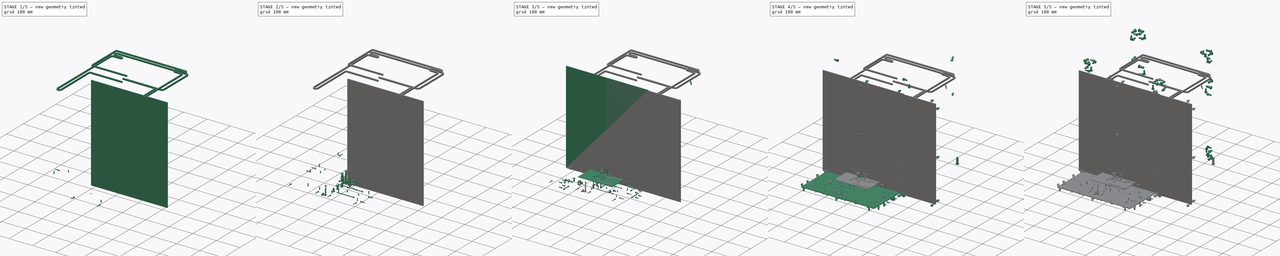
[diagram: build sequence overview — one tinted view per stage of 5, left to right]
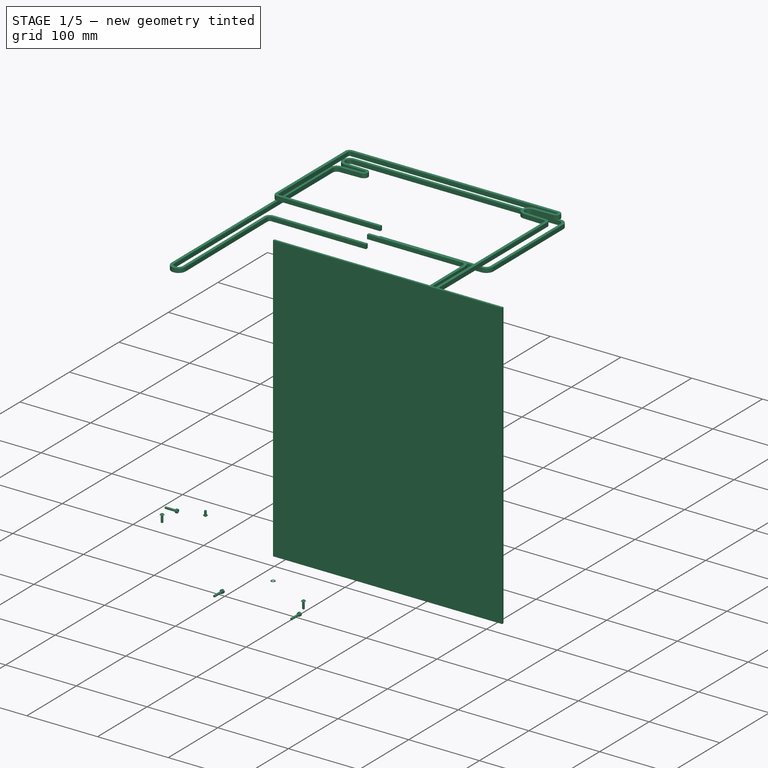
[diagram: stage 1 of 5 — iso view after this stage's code; geometry added in this stage tinted green]
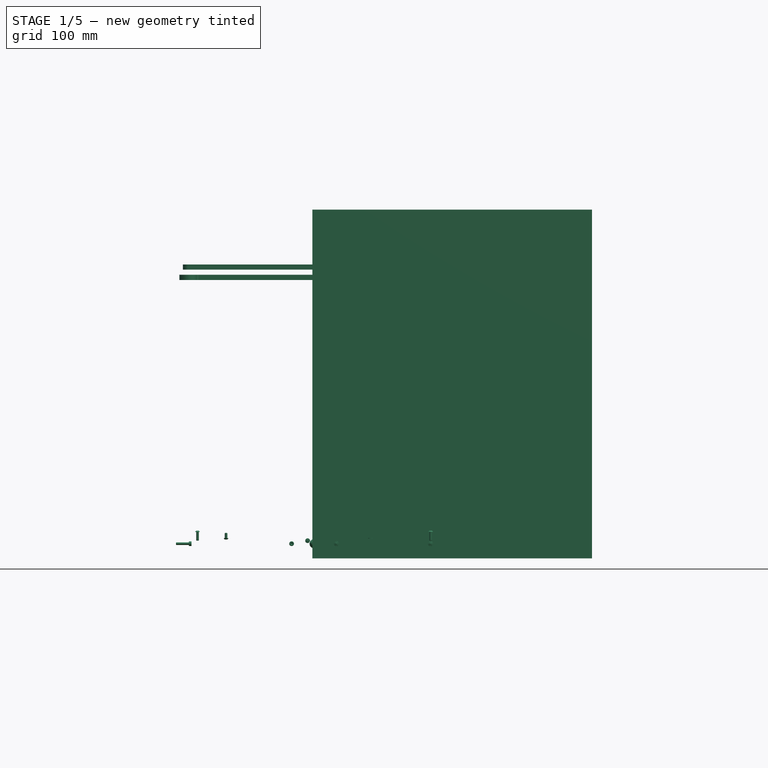
[diagram: stage 1 of 5 — front view after this stage's code; geometry added in this stage tinted green]
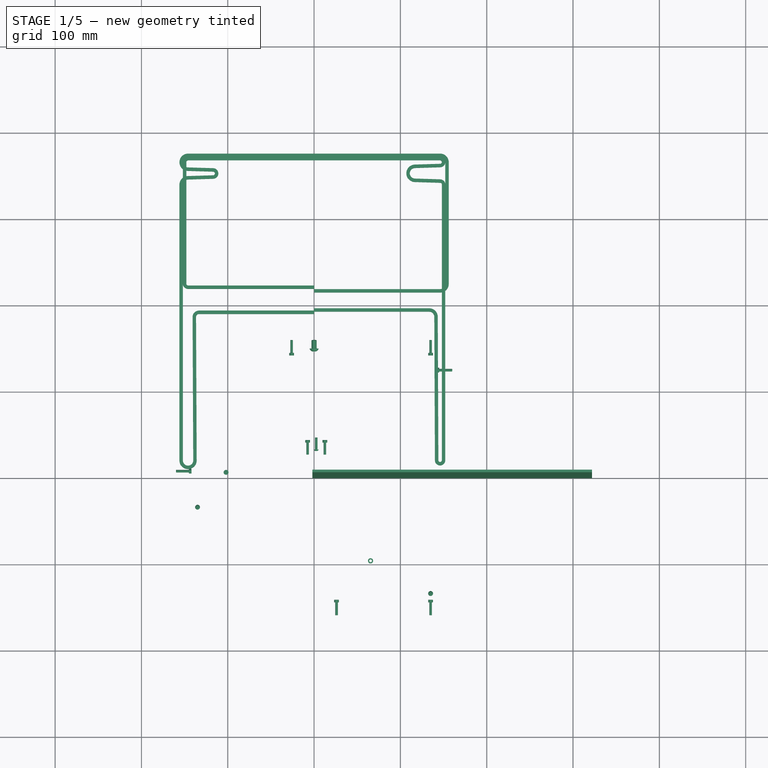
[diagram: stage 1 of 5 — top view after this stage's code; geometry added in this stage tinted green]
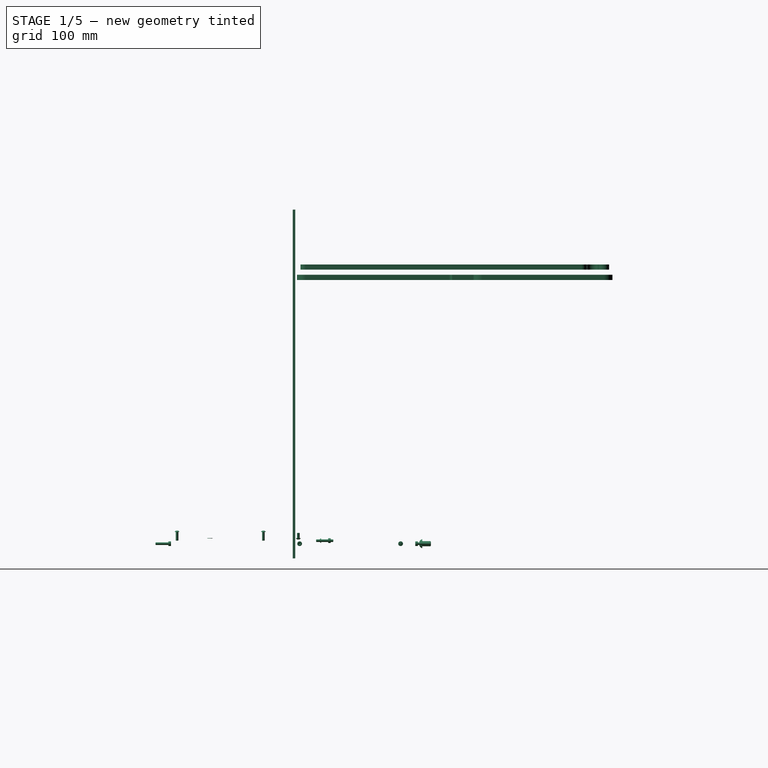
[diagram: stage 1 of 5 — right view after this stage's code; geometry added in this stage tinted green]
FCSTD DOCUMENT  (FreeCAD 2021.717R24301 +3842 (Git))
Label: v1-180-assembly_with_belts
License: Other
LicenseURL: GPL3
objects: Part::FeaturePython×625, Part::Feature×365, App::Part×52, Part::Box×7, Part::Cylinder×5, Sketcher::SketchObject×5, PartDesign::Plane×5, Part::Sphere×3, PartDesign::SubShapeBinder×3, PartDesign::AdditivePipe×2, PartDesign::Body×2, Spreadsheet::Sheet×1, Part::SubShapeBinder×1
note: 1027 computed .brp shape members not serialized (recipe doc carries the construction recipe); baked Part::Feature solids carry a one-line shape summary decoded from their .brp

FEATURE [App::Part] Part056  label="foot"
  ExportMode = 1
  Group = -> [Cut008004003004014002002004,Cut008004003004014002002005,Cut008004003004014002002006,Cut008004003004014002002007,Cut002002001,Cut008004003004014002002008,Cut008004003004014002002009,Cut008004003004014002002010,Screw379,Screw380,Screw377,Screw378]
  Origin = -> Origin058
  _ExportChildren = -> [Cut008004003004014002002004,Cut008004003004014002002005,Cut008004003004014002002006,Cut008004003004014002002007,Cut002002001,Cut008004003004014002002008,Cut008004003004014002002009,Cut008004003004014002002010,Screw379,Screw380,Screw377,Screw378]
  _GroupVersion = 1
FEATURE [App::Part] Part  label="Frame"
  ExportMode = 1
  Group = -> [Part048,Part054,Part056,Part001,Screw260,Cut008004003004014002002005003004003002003001003001047]
  Origin = -> Origin
  _ExportChildren = -> [Part048,Part054,Part056,Part001,Screw260,Cut008004003004014002002005003004003002003001003001047]
  _GroupVersion = 1
FEATURE [Part::Feature] Fusion001001001011002004002001  label="Fusion001001001011002004003"
  shape: bbox 10 x 20 x 8.75 mm, 25 faces (baked)
FEATURE [Part::Feature] Chamfer014001  label="Chamfer015"
  shape: bbox 38 x 20 x 5 mm, 27 faces (baked)
FEATURE [Part::Feature] Cut002008023012009006003002006002006002004004001  label="endstop-mount001"
  shape: bbox 20 x 39 x 17 mm, 57 faces (baked)
FEATURE [Part::FeaturePython] Screw381  label="M3x16-Screw008"  # Fasteners workbench fastener (typed FeaturePython)
  Placement = pos=(-6,22,14) rot=(0,0,1;0rad)
  baseObject = -> Cut002008023012009006003002006002006002004004001 [Edge108]
  diameter = 4
  invert = false
  length = 6
  lengthCustom = 16
  matchOuter = true
  offset = 0
  thread = false
  type = 33
FEATURE [Part::FeaturePython] Screw382  label="M3x16-Screw"  # Fasteners workbench fastener (typed FeaturePython)
  Placement = pos=(6,22,14) rot=(0,0,1;0rad)
  baseObject = -> Cut002008023012009006003002006002006002004004001 [Edge132]
  diameter = 4
  invert = false
  length = 6
  lengthCustom = 16
  matchOuter = true
  offset = 0
  thread = false
  type = 33
FEATURE [App::Part] Part113  label="PTFE-tube-guide"
  ExportMode = 1
  Group = -> [Fusion006002011004053036004001028003005014005,Screw397,Screw396]
  Origin = -> Origin115
  _ExportChildren = -> [Fusion006002011004053036004001028003005014005,Screw397,Screw396]
  _GroupVersion = 1
FEATURE [App::Part] Part111  label="Add-on"
  ExportMode = 1
  Group = -> [Part112,Part068,Part070,Part113]
  Origin = -> Origin113
  _ExportChildren = -> [Part112,Part068,Part070,Part113]
  _GroupVersion = 1
FEATURE [App::Part] Part114  label="Other"
  ExportMode = 1
  Group = -> [Cut002002002002006]
  Origin = -> Origin116
  _ExportChildren = -> [Cut002002002002006]
  _GroupVersion = 1
FEATURE [Part::FeaturePython] Screw398  label="M3x8-Screw106"  # Fasteners workbench fastener (typed FeaturePython)
  Placement = pos=(25,0,9) rot=(0,0,1;0rad)
  baseObject = -> Chamfer014001 [Edge49]
  diameter = 4
  invert = false
  length = 2
  lengthCustom = 8
  matchOuter = true
  offset = 5
  thread = false
  type = 33
FEATURE [App::Part] Part116  label="door-panel"
  ExportMode = 1
  Group = -> [Box020,Cut008004003004014002002005003004003002003021022001002001003,Cut008004003004014002002005003004003002003021022001002001002,Cut008004003004014002002005003004003002003021022001002001004,Chamfer016016008004017002013005002,Chamfer016016008004017002013005001,Chamfer016016008004017002013005003,Washer151,Washer147,Washer149,Washer150,Washer148,Washer146,Screw443,Screw440,Screw442,Screw439,Screw441,+1 more]
  Origin = -> Origin119
  Placement = pos=(0,-4,23) rot=(0,0,1;0rad)
  _ExportChildren = -> [Box020,Cut008004003004014002002005003004003002003021022001002001003,Cut008004003004014002002005003004003002003021022001002001002,Cut008004003004014002002005003004003002003021022001002001004,Chamfer016016008004017002013005002,Chamfer016016008004017002013005001,Chamfer016016008004017002013005003,Washer151,Washer147,Washer149,Washer150,Washer148,Washer146,Screw443,Screw440,Screw442,Screw439,Screw441,+1 more]
  _GroupVersion = 1
FEATURE [App::Part] Part108  label="front-panel"
  ExportMode = 1
  Group = -> [Part003,Part106,Part116]
  Origin = -> Origin110
  _ExportChildren = -> [Part003,Part106,Part116]
  _GroupVersion = 1
FEATURE [Part::Feature] Part__Mirroring004003  label="Chamfer013 (Mirror #2)001"
  shape: bbox 25 x 42 x 35 mm, 51 faces (baked)
FEATURE [Part::Feature] Cut008004003004014002002005003004003002003021022001002001020  label="idler-washer005"
  Placement = pos=(-2,0,0) rot=(0,0,1;0rad)
  shape: bbox 8 x 8 x 0.85 mm, 4 faces (baked)
FEATURE [Part::Feature] Chamfer020001  label="top-exp001"
  shape: bbox 45 x 42 x 32 mm, 61 faces (baked)
FEATURE [Part::FeaturePython] Washer169  label="M6-Washer215"  # Fasteners workbench fastener (typed FeaturePython)
  Placement = pos=(-15,37.5,40) rot=(0,0,1;0rad)
  baseObject = -> Chamfer020001 [Edge56]
  diameter = 2
  invert = false
  matchOuter = true
  offset = 0
  type = 4
FEATURE [Part::Feature] Part__Mirroring003003003061  label="smooth-idler-6mm024"
  Placement = pos=(2,0,0) rot=(0,0,1;0rad)
  shape: bbox 15 x 15 x 10 mm, 8 faces (baked)
FEATURE [Part::Feature] Part__Mirroring003003003062  label="top-exp (Mirror #1)001"
  shape: bbox 45 x 42 x 20 mm, 62 faces (baked)
FEATURE [Part::FeaturePython] Screw556  label="M3x25-Screw023"  # Fasteners workbench fastener (typed FeaturePython)
  Placement = pos=(-9,34,37) rot=(0,0,1;0rad)
  baseObject = -> Part__Mirroring003003003062 [Edge155]
  diameter = 4
  invert = true
  length = 10
  lengthCustom = 25
  matchOuter = true
  offset = 0
  thread = false
  type = 33
FEATURE [Part::Feature] Part__Mirroring003003003063  label="idler-washer006"
  Placement = pos=(2,0,0) rot=(0,0,1;0rad)
  shape: bbox 8 x 8 x 0.85 mm, 4 faces (baked)
FEATURE [Part::Feature] Cut008004003004014002002005003004003002003021022001002001021  label="smooth-idler-6mm025"
  Placement = pos=(-2,0,0) rot=(0,0,1;0rad)
  shape: bbox 15 x 15 x 10 mm, 8 faces (baked)
FEATURE [Part::Feature] Cut008004003004014002002005003004003002003021022001002001022  label="idler-washer007"
  Placement = pos=(-2,0,0) rot=(0,0,1;0rad)
  shape: bbox 8 x 8 x 0.85 mm, 4 faces (baked)
FEATURE [Part::Feature] Part__Mirroring004004  label="top-support002 (Mirror #1)001"
  shape: bbox 25 x 24 x 26 mm, 66 faces (baked)
FEATURE [Part::FeaturePython] Washer171  label="M5-Washer035"  # Fasteners workbench fastener (typed FeaturePython)
  Placement = pos=(-9,15,45) rot=(0,0,1;0rad)
  baseObject = -> Part__Mirroring004004 [Edge154]
  diameter = 6
  invert = true
  matchOuter = true
  offset = 0
  type = 5
FEATURE [Part::FeaturePython] Washer172  label="M5-Washer034"  # Fasteners workbench fastener (typed FeaturePython)
  Placement = pos=(-9,15,45) rot=(0,0,1;0rad)
  baseObject = -> Part__Mirroring004004 [Edge154]
  diameter = 6
  invert = true
  matchOuter = true
  offset = 0
  type = 5
FEATURE [Part::FeaturePython] Screw554  label="M5x40-Screw009"  # Fasteners workbench fastener (typed FeaturePython)
  Placement = pos=(-9,15,46.1) rot=(0,0,1;0rad)
  baseObject = -> Washer172 [Edge1]
  diameter = 3
  invert = false
  length = 9
  lengthCustom = 40
  matchOuter = true
  offset = 0
  thread = false
  type = 39
FEATURE [Part::FeaturePython] Washer005  label="M6-Washer220"  # Fasteners workbench fastener (typed FeaturePython)
  Placement = pos=(-4,15,56) rot=(0,-1,0;1.5708rad)
  baseObject = -> Part__Mirroring004004 [Edge25]
  diameter = 7
  invert = false
  matchOuter = true
  offset = 0
  type = 5
FEATURE [Part::FeaturePython] Screw559  label="M3x35-Screw029"  # Fasteners workbench fastener (typed FeaturePython)
  Placement = pos=(9,34,37) rot=(0,0,1;0rad)
  baseObject = -> Chamfer020001 [Edge152]
  diameter = 4
  invert = false
  length = 10
  lengthCustom = 35
  matchOuter = true
  offset = 0
  thread = false
  type = 33
FEATURE [Part::FeaturePython] Screw561  label="M6x16-Screw017"  # Fasteners workbench fastener (typed FeaturePython)
  Placement = pos=(-15,37.5,41.8) rot=(0,0,1;0rad)
  baseObject = -> Washer169 [Edge1]
  diameter = 4
  invert = false
  length = 3
  lengthCustom = 16
  matchOuter = true
  offset = 0
  thread = false
  type = 39
FEATURE [Part::Feature] Chamfer019001  label="Chamfer020"
  shape: bbox 25 x 42 x 23 mm, 51 faces (baked)
FEATURE [Part::FeaturePython] Screw562  label="M6x12-Screw165"  # Fasteners workbench fastener (typed FeaturePython)
  Placement = pos=(-5.8,15,56) rot=(0,-1,0;1.5708rad)
  baseObject = -> Washer005 [Edge1]
  diameter = 4
  invert = false
  length = 1
  lengthCustom = 12
  matchOuter = true
  offset = 0
  thread = false
  type = 39
FEATURE [Part::FeaturePython] Washer174  label="M6-Washer218"  # Fasteners workbench fastener (typed FeaturePython)
  Placement = pos=(15,37.5,40) rot=(0,0,1;0rad)
  baseObject = -> Part__Mirroring003003003062 [Edge44]
  diameter = 2
  invert = true
  matchOuter = true
  offset = 0
  type = 4
FEATURE [Part::FeaturePython] Screw558  label="M6x16-Screw018"  # Fasteners workbench fastener (typed FeaturePython)
  Placement = pos=(15,37.5,41.8) rot=(0,0,1;0rad)
  baseObject = -> Washer174 [Edge1]
  diameter = 4
  invert = false
  length = 3
  lengthCustom = 16
  matchOuter = true
  offset = 0
  thread = false
  type = 39
FEATURE [Part::FeaturePython] Washer175  label="M6-Washer219"  # Fasteners workbench fastener (typed FeaturePython)
  Placement = pos=(-10,15,-7.5) rot=(0,-1,0;1.5708rad)
  baseObject = -> Part__Mirroring004003 [Edge84]
  diameter = 2
  invert = true
  matchOuter = true
  offset = 0
  type = 4
FEATURE [Part::FeaturePython] Screw555  label="M6x16-Screw019"  # Fasteners workbench fastener (typed FeaturePython)
  Placement = pos=(-11.8,15,-7.5) rot=(0,-1,0;1.5708rad)
  baseObject = -> Washer175 [Edge1]
  diameter = 4
  invert = false
  length = 3
  lengthCustom = 16
  matchOuter = true
  offset = 0
  thread = false
  type = 39
FEATURE [Part::Feature] Cut002002002007004004001001  label="top-support002"
  shape: bbox 25 x 24 x 26 mm, 66 faces (baked)
FEATURE [Part::FeaturePython] Washer170  label="M6-Washer217"  # Fasteners workbench fastener (typed FeaturePython)
  Placement = pos=(4,15,56) rot=(0,1,0;1.5708rad)
  baseObject = -> Cut002002002007004004001001 [Edge25]
  diameter = 7
  invert = true
  matchOuter = true
  offset = 0
  type = 5
FEATURE [Part::FeaturePython] Washer173  label="M5-Washer033"  # Fasteners workbench fastener (typed FeaturePython)
  Placement = pos=(9,15,45) rot=(0,0,1;0rad)
  baseObject = -> Cut002002002007004004001001 [Edge154]
  diameter = 6
  invert = false
  matchOuter = true
  offset = 0
  type = 5
FEATURE [Part::FeaturePython] Screw557  label="M5x45-Screw"  # Fasteners workbench fastener (typed FeaturePython)
  Placement = pos=(9,15,46.1) rot=(0,0,1;0rad)
  baseObject = -> Washer173 [Edge1]
  diameter = 3
  invert = false
  length = 10
  lengthCustom = 45
  matchOuter = true
  offset = 0
  thread = false
  type = 39
FEATURE [Part::FeaturePython] Screw563  label="M6x12-Screw164"  # Fasteners workbench fastener (typed FeaturePython)
  Placement = pos=(5.8,15,56) rot=(0,1,0;1.5708rad)
  baseObject = -> Washer170 [Edge1]
  diameter = 4
  invert = false
  length = 1
  lengthCustom = 12
  matchOuter = true
  offset = 0
  thread = false
  type = 39
FEATURE [Part::Feature] Part__Mirroring003003003064  label="idler-washer008"
  Placement = pos=(2,0,0) rot=(0,0,1;0rad)
  shape: bbox 8 x 8 x 0.85 mm, 4 faces (baked)
FEATURE [App::Part] Part125  label="right-idler"
  ExportMode = 1
  Group = -> [Part__Mirroring003003003061,Part__Mirroring003003003064,Part__Mirroring003003003063,Part__Mirroring004003,Part__Mirroring003003003062,Washer174,Screw558,Screw556,Screw555,Washer175,Part__Mirroring004004,Screw554,Washer171,Washer172,Screw562,Washer005]
  Origin = -> Origin127
  Placement = pos=(155,0,310) rot=(0,0,1;0rad)
  _ExportChildren = -> [Part__Mirroring003003003061,Part__Mirroring003003003064,Part__Mirroring003003003063,Part__Mirroring004003,Part__Mirroring003003003062,Washer174,Screw558,Screw556,Screw555,Washer175,Part__Mirroring004004,Screw554,Washer171,Washer172,Screw562,Washer005]
  _GroupVersion = 1
FEATURE [Part::FeaturePython] Washer176  label="M6-Washer216"  # Fasteners workbench fastener (typed FeaturePython)
  Placement = pos=(10,15,-7.5) rot=(0,1,0;1.5708rad)
  baseObject = -> Chamfer019001 [Edge86]
  diameter = 2
  invert = false
  matchOuter = true
  offset = 0
  type = 4
FEATURE [Part::FeaturePython] Screw560  label="M6x16-Screw016"  # Fasteners workbench fastener (typed FeaturePython)
  Placement = pos=(11.8,15,-7.5) rot=(0,1,0;1.5708rad)
  baseObject = -> Washer176 [Edge1]
  diameter = 4
  invert = false
  length = 13
  lengthCustom = 16
  matchOuter = true
  offset = 0
  thread = false
  type = 39
FEATURE [App::Part] Part133  label="bed-assembly"
  ExportMode = 1
  Group = -> [Box021,AdditivePipe007,AdditivePipe006,AdditivePipe008,Part130,Part129,Part128,Part127,Cut008004003004014002002005003004003002003021022001002001032,Solid004,Screw569,Screw596,Solid005,Screw568,Screw578,Solid007,Screw584,Screw576,Screw592,Solid006,Screw583,Screw593,Screw575,Screw582,Screw564,Screw573,Screw600,Washer189,Washer182,Washer185,Screw580,Washer177,Washer179,Washer184,Screw574,Screw566,+42 more]
  Origin = -> Origin132
  Placement = pos=(0,130,145) rot=(0,0,1;0rad)
  _ExportChildren = -> [Box021,AdditivePipe007,AdditivePipe006,AdditivePipe008,Part130,Part129,Part128,Part127,Cut008004003004014002002005003004003002003021022001002001032,Solid004,Screw569,Screw596,Solid005,Screw568,Screw578,Solid007,Screw584,Screw576,Screw592,Solid006,Screw583,Screw593,Screw575,Screw582,Screw564,Screw573,Screw600,Washer189,Washer182,Washer185,Screw580,Washer177,Washer179,Washer184,Screw574,Screw566,+42 more]
  _GroupVersion = 1
FEATURE [Part::Feature] Cut008004003004014002002005003004003002003021022001002001033  label="20t-pulley012"
  Placement = pos=(38,-22.5,9.3) rot=(0,0,1;0rad)
  shape: bbox 15 x 15 x 16 mm, 8 faces (baked)
FEATURE [Part::FeaturePython] Washer194  label="M6-Washer228"  # Fasteners workbench fastener (typed FeaturePython)
  Placement = pos=(-15,-42,-5) rot=(1,0,0;3.14159rad)
  diameter = 2
  invert = true
  matchOuter = true
  offset = 0
  type = 4
FEATURE [Part::Feature] Cut008004003004014002002005003004003002003021022001002001034  label="smooth-idler-6mm026"
  Placement = pos=(9,-35.5,9) rot=(0,0,-1;1.5708rad)
  shape: bbox 15 x 15 x 10 mm, 8 faces (baked)
FEATURE [Part::FeaturePython] Washer195  label="M6-Washer226"  # Fasteners workbench fastener (typed FeaturePython)
  Placement = pos=(-15,-62,35) rot=(0,0,1;0rad)
  diameter = 2
  invert = false
  matchOuter = true
  offset = 0
  type = 4
FEATURE [Part::FeaturePython] Screw  label="M3x40-Screw031"  # Fasteners workbench fastener (typed FeaturePython)
  Placement = pos=(53.5,-7,-2) rot=(1,0,0;3.14159rad)
  diameter = 4
  invert = true
  length = 10
  lengthCustom = 40
  matchOuter = true
  offset = 0
  thread = false
  type = 33
FEATURE [Part::FeaturePython] Washer  label="M6-Washer227"  # Fasteners workbench fastener (typed FeaturePython)
  Placement = pos=(-15,-42,35) rot=(0,0,1;0rad)
  diameter = 2
  invert = false
  matchOuter = true
  offset = 0
  type = 4
FEATURE [Part::FeaturePython] Screw605  label="M5x40-Screw012"  # Fasteners workbench fastener (typed FeaturePython)
  Placement = pos=(9,-9.5,35) rot=(0,0,1;0rad)
  diameter = 3
  invert = false
  length = 12
  lengthCustom = 40
  matchOuter = true
  offset = 0
  thread = false
  type = 39
FEATURE [Part::FeaturePython] Screw005  label="M6x15-Screw047"  # Fasteners workbench fastener (typed FeaturePython)
  Placement = pos=(-15,-42,36.8) rot=(0,0,1;0rad)
  baseObject = -> Washer [Edge1]
  diameter = 4
  invert = false
  length = 13
  lengthCustom = 15
  matchOuter = true
  offset = 0
  thread = false
  type = 39
FEATURE [Part::Feature] Cut008004003004014002002005003004003002003021022001002001035  label="smooth-idler-6mm027"
  Placement = pos=(9,-9.5,9) rot=(0,0,-1;1.5708rad)
  shape: bbox 15 x 15 x 10 mm, 8 faces (baked)
FEATURE [Part::Feature] Chamfer041001
  Placement = pos=(0,-30,0) rot=(0,0,1;0rad)
  shape: bbox 86.5 x 74 x 20 mm, 149 faces (baked)
FEATURE [Part::Feature] Cut008004003004014002002005003004003002003021022001002001036  label="smooth-idler-6mm"
  Placement = pos=(9,-9.5,21) rot=(0,0,-1;1.5708rad)
  shape: bbox 15 x 15 x 10 mm, 8 faces (baked)
FEATURE [Part::Feature] Cut008004003004014002002005003004003002003021022001002001037  label="MR115ZZ023"
  Placement = pos=(38,-22.5,5) rot=(0,0,1;0rad)
  shape: bbox 11 x 11 x 4 mm, 4 faces (baked)
FEATURE [Part::FeaturePython] Nut025  label="M5-Nut023"  # Fasteners workbench fastener (typed FeaturePython)
  Placement = pos=(9,-9.5,-1) rot=(1,0,0;3.14159rad)
  diameter = 7
  invert = true
  matchOuter = true
  offset = 0
  thread = false
  type = 7
FEATURE [Part::FeaturePython] Screw001  label="M3x40-Screw029"  # Fasteners workbench fastener (typed FeaturePython)
  Placement = pos=(22.5,-7,-2) rot=(1,0,0;3.14159rad)
  diameter = 4
  invert = true
  length = 10
  lengthCustom = 40
  matchOuter = true
  offset = 0
  thread = false
  type = 33
FEATURE [Part::FeaturePython] Screw002  label="M3x40-Screw030"  # Fasteners workbench fastener (typed FeaturePython)
  Placement = pos=(22.5,-38,-2) rot=(1,0,0;3.14159rad)
  diameter = 4
  invert = true
  length = 10
  lengthCustom = 40
  matchOuter = true
  offset = 0
  thread = false
  type = 33
FEATURE [Part::Feature] Fusion006002011004053036004001028003005014026  label="motor-40mm010"
  Placement = pos=(38,-22.5,75) rot=(0.707107,0.707107,0;3.14159rad)
  shape: bbox 47 x 42 x 67 mm, 100 faces (baked)
FEATURE [Part::FeaturePython] Nut026  label="M5-Nut024"  # Fasteners workbench fastener (typed FeaturePython)
  Placement = pos=(9,-35.5,-1) rot=(1,0,0;3.14159rad)
  diameter = 7
  invert = true
  matchOuter = true
  offset = 0
  thread = false
  type = 7
FEATURE [Part::Feature] Chamfer042001
  Placement = pos=(0,-30,0) rot=(0,0,1;0rad)
  shape: bbox 107 x 74 x 22 mm, 215 faces (baked)
FEATURE [Part::FeaturePython] Screw006  label="M6x15-Screw046"  # Fasteners workbench fastener (typed FeaturePython)
  Placement = pos=(-15,-62,36.8) rot=(0,0,1;0rad)
  baseObject = -> Washer195 [Edge1]
  diameter = 4
  invert = false
  length = 13
  lengthCustom = 15
  matchOuter = true
  offset = 0
  thread = false
  type = 39
FEATURE [Part::FeaturePython] Washer003  label="M6-Washer229"  # Fasteners workbench fastener (typed FeaturePython)
  Placement = pos=(-15,-62,-5) rot=(1,0,0;3.14159rad)
  diameter = 2
  invert = true
  matchOuter = true
  offset = 0
  type = 4
FEATURE [Part::FeaturePython] Screw007  label="M6x15-Screw049"  # Fasteners workbench fastener (typed FeaturePython)
  Placement = pos=(-15,-62,-6.8) rot=(-1,0,0;3.14159rad)
  baseObject = -> Washer003 [Edge1]
  diameter = 4
  invert = false
  length = 13
  lengthCustom = 15
  matchOuter = true
  offset = 0
  thread = false
  type = 39
FEATURE [Part::FeaturePython] Screw606  label="M6x15-Screw048"  # Fasteners workbench fastener (typed FeaturePython)
  Placement = pos=(-15,-42,-6.8) rot=(-1,0,0;3.14159rad)
  baseObject = -> Washer194 [Edge1]
  diameter = 4
  invert = false
  length = 13
  lengthCustom = 15
  matchOuter = true
  offset = 0
  thread = false
  type = 39
FEATURE [Part::FeaturePython] Screw003  label="M3x40-Screw028"  # Fasteners workbench fastener (typed FeaturePython)
  Placement = pos=(53.5,-38,-2) rot=(1,0,0;3.14159rad)
  diameter = 4
  invert = true
  length = 10
  lengthCustom = 40
  matchOuter = true
  offset = 0
  thread = false
  type = 33
FEATURE [Part::FeaturePython] Washer196  label="M6-Washer230"  # Fasteners workbench fastener (typed FeaturePython)
  Placement = pos=(70,-15,2.5) rot=(0,0,1;0rad)
  diameter = 2
  invert = false
  matchOuter = true
  offset = 0
  type = 4
FEATURE [Part::Feature] Cut008004003004014002002005003004003002003021022001002001038  label="dummy-idler004"
  Placement = pos=(9,-35.5,31) rot=(0,1,0;3.14159rad)
  shape: bbox 9 x 9 x 11.85 mm, 9 faces (baked)
FEATURE [Part::Feature] Cut002008019  label="spacer"
  Placement = pos=(9,-9.5,20) rot=(0,0,1;0rad)
  shape: bbox 8 x 8 x 1.7 mm, 5 faces (baked)
FEATURE [Part::FeaturePython] Screw004  label="M6x15-Screw050"  # Fasteners workbench fastener (typed FeaturePython)
  Placement = pos=(70,-15,4.3) rot=(0,0,1;0rad)
  baseObject = -> Washer196 [Edge1]
  diameter = 4
  invert = false
  length = 13
  lengthCustom = 15
  matchOuter = true
  offset = 0
  thread = false
  type = 39
FEATURE [Part::FeaturePython] Screw607  label="M5x40-Screw"  # Fasteners workbench fastener (typed FeaturePython)
  Placement = pos=(9,-35.5,35) rot=(0,0,1;0rad)
  diameter = 3
  invert = false
  length = 12
  lengthCustom = 40
  matchOuter = true
  offset = 0
  thread = false
  type = 39
FEATURE [App::Part] Part134  label="left-motor-mount"
  ExportMode = 1
  Group = -> [Cut008004003004014002002005003004003002003021022001002001034,Cut008004003004014002002005003004003002003021022001002001035,Cut008004003004014002002005003004003002003021022001002001036,Cut008004003004014002002005003004003002003021022001002001038,Cut008004003004014002002005003004003002003021022001002001033,Fusion006002011004053036004001028003005014026,+22 more]
  Origin = -> Origin137
  Placement = pos=(-155,370,310) rot=(0,0,1;0rad)
  _ExportChildren = -> [Cut008004003004014002002005003004003002003021022001002001034,Cut008004003004014002002005003004003002003021022001002001035,Cut008004003004014002002005003004003002003021022001002001036,Cut008004003004014002002005003004003002003021022001002001038,Cut008004003004014002002005003004003002003021022001002001033,Fusion006002011004053036004001028003005014026,+22 more]
  _GroupVersion = 1
FEATURE [Part::FeaturePython] Screw608  label="M3x40-Screw027"  # Fasteners workbench fastener (typed FeaturePython)
  Placement = pos=(-53.5,-38,-2) rot=(1,0,0;3.14159rad)
  diameter = 4
  invert = false
  length = 10
  lengthCustom = 40
  matchOuter = true
  offset = 0
  thread = false
  type = 33
FEATURE [Part::Feature] Part__Mirroring003003003066  label="smooth-idler-6mm028"
  Placement = pos=(2,0,0) rot=(0,0,1;0rad)
  shape: bbox 15 x 15 x 10 mm, 8 faces (baked)
FEATURE [Part::Feature] Part__Mirroring003003003067  label="pulley-spacer002"
  shape: bbox 6.9 x 6.9 x 5.5 mm, 4 faces (baked)
FEATURE [Part::Feature] Part__Mirroring003003003068  label="20t-pulley013"
  shape: bbox 15 x 15 x 16 mm, 8 faces (baked)
FEATURE [Part::Feature] Part__Mirroring003003003069  label="dummy-idler005"
  Placement = pos=(2,0,0) rot=(0,0,1;0rad)
  shape: bbox 9 x 9 x 11.85 mm, 9 faces (baked)
FEATURE [Part::FeaturePython] Screw613  label="M5x40-Screw010"  # Fasteners workbench fastener (typed FeaturePython)
  Placement = pos=(-9,-35.5,35) rot=(0,0,1;0rad)
  diameter = 3
  invert = true
  length = 12
  lengthCustom = 40
  matchOuter = true
  offset = 0
  thread = false
  type = 39
FEATURE [Part::FeaturePython] Screw614  label="M5x40-Screw011"  # Fasteners workbench fastener (typed FeaturePython)
  Placement = pos=(-9,-9.5,35) rot=(0,0,1;0rad)
  diameter = 3
  invert = true
  length = 12
  lengthCustom = 40
  matchOuter = true
  offset = 0
  thread = false
  type = 39
FEATURE [Part::FeaturePython] Screw615  label="M3x40-Screw026"  # Fasteners workbench fastener (typed FeaturePython)
  Placement = pos=(-53.5,-7,-2) rot=(1,0,0;3.14159rad)
  diameter = 4
  invert = false
  length = 10
  lengthCustom = 40
  matchOuter = true
  offset = 0
  thread = false
  type = 33
FEATURE [Part::FeaturePython] Screw616  label="M3x40-Screw025"  # Fasteners workbench fastener (typed FeaturePython)
  Placement = pos=(-22.5,-38,-2) rot=(1,0,0;3.14159rad)
  diameter = 4
  invert = false
  length = 10
  lengthCustom = 40
  matchOuter = true
  offset = 0
  thread = false
  type = 33
FEATURE [Part::FeaturePython] Nut027  label="M5-Nut022"  # Fasteners workbench fastener (typed FeaturePython)
  Placement = pos=(-9,-35.5,-1) rot=(1,0,0;3.14159rad)
  diameter = 7
  invert = false
  matchOuter = true
  offset = 0
  thread = false
  type = 7
FEATURE [Part::Feature] Part__Mirroring002001  label="smooth-idler-6mm029"
  Placement = pos=(2,0,0) rot=(0,0,1;0rad)
  shape: bbox 15 x 15 x 10 mm, 8 faces (baked)
FEATURE [Part::Feature] Part__Mirroring009003004001  label="Chamfer042001 (Mirror #2)001"
  Placement = pos=(0,-30,0) rot=(0,0,1;0rad)
  shape: bbox 107 x 74 x 22 mm, 215 faces (baked)
FEATURE [Part::FeaturePython] Washer197  label="M6-Washer221"  # Fasteners workbench fastener (typed FeaturePython)
  Placement = pos=(15,-62,35) rot=(0,0,1;0rad)
  diameter = 2
  invert = true
  matchOuter = true
  offset = 0
  type = 4
FEATURE [Part::FeaturePython] Screw617  label="M6x15-Screw041"  # Fasteners workbench fastener (typed FeaturePython)
  Placement = pos=(15,-62,36.8) rot=(0,0,1;0rad)
  baseObject = -> Washer197 [Edge1]
  diameter = 4
  invert = false
  length = 13
  lengthCustom = 15
  matchOuter = true
  offset = 0
  thread = false
  type = 39
FEATURE [Part::Feature] Part__Mirroring009003004002  label="smooth-idler-6mm030"
  Placement = pos=(2,0,0) rot=(0,0,1;0rad)
  shape: bbox 15 x 15 x 10 mm, 8 faces (baked)
FEATURE [Part::FeaturePython] Screw618  label="M3x40-Screw024"  # Fasteners workbench fastener (typed FeaturePython)
  Placement = pos=(-22.5,-7,-2) rot=(1,0,0;3.14159rad)
  diameter = 4
  invert = false
  length = 10
  lengthCustom = 40
  matchOuter = true
  offset = 0
  thread = false
  type = 33
FEATURE [Part::Feature] Part__Mirroring009003004003  label="MR115ZZ024"
  shape: bbox 11 x 11 x 4 mm, 4 faces (baked)
FEATURE [Part::FeaturePython] Washer198  label="M6-Washer222"  # Fasteners workbench fastener (typed FeaturePython)
  Placement = pos=(15,-42,35) rot=(0,0,1;0rad)
  diameter = 2
  invert = true
  matchOuter = true
  offset = 0
  type = 4
FEATURE [Part::FeaturePython] Screw611  label="M6x15-Screw042"  # Fasteners workbench fastener (typed FeaturePython)
  Placement = pos=(15,-42,36.8) rot=(0,0,1;0rad)
  baseObject = -> Washer198 [Edge1]
  diameter = 4
  invert = false
  length = 13
  lengthCustom = 15
  matchOuter = true
  offset = 0
  thread = false
  type = 39
FEATURE [Part::FeaturePython] Washer199  label="M6-Washer223"  # Fasteners workbench fastener (typed FeaturePython)
  Placement = pos=(-70,-15,2.5) rot=(0,0,1;0rad)
  diameter = 2
  invert = true
  matchOuter = true
  offset = 0
  type = 4
FEATURE [Part::FeaturePython] Screw609  label="M6x15-Screw043"  # Fasteners workbench fastener (typed FeaturePython)
  Placement = pos=(-70,-15,4.3) rot=(0,0,1;0rad)
  baseObject = -> Washer199 [Edge1]
  diameter = 4
  invert = false
  length = 13
  lengthCustom = 15
  matchOuter = true
  offset = 0
  thread = false
  type = 39
FEATURE [Part::Feature] Cut008004003004014002002005003004003002003021022001002001039  label="spacer004"
  Placement = pos=(-9,-9.5,20) rot=(0,0,1;0rad)
  shape: bbox 8 x 8 x 1.7 mm, 5 faces (baked)
FEATURE [Part::Feature] Part__Mirroring009003004004  label="motor-40mm011"
  Placement = pos=(-15.5,-60.5,0) rot=(0,0,-1;1.5708rad)
  shape: bbox 47 x 42 x 67 mm, 100 faces (baked)
FEATURE [Part::FeaturePython] Washer200  label="M6-Washer225"  # Fasteners workbench fastener (typed FeaturePython)
  Placement = pos=(15,-62,-5) rot=(1,0,0;3.14159rad)
  diameter = 2
  invert = false
  matchOuter = true
  offset = 0
  type = 4
FEATURE [Part::FeaturePython] Screw612  label="M6x15-Screw045"  # Fasteners workbench fastener (typed FeaturePython)
  Placement = pos=(15,-62,-6.8) rot=(-1,0,0;3.14159rad)
  baseObject = -> Washer200 [Edge1]
  diameter = 4
  invert = false
  length = 13
  lengthCustom = 15
  matchOuter = true
  offset = 0
  thread = false
  type = 39
FEATURE [Part::Feature] Part__Mirroring009003005  label="Chamfer041001 (Mirror #1)001"
  Placement = pos=(0,-30,0) rot=(0,0,1;0rad)
  shape: bbox 86.5 x 74 x 20 mm, 149 faces (baked)
FEATURE [Part::FeaturePython] Washer201  label="M6-Washer224"  # Fasteners workbench fastener (typed FeaturePython)
  Placement = pos=(15,-42,-5) rot=(1,0,0;3.14159rad)
  diameter = 2
  invert = false
  matchOuter = true
  offset = 0
  type = 4
FEATURE [Part::FeaturePython] Screw610  label="M6x15-Screw044"  # Fasteners workbench fastener (typed FeaturePython)
  Placement = pos=(15,-42,-6.8) rot=(-1,0,0;3.14159rad)
  baseObject = -> Washer201 [Edge1]
  diameter = 4
  invert = false
  length = 13
  lengthCustom = 15
  matchOuter = true
  offset = 0
  thread = false
  type = 39
FEATURE [Part::FeaturePython] Nut028  label="M5-Nut"  # Fasteners workbench fastener (typed FeaturePython)
  Placement = pos=(-9,-9.5,-1) rot=(1,0,0;3.14159rad)
  diameter = 7
  invert = false
  matchOuter = true
  offset = 0
  thread = false
  type = 7
FEATURE [Part::Feature] Part__Feature001  label="WAGO 222-3c-002"
  Placement = pos=(71.5,89.5,22.5) rot=(0.57735,-0.57735,0.57735;4.18879rad)
  shape: bbox 22.7 x 21.3 x 9.8 mm, 151 faces (baked)
FEATURE [Part::FeaturePython] Screw771  label="M3x15-Screw036"  # Fasteners workbench fastener (typed FeaturePython)
  Placement = pos=(-145,8,15) rot=(0,1,0;1.5708rad)
  diameter = 4
  invert = true
  length = 10
  lengthCustom = 15
  matchOuter = true
  offset = 0
  thread = false
  type = 33
FEATURE [Part::FeaturePython] Screw030  label="M3x15-Screw043"  # Fasteners workbench fastener (typed FeaturePython)
  Placement = pos=(145,125,15) rot=(0,-1,0;1.5708rad)
  diameter = 4
  invert = true
  length = 10
  lengthCustom = 15
  matchOuter = true
  offset = 0
  thread = false
  type = 33
FEATURE [Part::FeaturePython] Screw772  label="M3x15-Screw038"  # Fasteners workbench fastener (typed FeaturePython)
  Placement = pos=(-26,145,15) rot=(1,0,0;1.5708rad)
  diameter = 4
  invert = true
  length = 10
  lengthCustom = 15
  matchOuter = true
  offset = 0
  thread = false
  type = 33
FEATURE [Part::FeaturePython] Screw773  label="M3x15-Screw042"  # Fasteners workbench fastener (typed FeaturePython)
  Placement = pos=(135,-144,15) rot=(-1,0,0;1.5708rad)
  diameter = 4
  invert = true
  length = 10
  lengthCustom = 15
  matchOuter = true
  offset = 0
  thread = false
  type = 33
FEATURE [Part::FeaturePython] Screw045  label="M6x10-Screw113"  # Fasteners workbench fastener (typed FeaturePython)
  Placement = pos=(0,150,15) rot=(1,0,0;1.5708rad)
  baseObject = -> Chamfer003001001 [Edge49]
  diameter = 4
  invert = true
  length = 0
  lengthCustom = 10
  matchOuter = true
  offset = 0
  thread = false
  type = 39
FEATURE [Part::FeaturePython] Screw774  label="M3x15-Screw041"  # Fasteners workbench fastener (typed FeaturePython)
  Placement = pos=(26,-144,15) rot=(-1,0,0;1.5708rad)
  diameter = 4
  invert = true
  length = 10
  lengthCustom = 15
  matchOuter = true
  offset = 0
  thread = false
  type = 33
FEATURE [Part::Feature] Fusion006002011004053036004001028003005003  label="PSU-LRS-150-24"
  Placement = pos=(1.29e-14,27,11) rot=(-1,0,0;1.5708rad)
  shape: bbox 97.2 x 159 x 30.02 mm, 3511 faces (baked)
FEATURE [Part::FeaturePython] Screw775  label="M3x10-Screw103"  # Fasteners workbench fastener (typed FeaturePython)
  Placement = pos=(135,-134,28.5) rot=(0,0,1;0rad)
  diameter = 1
  invert = false
  length = 9
  lengthCustom = 10
  matchOuter = true
  offset = 0
  thread = false
  type = 39
FEATURE [Part::FeaturePython] Washer236  label="M3-Washer140"  # Fasteners workbench fastener (typed FeaturePython)
  Placement = pos=(65.4176,-96,21.5) rot=(1,0,0;3.14159rad)
  baseObject = -> Fusion006002011004053036004001028003005005 [Edge152]
  diameter = 4
  invert = false
  matchOuter = true
  offset = 0
  type = 5
FEATURE [Part::FeaturePython] Screw776  label="M3x10-Screw112"  # Fasteners workbench fastener (typed FeaturePython)
  Placement = pos=(-135,-34,28.5) rot=(0,0,1;0rad)
  diameter = 1
  invert = false
  length = 9
  lengthCustom = 10
  matchOuter = true
  offset = 0
  thread = false
  type = 39
FEATURE [Part::FeaturePython] Screw777  label="M3x15-Screw034"  # Fasteners workbench fastener (typed FeaturePython)
  Placement = pos=(135,145,15) rot=(1,0,0;1.5708rad)
  diameter = 4
  invert = true
  length = 10
  lengthCustom = 15
  matchOuter = true
  offset = 0
  thread = false
  type = 33
FEATURE [Part::FeaturePython] Screw036  label="M3x6-Screw082"  # Fasteners workbench fastener (typed FeaturePython)
  Placement = pos=(-102,6.5,21.5) rot=(-1,0,0;3.14159rad)
  baseObject = -> Chamfer005007002001 [Edge178]
  diameter = 1
  invert = false
  length = 0
  lengthCustom = 6
  matchOuter = true
  offset = 0
  thread = false
  type = 39
FEATURE [Part::Feature] Chamfer005007002024001
  shape: bbox 134 x 26 x 25 mm, 28 faces (baked)
FEATURE [Part::Feature] Chamfer005007002025001
  shape: bbox 134 x 26 x 25 mm, 30 faces (baked)
FEATURE [Part::Feature] Chamfer005007002023001
  shape: bbox 26 x 85 x 25 mm, 28 faces (baked)
FEATURE [Part::Feature] Chamfer005007002021001
  shape: bbox 134 x 26 x 25 mm, 28 faces (baked)
FEATURE [Part::Feature] Chamfer005007002026001
  shape: bbox 26 x 64 x 25 mm, 32 faces (baked)
FEATURE [Part::Feature] Chamfer005007002027002
  Placement = pos=(0,0,0.5) rot=(0,0,1;0rad)
  shape: bbox 280 x 279 x 8.5 mm, 1406 faces (baked)
FEATURE [Part::Feature] Chamfer005007002020001001
  shape: bbox 124 x 26 x 25 mm, 28 faces (baked)
FEATURE [App::Part] Part146  label="bottom-panel001"
  ExportMode = 1
  Group = -> [Chamfer003004001,Chamfer003001001,Chamfer003004002,Chamfer003004003,Common001001,Fusion006002011004053036004001028003005005,Fusion006002011004053036004001028003005006,Fusion006002011004053036004001028003005003,Fusion006002011004053036004001028003005004,Chamfer005007002001,Cut009001,Part__Feature,Part__Feature001,Part__Feature002,Part__Feature003,Chamfer003001,Cut003001,Cut002015015002,+54 more]
  Origin = -> Origin151
  Placement = pos=(0,185,0) rot=(0,0,1;0rad)
  _ExportChildren = -> [Chamfer003004001,Chamfer003001001,Chamfer003004002,Chamfer003004003,Common001001,Fusion006002011004053036004001028003005005,Fusion006002011004053036004001028003005006,Fusion006002011004053036004001028003005003,Fusion006002011004053036004001028003005004,Chamfer005007002001,Cut009001,Part__Feature,Part__Feature001,Part__Feature002,Part__Feature003,Chamfer003001,Cut003001,Cut002015015002,+54 more]
  _GroupVersion = 1
FEATURE [Part::FeaturePython] Screw780  label="M5x50-Screw028"  # Fasteners workbench fastener (typed FeaturePython)
  Placement = pos=(9,-20,50) rot=(0,0,1;0rad)
  diameter = 3
  invert = false
  length = 12
  lengthCustom = 50
  matchOuter = true
  offset = 0
  thread = false
  type = 39
FEATURE [Part::FeaturePython] Screw782  label="M5x50-Screw"  # Fasteners workbench fastener (typed FeaturePython)
  Placement = pos=(23.5,19.5,50) rot=(0,0,1;0rad)
  diameter = 3
  invert = false
  length = 12
  lengthCustom = 50
  matchOuter = true
  offset = 0
  thread = false
  type = 39
FEATURE [Part::FeaturePython] Screw783  label="M5x50-Screw027"  # Fasteners workbench fastener (typed FeaturePython)
  Placement = pos=(9,19.5,50) rot=(0,0,1;0rad)
  diameter = 3
  invert = false
  length = 12
  lengthCustom = 50
  matchOuter = true
  offset = 0
  thread = false
  type = 39
FEATURE [Part::FeaturePython] Washer237  label="M3-Washer169"  # Fasteners workbench fastener (typed FeaturePython)
  Placement = pos=(-25,-10,50) rot=(0,0,1;0rad)
  diameter = 4
  invert = false
  matchOuter = true
  offset = 0
  type = 5
FEATURE [Part::FeaturePython] Screw778  label="M3x10-Screw130"  # Fasteners workbench fastener (typed FeaturePython)
  Placement = pos=(-25,-10,50.55) rot=(0,0,1;0rad)
  baseObject = -> Washer237 [Edge1]
  diameter = 4
  invert = false
  length = 10
  lengthCustom = 10
  matchOuter = true
  offset = 0
  thread = false
  type = 33
FEATURE [Part::Feature] Cut001002  label="smooth-idler009"
  Placement = pos=(-2,0.5,0) rot=(0,0,1;0rad)
  shape: bbox 15 x 15 x 10 mm, 8 faces (baked)
FEATURE [Part::Feature] Cut008004003004014002002005003004003002003021022001002001048  label="20t-idler009"
  Placement = pos=(0,0.89,0) rot=(0,0,1;0rad)
  shape: bbox 15 x 15 x 10 mm, 31 faces (baked)
FEATURE [Part::FeaturePython] Washer238  label="M3-Washer168"  # Fasteners workbench fastener (typed FeaturePython)
  Placement = pos=(-5,-10,50) rot=(0,0,1;0rad)
  diameter = 4
  invert = false
  matchOuter = true
  offset = 0
  type = 5
FEATURE [Part::FeaturePython] Screw779  label="M3x10-Screw131"  # Fasteners workbench fastener (typed FeaturePython)
  Placement = pos=(-5,-10,50.55) rot=(0,0,1;0rad)
  baseObject = -> Washer238 [Edge1]
  diameter = 4
  invert = false
  length = 10
  lengthCustom = 10
  matchOuter = true
  offset = 0
  thread = false
  type = 33
FEATURE [Part::FeaturePython] Nut040  label="M5-Nut025"  # Fasteners workbench fastener (typed FeaturePython)
  Placement = pos=(21.74,-18.85,4.5) rot=(1,0,0;3.14159rad)
  diameter = 7
  invert = true
  matchOuter = true
  offset = 0
  thread = false
  type = 7
FEATURE [Part::FeaturePython] Nut041  label="M5-Nut026"  # Fasteners workbench fastener (typed FeaturePython)
  Placement = pos=(9,19.5,4.5) rot=(1,0,0;3.14159rad)
  diameter = 7
  invert = true
  matchOuter = true
  offset = 0
  thread = false
  type = 7
FEATURE [Part::FeaturePython] Washer239  label="M5-Washer037"  # Fasteners workbench fastener (typed FeaturePython)
  Placement = pos=(15,1e-15,0) rot=(1,0,0;3.14159rad)
  diameter = 1
  invert = true
  matchOuter = true
  offset = 0
  type = 4
FEATURE [Part::FeaturePython] Screw786  label="M5x50-Screw029"  # Fasteners workbench fastener (typed FeaturePython)
  Placement = pos=(21.74,-18.85,50) rot=(0,0,1;0rad)
  diameter = 3
  invert = false
  length = 12
  lengthCustom = 50
  matchOuter = true
  offset = 0
  thread = false
  type = 39
FEATURE [Part::FeaturePython] Washer240  label="M5-Washer036"  # Fasteners workbench fastener (typed FeaturePython)
  Placement = pos=(20,0,50) rot=(0,0,1;0rad)
  diameter = 1
  invert = false
  matchOuter = true
  offset = 0
  type = 4
FEATURE [Part::FeaturePython] Screw784  label="M5x25-Screw"  # Fasteners workbench fastener (typed FeaturePython)
  Placement = pos=(20,0,51.1) rot=(0,0,1;0rad)
  baseObject = -> Washer240 [Edge1]
  diameter = 3
  invert = false
  length = 12
  lengthCustom = 25
  matchOuter = true
  offset = 0
  thread = false
  type = 39
FEATURE [Part::FeaturePython] Screw787  label="M5x16-Screw"  # Fasteners workbench fastener (typed FeaturePython)
  Placement = pos=(27,-2e-15,0) rot=(1,0,0;3.14159rad)
  diameter = 3
  invert = true
  length = 12
  lengthCustom = 16
  matchOuter = true
  offset = 0
  thread = false
  type = 39
FEATURE [Part::FeaturePython] Screw788  label="M5x15-Screw"  # Fasteners workbench fastener (typed FeaturePython)
  Placement = pos=(15,9e-16,-1.1) rot=(-1,0,0;3.14159rad)
  baseObject = -> Washer239 [Edge1]
  diameter = 3
  invert = false
  length = 12
  lengthCustom = 15
  matchOuter = true
  offset = 0
  thread = false
  type = 39
FEATURE [Part::FeaturePython] Washer241  label="M3-Washer170"  # Fasteners workbench fastener (typed FeaturePython)
  Placement = pos=(-25,10,50) rot=(0,0,1;0rad)
  diameter = 4
  invert = false
  matchOuter = true
  offset = 0
  type = 5
FEATURE [Part::FeaturePython] Screw781  label="M3x10-Screw132"  # Fasteners workbench fastener (typed FeaturePython)
  Placement = pos=(-25,10,50.55) rot=(0,0,1;0rad)
  baseObject = -> Washer241 [Edge1]
  diameter = 4
  invert = false
  length = 10
  lengthCustom = 10
  matchOuter = true
  offset = 0
  thread = false
  type = 33
FEATURE [Part::Feature] Chamfer029001  label="top-r1-f1-left"
  shape: bbox 58.74 x 54.35 x 33.85 mm, 86 faces (baked)
FEATURE [Part::FeaturePython] Washer242  label="M3-Washer167"  # Fasteners workbench fastener (typed FeaturePython)
  Placement = pos=(-5,10,50) rot=(0,0,1;0rad)
  diameter = 4
  invert = false
  matchOuter = true
  offset = 0
  type = 5
FEATURE [Part::FeaturePython] Screw785  label="M3x10-Screw133"  # Fasteners workbench fastener (typed FeaturePython)
  Placement = pos=(-5,10,50.55) rot=(0,0,1;0rad)
  baseObject = -> Washer242 [Edge1]
  diameter = 4
  invert = false
  length = 10
  lengthCustom = 10
  matchOuter = true
  offset = 0
  thread = false
  type = 33
FEATURE [Part::FeaturePython] Washer243  label="M5-Washer039"  # Fasteners workbench fastener (typed FeaturePython)
  Placement = pos=(-15,1e-15,0) rot=(1,0,0;3.14159rad)
  diameter = 1
  invert = false
  matchOuter = false
  offset = 0
  type = 4
FEATURE [Part::FeaturePython] Screw789  label="M5x15-Screw001"  # Fasteners workbench fastener (typed FeaturePython)
  Placement = pos=(-15,9e-16,-1.1) rot=(-1,0,0;3.14159rad)
  baseObject = -> Washer243 [Edge1]
  diameter = 3
  invert = false
  length = 12
  lengthCustom = 15
  matchOuter = true
  offset = 0
  thread = false
  type = 39
FEATURE [Part::FeaturePython] Washer244  label="M3-Washer173"  # Fasteners workbench fastener (typed FeaturePython)
  Placement = pos=(5,-10,50) rot=(0,0,1;0rad)
  diameter = 4
  invert = true
  matchOuter = true
  offset = 0
  type = 5
FEATURE [Part::FeaturePython] Screw792  label="M5x50-Screw032"  # Fasteners workbench fastener (typed FeaturePython)
  Placement = pos=(-23.5,19.5,50) rot=(0,0,1;0rad)
  diameter = 3
  invert = true
  length = 12
  lengthCustom = 50
  matchOuter = true
  offset = 0
  thread = false
  type = 39
FEATURE [Part::FeaturePython] Screw793  label="M5x50-Screw030"  # Fasteners workbench fastener (typed FeaturePython)
  Placement = pos=(-9,19.5,50) rot=(0,0,1;0rad)
  diameter = 3
  invert = true
  length = 12
  lengthCustom = 50
  matchOuter = true
  offset = 0
  thread = false
  type = 39
FEATURE [Part::FeaturePython] Nut042  label="M5-Nut027"  # Fasteners workbench fastener (typed FeaturePython)
  Placement = pos=(-21.74,-18.85,4.5) rot=(1,0,0;3.14159rad)
  diameter = 7
  invert = false
  matchOuter = true
  offset = 0
  thread = false
  type = 7
FEATURE [Part::FeaturePython] Washer245  label="M5-Washer038"  # Fasteners workbench fastener (typed FeaturePython)
  Placement = pos=(-20,0,50) rot=(0,0,1;0rad)
  diameter = 1
  invert = true
  matchOuter = true
  offset = 0
  type = 4
FEATURE [Part::FeaturePython] Washer246  label="M3-Washer171"  # Fasteners workbench fastener (typed FeaturePython)
  Placement = pos=(25,-10,50) rot=(0,0,1;0rad)
  diameter = 4
  invert = true
  matchOuter = true
  offset = 0
  type = 5
FEATURE [Part::FeaturePython] Washer247  label="M3-Washer172"  # Fasteners workbench fastener (typed FeaturePython)
  Placement = pos=(25,10,50) rot=(0,0,1;0rad)
  diameter = 4
  invert = true
  matchOuter = true
  offset = 0
  type = 5
FEATURE [Part::FeaturePython] Screw791  label="M3x10-Screw136"  # Fasteners workbench fastener (typed FeaturePython)
  Placement = pos=(25,10,50.55) rot=(0,0,1;0rad)
  baseObject = -> Washer247 [Edge1]
  diameter = 4
  invert = false
  length = 10
  lengthCustom = 10
  matchOuter = true
  offset = 0
  thread = false
  type = 33
FEATURE [Part::Feature] Part__Mirroring009003004027  label="smooth-idler010"
  Placement = pos=(2,0.5,0) rot=(0,0,1;0rad)
  shape: bbox 15 x 15 x 10 mm, 8 faces (baked)
FEATURE [Part::FeaturePython] Screw794  label="M5x25-Screw001"  # Fasteners workbench fastener (typed FeaturePython)
  Placement = pos=(-20,0,51.1) rot=(0,0,1;0rad)
  baseObject = -> Washer245 [Edge1]
  diameter = 3
  invert = false
  length = 12
  lengthCustom = 25
  matchOuter = true
  offset = 0
  thread = false
  type = 39
FEATURE [Part::FeaturePython] Screw795  label="M5x50-Screw033"  # Fasteners workbench fastener (typed FeaturePython)
  Placement = pos=(-21.74,-18.85,50) rot=(0,0,1;0rad)
  diameter = 3
  invert = true
  length = 12
  lengthCustom = 50
  matchOuter = true
  offset = 0
  thread = false
  type = 39
FEATURE [Part::Feature] Part__Mirroring009003004028  label="20t-idler010"
  Placement = pos=(0,0.89,0) rot=(0,0,1;0rad)
  shape: bbox 15 x 15 x 10 mm, 31 faces (baked)
FEATURE [Part::FeaturePython] Nut043  label="M5-Nut028"  # Fasteners workbench fastener (typed FeaturePython)
  Placement = pos=(-9,19.5,4.5) rot=(1,0,0;3.14159rad)
  diameter = 7
  invert = false
  matchOuter = true
  offset = 0
  thread = false
  type = 7
FEATURE [Part::FeaturePython] Screw796  label="M3x10-Screw134"  # Fasteners workbench fastener (typed FeaturePython)
  Placement = pos=(25,-10,50.55) rot=(0,0,1;0rad)
  baseObject = -> Washer246 [Edge1]
  diameter = 4
  invert = false
  length = 10
  lengthCustom = 10
  matchOuter = true
  offset = 0
  thread = false
  type = 33
FEATURE [Part::FeaturePython] Screw797  label="M3x10-Screw137"  # Fasteners workbench fastener (typed FeaturePython)
  Placement = pos=(5,-10,50.55) rot=(0,0,1;0rad)
  baseObject = -> Washer244 [Edge1]
  diameter = 4
  invert = false
  length = 10
  lengthCustom = 10
  matchOuter = true
  offset = 0
  thread = false
  type = 33
FEATURE [Part::FeaturePython] Screw016  label="M5x16-Screw001"  # Fasteners workbench fastener (typed FeaturePython)
  Placement = pos=(-27,-2e-15,0) rot=(1,0,0;3.14159rad)
  diameter = 3
  invert = false
  length = 4
  lengthCustom = 16
  matchOuter = true
  offset = 0
  thread = false
  type = 39
FEATURE [Part::FeaturePython] Screw798  label="M5x50-Screw031"  # Fasteners workbench fastener (typed FeaturePython)
  Placement = pos=(-9,-20,50) rot=(0,0,1;0rad)
  diameter = 3
  invert = true
  length = 12
  lengthCustom = 50
  matchOuter = true
  offset = 0
  thread = false
  type = 39
FEATURE [Part::FeaturePython] Washer248  label="M3-Washer174"  # Fasteners workbench fastener (typed FeaturePython)
  Placement = pos=(5,10,50) rot=(0,0,1;0rad)
  diameter = 4
  invert = true
  matchOuter = true
  offset = 0
  type = 5
FEATURE [Part::FeaturePython] Screw790  label="M3x10-Screw135"  # Fasteners workbench fastener (typed FeaturePython)
  Placement = pos=(5,10,50.55) rot=(0,0,1;0rad)
  baseObject = -> Washer248 [Edge1]
  diameter = 4
  invert = false
  length = 10
  lengthCustom = 10
  matchOuter = true
  offset = 0
  thread = false
  type = 33
FEATURE [Part::Feature] Part__Mirroring003003003005002  label="bottom-r1-f1-right"
  shape: bbox 31 x 54.35 x 20.85 mm, 103 faces (baked)
FEATURE [Part::Feature] Part__Mirroring003003003005001  label="top-r1-f1-right"
  shape: bbox 58.74 x 54.35 x 33.85 mm, 89 faces (baked)
FEATURE [App::Part] Part148  label="Y-carrier-right"
  ExportMode = 1
  Group = -> [Part__Mirroring009003004028,Part__Mirroring009003004027,Screw796,Screw794,Washer247,Washer246,Washer244,Screw790,Screw791,Washer248,Washer245,Screw793,Screw797,Screw798,Screw792,Screw795,Nut042,Nut043,Washer243,Screw016,Screw789,Part__Mirroring003003003005001,Part__Mirroring003003003005002]
  Origin = -> Origin153
  Placement = pos=(155,200,310) rot=(0,0,1;0rad)
  _ExportChildren = -> [Part__Mirroring009003004028,Part__Mirroring009003004027,Screw796,Screw794,Washer247,Washer246,Washer244,Screw790,Screw791,Washer248,Washer245,Screw793,Screw797,Screw798,Screw792,Screw795,Nut042,Nut043,Washer243,Screw016,Screw789,Part__Mirroring003003003005001,Part__Mirroring003003003005002]
  _GroupVersion = 1
FEATURE [Spreadsheet::Sheet] Fasteners_BOM
  PythonMode = false
  cells = A1=Type; B1=Qty; A2=ISO4032 Nut M3; B2=9; A3=ISO4032 Nut M5; B3=8; A4=ISO4035 Nut M4; B4=2; A5=ISO4762 Screw M2.5x12; B5=2; A6=ISO4762 Screw M2x10; B6=2; A7=ISO4762 Screw M3x10; B7=32; A8=ISO4762 Screw M3x12; B8=16; A9=ISO4762 Screw M3x14; B9=12; A10=ISO4762 Screw M3x15; B10=13; A11=ISO4762 Screw M3x16; B11=4; A12=ISO4762 Screw M3x20; B12=5; A13=ISO4762 Screw M3x25; B13=8; A14=ISO4762 Screw M3x35; B14=11; A15=ISO4762 Screw M3x40; B15=13; A16=ISO4762 Screw M3x45; B16=3; A17=ISO4762 Screw M3x5; B17=2; A18=ISO4762 Screw M3x6; B18=3; A19=ISO4762 Screw M3x70; B19=6; A20=ISO4762 Screw M3x8; B20=35; A21=ISO4762 Screw M4x12; B21=3; A22=ISO4762 Screw M6x12; B22=55; A23=ISO4762 Screw M6x8; B23=4; A24=ISO7090 Washer M5; B24=14; A25=ISO7090 Washer M6; B25=176; A26=ISO7092 Washer M3; B26=98; A27=ISO7092 Washer M5; B27=11; A28=ISO7092 Washer M6; B28=6; A29=ISO7380-1 Screw M3x10; B29=14; A30=ISO7380-1 Screw M3x14; B30=3; A31=ISO7380-1 Screw M3x15; B31=1; A32=ISO7380-1 Screw M3x6; B32=21; A33=ISO7380-1 Screw M3x8; B33=2; A34=ISO7380-1 Screw M4x25; B34=2; A35=ISO7380-1 Screw M5x10; B35=6; A36=ISO7380-1 Screw M5x12; B36=3; A37=ISO7380-1 Screw M5x15; B37=2; A38=ISO7380-1 Screw M5x16; B38=2; A39=ISO7380-1 Screw M5x20; B39=2; A40=ISO7380-1 Screw M5x22; B40=3; A41=ISO7380-1 Screw M5x25; B41=2; A42=ISO7380-1 Screw M5x30; B42=3; A43=ISO7380-1 Screw M5x40; B43=5; A44=ISO7380-1 Screw M5x45; B44=1; A45=ISO7380-1 Screw M5x50; B45=8; A46=ISO7380-1 Screw M5x8; B46=8; A47=ISO7380-1 Screw M6x10; B47=55; A48=ISO7380-1 Screw M6x12; B48=20; A49=ISO7380-1 Screw M6x15; B49=12; A50=ISO7380-1 Screw M6x16; B50=8; A51=ISO7380-1 Screw M6x30; B51=6; A52=ISO7380-1 Screw M8x12; B52=2; A53=ISO7380-1 Screw M8x20; B53=22; A54=ISO7380-1 Screw M8x25; B54=4
FEATURE [Part::Box] Box022  label="panel-324x404x3mm004"
  AttacherType = Attacher::AttachEngine3D
  Height = 404
  Length = 324
  Placement = pos=(-2,0,-2) rot=(0,0,1;0rad)
  Width = 3
FEATURE [App::Part] Part103  label="right-panel"
  ExportMode = 1
  Group = -> [Cut008004003004014002002005003004003002003001003001048,Cut008004003004014002002005003004003002003001003001049,Cut008004003004014002002005003004003002003001003001050,Cut008004003004014002002005003004003002003001003001051,Cut008004003004014002002005003004003002003001003001052,Cut008004003004014002002005003004003002003001003001053,Cut008004003004014002002005003004003002003001003001054,Screw256,+11 more]
  Origin = -> Origin105
  Placement = pos=(188,25,25) rot=(0,0,1;1.5708rad)
  _ExportChildren = -> [Cut008004003004014002002005003004003002003001003001048,Cut008004003004014002002005003004003002003001003001049,Cut008004003004014002002005003004003002003001003001050,Cut008004003004014002002005003004003002003001003001051,Cut008004003004014002002005003004003002003001003001052,Cut008004003004014002002005003004003002003001003001053,Cut008004003004014002002005003004003002003001003001054,Screw256,+11 more]
  _GroupVersion = 1
FEATURE [App::Part] Part107  label="Panel"
  ExportMode = 1
  Group = -> [Part103,Part104,Part102,Part084,Part085,Part108,Part146]
  Origin = -> Origin109
  _ExportChildren = -> [Part103,Part104,Part102,Part084,Part085,Part108,Part146]
  _GroupVersion = 1
FEATURE [Part::Feature] Chamfer030001  label="bottom-r1-f002"
  shape: bbox 31 x 54.35 x 20.85 mm, 107 faces (baked)
FEATURE [App::Part] Part147  label="Y-carrier-left"
  ExportMode = 1
  Group = -> [Cut001002,Cut008004003004014002002005003004003002003021022001002001048,Washer242,Washer238,Screw782,Screw778,Screw783,Washer240,Screw779,Washer241,Screw780,Screw781,Screw785,Screw784,Screw786,Washer237,Nut040,Nut041,Screw788,Screw787,Washer239,Chamfer029001,Chamfer030001]
  Origin = -> Origin152
  Placement = pos=(-155,200,310) rot=(0,0,1;0rad)
  _ExportChildren = -> [Cut001002,Cut008004003004014002002005003004003002003021022001002001048,Washer242,Washer238,Screw782,Screw778,Screw783,Washer240,Screw779,Washer241,Screw780,Screw781,Screw785,Screw784,Screw786,Washer237,Nut040,Nut041,Screw788,Screw787,Washer239,Chamfer029001,Chamfer030001]
  _GroupVersion = 1
FEATURE [App::Part] Part110  label="XY-axis"
  ExportMode = 1
  Group = -> [Part069,Part074,Extrude002002002008,Part124,Part125,Part135,Part134,Part147,Part148]
  Origin = -> Origin112
  _ExportChildren = -> [Part069,Part074,Extrude002002002008,Part124,Part125,Part135,Part134,Part147,Part148]
  _GroupVersion = 1
FEATURE [Part::Feature] Cut028006004005011004003001001  label="belt-mounter-9mm002"
  Placement = pos=(0,-1,0) rot=(0,0,1;0rad)
  shape: bbox 12 x 7 x 20 mm, 80 faces (baked)
FEATURE [Part::Feature] Chamfer004013007011015006002001  label="belt-connector-rf001"
  shape: bbox 28 x 9 x 20 mm, 47 faces (baked)
FEATURE [Part::FeaturePython] Washer249  label="M3-Washer159"  # Fasteners workbench fastener (typed FeaturePython)
  Placement = pos=(-7.5,40.5,18.5) rot=(-1,0,0;1.5708rad)
  baseObject = -> Chamfer004013007011015006002001 [Edge15]
  diameter = 4
  invert = true
  matchOuter = true
  offset = 0
  type = 5
FEATURE [Part::FeaturePython] Screw799  label="M3x14-Screw054"  # Fasteners workbench fastener (typed FeaturePython)
  Placement = pos=(-7.5,41.05,18.5) rot=(-1,0,0;1.5708rad)
  baseObject = -> Washer249 [Edge1]
  diameter = 4
  invert = false
  length = 5
  lengthCustom = 14
  matchOuter = true
  offset = 0
  thread = false
  type = 33
FEATURE [Part::Feature] Cut008004003004014002002005003004003002003021022001002001049  label="belt-clamp-nut001"
  Placement = pos=(0,-2,0) rot=(0,0,1;0rad)
  shape: bbox 9 x 5 x 20 mm, 11 faces (baked)
FEATURE [Part::FeaturePython] Washer250  label="M3-Washer"  # Fasteners workbench fastener (typed FeaturePython)
  Placement = pos=(12.5,40.5,18.5) rot=(-1,0,0;1.5708rad)
  baseObject = -> Chamfer004013007011015006002001 [Edge96]
  diameter = 4
  invert = true
  matchOuter = true
  offset = 0
  type = 5
FEATURE [Part::FeaturePython] Screw800  label="M3x14-Screw052"  # Fasteners workbench fastener (typed FeaturePython)
  Placement = pos=(12.5,41.05,18.5) rot=(-1,0,0;1.5708rad)
  baseObject = -> Washer250 [Edge1]
  diameter = 4
  invert = false
  length = 5
  lengthCustom = 14
  matchOuter = true
  offset = 0
  thread = false
  type = 33
FEATURE [Part::FeaturePython] Washer251  label="M3-Washer160"  # Fasteners workbench fastener (typed FeaturePython)
  Placement = pos=(2.5,33.5,18.5) rot=(1,0,0;1.5708rad)
  baseObject = -> Chamfer004013007011015006002001 [Edge132]
  diameter = 4
  invert = false
  matchOuter = true
  offset = 0
  type = 5
FEATURE [Part::FeaturePython] Screw801  label="M3x14-Screw053"  # Fasteners workbench fastener (typed FeaturePython)
  Placement = pos=(2.5,32.95,18.5) rot=(1,0,0;1.5708rad)
  baseObject = -> Washer251 [Edge1]
  diameter = 1
  invert = false
  length = 4
  lengthCustom = 14
  matchOuter = true
  offset = 0
  thread = false
  type = 39
FEATURE [App::Part] Part149  label="z-belt-mounter"
  ExportMode = 1
  Group = -> [Cut008004003004014002002005003004003002003021022001002001049,Chamfer004013007011015006002001,Washer249,Screw800,Screw801,Screw799,Washer251,Washer250,Cut028006004005011004003001001]
  Origin = -> Origin154
  Placement = pos=(-142,32.5,102.5) rot=(0,0,1;0rad)
  _ExportChildren = -> [Cut008004003004014002002005003004003002003021022001002001049,Chamfer004013007011015006002001,Washer249,Screw800,Screw801,Screw799,Washer251,Washer250,Cut028006004005011004003001001]
  _GroupVersion = 1
FEATURE [Part::Feature] Chamfer004013007011015006009007001020  label="belt-connector-rf007"
  shape: bbox 28 x 9 x 20 mm, 47 faces (baked)
FEATURE [Part::FeaturePython] Washer252  label="M3-Washer161"  # Fasteners workbench fastener (typed FeaturePython)
  Placement = pos=(-7.5,40.5,18.5) rot=(-1,0,0;1.5708rad)
  baseObject = -> Chamfer004013007011015006009007001020 [Edge15]
  diameter = 4
  invert = true
  matchOuter = true
  offset = 0
  type = 5
FEATURE [Part::FeaturePython] Screw802  label="M3x14-Screw057"  # Fasteners workbench fastener (typed FeaturePython)
  Placement = pos=(-7.5,41.05,18.5) rot=(-1,0,0;1.5708rad)
  baseObject = -> Washer252 [Edge1]
  diameter = 4
  invert = false
  length = 5
  lengthCustom = 14
  matchOuter = true
  offset = 0
  thread = false
  type = 33
FEATURE [Part::Feature] Cut008004003004014002002005003004003002003021022001002001050  label="belt-clamp-nut007"
  Placement = pos=(0,-2,0) rot=(0,0,1;0rad)
  shape: bbox 9 x 5 x 20 mm, 11 faces (baked)
FEATURE [Part::FeaturePython] Washer253  label="M3-Washer162"  # Fasteners workbench fastener (typed FeaturePython)
  Placement = pos=(12.5,40.5,18.5) rot=(-1,0,0;1.5708rad)
  baseObject = -> Chamfer004013007011015006009007001020 [Edge96]
  diameter = 4
  invert = true
  matchOuter = true
  offset = 0
  type = 5
FEATURE [Part::FeaturePython] Screw803  label="M3x14-Screw055"  # Fasteners workbench fastener (typed FeaturePython)
  Placement = pos=(12.5,41.05,18.5) rot=(-1,0,0;1.5708rad)
  baseObject = -> Washer253 [Edge1]
  diameter = 4
  invert = false
  length = 5
  lengthCustom = 14
  matchOuter = true
  offset = 0
  thread = false
  type = 33
FEATURE [Part::FeaturePython] Washer254  label="M3-Washer163"  # Fasteners workbench fastener (typed FeaturePython)
  Placement = pos=(2.5,33.5,18.5) rot=(1,0,0;1.5708rad)
  baseObject = -> Chamfer004013007011015006009007001020 [Edge132]
  diameter = 4
  invert = false
  matchOuter = true
  offset = 0
  type = 5
FEATURE [Part::FeaturePython] Screw804  label="M3x14-Screw056"  # Fasteners workbench fastener (typed FeaturePython)
  Placement = pos=(2.5,32.95,18.5) rot=(1,0,0;1.5708rad)
  baseObject = -> Washer254 [Edge1]
  diameter = 1
  invert = false
  length = 4
  lengthCustom = 14
  matchOuter = true
  offset = 0
  thread = false
  type = 39
FEATURE [Part::Feature] Cut008004003004014002002005003004003002003021022001002001051  label="belt-mounter-9mm003"
  Placement = pos=(0,-1,0) rot=(0,0,1;0rad)
  shape: bbox 12 x 7 x 20 mm, 80 faces (baked)
FEATURE [App::Part] Part150  label="z-belt-mounter001"
  ExportMode = 1
  Group = -> [Cut008004003004014002002005003004003002003021022001002001050,Chamfer004013007011015006009007001020,Washer252,Screw803,Screw804,Screw802,Washer254,Washer253,Cut008004003004014002002005003004003002003021022001002001051]
  Origin = -> Origin155
  Placement = pos=(-142,202.5,102.5) rot=(0,0,1;0rad)
  _ExportChildren = -> [Cut008004003004014002002005003004003002003021022001002001050,Chamfer004013007011015006009007001020,Washer252,Screw803,Screw804,Screw802,Washer254,Washer253,Cut008004003004014002002005003004003002003021022001002001051]
  _GroupVersion = 1
FEATURE [Part::Feature] Cut008004003004014002002005003004003002003021022001002001052  label="belt-clamp-nut008"
  Placement = pos=(0,-2,0) rot=(0,0,1;0rad)
  shape: bbox 9 x 5 x 20 mm, 11 faces (baked)
FEATURE [Part::Feature] Chamfer004013007011015006009007001021  label="belt-connector-rf008"
  shape: bbox 28 x 9 x 20 mm, 47 faces (baked)
FEATURE [Part::FeaturePython] Washer255  label="M3-Washer165"  # Fasteners workbench fastener (typed FeaturePython)
  Placement = pos=(12.5,40.5,18.5) rot=(-1,0,0;1.5708rad)
  baseObject = -> Chamfer004013007011015006009007001021 [Edge96]
  diameter = 4
  invert = true
  matchOuter = true
  offset = 0
  type = 5
FEATURE [Part::FeaturePython] Screw806  label="M3x14-Screw058"  # Fasteners workbench fastener (typed FeaturePython)
  Placement = pos=(12.5,41.05,18.5) rot=(-1,0,0;1.5708rad)
  baseObject = -> Washer255 [Edge1]
  diameter = 4
  invert = false
  length = 5
  lengthCustom = 14
  matchOuter = true
  offset = 0
  thread = false
  type = 33
FEATURE [Part::FeaturePython] Washer256  label="M3-Washer166"  # Fasteners workbench fastener (typed FeaturePython)
  Placement = pos=(2.5,33.5,18.5) rot=(1,0,0;1.5708rad)
  baseObject = -> Chamfer004013007011015006009007001021 [Edge132]
  diameter = 4
  invert = false
  matchOuter = true
  offset = 0
  type = 5
FEATURE [Part::FeaturePython] Screw805  label="M3x14-Screw059"  # Fasteners workbench fastener (typed FeaturePython)
  Placement = pos=(2.5,32.95,18.5) rot=(1,0,0;1.5708rad)
  baseObject = -> Washer256 [Edge1]
  diameter = 1
  invert = false
  length = 4
  lengthCustom = 14
  matchOuter = true
  offset = 0
  thread = false
  type = 39
FEATURE [Part::FeaturePython] Washer257  label="M3-Washer164"  # Fasteners workbench fastener (typed FeaturePython)
  Placement = pos=(-7.5,40.5,18.5) rot=(-1,0,0;1.5708rad)
  baseObject = -> Chamfer004013007011015006009007001021 [Edge15]
  diameter = 4
  invert = true
  matchOuter = true
  offset = 0
  type = 5
FEATURE [Part::FeaturePython] Screw807  label="M3x14-Screw060"  # Fasteners workbench fastener (typed FeaturePython)
  Placement = pos=(-7.5,41.05,18.5) rot=(-1,0,0;1.5708rad)
  baseObject = -> Washer257 [Edge1]
  diameter = 4
  invert = false
  length = 5
  lengthCustom = 14
  matchOuter = true
  offset = 0
  thread = false
  type = 33
FEATURE [Part::Feature] Cut008004003004014002002005003004003002003021022001002001053  label="belt-mounter-9mm004"
  Placement = pos=(0,-1,0) rot=(0,0,1;0rad)
  shape: bbox 12 x 7 x 20 mm, 80 faces (baked)
FEATURE [App::Part] Part151  label="z-belt-mounter002"
  ExportMode = 1
  Group = -> [Cut008004003004014002002005003004003002003021022001002001052,Chamfer004013007011015006009007001021,Washer257,Screw806,Screw805,Screw807,Washer256,Washer255,Cut008004003004014002002005003004003002003021022001002001053]
  Origin = -> Origin156
  Placement = pos=(137,117.5,102.5) rot=(0,0,1;0rad)
  _ExportChildren = -> [Cut008004003004014002002005003004003002003021022001002001052,Chamfer004013007011015006009007001021,Washer257,Screw806,Screw805,Screw807,Washer256,Washer255,Cut008004003004014002002005003004003002003021022001002001053]
  _GroupVersion = 1
FEATURE [App::Part] Part109  label="Z-axis"
  ExportMode = 1
  Group = -> [Part133,Part140,Part141,Part142,Part143,Part144,Part145,Part149,Part150,Part151]
  Origin = -> Origin111
  _ExportChildren = -> [Part133,Part140,Part141,Part142,Part143,Part144,Part145,Part149,Part150,Part151]
  _GroupVersion = 1
FEATURE [Sketcher::SketchObject] Sketch
  FullyConstrained = true
  MapMode = 5
FEATURE [PartDesign::SubShapeBinder] Binder  label="Binder(20t-pulley012)..."
  BindCopyOnChange = 0
  BindMode = 0
  ClaimChildren = false
  Context = -> Body [Binder.]
  FillStyle = 0
  Fuse = false
  MakeFace = true
  PartialLoad = false
  Relative = true
  Support = -> [Part110[Part134.Cut008004003004014002002005003004003002003021022001002001033.Edge4,Part134.Cut008004003004014002002005003004003002003021022001002001034.Edge6,Part134.Cut008004003004014002002005003004003002003021022001002001035.Edge6,Part135.Part__Mirroring002001.Edge6,Part148.Part__Mirroring009003004027.Edge6,Part147.Cut008004003004014002002005003004003002003021022001002001048.Edge76]]
  _Version = 8
FEATURE [PartDesign::Plane] DatumPlane
  Length = 303.956
  MapMode = 5
  MinimumLength = 10
  MinimumWidth = 10
  Placement = pos=(0,0,320.5) rot=(0,0,1;0rad)
  ResizeMode = 0
  Support = -> [Binder]
  Width = 366.5
FEATURE [PartDesign::SubShapeBinder] Binder001  label="Binder001(smooth-idler-6mm025)"
  BindCopyOnChange = 0
  BindMode = 0
  ClaimChildren = false
  Context = -> Body [Binder001.]
  FillStyle = 0
  Fuse = false
  MakeFace = true
  PartialLoad = false
  Relative = true
  Support = -> [Part110[Part124.Cut008004003004014002002005003004003002003021022001002001021.Edge6]]
  _Version = 8
FEATURE [Sketcher::SketchObject] Sketch001
  ExternalGeometry = -> [Binder,Binder001]
  FullyConstrained = false
  MapMode = 5
  Placement = pos=(0,0,320.5) rot=(0,0,1;0rad)
  Support = -> [DatumPlane]
  sketch-geometry (15):
    g0: LineSegment StartX=-146.183 StartY=354.503 StartZ=0 EndX=-116.814 EndY=353.607 EndZ=0
    g1: LineSegment StartX=-152 StartY=334.5 StartZ=0 EndX=-152 EndY=15 EndZ=0
    g2: LineSegment StartX=-140.76 StartY=181.116 StartZ=0 EndX=-140 EndY=15.0275 EndZ=0
    g3: LineSegment StartX=0 StartY=188.65 StartZ=0 EndX=-133.26 EndY=188.65 EndZ=0
    g4: LineSegment StartX=-146 StartY=366.5 StartZ=0 EndX=146 EndY=366.5 EndZ=0
    g5: LineSegment StartX=152 StartY=360.5 StartZ=0 EndX=152 EndY=219.5 EndZ=0
    g6: LineSegment StartX=0 StartY=213.5 StartZ=0 EndX=146 EndY=213.5 EndZ=0
    g7: ArcOfCircle CenterX=-146 CenterY=360.5 CenterZ=0 NormalX=0 NormalY=0 NormalZ=1 AngleXU=0 Radius=6 StartAngle=1.5708 EndAngle=4.6819
    g8: ArcOfCircle CenterX=146 CenterY=360.5 CenterZ=0 NormalX=0 NormalY=0 NormalZ=1 AngleXU=0 Radius=6 StartAngle=0 EndAngle=1.5708
    g9: ArcOfCircle CenterX=146 CenterY=219.5 CenterZ=0 NormalX=0 NormalY=0 NormalZ=1 AngleXU=0 Radius=6 StartAngle=4.71239 EndAngle=6.28318
    g10: LineSegment StartX=-146.183 StartY=340.497 StartZ=0 EndX=-116.814 EndY=341.393 EndZ=0
    g11: ArcOfCircle CenterX=-117 CenterY=347.5 CenterZ=0 NormalX=0 NormalY=0 NormalZ=1 AngleXU=0 Radius=6.11 StartAngle=4.74288 EndAngle=7.8235
    g12: ArcOfCircle CenterX=-146 CenterY=334.5 CenterZ=0 NormalX=0 NormalY=0 NormalZ=1 AngleXU=0 Radius=6 StartAngle=1.60128 EndAngle=3.14159
    g13: ArcOfCircle CenterX=-146 CenterY=15 CenterZ=0 NormalX=0 NormalY=0 NormalZ=1 AngleXU=0 Radius=6 StartAngle=3.14159 EndAngle=6.28776
    g14: ArcOfCircle CenterX=-133.26 CenterY=181.15 CenterZ=0 NormalX=0 NormalY=0 NormalZ=1 AngleXU=0 Radius=7.5 StartAngle=1.5708 EndAngle=3.14617
  constraints (26):
    c: Tangent(g5,g-7)
    c: PointOnObject(g6,g-2)
    c: Tangent(g6,g-7)
    c: Horizontal(g6)
    c: DistanceY(g5) = 360.5
    c: DistanceX(g4,g3) = 146
    c: DistanceX(g3,g3) = 133.26
    c: DistanceY(g3,g3) = 0
    c: PointOnObject(g10,g-3)
    c: Tangent(g10,g-3)
    c: PointOnObject(g10,g-5)
    c: Tangent(g10,g-5)
    c: PointOnObject(g0,g7)
    c: Tangent(g0,g-4)
    c: Coincident(g11,g-3)
    c: Coincident(g11,g0)
    c: Coincident(g11,g10)
    c: Coincident(g12,g-5)
    c: Coincident(g12,g10)
    c: Coincident(g12,g1)
    c: Coincident(g13,g-9)
    c: Coincident(g13,g1)
    c: Coincident(g13,g2)
    c: Coincident(g14,g-8)
    c: Coincident(g14,g2)
    c: Coincident(g14,g3)
FEATURE [PartDesign::Plane] DatumPlane001
  AttachmentOffset = pos=(0,0,-65) rot=(0,0,1;0rad)
  Length = 366.5
  MapMode = 5
  MinimumLength = 10
  MinimumWidth = 10
  Placement = pos=(65,-1.44e-14,1.44e-14) rot=(-0.57735,0.57735,0.57735;4.18879rad)
  ResizeMode = 0
  Support = -> [YZ_Plane158]
  Width = 326.5
FEATURE [Sketcher::SketchObject] Sketch002
  ExternalGeometry = -> [Sketch001]
  FullyConstrained = true
  MapMode = 5
  Placement = pos=(65,-1.44e-14,1.44e-14) rot=(-0.57735,0.57735,0.57735;4.18879rad)
  Support = -> [DatumPlane001]
  sketch-geometry (4):
    g0: LineSegment StartX=-213.5 StartY=326.5 StartZ=0 EndX=-209.5 EndY=326.5 EndZ=0
    g1: LineSegment StartX=-209.5 StartY=326.5 StartZ=0 EndX=-209.5 EndY=320.5 EndZ=0
    g2: LineSegment StartX=-209.5 StartY=320.5 StartZ=0 EndX=-213.5 EndY=320.5 EndZ=0
    g3: LineSegment StartX=-213.5 StartY=320.5 StartZ=0 EndX=-213.5 EndY=326.5 EndZ=0
  constraints (11):
    c: Coincident(g0,g1)
    c: Coincident(g1,g2)
    c: Coincident(g2,g3)
    c: Coincident(g3,g0)
    c: Horizontal(g0)
    c: Horizontal(g2)
    c: Vertical(g1)
    c: Vertical(g3)
    c: Coincident(g-3,g2)
    c: DistanceX(g2,g2) = 4
    c: DistanceY(g3,g3) = 6
FEATURE [PartDesign::AdditivePipe] AdditivePipe
  AuxilleryCurvelinear = true
  AuxillerySpineTangent = false
  Binormal = (0,0,0)
  ClaimChildren = false
  Fit = 0
  FitJoin = 0
  InnerFit = 0
  InnerFitJoin = 0
  Mode = 0
  NewSolid = false
  Placement = pos=(65,-1.44e-14,1.44e-14) rot=(-0.57735,0.57735,0.57735;4.18879rad)
  Profile = -> Sketch002
  Spine = -> Sketch001
  SpineTangent = false
  Suppress = false
  Transformation = 0
  Transition = 1
  _ProfileBasedVersion = 1
FEATURE [PartDesign::Body] Body
  AutoGroupSolids = false
  ExportMode = 0
  Group = -> [Sketch,Binder,DatumPlane,Binder001,Sketch001,DatumPlane001,Sketch002,AdditivePipe]
  Origin = -> Origin157
  Tip = -> AdditivePipe
  _ExportChildren = -> [Sketch,Binder,DatumPlane,Binder001,DatumPlane001,AdditivePipe]
  _GroupVersion = 1
FEATURE [PartDesign::SubShapeBinder] Binder002  label="Binder002(smooth-idler-6mm024)..."
  BindCopyOnChange = 0
  BindMode = 0
  ClaimChildren = false
  Context = -> Body001 [Binder002.]
  FillStyle = 0
  Fuse = false
  MakeFace = true
  PartialLoad = false
  Relative = true
  Support = -> [Part110[Part125.Part__Mirroring003003003061.Edge6,Part148.Part__Mirroring009003004028.Edge76,Part135.Part__Mirroring003003003068.Edge8,Part135.Part__Mirroring009003004002.Edge6,Part135.Part__Mirroring003003003066.Edge6,Part134.Cut008004003004014002002005003004003002003021022001002001036.Edge6,Part147.Cut001002.Edge6]]
  _Version = 8
FEATURE [PartDesign::Plane] DatumPlane002
  Length = 303.913
  MinimumLength = 10
  MinimumWidth = 10
  ResizeMode = 0
  Width = 366.5
FEATURE [Part::SubShapeBinder] Import  label="Import(smooth-idler009)"
  BindCopyOnChange = 0
  BindMode = 0
  ClaimChildren = false
  Context = -> Body001 [Import.]
  FillStyle = 0
  Fuse = false
  MakeFace = false
  PartialLoad = false
  Relative = true
  Support = -> [Part110[Part147.Cut001002.]]
  _Version = 8
FEATURE [PartDesign::Plane] DatumPlane003
  Length = 303.913
  MapMode = 5
  MinimumLength = 10
  MinimumWidth = 10
  Placement = pos=(0,0,332.5) rot=(0,0,1;0rad)
  ResizeMode = 0
  Support = -> [Binder002]
  Width = 366.5
FEATURE [Sketcher::SketchObject] Sketch003
  ExternalGeometry = -> [Binder002]
  FullyConstrained = false
  MapMode = 5
  Placement = pos=(0,0,332.5) rot=(0,0,1;0rad)
  Support = -> [DatumPlane003]
  sketch-geometry (15):
    g0: ArcOfCircle CenterX=133.26 CenterY=181.15 CenterZ=0 NormalX=0 NormalY=0 NormalZ=1 AngleXU=0 Radius=6 StartAngle=0.00445306 EndAngle=1.5708
    g1: LineSegment StartX=116.814 StartY=341.393 StartZ=0 EndX=146.183 EndY=340.497 EndZ=0
    g2: LineSegment StartX=116.814 StartY=353.607 StartZ=0 EndX=146.183 EndY=354.503 EndZ=0
    g3: LineSegment StartX=-146 StartY=366.5 StartZ=0 EndX=146 EndY=366.5 EndZ=0
    g4: LineSegment StartX=-152 StartY=360.5 StartZ=0 EndX=-152 EndY=219.5 EndZ=0
    g5: LineSegment StartX=-146 StartY=213.5 StartZ=0 EndX=0 EndY=213.5 EndZ=0
    g6: LineSegment StartX=152 StartY=334.5 StartZ=0 EndX=152 EndY=15 EndZ=0
    g7: LineSegment StartX=139.26 StartY=181.177 StartZ=0 EndX=140 EndY=14.9733 EndZ=0
    g8: LineSegment StartX=133.26 StartY=187.15 StartZ=0 EndX=0 EndY=187.15 EndZ=0
    g9: ArcOfCircle CenterX=146 CenterY=334.5 CenterZ=0 NormalX=0 NormalY=0 NormalZ=1 AngleXU=0 Radius=6 StartAngle=6.28319 EndAngle=7.8235
    g10: ArcOfCircle CenterX=117 CenterY=347.5 CenterZ=0 NormalX=0 NormalY=0 NormalZ=1 AngleXU=0 Radius=6.11 StartAngle=1.60128 EndAngle=4.6819
    g11: ArcOfCircle CenterX=146 CenterY=360.5 CenterZ=0 NormalX=0 NormalY=0 NormalZ=1 AngleXU=0 Radius=6 StartAngle=4.74288 EndAngle=7.85398
    g12: ArcOfCircle CenterX=-146 CenterY=360.5 CenterZ=0 NormalX=0 NormalY=0 NormalZ=1 AngleXU=0 Radius=6 StartAngle=1.5708 EndAngle=3.14159
    g13: ArcOfCircle CenterX=-146 CenterY=219.5 CenterZ=0 NormalX=0 NormalY=0 NormalZ=1 AngleXU=0 Radius=6 StartAngle=3.14159 EndAngle=4.71239
    g14: ArcOfCircle CenterX=146 CenterY=15 CenterZ=0 NormalX=0 NormalY=0 NormalZ=1 AngleXU=0 Radius=6 StartAngle=3.14605 EndAngle=6.28319
  constraints (32):
    c: Tangent(g1,g-5) = 1.5708
    c: Tangent(g2,g-3) = 1.5708
    c: Tangent(g1,g-3) = -1.5708
    c: Tangent(g3,g-4) = 1.5708
    c: Tangent(g3,g-8) = 1.5708
    c: Tangent(g4,g-8) = -1.5708
    c: Tangent(g4,g-7) = -1.5708
    c: Tangent(g5,g-7) = -1.5708
    c: PointOnObject(g5,g-2)
    c: Tangent(g6,g-5) = 1.5708
    c: Horizontal(g8)
    c: PointOnObject(g8,g-2)
    c: Coincident(g9,g-5)
    c: Coincident(g9,g1)
    c: Coincident(g9,g6)
    c: Coincident(g10,g-3)
    c: Coincident(g10,g1)
    c: Coincident(g10,g2)
    c: Coincident(g11,g-4)
    c: Coincident(g11,g2)
    c: Coincident(g11,g3)
    c: Coincident(g12,g-8)
    c: Coincident(g12,g3)
    c: Coincident(g12,g4)
    c: Coincident(g13,g-7)
    c: Coincident(g13,g4)
    c: Coincident(g13,g5)
    c: Coincident(g0,g7)
    c: Tangent(g0,g8) = -1.5708
    c: Coincident(g14,g-9)
    c: Coincident(g14,g7)
    c: Coincident(g14,g6)
FEATURE [PartDesign::Plane] DatumPlane004
  AttachmentOffset = pos=(0,0,62) rot=(0,0,1;0rad)
  Length = 366.5
  MapMode = 5
  MinimumLength = 10
  MinimumWidth = 10
  Placement = pos=(62,-1.38e-14,1.38e-14) rot=(0.57735,0.57735,0.57735;2.0944rad)
  ResizeMode = 0
  Support = -> [YZ_Plane159]
  Width = 338.5
FEATURE [Sketcher::SketchObject] Sketch004
  ExternalGeometry = -> [Sketch003]
  FullyConstrained = true
  MapMode = 5
  Placement = pos=(62,-1.38e-14,1.38e-14) rot=(-0.57735,0.57735,0.57735;4.18879rad)
  Support = -> [DatumPlane004]
  sketch-geometry (4):
    g0: LineSegment StartX=-187.15 StartY=332.5 StartZ=0 EndX=-191.15 EndY=332.5 EndZ=0
    g1: LineSegment StartX=-191.15 StartY=332.5 StartZ=0 EndX=-191.15 EndY=338.5 EndZ=0
    g2: LineSegment StartX=-191.15 StartY=338.5 StartZ=0 EndX=-187.15 EndY=338.5 EndZ=0
    g3: LineSegment StartX=-187.15 StartY=338.5 StartZ=0 EndX=-187.15 EndY=332.5 EndZ=0
  constraints (11):
    c: Coincident(g0,g1)
    c: Coincident(g1,g2)
    c: Coincident(g2,g3)
    c: Coincident(g3,g0)
    c: Horizontal(g0)
    c: Horizontal(g2)
    c: Vertical(g1)
    c: Vertical(g3)
    c: Coincident(g0,g-3)
    c: DistanceY(g1,g1) = 6
    c: DistanceX(g0,g0) = 4
FEATURE [PartDesign::AdditivePipe] AdditivePipe009
  AuxilleryCurvelinear = true
  AuxillerySpineTangent = false
  Binormal = (0,0,0)
  ClaimChildren = false
  Fit = 0
  FitJoin = 0
  InnerFit = 0
  InnerFitJoin = 0
  Mode = 0
  NewSolid = false
  Placement = pos=(62,-1.38e-14,1.38e-14) rot=(0.57735,0.57735,0.57735;2.0944rad)
  Profile = -> Sketch004
  Spine = -> Sketch003
  SpineTangent = false
  Suppress = false
  Transformation = 0
  Transition = 1
  _ProfileBasedVersion = 1
FEATURE [PartDesign::Body] Body001
  AutoGroupSolids = false
  ExportMode = 0
  Group = -> [Binder002,DatumPlane002,Import,DatumPlane003,Sketch003,DatumPlane004,Sketch004,AdditivePipe009]
  Origin = -> Origin158
  Tip = -> AdditivePipe009
  _ExportChildren = -> [Binder002,DatumPlane002,Import,DatumPlane003,DatumPlane004,AdditivePipe009]
  _GroupVersion = 1
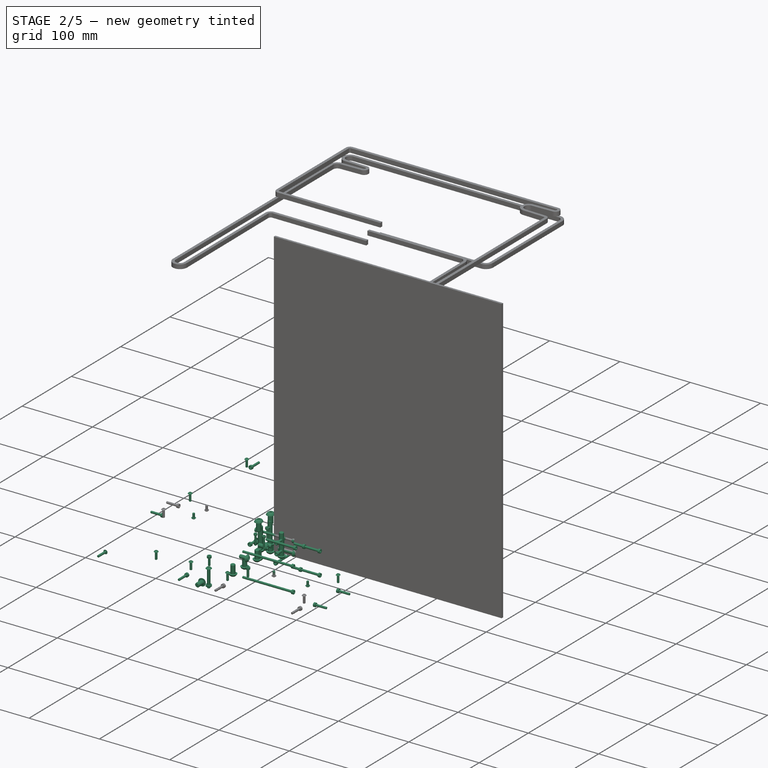
[diagram: stage 2 of 5 — iso view after this stage's code; geometry added in this stage tinted green]
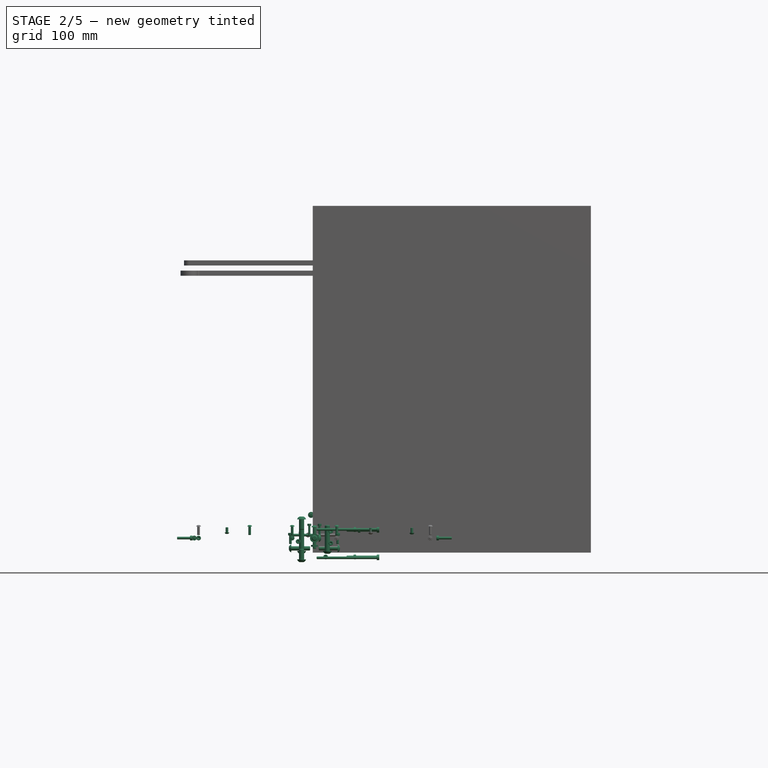
[diagram: stage 2 of 5 — front view after this stage's code; geometry added in this stage tinted green]
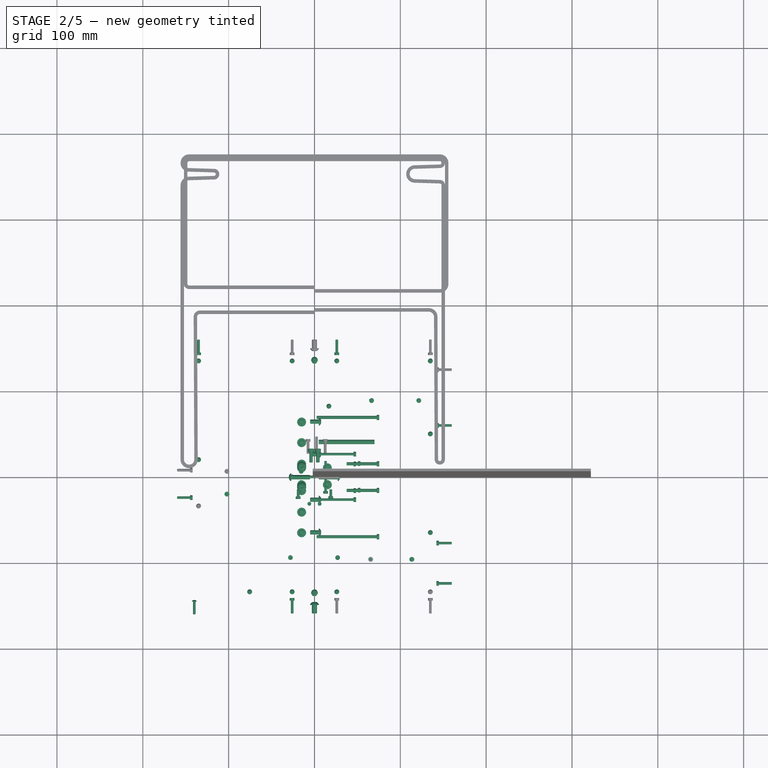
[diagram: stage 2 of 5 — top view after this stage's code; geometry added in this stage tinted green]
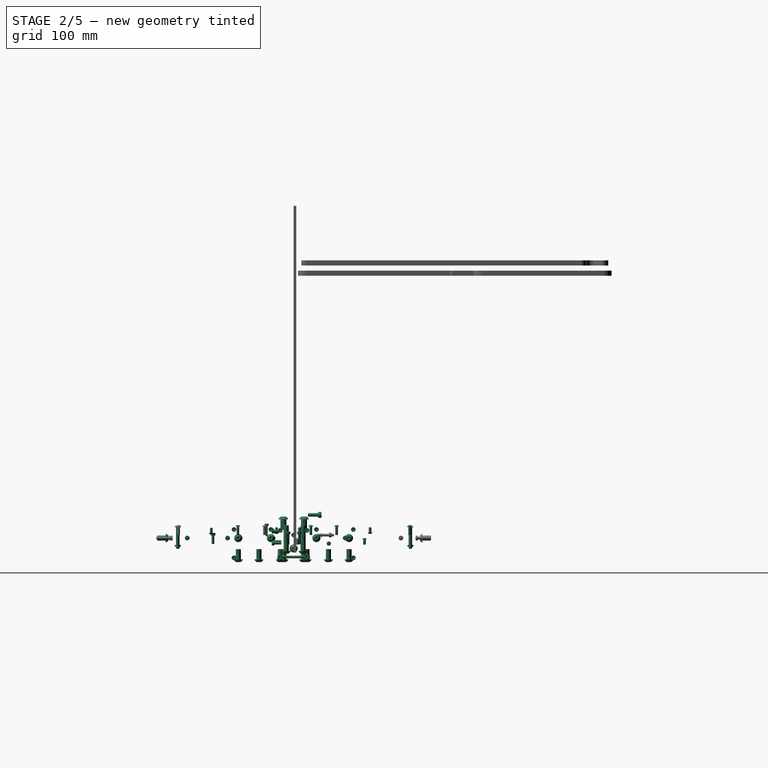
[diagram: stage 2 of 5 — right view after this stage's code; geometry added in this stage tinted green]
FEATURE [Part::FeaturePython] Screw685  label="M3x35-Screw030"  # Fasteners workbench fastener (typed FeaturePython)
  Placement = pos=(12.9958,-16,-6.99647) rot=(1,0,0;1.5708rad)
  diameter = 4
  invert = true
  length = 10
  lengthCustom = 35
  matchOuter = true
  offset = 0
  thread = false
  type = 33
FEATURE [Part::FeaturePython] Screw686  label="M3x8-Screw108"  # Fasteners workbench fastener (typed FeaturePython)
  Placement = pos=(19,-22.5,23) rot=(1,0,0;1.5708rad)
  diameter = 4
  invert = false
  length = 10
  lengthCustom = 8
  matchOuter = true
  offset = 0
  thread = false
  type = 33
FEATURE [Part::FeaturePython] Screw687  label="M3x8-Screw107"  # Fasteners workbench fastener (typed FeaturePython)
  Placement = pos=(19,-22.5,9) rot=(1,0,0;1.5708rad)
  diameter = 4
  invert = false
  length = 10
  lengthCustom = 8
  matchOuter = true
  offset = 0
  thread = false
  type = 33
FEATURE [Part::FeaturePython] Screw688  label="M3x8-Screw110"  # Fasteners workbench fastener (typed FeaturePython)
  Placement = pos=(-19,-22.5,11) rot=(1,0,0;1.5708rad)
  diameter = 4
  invert = false
  length = 10
  lengthCustom = 8
  matchOuter = true
  offset = 0
  thread = false
  type = 33
FEATURE [Part::FeaturePython] Screw691  label="M4x12-Screw014"  # Fasteners workbench fastener (typed FeaturePython)
  Placement = pos=(-4,28.5,42) rot=(-1,0,0;1.5708rad)
  diameter = 5
  invert = false
  length = 11
  lengthCustom = 12
  matchOuter = true
  offset = 10
  thread = false
  type = 33
FEATURE [Part::FeaturePython] Screw692  label="M4x12-Screw013"  # Fasteners workbench fastener (typed FeaturePython)
  Placement = pos=(4,28.5,42) rot=(-1,0,0;1.5708rad)
  diameter = 5
  invert = false
  length = 11
  lengthCustom = 12
  matchOuter = true
  offset = 10
  thread = false
  type = 33
FEATURE [Part::FeaturePython] Screw693  label="M2.5x12-Screw"  # Fasteners workbench fastener (typed FeaturePython)
  Placement = pos=(-6,-31.5,29.2) rot=(0,0,1;0rad)
  baseObject = -> Part__Feature041 [Edge4]
  diameter = 3
  invert = false
  length = 10
  lengthCustom = 12
  matchOuter = true
  offset = 10
  thread = false
  type = 33
FEATURE [Part::FeaturePython] Screw694  label="M2.5x12-Screw001"  # Fasteners workbench fastener (typed FeaturePython)
  Placement = pos=(6,-31.5,29.2) rot=(0,0,1;0rad)
  baseObject = -> Part__Feature041 [Edge1]
  diameter = 3
  invert = false
  length = 10
  lengthCustom = 12
  matchOuter = true
  offset = 10
  thread = false
  type = 33
FEATURE [Part::Feature] Chamfer004013007011015006009007001016  label="belt-tesioner-r005"
  Placement = pos=(-6,13,12.5) rot=(0,0,1;0rad)
  shape: bbox 20 x 14.9 x 10 mm, 116 faces (baked)
FEATURE [Part::Feature] Chamfer004013007011015006009007001017  label="belt-tesioner-r006"
  Placement = pos=(6,13,7.5) rot=(0,1,0;3.14159rad)
  shape: bbox 20 x 14.9 x 10 mm, 116 faces (baked)
FEATURE [Part::Feature] Cut008004003004014002002005003004003002003021022001002001046
  Placement = pos=(1e-15,10,10) rot=(0,0.707107,0.707107;3.14159rad)
  shape: bbox 50.93 x 37.34 x 72.49 mm, 488 faces (baked)
FEATURE [Part::Feature] Cut008004003012001003001010001001  label="belt-clamp006"
  Placement = pos=(19,-18.5,16) rot=(1,0,0;1.5708rad)
  shape: bbox 8 x 4 x 20 mm, 16 faces (baked)
FEATURE [App::Part] Part139  label="Toolhead"
  ExportMode = 1
  Group = -> [Part__Feature041,Fusion001,Part__Feature031,Part__Feature014,Part__Feature009,Part__Feature048,Part__Feature034,Part__Feature091,BL_Touch__1_,Chamfer005021077002006002,Fusion036012039011002025018010027010001,Chamfer005021077002006001,Nut035,Nut034,Screw682,Screw683,Nut039,Nut038,Screw680,Screw681,Screw690,Screw692,Screw691,Nut033,Screw685,Screw684,Screw679,Screw659,Nut037,Nut036,Screw687,Screw686,+27 more]
  Origin = -> Origin143
  Placement = pos=(0,199.5,319.5) rot=(0,0,1;0rad)
  _ExportChildren = -> [Part__Feature041,Fusion001,Part__Feature031,Part__Feature014,Part__Feature009,Part__Feature048,Part__Feature034,Part__Feature091,BL_Touch__1_,Chamfer005021077002006002,Fusion036012039011002025018010027010001,Chamfer005021077002006001,Nut035,Nut034,Screw682,Screw683,Nut039,Nut038,Screw680,Screw681,Screw690,Screw692,Screw691,Nut033,Screw685,Screw684,Screw679,Screw659,Nut037,Nut036,Screw687,Screw686,+27 more]
  _GroupVersion = 1
FEATURE [Part::Feature] Part__Mirroring014004006  label="Cut001024014003001002001 (Mirror #1)001"
  shape: bbox 77.5 x 57 x 14.5 mm, 87 faces (baked)
FEATURE [Part::Feature] Part__Mirroring014004003  label="back-plate-w-aligner006"
  shape: bbox 35 x 65.14 x 43 mm, 84 faces (baked)
FEATURE [Part::FeaturePython] Screw696  label="M5x10-Screw012"  # Fasteners workbench fastener (typed FeaturePython)
  Placement = pos=(5,-64.5,15) rot=(0,1,0;1.5708rad)
  baseObject = -> Part__Mirroring014004003 [Edge90]
  diameter = 3
  invert = true
  length = 12
  lengthCustom = 10
  matchOuter = true
  offset = 0
  thread = false
  type = 39
FEATURE [Part::Feature] Part__Mirroring009001  label="motor-40mm012"
  shape: bbox 67 x 47 x 42 mm, 100 faces (baked)
FEATURE [Part::FeaturePython] Washer001  label="M6-Washer202"  # Fasteners workbench fastener (typed FeaturePython)
  Placement = pos=(-15,-40.5,-8) rot=(-1,0,0;3.14159rad)
  baseObject = -> Part__Mirroring014004003 [Edge183]
  diameter = 2
  invert = false
  matchOuter = true
  offset = 0
  type = 4
FEATURE [Part::Feature] Part__Mirroring013001  label="80t-pulley006"
  shape: bbox 18 x 55 x 55 mm, 10 faces (baked)
FEATURE [Part::Feature] Part__Mirroring009003004007  label="20t-pulley001"
  shape: bbox 20 x 15 x 15 mm, 8 faces (baked)
FEATURE [Part::Feature] Part__Mirroring009003004008  label="MR115ZZ025"
  shape: bbox 4 x 11 x 11 mm, 4 faces (baked)
FEATURE [Part::Feature] Part__Mirroring014002  label="5mm-washer025"
  shape: bbox 0.5 x 6.9 x 6.9 mm, 4 faces (baked)
FEATURE [Part::Feature] Part__Mirroring014001  label="16t-pulley006"
  shape: bbox 15.5 x 13.9 x 13.9 mm, 8 faces (baked)
FEATURE [Part::FeaturePython] Screw698  label="M6x12-Screw151"  # Fasteners workbench fastener (typed FeaturePython)
  Placement = pos=(-15,-40.5,-9.8) rot=(-1,0,0;3.14159rad)
  baseObject = -> Washer001 [Edge1]
  diameter = 4
  invert = false
  length = 1
  lengthCustom = 12
  matchOuter = true
  offset = 0
  thread = false
  type = 39
FEATURE [Part::Feature] Part__Mirroring014004001  label="front-plate-type006"
  shape: bbox 27 x 95 x 43 mm, 156 faces (baked)
FEATURE [Part::FeaturePython] Screw695  label="M3x70-Screw"  # Fasteners workbench fastener (typed FeaturePython)
  Placement = pos=(72.5,-69.5,-8) rot=(0,1,0;1.5708rad)
  baseObject = -> Part__Mirroring014004001 [Edge22]
  diameter = 4
  invert = true
  length = 10
  lengthCustom = 70
  matchOuter = true
  offset = 0
  thread = false
  type = 33
FEATURE [Part::FeaturePython] Screw697  label="M3x35-Screw024"  # Fasteners workbench fastener (typed FeaturePython)
  Placement = pos=(72.5,15.5,-7) rot=(0,1,0;1.5708rad)
  baseObject = -> Part__Mirroring014004001 [Edge26]
  diameter = 4
  invert = true
  length = 10
  lengthCustom = 35
  matchOuter = true
  offset = 0
  thread = false
  type = 33
FEATURE [Part::FeaturePython] Washer213  label="M6-Washer201"  # Fasteners workbench fastener (typed FeaturePython)
  Placement = pos=(-15,-64.5,-8) rot=(-1,0,0;3.14159rad)
  baseObject = -> Part__Mirroring014004003 [Edge185]
  diameter = 2
  invert = false
  matchOuter = true
  offset = 0
  type = 4
FEATURE [Part::FeaturePython] Screw699  label="M6x12-Screw150"  # Fasteners workbench fastener (typed FeaturePython)
  Placement = pos=(-15,-64.5,-9.8) rot=(-1,0,0;3.14159rad)
  baseObject = -> Washer213 [Edge1]
  diameter = 4
  invert = false
  length = 1
  lengthCustom = 12
  matchOuter = true
  offset = 0
  thread = false
  type = 39
FEATURE [Part::FeaturePython] Washer002  label="M6-Washer199"  # Fasteners workbench fastener (typed FeaturePython)
  Placement = pos=(-15,-15.5,-8) rot=(1,0,0;3.14159rad)
  diameter = 2
  invert = false
  matchOuter = true
  offset = 0
  type = 4
FEATURE [Part::FeaturePython] Screw700  label="M3x70-Screw012"  # Fasteners workbench fastener (typed FeaturePython)
  Placement = pos=(72.5,-69.5,25) rot=(0,1,0;1.5708rad)
  baseObject = -> Part__Mirroring014004001 [Edge23]
  diameter = 4
  invert = true
  length = 10
  lengthCustom = 70
  matchOuter = true
  offset = 0
  thread = false
  type = 33
FEATURE [Part::FeaturePython] Screw701  label="M5x10-Screw"  # Fasteners workbench fastener (typed FeaturePython)
  Placement = pos=(5,-26.5,15) rot=(0,1,0;1.5708rad)
  baseObject = -> Part__Mirroring014004003 [Edge222]
  diameter = 3
  invert = true
  length = 12
  lengthCustom = 10
  matchOuter = true
  offset = 0
  thread = false
  type = 39
FEATURE [Part::Feature] Part__Mirroring012001  label="5mm-washer026"
  shape: bbox 0.5 x 6.9 x 6.9 mm, 4 faces (baked)
FEATURE [Part::Feature] Part__Mirroring005001  label="MR115ZZ026"
  shape: bbox 4 x 11 x 11 mm, 4 faces (baked)
FEATURE [Part::FeaturePython] Screw702  label="M3x12-Screw"  # Fasteners workbench fastener (typed FeaturePython)
  Placement = pos=(50.5,-15.5,24) rot=(0,1,0;1.5708rad)
  diameter = 4
  invert = true
  length = 10
  lengthCustom = 12
  matchOuter = true
  offset = 0
  thread = false
  type = 33
FEATURE [Part::Feature] Part__Mirroring007001  label="5mm-washer027"
  shape: bbox 0.5 x 6.9 x 6.9 mm, 4 faces (baked)
FEATURE [Part::Feature] Part__Mirroring014004002  label="5x65-shaft005"
  shape: bbox 65 x 5 x 5 mm, 3 faces (baked)
FEATURE [Part::FeaturePython] Washer214  label="M6-Washer200"  # Fasteners workbench fastener (typed FeaturePython)
  Placement = pos=(-15,11.5,-8) rot=(1,0,0;3.14159rad)
  diameter = 2
  invert = false
  matchOuter = true
  offset = 0
  type = 4
FEATURE [Part::FeaturePython] Washer215  label="M6-Washer197"  # Fasteners workbench fastener (typed FeaturePython)
  Placement = pos=(-15,12.5,35) rot=(0,0,1;0rad)
  diameter = 2
  invert = true
  matchOuter = true
  offset = 0
  type = 4
FEATURE [Part::FeaturePython] Screw009  label="M6x12-Screw147"  # Fasteners workbench fastener (typed FeaturePython)
  Placement = pos=(-15,12.5,36.8) rot=(0,0,1;0rad)
  baseObject = -> Washer215 [Edge1]
  diameter = 4
  invert = false
  length = 1
  lengthCustom = 12
  matchOuter = true
  offset = 0
  thread = false
  type = 39
FEATURE [Part::FeaturePython] Screw703  label="M3x35-Screw"  # Fasteners workbench fastener (typed FeaturePython)
  Placement = pos=(72.5,15.5,24) rot=(0,1,0;1.5708rad)
  baseObject = -> Part__Mirroring014004001 [Edge24]
  diameter = 4
  invert = true
  length = 10
  lengthCustom = 35
  matchOuter = true
  offset = 0
  thread = false
  type = 33
FEATURE [Part::FeaturePython] Washer216  label="M6-Washer198"  # Fasteners workbench fastener (typed FeaturePython)
  Placement = pos=(-15,-11.5,35) rot=(0,0,1;0rad)
  diameter = 2
  invert = true
  matchOuter = true
  offset = 0
  type = 4
FEATURE [Part::FeaturePython] Screw008  label="M6x12-Screw"  # Fasteners workbench fastener (typed FeaturePython)
  Placement = pos=(-15,-11.5,36.8) rot=(0,0,1;0rad)
  baseObject = -> Washer216 [Edge1]
  diameter = 4
  invert = false
  length = 1
  lengthCustom = 12
  matchOuter = true
  offset = 0
  thread = false
  type = 39
FEATURE [Part::FeaturePython] Screw704  label="M6x12-Screw149"  # Fasteners workbench fastener (typed FeaturePython)
  Placement = pos=(-15,-15.5,-9.8) rot=(-1,0,0;3.14159rad)
  baseObject = -> Washer002 [Edge1]
  diameter = 4
  invert = false
  length = 1
  lengthCustom = 12
  matchOuter = true
  offset = 0
  thread = false
  type = 39
FEATURE [Part::FeaturePython] Screw705  label="M3x8-Screw"  # Fasteners workbench fastener (typed FeaturePython)
  Placement = pos=(45.5,-15.5,-7) rot=(0,1,0;1.5708rad)
  diameter = 4
  invert = true
  length = 10
  lengthCustom = 8
  matchOuter = true
  offset = 0
  thread = false
  type = 33
FEATURE [Part::Feature] Part__Mirroring011001  label="5mm-washer028"
  shape: bbox 0.5 x 6.9 x 6.9 mm, 4 faces (baked)
FEATURE [Part::FeaturePython] Screw010  label="M6x12-Screw148"  # Fasteners workbench fastener (typed FeaturePython)
  Placement = pos=(-15,11.5,-9.8) rot=(-1,0,0;3.14159rad)
  baseObject = -> Washer214 [Edge1]
  diameter = 4
  invert = false
  length = 1
  lengthCustom = 12
  matchOuter = true
  offset = 0
  thread = false
  type = 39
FEATURE [Part::Feature] Part__Mirroring008001  label="MR115ZZ027"
  shape: bbox 4 x 11 x 11 mm, 4 faces (baked)
FEATURE [Part::Feature] Part__Mirroring009003004009  label="z-motor-plate-r004 (Mirror #1)003"
  shape: bbox 72.5 x 101 x 43 mm, 85 faces (baked)
FEATURE [Part::FeaturePython] Screw014  label="M3x40-Screw"  # Fasteners workbench fastener (typed FeaturePython)
  Placement = pos=(45.5,-26.5,25) rot=(0,1,0;1.5708rad)
  baseObject = -> Part__Mirroring009003004009 [Edge95]
  diameter = 4
  invert = true
  length = 10
  lengthCustom = 40
  matchOuter = true
  offset = 0
  thread = false
  type = 33
FEATURE [App::Part] Part140  label="z-motor-left"
  ExportMode = 1
  Group = -> [Part__Mirroring014002,Part__Mirroring009003004008,Part__Mirroring009003004007,Part__Mirroring005001,Part__Mirroring007001,Part__Mirroring008001,Part__Mirroring009001,Part__Mirroring011001,Part__Mirroring012001,Part__Mirroring013001,Part__Mirroring014001,Part__Mirroring014004001,Part__Mirroring014004002,Part__Mirroring014004003,Screw703,Screw695,Screw697,Screw700,Washer215,Washer216,Screw008,+16 more]
  Origin = -> Origin145
  Placement = pos=(-155,116.5,0) rot=(0,0,1;0rad)
  _ExportChildren = -> [Part__Mirroring014002,Part__Mirroring009003004008,Part__Mirroring009003004007,Part__Mirroring005001,Part__Mirroring007001,Part__Mirroring008001,Part__Mirroring009001,Part__Mirroring011001,Part__Mirroring012001,Part__Mirroring013001,Part__Mirroring014001,Part__Mirroring014004001,Part__Mirroring014004002,Part__Mirroring014004003,Screw703,Screw695,Screw697,Screw700,Washer215,Washer216,Screw008,+16 more]
  _GroupVersion = 1
FEATURE [Part::Feature] Part__Mirroring009003004010  label="Cut001024014003001002001 (Mirror #1)002"
  shape: bbox 77.5 x 57 x 14.5 mm, 87 faces (baked)
FEATURE [Part::Feature] Part__Mirroring009003004011  label="back-plate-w-aligner007"
  shape: bbox 35 x 65.14 x 43 mm, 84 faces (baked)
FEATURE [Part::FeaturePython] Screw707  label="M5x10-Screw014"  # Fasteners workbench fastener (typed FeaturePython)
  Placement = pos=(5,-64.5,15) rot=(0,1,0;1.5708rad)
  baseObject = -> Part__Mirroring009003004011 [Edge90]
  diameter = 3
  invert = true
  length = 12
  lengthCustom = 10
  matchOuter = true
  offset = 0
  thread = false
  type = 39
FEATURE [Part::Feature] Part__Mirroring009003004012  label="motor-40mm013"
  shape: bbox 67 x 47 x 42 mm, 100 faces (baked)
FEATURE [Part::FeaturePython] Washer217  label="M6-Washer208"  # Fasteners workbench fastener (typed FeaturePython)
  Placement = pos=(-15,-40.5,-8) rot=(-1,0,0;3.14159rad)
  baseObject = -> Part__Mirroring009003004011 [Edge183]
  diameter = 2
  invert = false
  matchOuter = true
  offset = 0
  type = 4
FEATURE [Part::Feature] Part__Mirroring009003004013  label="80t-pulley007"
  shape: bbox 18 x 55 x 55 mm, 10 faces (baked)
FEATURE [Part::Feature] Part__Mirroring009003004014  label="20t-pulley014"
  shape: bbox 20 x 15 x 15 mm, 8 faces (baked)
FEATURE [Part::Feature] Part__Mirroring009003004015  label="MR115ZZ028"
  shape: bbox 4 x 11 x 11 mm, 4 faces (baked)
FEATURE [Part::Feature] Part__Mirroring009003004016  label="5mm-washer029"
  shape: bbox 0.5 x 6.9 x 6.9 mm, 4 faces (baked)
FEATURE [Part::Feature] Part__Mirroring009003004017  label="16t-pulley007"
  shape: bbox 15.5 x 13.9 x 13.9 mm, 8 faces (baked)
FEATURE [Part::FeaturePython] Screw711  label="M6x12-Screw157"  # Fasteners workbench fastener (typed FeaturePython)
  Placement = pos=(-15,-40.5,-9.8) rot=(-1,0,0;3.14159rad)
  baseObject = -> Washer217 [Edge1]
  diameter = 4
  invert = false
  length = 1
  lengthCustom = 12
  matchOuter = true
  offset = 0
  thread = false
  type = 39
FEATURE [Part::Feature] Part__Mirroring009003004018  label="front-plate-type007"
  shape: bbox 27 x 95 x 43 mm, 156 faces (baked)
FEATURE [Part::FeaturePython] Screw706  label="M3x70-Screw013"  # Fasteners workbench fastener (typed FeaturePython)
  Placement = pos=(72.5,-69.5,-8) rot=(0,1,0;1.5708rad)
  baseObject = -> Part__Mirroring009003004018 [Edge22]
  diameter = 4
  invert = true
  length = 10
  lengthCustom = 70
  matchOuter = true
  offset = 0
  thread = false
  type = 33
FEATURE [Part::FeaturePython] Screw709  label="M3x35-Screw026"  # Fasteners workbench fastener (typed FeaturePython)
  Placement = pos=(72.5,15.5,-7) rot=(0,1,0;1.5708rad)
  baseObject = -> Part__Mirroring009003004018 [Edge26]
  diameter = 4
  invert = true
  length = 10
  lengthCustom = 35
  matchOuter = true
  offset = 0
  thread = false
  type = 33
FEATURE [Part::FeaturePython] Washer218  label="M6-Washer207"  # Fasteners workbench fastener (typed FeaturePython)
  Placement = pos=(-15,-64.5,-8) rot=(-1,0,0;3.14159rad)
  baseObject = -> Part__Mirroring009003004011 [Edge185]
  diameter = 2
  invert = false
  matchOuter = true
  offset = 0
  type = 4
FEATURE [Part::FeaturePython] Screw712  label="M6x12-Screw156"  # Fasteners workbench fastener (typed FeaturePython)
  Placement = pos=(-15,-64.5,-9.8) rot=(-1,0,0;3.14159rad)
  baseObject = -> Washer218 [Edge1]
  diameter = 4
  invert = false
  length = 1
  lengthCustom = 12
  matchOuter = true
  offset = 0
  thread = false
  type = 39
FEATURE [Part::FeaturePython] Washer219  label="M6-Washer205"  # Fasteners workbench fastener (typed FeaturePython)
  Placement = pos=(-15,-15.5,-8) rot=(1,0,0;3.14159rad)
  diameter = 2
  invert = false
  matchOuter = true
  offset = 0
  type = 4
FEATURE [Part::FeaturePython] Screw713  label="M3x70-Screw014"  # Fasteners workbench fastener (typed FeaturePython)
  Placement = pos=(72.5,-69.5,25) rot=(0,1,0;1.5708rad)
  baseObject = -> Part__Mirroring009003004018 [Edge23]
  diameter = 4
  invert = true
  length = 10
  lengthCustom = 70
  matchOuter = true
  offset = 0
  thread = false
  type = 33
FEATURE [Part::FeaturePython] Screw714  label="M5x10-Screw013"  # Fasteners workbench fastener (typed FeaturePython)
  Placement = pos=(5,-26.5,15) rot=(0,1,0;1.5708rad)
  baseObject = -> Part__Mirroring009003004011 [Edge222]
  diameter = 3
  invert = true
  length = 12
  lengthCustom = 10
  matchOuter = true
  offset = 0
  thread = false
  type = 39
FEATURE [Part::Feature] Part__Mirroring009003004019  label="5mm-washer030"
  shape: bbox 0.5 x 6.9 x 6.9 mm, 4 faces (baked)
FEATURE [Part::Feature] Part__Mirroring009003004020  label="MR115ZZ029"
  shape: bbox 4 x 11 x 11 mm, 4 faces (baked)
FEATURE [Part::FeaturePython] Screw715  label="M3x12-Screw033"  # Fasteners workbench fastener (typed FeaturePython)
  Placement = pos=(50.5,-15.5,24) rot=(0,1,0;1.5708rad)
  diameter = 4
  invert = true
  length = 10
  lengthCustom = 12
  matchOuter = true
  offset = 0
  thread = false
  type = 33
FEATURE [Part::Feature] Part__Mirroring009003004021  label="5mm-washer031"
  shape: bbox 0.5 x 6.9 x 6.9 mm, 4 faces (baked)
FEATURE [Part::Feature] Part__Mirroring009003004022  label="5x65-shaft006"
  shape: bbox 65 x 5 x 5 mm, 3 faces (baked)
FEATURE [Part::FeaturePython] Washer220  label="M6-Washer206"  # Fasteners workbench fastener (typed FeaturePython)
  Placement = pos=(-15,11.5,-8) rot=(1,0,0;3.14159rad)
  diameter = 2
  invert = false
  matchOuter = true
  offset = 0
  type = 4
FEATURE [Part::FeaturePython] Washer221  label="M6-Washer203"  # Fasteners workbench fastener (typed FeaturePython)
  Placement = pos=(-15,12.5,35) rot=(0,0,1;0rad)
  diameter = 2
  invert = true
  matchOuter = true
  offset = 0
  type = 4
FEATURE [Part::FeaturePython] Screw708  label="M6x12-Screw153"  # Fasteners workbench fastener (typed FeaturePython)
  Placement = pos=(-15,12.5,36.8) rot=(0,0,1;0rad)
  baseObject = -> Washer221 [Edge1]
  diameter = 4
  invert = false
  length = 1
  lengthCustom = 12
  matchOuter = true
  offset = 0
  thread = false
  type = 39
FEATURE [Part::FeaturePython] Screw717  label="M3x35-Screw025"  # Fasteners workbench fastener (typed FeaturePython)
  Placement = pos=(72.5,15.5,24) rot=(0,1,0;1.5708rad)
  baseObject = -> Part__Mirroring009003004018 [Edge24]
  diameter = 4
  invert = true
  length = 10
  lengthCustom = 35
  matchOuter = true
  offset = 0
  thread = false
  type = 33
FEATURE [Part::FeaturePython] Washer222  label="M6-Washer204"  # Fasteners workbench fastener (typed FeaturePython)
  Placement = pos=(-15,-11.5,35) rot=(0,0,1;0rad)
  diameter = 2
  invert = true
  matchOuter = true
  offset = 0
  type = 4
FEATURE [Part::FeaturePython] Screw710  label="M6x12-Screw152"  # Fasteners workbench fastener (typed FeaturePython)
  Placement = pos=(-15,-11.5,36.8) rot=(0,0,1;0rad)
  baseObject = -> Washer222 [Edge1]
  diameter = 4
  invert = false
  length = 1
  lengthCustom = 12
  matchOuter = true
  offset = 0
  thread = false
  type = 39
FEATURE [Part::FeaturePython] Screw718  label="M6x12-Screw155"  # Fasteners workbench fastener (typed FeaturePython)
  Placement = pos=(-15,-15.5,-9.8) rot=(-1,0,0;3.14159rad)
  baseObject = -> Washer219 [Edge1]
  diameter = 4
  invert = false
  length = 1
  lengthCustom = 12
  matchOuter = true
  offset = 0
  thread = false
  type = 39
FEATURE [Part::FeaturePython] Screw719  label="M3x8-Screw104"  # Fasteners workbench fastener (typed FeaturePython)
  Placement = pos=(45.5,-15.5,-7) rot=(0,1,0;1.5708rad)
  diameter = 4
  invert = true
  length = 10
  lengthCustom = 8
  matchOuter = true
  offset = 0
  thread = false
  type = 33
FEATURE [Part::Feature] Part__Mirroring009003004023  label="5mm-washer032"
  shape: bbox 0.5 x 6.9 x 6.9 mm, 4 faces (baked)
FEATURE [Part::FeaturePython] Screw720  label="M6x12-Screw154"  # Fasteners workbench fastener (typed FeaturePython)
  Placement = pos=(-15,11.5,-9.8) rot=(-1,0,0;3.14159rad)
  baseObject = -> Washer220 [Edge1]
  diameter = 4
  invert = false
  length = 1
  lengthCustom = 12
  matchOuter = true
  offset = 0
  thread = false
  type = 39
FEATURE [Part::Feature] Part__Mirroring009003004024  label="MR115ZZ030"
  shape: bbox 4 x 11 x 11 mm, 4 faces (baked)
FEATURE [Part::Feature] Part__Mirroring009003004025  label="z-motor-plate-r004 (Mirror #1)004"
  shape: bbox 72.5 x 101 x 43 mm, 85 faces (baked)
FEATURE [Part::FeaturePython] Screw716  label="M3x40-Screw022"  # Fasteners workbench fastener (typed FeaturePython)
  Placement = pos=(45.5,-26.5,25) rot=(0,1,0;1.5708rad)
  baseObject = -> Part__Mirroring009003004025 [Edge95]
  diameter = 4
  invert = true
  length = 10
  lengthCustom = 40
  matchOuter = true
  offset = 0
  thread = false
  type = 33
FEATURE [App::Part] Part141  label="z-motor-left001"
  ExportMode = 1
  Group = -> [Part__Mirroring009003004016,Part__Mirroring009003004015,Part__Mirroring009003004014,Part__Mirroring009003004020,Part__Mirroring009003004021,Part__Mirroring009003004024,Part__Mirroring009003004012,Part__Mirroring009003004023,Part__Mirroring009003004019,Part__Mirroring009003004013,Part__Mirroring009003004017,Part__Mirroring009003004018,Part__Mirroring009003004022,Part__Mirroring009003004011,+23 more]
  Origin = -> Origin146
  Placement = pos=(-155,286.5,0) rot=(0,0,1;0rad)
  _ExportChildren = -> [Part__Mirroring009003004016,Part__Mirroring009003004015,Part__Mirroring009003004014,Part__Mirroring009003004020,Part__Mirroring009003004021,Part__Mirroring009003004024,Part__Mirroring009003004012,Part__Mirroring009003004023,Part__Mirroring009003004019,Part__Mirroring009003004013,Part__Mirroring009003004017,Part__Mirroring009003004018,Part__Mirroring009003004022,Part__Mirroring009003004011,+23 more]
  _GroupVersion = 1
FEATURE [Part::Feature] Fusion006002011004053036004001028003005001  label="back-plate-w-aligner008"
  shape: bbox 35 x 65.14 x 43 mm, 84 faces (baked)
FEATURE [Part::FeaturePython] Washer223  label="M6-Washer213"  # Fasteners workbench fastener (typed FeaturePython)
  Placement = pos=(-15,64.5,-8) rot=(-1,0,0;3.14159rad)
  baseObject = -> Fusion006002011004053036004001028003005001 [Edge185]
  diameter = 2
  invert = true
  matchOuter = true
  offset = 0
  type = 4
FEATURE [Part::Feature] Cut001003001  label="MR115ZZ031"
  shape: bbox 4 x 11 x 11 mm, 4 faces (baked)
FEATURE [Part::Feature] Cut001001001  label="16t-pulley008"
  shape: bbox 15.5 x 13.9 x 13.9 mm, 8 faces (baked)
FEATURE [Part::FeaturePython] Screw725  label="M3x8-Screw105"  # Fasteners workbench fastener (typed FeaturePython)
  Placement = pos=(45.5,15.5,-7) rot=(0,1,0;1.5708rad)
  diameter = 4
  invert = false
  length = 10
  lengthCustom = 8
  matchOuter = true
  offset = 0
  thread = false
  type = 33
FEATURE [Part::FeaturePython] Screw726  label="M6x12-Screw162"  # Fasteners workbench fastener (typed FeaturePython)
  Placement = pos=(-15,64.5,-9.8) rot=(-1,0,0;3.14159rad)
  baseObject = -> Washer223 [Edge1]
  diameter = 4
  invert = false
  length = 1
  lengthCustom = 12
  matchOuter = true
  offset = 0
  thread = false
  type = 39
FEATURE [Part::Feature] Cut001024010002  label="20t-pulley015"
  shape: bbox 20 x 15 x 15 mm, 8 faces (baked)
FEATURE [Part::FeaturePython] Washer224  label="M6-Washer214"  # Fasteners workbench fastener (typed FeaturePython)
  Placement = pos=(-15,40.5,-8) rot=(-1,0,0;3.14159rad)
  baseObject = -> Fusion006002011004053036004001028003005001 [Edge183]
  diameter = 2
  invert = true
  matchOuter = true
  offset = 0
  type = 4
FEATURE [Part::FeaturePython] Screw721  label="M6x12-Screw163"  # Fasteners workbench fastener (typed FeaturePython)
  Placement = pos=(-15,40.5,-9.8) rot=(-1,0,0;3.14159rad)
  baseObject = -> Washer224 [Edge1]
  diameter = 4
  invert = false
  length = 1
  lengthCustom = 12
  matchOuter = true
  offset = 0
  thread = false
  type = 39
FEATURE [Part::Feature] Cut001024010001  label="5mm-washer033"
  shape: bbox 0.5 x 6.9 x 6.9 mm, 4 faces (baked)
FEATURE [Part::FeaturePython] Screw727  label="M5x10-Screw016"  # Fasteners workbench fastener (typed FeaturePython)
  Placement = pos=(5,64.5,15) rot=(0,1,0;1.5708rad)
  baseObject = -> Fusion006002011004053036004001028003005001 [Edge90]
  diameter = 3
  invert = false
  length = 1
  lengthCustom = 10
  matchOuter = true
  offset = 0
  thread = false
  type = 39
FEATURE [Part::FeaturePython] Washer225  label="M6-Washer212"  # Fasteners workbench fastener (typed FeaturePython)
  Placement = pos=(-15,15.5,-8) rot=(1,0,0;3.14159rad)
  diameter = 2
  invert = true
  matchOuter = true
  offset = 0
  type = 4
FEATURE [Part::FeaturePython] Screw729  label="M3x12-Screw034"  # Fasteners workbench fastener (typed FeaturePython)
  Placement = pos=(50.5,15.5,24) rot=(0,1,0;1.5708rad)
  diameter = 4
  invert = false
  length = 4
  lengthCustom = 12
  matchOuter = true
  offset = 0
  thread = false
  type = 33
FEATURE [Part::Feature] Cut001024007001  label="5mm-washer034"
  shape: bbox 0.5 x 6.9 x 6.9 mm, 4 faces (baked)
FEATURE [Part::FeaturePython] Washer226  label="M6-Washer209"  # Fasteners workbench fastener (typed FeaturePython)
  Placement = pos=(-15,11.5,35) rot=(0,0,1;0rad)
  diameter = 2
  invert = false
  matchOuter = true
  offset = 0
  type = 4
FEATURE [Part::Feature] Cut008004003004014002002005003004003002003021022001002001047  label="z-motor-plate-r005"
  shape: bbox 72.5 x 101 x 43 mm, 85 faces (baked)
FEATURE [Part::FeaturePython] Screw723  label="M3x40-Screw023"  # Fasteners workbench fastener (typed FeaturePython)
  Placement = pos=(45.5,26.5,25) rot=(0,1,0;1.5708rad)
  baseObject = -> Cut008004003004014002002005003004003002003021022001002001047 [Edge95]
  diameter = 4
  invert = false
  length = 10
  lengthCustom = 40
  matchOuter = true
  offset = 0
  thread = false
  type = 33
FEATURE [Part::Cylinder] Cylinder038  label="5x65-shaft007"
  Angle = 360
  AttacherType = Attacher::AttachEngine3D
  Height = 65
  Placement = pos=(5,41,8.5) rot=(0,1,0;1.5708rad)
  Radius = 2.5
FEATURE [Part::FeaturePython] Washer227  label="M6-Washer211"  # Fasteners workbench fastener (typed FeaturePython)
  Placement = pos=(-15,-11.5,-8) rot=(1,0,0;3.14159rad)
  diameter = 2
  invert = true
  matchOuter = true
  offset = 0
  type = 4
FEATURE [Part::Feature] Cut001024009001  label="5mm-washer035"
  shape: bbox 0.5 x 6.9 x 6.9 mm, 4 faces (baked)
FEATURE [Part::Feature] Cut001024008001  label="5mm-washer036"
  shape: bbox 0.5 x 6.9 x 6.9 mm, 4 faces (baked)
FEATURE [Part::FeaturePython] Screw731  label="M6x12-Screw158"  # Fasteners workbench fastener (typed FeaturePython)
  Placement = pos=(-15,11.5,36.8) rot=(0,0,1;0rad)
  baseObject = -> Washer226 [Edge1]
  diameter = 4
  invert = false
  length = 1
  lengthCustom = 12
  matchOuter = true
  offset = 0
  thread = false
  type = 39
FEATURE [Part::Feature] Fusion006002011004053036004001001001  label="motor-40mm014"
  shape: bbox 67 x 47 x 42 mm, 100 faces (baked)
FEATURE [Part::Feature] Cut001002001  label="80t-pulley008"
  shape: bbox 18 x 55 x 55 mm, 10 faces (baked)
FEATURE [Part::FeaturePython] Screw733  label="M6x12-Screw160"  # Fasteners workbench fastener (typed FeaturePython)
  Placement = pos=(-15,-11.5,-9.8) rot=(-1,0,0;3.14159rad)
  baseObject = -> Washer227 [Edge1]
  diameter = 4
  invert = false
  length = 1
  lengthCustom = 12
  matchOuter = true
  offset = 0
  thread = false
  type = 39
FEATURE [Part::FeaturePython] Screw734  label="M6x12-Screw161"  # Fasteners workbench fastener (typed FeaturePython)
  Placement = pos=(-15,15.5,-9.8) rot=(-1,0,0;3.14159rad)
  baseObject = -> Washer225 [Edge1]
  diameter = 4
  invert = false
  length = 1
  lengthCustom = 12
  matchOuter = true
  offset = 0
  thread = false
  type = 39
FEATURE [Part::Feature] Cut001024014003001002001
  shape: bbox 77.5 x 57 x 14.5 mm, 87 faces (baked)
FEATURE [Part::Feature] Cut001005001  label="MR115ZZ032"
  shape: bbox 4 x 11 x 11 mm, 4 faces (baked)
FEATURE [Part::Feature] Chamfer029006001  label="front-plate-type008"
  Placement = pos=(65.5,-1.5e-14,1e-15) rot=(0.57735,0.57735,0.57735;2.0944rad)
  shape: bbox 27 x 95 x 43 mm, 156 faces (baked)
FEATURE [Part::FeaturePython] Screw724  label="M3x35-Screw028"  # Fasteners workbench fastener (typed FeaturePython)
  Placement = pos=(72.5,-15.5,24) rot=(0,1,0;1.5708rad)
  baseObject = -> Chamfer029006001 [Edge24]
  diameter = 4
  invert = false
  length = 10
  lengthCustom = 35
  matchOuter = true
  offset = 0
  thread = false
  type = 33
FEATURE [Part::FeaturePython] Screw728  label="M3x70-Screw016"  # Fasteners workbench fastener (typed FeaturePython)
  Placement = pos=(72.5,69.5,-8) rot=(0,1,0;1.5708rad)
  baseObject = -> Chamfer029006001 [Edge22]
  diameter = 4
  invert = false
  length = 10
  lengthCustom = 70
  matchOuter = true
  offset = 0
  thread = false
  type = 33
FEATURE [Part::FeaturePython] Screw730  label="M3x35-Screw027"  # Fasteners workbench fastener (typed FeaturePython)
  Placement = pos=(72.5,-15.5,-7) rot=(0,1,0;1.5708rad)
  baseObject = -> Chamfer029006001 [Edge26]
  diameter = 4
  invert = false
  length = 10
  lengthCustom = 35
  matchOuter = true
  offset = 0
  thread = false
  type = 33
FEATURE [Part::FeaturePython] Screw732  label="M3x70-Screw015"  # Fasteners workbench fastener (typed FeaturePython)
  Placement = pos=(72.5,69.5,25) rot=(0,1,0;1.5708rad)
  baseObject = -> Chamfer029006001 [Edge23]
  diameter = 4
  invert = false
  length = 10
  lengthCustom = 70
  matchOuter = true
  offset = 0
  thread = false
  type = 33
FEATURE [Part::FeaturePython] Washer228  label="M6-Washer210"  # Fasteners workbench fastener (typed FeaturePython)
  Placement = pos=(-15,-12.5,35) rot=(0,0,1;0rad)
  diameter = 2
  invert = false
  matchOuter = true
  offset = 0
  type = 4
FEATURE [Part::FeaturePython] Screw722  label="M6x12-Screw159"  # Fasteners workbench fastener (typed FeaturePython)
  Placement = pos=(-15,-12.5,36.8) rot=(0,0,1;0rad)
  baseObject = -> Washer228 [Edge1]
  diameter = 4
  invert = false
  length = 1
  lengthCustom = 12
  matchOuter = true
  offset = 0
  thread = false
  type = 39
FEATURE [Part::FeaturePython] Screw735  label="M5x10-Screw015"  # Fasteners workbench fastener (typed FeaturePython)
  Placement = pos=(5,26.5,15) rot=(0,1,0;1.5708rad)
  baseObject = -> Fusion006002011004053036004001028003005001 [Edge223]
  diameter = 3
  invert = false
  length = 1
  lengthCustom = 10
  matchOuter = true
  offset = 0
  thread = false
  type = 39
FEATURE [Part::Feature] Cut001004001  label="MR115ZZ033"
  shape: bbox 4 x 11 x 11 mm, 4 faces (baked)
FEATURE [App::Part] Part142  label="z-motor-right"
  ExportMode = 1
  Group = -> [Cut001024010001,Cut001004001,Cut001024010002,Cut001005001,Cut001024007001,Cut001003001,Fusion006002011004053036004001001001,Cut001024009001,Cut001024008001,Cut001002001,Cut001001001,Chamfer029006001,Cylinder038,Fusion006002011004053036004001028003005001,Washer226,Screw729,Screw731,Screw722,Washer228,Screw733,Screw734,Screw725,Washer225,Washer227,Screw726,Washer223,Screw735,Screw727,Screw721,+8 more]
  Origin = -> Origin147
  Placement = pos=(155,201.5,0) rot=(0,0,1;3.14159rad)
  _ExportChildren = -> [Cut001024010001,Cut001004001,Cut001024010002,Cut001005001,Cut001024007001,Cut001003001,Fusion006002011004053036004001001001,Cut001024009001,Cut001024008001,Cut001002001,Cut001001001,Chamfer029006001,Cylinder038,Fusion006002011004053036004001028003005001,Washer226,Screw729,Screw731,Screw722,Washer228,Screw733,Screw734,Screw725,Washer225,Washer227,Screw726,Washer223,Screw735,Screw727,Screw721,+8 more]
  _GroupVersion = 1
FEATURE [Part::Feature] Part__Mirroring009003004026  label="Z-idler-housing-right"
  shape: bbox 50.5 x 38.74 x 26 mm, 116 faces (baked)
FEATURE [Part::Feature] Part__Mirroring002002  label="20t-9mm-pulley007"
  shape: bbox 14 x 15 x 15 mm, 7 faces (baked)
FEATURE [Part::FeaturePython] Washer229  label="M3-Washer153"  # Fasteners workbench fastener (typed FeaturePython)
  Placement = pos=(-15.5,6.5,19) rot=(0,0,1;0rad)
  baseObject = -> Part__Mirroring009003004026 [Edge264]
  diameter = 4
  invert = true
  matchOuter = true
  offset = 0
  type = 5
FEATURE [Part::FeaturePython] Washer230  label="M3-Washer154"  # Fasteners workbench fastener (typed FeaturePython)
  Placement = pos=(-15.5,-6.5,19) rot=(0,0,1;0rad)
  baseObject = -> Part__Mirroring009003004026 [Edge266]
  diameter = 4
  invert = true
  matchOuter = true
  offset = 0
  type = 5
FEATURE [Part::FeaturePython] Screw736  label="M3x45-Screw"  # Fasteners workbench fastener (typed FeaturePython)
  Placement = pos=(25,0,18.5) rot=(0,1,0;1.5708rad)
  baseObject = -> Part__Mirroring009003004026 [Edge259]
  diameter = 4
  invert = false
  length = 10
  lengthCustom = 45
  matchOuter = true
  offset = 0
  thread = false
  type = 33
FEATURE [Part::FeaturePython] Screw737  label="M6x30-Screw012"  # Fasteners workbench fastener (typed FeaturePython)
  Placement = pos=(15,-8.74,0) rot=(-1,0,0;3.14159rad)
  baseObject = -> Part__Mirroring009003004026 [Edge36]
  diameter = 4
  invert = false
  length = 13
  lengthCustom = 30
  matchOuter = true
  offset = 0
  thread = false
  type = 39
FEATURE [Part::FeaturePython] Screw738  label="M6x30-Screw"  # Fasteners workbench fastener (typed FeaturePython)
  Placement = pos=(15,11,0) rot=(-1,0,0;3.14159rad)
  baseObject = -> Part__Mirroring009003004026 [Edge1]
  diameter = 4
  invert = false
  length = 13
  lengthCustom = 30
  matchOuter = true
  offset = 0
  thread = false
  type = 39
FEATURE [Part::FeaturePython] Screw739  label="M3x12-Screw035"  # Fasteners workbench fastener (typed FeaturePython)
  Placement = pos=(-15.5,6.5,19.55) rot=(0,0,1;0rad)
  baseObject = -> Washer229 [Edge1]
  diameter = 4
  invert = false
  length = 10
  lengthCustom = 12
  matchOuter = true
  offset = 0
  thread = false
  type = 33
FEATURE [Part::FeaturePython] Screw740  label="M3x12-Screw036"  # Fasteners workbench fastener (typed FeaturePython)
  Placement = pos=(-15.5,-6.5,19.55) rot=(0,0,1;0rad)
  baseObject = -> Washer230 [Edge1]
  diameter = 4
  invert = false
  length = 10
  lengthCustom = 12
  matchOuter = true
  offset = 0
  thread = false
  type = 33
FEATURE [Part::FeaturePython] Screw741  label="M5x22-Screw"  # Fasteners workbench fastener (typed FeaturePython)
  Placement = pos=(-27,0,3) rot=(0,-1,0;1.5708rad)
  diameter = 3
  invert = false
  length = 12
  lengthCustom = 22
  matchOuter = true
  offset = 0
  thread = false
  type = 39
FEATURE [Part::Feature] Part__Mirroring002003  label="idler-housing002 (Mirror #1)001"
  Placement = pos=(-0.5,0,-3) rot=(0,0,1;0rad)
  shape: bbox 22 x 24 x 18 mm, 96 faces (baked)
FEATURE [App::Part] Part143  label="Z-idler-right"
  ExportMode = 1
  Group = -> [Part__Mirroring009003004026,Part__Mirroring002002,Screw736,Screw738,Screw737,Screw739,Screw740,Washer230,Washer229,Screw741,Part__Mirroring002003]
  Origin = -> Origin148
  Placement = pos=(155,160.74,285) rot=(0,0,1;0rad)
  _ExportChildren = -> [Part__Mirroring009003004026,Part__Mirroring002002,Screw736,Screw738,Screw737,Screw739,Screw740,Washer230,Washer229,Screw741,Part__Mirroring002003]
  _GroupVersion = 1
FEATURE [Part::Feature] Chamfer003065001  label="Z-idler-housing-left"
  shape: bbox 50.5 x 38.74 x 26 mm, 116 faces (baked)
FEATURE [Part::Feature] Fusion013005011003002  label="20t-9mm-pulley002"
  shape: bbox 14 x 15 x 15 mm, 7 faces (baked)
FEATURE [Part::FeaturePython] Screw742  label="M3x45-Screw006"  # Fasteners workbench fastener (typed FeaturePython)
  Placement = pos=(-25,0,18.5) rot=(0,-1,0;1.5708rad)
  baseObject = -> Chamfer003065001 [Edge259]
  diameter = 4
  invert = true
  length = 10
  lengthCustom = 45
  matchOuter = true
  offset = 0
  thread = false
  type = 33
FEATURE [Part::FeaturePython] Screw743  label="M6x30-Screw013"  # Fasteners workbench fastener (typed FeaturePython)
  Placement = pos=(-15,11,0) rot=(-1,0,0;3.14159rad)
  baseObject = -> Chamfer003065001 [Edge1]
  diameter = 4
  invert = true
  length = 13
  lengthCustom = 30
  matchOuter = true
  offset = 0
  thread = false
  type = 39
FEATURE [Part::FeaturePython] Screw744  label="M6x30-Screw014"  # Fasteners workbench fastener (typed FeaturePython)
  Placement = pos=(-15,-8.74,0) rot=(-1,0,0;3.14159rad)
  baseObject = -> Chamfer003065001 [Edge36]
  diameter = 4
  invert = true
  length = 13
  lengthCustom = 30
  matchOuter = true
  offset = 0
  thread = false
  type = 39
FEATURE [Part::FeaturePython] Washer231  label="M3-Washer155"  # Fasteners workbench fastener (typed FeaturePython)
  Placement = pos=(15.5,-6.5,19) rot=(0,0,1;0rad)
  baseObject = -> Chamfer003065001 [Edge266]
  diameter = 4
  invert = false
  matchOuter = true
  offset = 0
  type = 5
FEATURE [Part::FeaturePython] Washer232  label="M3-Washer156"  # Fasteners workbench fastener (typed FeaturePython)
  Placement = pos=(15.5,6.5,19) rot=(0,0,1;0rad)
  baseObject = -> Chamfer003065001 [Edge264]
  diameter = 4
  invert = false
  matchOuter = true
  offset = 0
  type = 5
FEATURE [Part::FeaturePython] Screw745  label="M3x12-Screw037"  # Fasteners workbench fastener (typed FeaturePython)
  Placement = pos=(15.5,6.5,19.55) rot=(0,0,1;0rad)
  baseObject = -> Washer232 [Edge1]
  diameter = 4
  invert = false
  length = 10
  lengthCustom = 12
  matchOuter = true
  offset = 0
  thread = false
  type = 33
FEATURE [Part::FeaturePython] Screw746  label="M3x12-Screw038"  # Fasteners workbench fastener (typed FeaturePython)
  Placement = pos=(15.5,-6.5,19.55) rot=(0,0,1;0rad)
  baseObject = -> Washer231 [Edge1]
  diameter = 4
  invert = false
  length = 10
  lengthCustom = 12
  matchOuter = true
  offset = 0
  thread = false
  type = 33
FEATURE [Part::FeaturePython] Screw747  label="M5x22-Screw006"  # Fasteners workbench fastener (typed FeaturePython)
  Placement = pos=(27,0,3) rot=(0,1,0;1.5708rad)
  diameter = 3
  invert = true
  length = 12
  lengthCustom = 22
  matchOuter = true
  offset = 0
  thread = false
  type = 39
FEATURE [Part::Feature] Chamfer003068001  label="idler-housing001"
  Placement = pos=(0.5,0,-3) rot=(0,0,1;0rad)
  shape: bbox 22 x 24 x 18 mm, 96 faces (baked)
FEATURE [App::Part] Part144  label="Z-idler-left-front"
  ExportMode = 1
  Group = -> [Chamfer003065001,Fusion013005011003002,Washer231,Screw743,Screw744,Screw745,Washer232,Screw746,Screw742,Screw747,Chamfer003068001]
  Origin = -> Origin149
  Placement = pos=(-155,75.75,285) rot=(0,0,1;0rad)
  _ExportChildren = -> [Chamfer003065001,Fusion013005011003002,Washer231,Screw743,Screw744,Screw745,Washer232,Screw746,Screw742,Screw747,Chamfer003068001]
  _GroupVersion = 1
FEATURE [Part::Feature] Chamfer004013007011015006009007001018  label="idler-housing002"
  Placement = pos=(0.5,0,-3) rot=(0,0,1;0rad)
  shape: bbox 22 x 24 x 18 mm, 96 faces (baked)
FEATURE [Part::Feature] Chamfer004013007011015006009007001019  label="Z-idler-housing-left004"
  shape: bbox 50.5 x 38.74 x 26 mm, 116 faces (baked)
FEATURE [Part::FeaturePython] Washer233  label="M3-Washer158"  # Fasteners workbench fastener (typed FeaturePython)
  Placement = pos=(15.5,6.5,19) rot=(0,0,1;0rad)
  baseObject = -> Chamfer004013007011015006009007001019 [Edge264]
  diameter = 4
  invert = false
  matchOuter = true
  offset = 0
  type = 5
FEATURE [Part::FeaturePython] Screw748  label="M3x12-Screw039"  # Fasteners workbench fastener (typed FeaturePython)
  Placement = pos=(15.5,6.5,19.55) rot=(0,0,1;0rad)
  baseObject = -> Washer233 [Edge1]
  diameter = 4
  invert = false
  length = 10
  lengthCustom = 12
  matchOuter = true
  offset = 0
  thread = false
  type = 33
FEATURE [Part::FeaturePython] Screw749  label="M3x45-Screw007"  # Fasteners workbench fastener (typed FeaturePython)
  Placement = pos=(-25,0,18.5) rot=(0,-1,0;1.5708rad)
  baseObject = -> Chamfer004013007011015006009007001019 [Edge259]
  diameter = 4
  invert = true
  length = 10
  lengthCustom = 45
  matchOuter = true
  offset = 0
  thread = false
  type = 33
FEATURE [Part::FeaturePython] Screw750  label="M6x30-Screw015"  # Fasteners workbench fastener (typed FeaturePython)
  Placement = pos=(-15,11,0) rot=(-1,0,0;3.14159rad)
  baseObject = -> Chamfer004013007011015006009007001019 [Edge1]
  diameter = 4
  invert = true
  length = 13
  lengthCustom = 30
  matchOuter = true
  offset = 0
  thread = false
  type = 39
FEATURE [Part::Feature] Fusion006002011004053036004001028003005014027  label="20t-9mm-pulley008"
  shape: bbox 14 x 15 x 15 mm, 7 faces (baked)
FEATURE [Part::FeaturePython] Screw751  label="M6x30-Screw016"  # Fasteners workbench fastener (typed FeaturePython)
  Placement = pos=(-15,-8.74,0) rot=(-1,0,0;3.14159rad)
  baseObject = -> Chamfer004013007011015006009007001019 [Edge36]
  diameter = 4
  invert = true
  length = 13
  lengthCustom = 30
  matchOuter = true
  offset = 0
  thread = false
  type = 39
FEATURE [Part::FeaturePython] Washer234  label="M3-Washer157"  # Fasteners workbench fastener (typed FeaturePython)
  Placement = pos=(15.5,-6.5,19) rot=(0,0,1;0rad)
  baseObject = -> Chamfer004013007011015006009007001019 [Edge266]
  diameter = 4
  invert = false
  matchOuter = true
  offset = 0
  type = 5
FEATURE [Part::FeaturePython] Screw752  label="M3x12-Screw040"  # Fasteners workbench fastener (typed FeaturePython)
  Placement = pos=(15.5,-6.5,19.55) rot=(0,0,1;0rad)
  baseObject = -> Washer234 [Edge1]
  diameter = 4
  invert = false
  length = 10
  lengthCustom = 12
  matchOuter = true
  offset = 0
  thread = false
  type = 33
FEATURE [Part::FeaturePython] Screw753  label="M5x22-Screw007"  # Fasteners workbench fastener (typed FeaturePython)
  Placement = pos=(27,0,3) rot=(0,1,0;1.5708rad)
  diameter = 3
  invert = true
  length = 12
  lengthCustom = 22
  matchOuter = true
  offset = 0
  thread = false
  type = 39
FEATURE [App::Part] Part145  label="Z-idler-left-back"
  ExportMode = 1
  Group = -> [Chamfer004013007011015006009007001019,Fusion006002011004053036004001028003005014027,Washer234,Screw750,Screw751,Screw748,Washer233,Screw752,Screw749,Screw753,Chamfer004013007011015006009007001018]
  Origin = -> Origin150
  Placement = pos=(-155,245.74,285) rot=(0,0,1;0rad)
  _ExportChildren = -> [Chamfer004013007011015006009007001019,Fusion006002011004053036004001028003005014027,Washer234,Screw750,Screw751,Screw748,Washer233,Screw752,Screw749,Screw753,Chamfer004013007011015006009007001018]
  _GroupVersion = 1
FEATURE [Part::FeaturePython] Screw754  label="M3x15-Screw037"  # Fasteners workbench fastener (typed FeaturePython)
  Placement = pos=(-135,145,15) rot=(1,0,0;1.5708rad)
  diameter = 4
  invert = true
  length = 10
  lengthCustom = 15
  matchOuter = true
  offset = 0
  thread = false
  type = 33
FEATURE [Part::Feature] Cut002015015002  label="LRS-din-mount002"
  Placement = pos=(16.79,82.5,-5.61) rot=(0,0,1;0rad)
  shape: bbox 63.6 x 26.5 x 7.603 mm, 177 faces (baked)
FEATURE [Part::FeaturePython] Screw755  label="M3x10-Screw110"  # Fasteners workbench fastener (typed FeaturePython)
  Placement = pos=(-26,-134,28.5) rot=(0,0,1;0rad)
  diameter = 1
  invert = false
  length = 9
  lengthCustom = 10
  matchOuter = true
  offset = 0
  thread = false
  type = 39
FEATURE [Part::Feature] Chamfer003001  label="LRS-din-arm001"
  Placement = pos=(16.79,4.5,-5.61) rot=(0,0,1;0rad)
  shape: bbox 28.4 x 18 x 41.6 mm, 61 faces (baked)
FEATURE [Part::Feature] Chamfer003001001  label="din-end001"
  Placement = pos=(0,140,0) rot=(0,0,1;0rad)
  shape: bbox 40 x 31 x 21 mm, 75 faces (baked)
FEATURE [Part::FeaturePython] Nut  label="M4-Nut"  # Fasteners workbench fastener (typed FeaturePython)
  Placement = pos=(0,136,7) rot=(-1,0,0;3.14159rad)
  baseObject = -> Chamfer003001001 [Edge141]
  diameter = 6
  invert = true
  matchOuter = true
  offset = 0
  thread = false
  type = 9
FEATURE [Part::FeaturePython] Screw029  label="M3x15-Screw044"  # Fasteners workbench fastener (typed FeaturePython)
  Placement = pos=(145,60,15) rot=(0,-1,0;1.5708rad)
  diameter = 4
  invert = true
  length = 10
  lengthCustom = 15
  matchOuter = true
  offset = 0
  thread = false
  type = 33
FEATURE [Part::Feature] Cut003001  label="LRS-din-mount001"
  Placement = pos=(16.79,4.5,-5.61) rot=(0,0,1;0rad)
  shape: bbox 63.6 x 26.5 x 7.603 mm, 177 faces (baked)
FEATURE [Part::FeaturePython] Screw041  label="M3x6-Screw086"  # Fasteners workbench fastener (typed FeaturePython)
  Placement = pos=(16.79,4.5,13.39) rot=(0,0,1;0rad)
  baseObject = -> Cut003001 [Edge407]
  diameter = 1
  invert = false
  length = 0
  lengthCustom = 6
  matchOuter = true
  offset = 0
  thread = false
  type = 39
FEATURE [Part::FeaturePython] Screw032  label="M3x15-Screw045"  # Fasteners workbench fastener (typed FeaturePython)
  Placement = pos=(145,-77,15) rot=(0,-1,0;1.5708rad)
  diameter = 4
  invert = true
  length = 10
  lengthCustom = 15
  matchOuter = true
  offset = 0
  thread = false
  type = 33
FEATURE [Part::FeaturePython] Screw015  label="M3x15-Screw"  # Fasteners workbench fastener (typed FeaturePython)
  Placement = pos=(26,145,15) rot=(1,0,0;1.5708rad)
  diameter = 4
  invert = true
  length = 10
  lengthCustom = 15
  matchOuter = true
  offset = 0
  thread = false
  type = 33
FEATURE [Part::FeaturePython] Screw758  label="M3x10-Screw108"  # Fasteners workbench fastener (typed FeaturePython)
  Placement = pos=(26,135,28.5) rot=(0,0,1;0rad)
  diameter = 1
  invert = false
  length = 9
  lengthCustom = 10
  matchOuter = true
  offset = 0
  thread = false
  type = 39
FEATURE [Part::Feature] Part__Feature002  label="WAGO 222-3c-003"
  Placement = pos=(116.7,89.5,22.5) rot=(0.57735,0.57735,-0.57735;4.18879rad)
  shape: bbox 22.7 x 21.3 x 9.8 mm, 151 faces (baked)
FEATURE [Part::Feature] Chamfer003004002  label="din-end002"
  Placement = pos=(-3.4e-14,-139,0) rot=(0,0,1;3.14159rad)
  shape: bbox 40 x 31 x 21 mm, 75 faces (baked)
FEATURE [Part::FeaturePython] Screw759  label="M3x10-Screw106"  # Fasteners workbench fastener (typed FeaturePython)
  Placement = pos=(135,-65,28.5) rot=(0,0,1;0rad)
  diameter = 1
  invert = false
  length = 9
  lengthCustom = 10
  matchOuter = true
  offset = 0
  thread = false
  type = 39
FEATURE [Part::FeaturePython] Screw760  label="M3x10-Screw107"  # Fasteners workbench fastener (typed FeaturePython)
  Placement = pos=(-26,135,28.5) rot=(0,0,1;0rad)
  diameter = 1
  invert = false
  length = 9
  lengthCustom = 10
  matchOuter = true
  offset = 0
  thread = false
  type = 39
FEATURE [Part::Feature] Part__Feature003  label="WAGO 222-3c-004"
  Placement = pos=(94.2,89.5,22.5) rot=(0.57735,0.57735,-0.57735;4.18879rad)
  shape: bbox 22.7 x 21.3 x 9.8 mm, 151 faces (baked)
FEATURE [Part::FeaturePython] Screw761  label="M3x10-Screw111"  # Fasteners workbench fastener (typed FeaturePython)
  Placement = pos=(135,135,28.5) rot=(0,0,1;0rad)
  diameter = 1
  invert = false
  length = 9
  lengthCustom = 10
  matchOuter = true
  offset = 0
  thread = false
  type = 39
FEATURE [Part::FeaturePython] Screw762  label="M3x10-Screw104"  # Fasteners workbench fastener (typed FeaturePython)
  Placement = pos=(26,-134,28.5) rot=(0,0,1;0rad)
  diameter = 1
  invert = false
  length = 9
  lengthCustom = 10
  matchOuter = true
  offset = 0
  thread = false
  type = 39
FEATURE [Part::FeaturePython] Screw042  label="M3x6-Screw087"  # Fasteners workbench fastener (typed FeaturePython)
  Placement = pos=(16.79,82.5,13.39) rot=(0,0,1;0rad)
  baseObject = -> Cut002015015002 [Edge407]
  diameter = 1
  invert = false
  length = 0
  lengthCustom = 6
  matchOuter = true
  offset = 0
  thread = false
  type = 39
FEATURE [Part::FeaturePython] Screw763  label="M3x15-Screw040"  # Fasteners workbench fastener (typed FeaturePython)
  Placement = pos=(-140,-145,15) rot=(-1,0,0;1.5708rad)
  diameter = 1
  invert = true
  length = 9
  lengthCustom = 15
  matchOuter = true
  offset = 0
  thread = false
  type = 39
FEATURE [Part::Feature] Fillet001
  Placement = pos=(0,-115,11.39) rot=(0,0,1;0rad)
  shape: bbox 63.6 x 50 x 7.603 mm, 347 faces (baked)
FEATURE [Part::FeaturePython] Screw039  label="M3x10-Screw115"  # Fasteners workbench fastener (typed FeaturePython)
  Placement = pos=(27,-94,17.99) rot=(0,0,1;0rad)
  baseObject = -> Fillet001 [Edge121]
  diameter = 4
  invert = false
  length = 10
  lengthCustom = 10
  matchOuter = true
  offset = 0
  thread = false
  type = 33
FEATURE [Part::FeaturePython] Screw764  label="M3x10-Screw105"  # Fasteners workbench fastener (typed FeaturePython)
  Placement = pos=(135,50,28.5) rot=(0,0,1;0rad)
  diameter = 1
  invert = false
  length = 9
  lengthCustom = 10
  matchOuter = true
  offset = 0
  thread = false
  type = 39
FEATURE [Part::FeaturePython] Screw040  label="M3x10-Screw114"  # Fasteners workbench fastener (typed FeaturePython)
  Placement = pos=(-28,-94,17.99) rot=(0,0,1;0rad)
  baseObject = -> Fillet001 [Edge128]
  diameter = 4
  invert = false
  length = 10
  lengthCustom = 10
  matchOuter = true
  offset = 0
  thread = false
  type = 33
FEATURE [Part::FeaturePython] Screw766  label="M3x10-Screw102"  # Fasteners workbench fastener (typed FeaturePython)
  Placement = pos=(-135,20,28.5) rot=(0,0,1;0rad)
  diameter = 1
  invert = false
  length = 9
  lengthCustom = 10
  matchOuter = true
  offset = 0
  thread = false
  type = 39
FEATURE [Part::FeaturePython] Screw031  label="M3x15-Screw046"  # Fasteners workbench fastener (typed FeaturePython)
  Placement = pos=(145,-124,15) rot=(0,-1,0;1.5708rad)
  diameter = 4
  invert = true
  length = 10
  lengthCustom = 15
  matchOuter = true
  offset = 0
  thread = false
  type = 33
FEATURE [Part::Feature] Chamfer005007002002  label="LRS-din-arm002"
  Placement = pos=(16.79,82.5,-5.61) rot=(0,0,1;0rad)
  shape: bbox 28.4 x 18 x 41.6 mm, 61 faces (baked)
FEATURE [Part::Feature] Cut009001  label="wago-mount-3x4"
  Placement = pos=(95,89,24.5) rot=(0.707107,0.707107,0;3.14159rad)
  shape: bbox 63.6 x 41.99 x 12.2 mm, 224 faces (baked)
FEATURE [Part::FeaturePython] Screw033  label="M3x6-Screw"  # Fasteners workbench fastener (typed FeaturePython)
  Placement = pos=(66.5,89,21.5) rot=(-1,0,0;3.14159rad)
  baseObject = -> Cut009001 [Edge435]
  diameter = 1
  invert = false
  length = 0
  lengthCustom = 6
  matchOuter = true
  offset = 0
  thread = false
  type = 39
FEATURE [Part::Feature] Fusion006002011004053036004001028003005004  label="SonOff-mini"
  Placement = pos=(-102,-7,10) rot=(0.57735,-0.57735,0.57735;4.18879rad)
  shape: bbox 43.4 x 42.65 x 19.85 mm, 152 faces (baked)
FEATURE [Part::Feature] Common001001  label="din-282mm001"
  Placement = pos=(-5e-15,0.5,24.5) rot=(0.707107,0.707107,0;3.14159rad)
  shape: bbox 35 x 282 x 7.5 mm, 66 faces (baked)
FEATURE [Part::Feature] Chamfer003004003  label="din-cap002"
  Placement = pos=(-3.4e-14,-139,0) rot=(0,0,1;3.14159rad)
  shape: bbox 40 x 30 x 6 mm, 55 faces (baked)
FEATURE [Part::FeaturePython] Screw765  label="M4x25-Screw001"  # Fasteners workbench fastener (typed FeaturePython)
  Placement = pos=(-3.4e-14,-135,27.5) rot=(0,0,1;0rad)
  baseObject = -> Chamfer003004003 [Edge90]
  diameter = 2
  invert = false
  length = 11
  lengthCustom = 25
  matchOuter = true
  offset = 0
  thread = false
  type = 39
FEATURE [Part::Feature] Fusion006002011004053036004001028003005006  label="RS-25-5-PSU"
  Placement = pos=(-1,-94,11) rot=(-1,0,0;1.5708rad)
  shape: bbox 91.75 x 51 x 28 mm, 292 faces (baked)
FEATURE [Part::FeaturePython] Screw034  label="M3x6-Screw081"  # Fasteners workbench fastener (typed FeaturePython)
  Placement = pos=(121.5,89,21.5) rot=(-1,0,0;3.14159rad)
  baseObject = -> Cut009001 [Edge192]
  diameter = 1
  invert = false
  length = 0
  lengthCustom = 6
  matchOuter = true
  offset = 0
  thread = false
  type = 39
FEATURE [Part::FeaturePython] Screw044  label="M6x10-Screw112"  # Fasteners workbench fastener (typed FeaturePython)
  Placement = pos=(-3.4e-14,-149,15) rot=(-1,0,0;1.5708rad)
  baseObject = -> Chamfer003004002 [Edge49]
  diameter = 4
  invert = true
  length = 0
  lengthCustom = 10
  matchOuter = true
  offset = 0
  thread = false
  type = 39
FEATURE [Part::FeaturePython] Screw767  label="M3x15-Screw039"  # Fasteners workbench fastener (typed FeaturePython)
  Placement = pos=(-26,-144,15) rot=(-1,0,0;1.5708rad)
  diameter = 4
  invert = true
  length = 10
  lengthCustom = 15
  matchOuter = true
  offset = 0
  thread = false
  type = 33
FEATURE [Part::FeaturePython] Nut001  label="M4-Nut001"  # Fasteners workbench fastener (typed FeaturePython)
  Placement = pos=(-3.4e-14,-135,7) rot=(-1,0,0;3.14159rad)
  baseObject = -> Chamfer003004002 [Edge141]
  diameter = 6
  invert = true
  matchOuter = true
  offset = 0
  thread = false
  type = 9
FEATURE [Part::Feature] Chamfer005007002001  label="sonoff-top "
  Placement = pos=(-102,-7,19.5) rot=(0.707107,-0.707107,0;3.14159rad)
  shape: bbox 47 x 47 x 26.5 mm, 96 faces (baked)
FEATURE [Part::FeaturePython] Screw035  label="M3x6-Screw083"  # Fasteners workbench fastener (typed FeaturePython)
  Placement = pos=(-102,-20,21.5) rot=(-1,0,0;3.14159rad)
  baseObject = -> Chamfer005007002001 [Edge115]
  diameter = 1
  invert = false
  length = 0
  lengthCustom = 6
  matchOuter = true
  offset = 0
  thread = false
  type = 39
FEATURE [Part::FeaturePython] Screw768  label="M3x10-Screw113"  # Fasteners workbench fastener (typed FeaturePython)
  Placement = pos=(-75.5,-134,28.5) rot=(0,0,1;0rad)
  diameter = 1
  invert = false
  length = 9
  lengthCustom = 10
  matchOuter = true
  offset = 0
  thread = false
  type = 39
FEATURE [Part::Feature] Fusion006002011004053036004001028003005005  label="SSR"
  Placement = pos=(89,-96,2.5) rot=(0.57735,-0.57735,0.57735;4.18879rad)
  shape: bbox 64 x 45 x 22.5 mm, 84 faces (baked)
FEATURE [Part::FeaturePython] Washer235  label="M3-Washer139"  # Fasteners workbench fastener (typed FeaturePython)
  Placement = pos=(113.418,-96,21.5) rot=(1,0,0;3.14159rad)
  baseObject = -> Fusion006002011004053036004001028003005005 [Edge76]
  diameter = 4
  invert = false
  matchOuter = true
  offset = 0
  type = 5
FEATURE [Part::FeaturePython] Screw757  label="M3x6-Screw085"  # Fasteners workbench fastener (typed FeaturePython)
  Placement = pos=(113.418,-96,20.95) rot=(-1,0,0;3.14159rad)
  baseObject = -> Washer235 [Edge1]
  diameter = 1
  invert = false
  length = 0
  lengthCustom = 6
  matchOuter = true
  offset = 0
  thread = false
  type = 39
FEATURE [Part::Feature] Part__Feature  label="WAGO 222-3c-001"
  Placement = pos=(94,89.5,22.5) rot=(0.57735,-0.57735,0.57735;4.18879rad)
  shape: bbox 22.7 x 21.3 x 9.8 mm, 151 faces (baked)
FEATURE [Part::FeaturePython] Screw769  label="M3x10-Screw109"  # Fasteners workbench fastener (typed FeaturePython)
  Placement = pos=(-135,135,28.5) rot=(0,0,1;0rad)
  diameter = 1
  invert = false
  length = 9
  lengthCustom = 10
  matchOuter = true
  offset = 0
  thread = false
  type = 39
FEATURE [Part::FeaturePython] Screw770  label="M3x15-Screw035"  # Fasteners workbench fastener (typed FeaturePython)
  Placement = pos=(-145,-24,15) rot=(0,1,0;1.5708rad)
  diameter = 4
  invert = true
  length = 10
  lengthCustom = 15
  matchOuter = true
  offset = 0
  thread = false
  type = 33
FEATURE [Part::Feature] Chamfer005007002022001
  shape: bbox 26 x 69 x 25 mm, 29 faces (baked)
FEATURE [Part::Feature] Chamfer003004001  label="din-cap001"
  Placement = pos=(0,140,0) rot=(0,0,1;0rad)
  shape: bbox 40 x 30 x 6 mm, 55 faces (baked)
FEATURE [Part::FeaturePython] Screw756  label="M4x25-Screw"  # Fasteners workbench fastener (typed FeaturePython)
  Placement = pos=(0,136,27.5) rot=(0,0,1;0rad)
  baseObject = -> Chamfer003004001 [Edge90]
  diameter = 2
  invert = false
  length = 11
  lengthCustom = 25
  matchOuter = true
  offset = 0
  thread = false
  type = 39
FEATURE [Part::FeaturePython] Screw037  label="M3x6-Screw084"  # Fasteners workbench fastener (typed FeaturePython)
  Placement = pos=(65.4176,-96,20.95) rot=(-1,0,0;3.14159rad)
  baseObject = -> Washer236 [Edge1]
  diameter = 1
  invert = false
  length = 0
  lengthCustom = 6
  matchOuter = true
  offset = 0
  thread = false
  type = 39
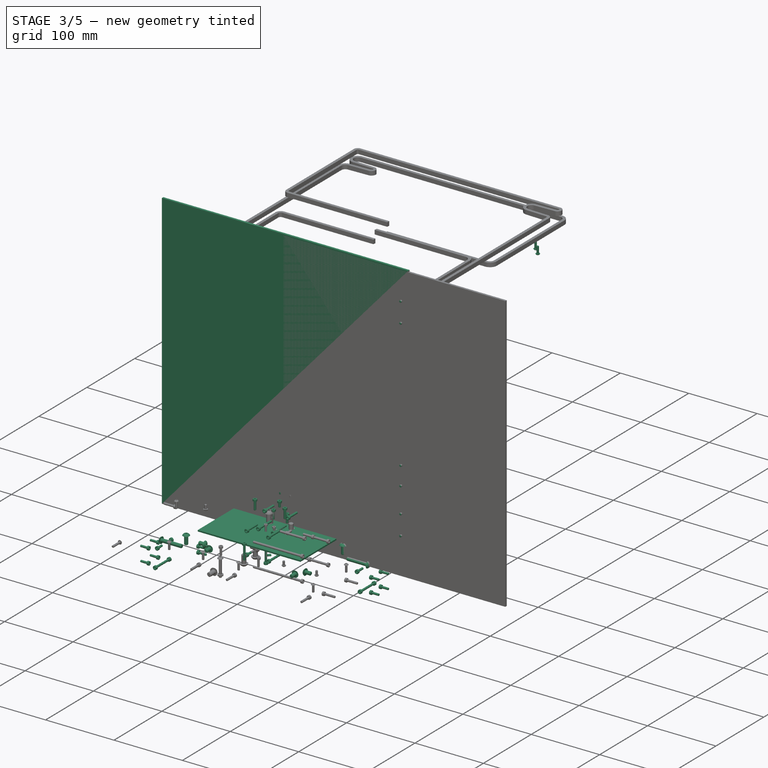
[diagram: stage 3 of 5 — iso view after this stage's code; geometry added in this stage tinted green]
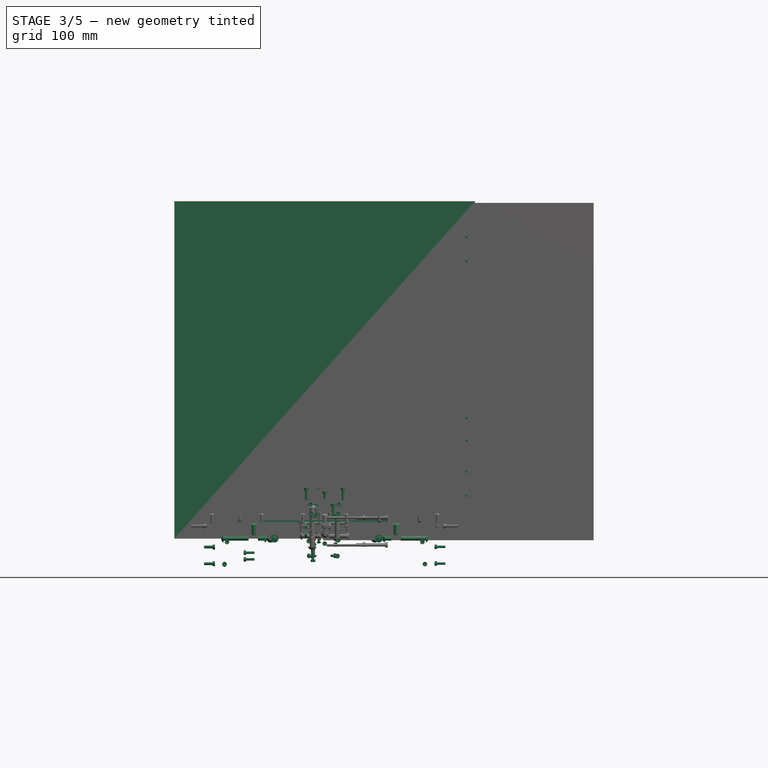
[diagram: stage 3 of 5 — front view after this stage's code; geometry added in this stage tinted green]
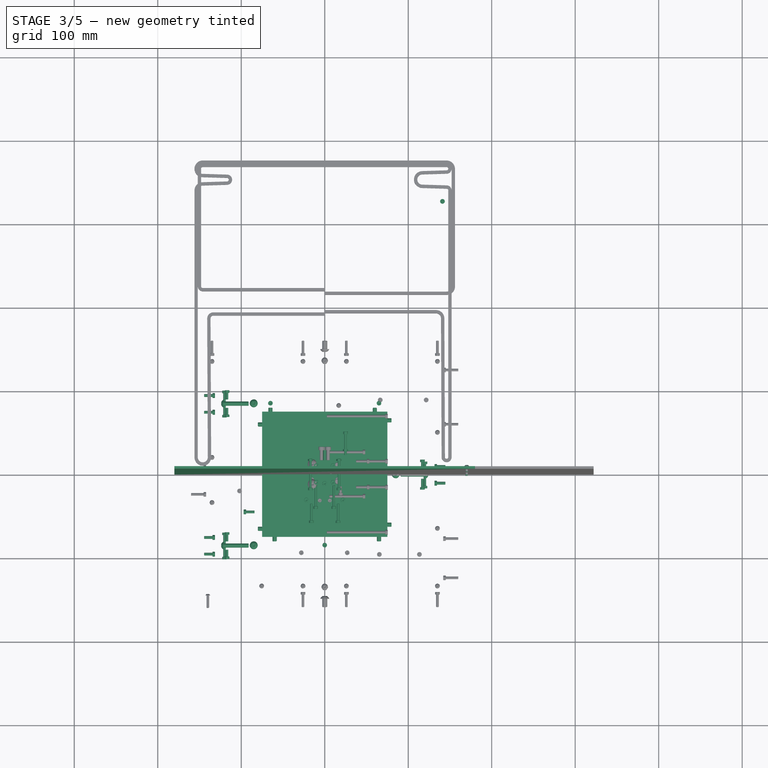
[diagram: stage 3 of 5 — top view after this stage's code; geometry added in this stage tinted green]
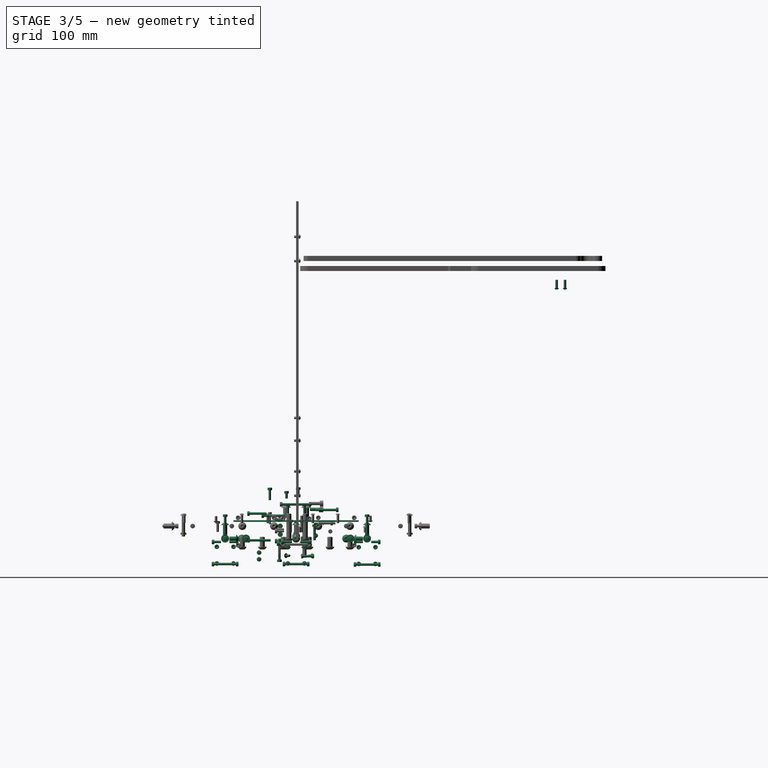
[diagram: stage 3 of 5 — right view after this stage's code; geometry added in this stage tinted green]
FEATURE [App::Part] Part112  label="filament-sensor"
  ExportMode = 1
  Group = -> [Chamfer004013007011015006009007035,Chamfer004013007011015006009007036,Cut008004003004014002002005003004003002003001003001067,Part__Feature112001105,Part__Feature112001103,Part__Feature112001104,Part__Feature112001106,Fusion006002011004053036004001028003005014021,Screw387,Screw385,Screw388,Washer144,Screw384,Cut008004003004014002002005003004003002003021022001002001001,Screw386,Screw383]
  Origin = -> Origin114
  Placement = pos=(156,296,198) rot=(0,0,-1;3.14159rad)
  _ExportChildren = -> [Chamfer004013007011015006009007035,Chamfer004013007011015006009007036,Cut008004003004014002002005003004003002003001003001067,Part__Feature112001105,Part__Feature112001103,Part__Feature112001104,Part__Feature112001106,Fusion006002011004053036004001028003005014021,Screw387,Screw385,Screw388,Washer144,Screw384,Cut008004003004014002002005003004003002003021022001002001001,Screw386,Screw383]
  _GroupVersion = 1
FEATURE [Part::FeaturePython] Screw389  label="M3x6-Screw069"  # Fasteners workbench fastener (typed FeaturePython)
  Placement = pos=(-9,-1,2.5) rot=(-1,0,0;3.14159rad)
  baseObject = -> Cut002008023012009006003002007001 [Edge60]
  diameter = 1
  invert = true
  length = 0
  lengthCustom = 6
  matchOuter = true
  offset = 0
  thread = false
  type = 39
FEATURE [Part::FeaturePython] Screw390  label="M3x6-Screw068"  # Fasteners workbench fastener (typed FeaturePython)
  Placement = pos=(1,9,2.5) rot=(-1,0,0;3.14159rad)
  baseObject = -> Cut002008023012009006003002007001 [Edge57]
  diameter = 1
  invert = true
  length = 0
  lengthCustom = 6
  matchOuter = true
  offset = 0
  thread = false
  type = 39
FEATURE [Part::FeaturePython] Washer145  label="M3-Washer123"  # Fasteners workbench fastener (typed FeaturePython)
  Placement = pos=(-7.07107,7.07107,-3.5) rot=(-1,0,0;3.14159rad)
  baseObject = -> Chamfer004001001 [Edge83]
  diameter = 4
  invert = true
  matchOuter = true
  offset = 0
  type = 5
FEATURE [Part::FeaturePython] Screw391  label="M3x6-Screw070"  # Fasteners workbench fastener (typed FeaturePython)
  Placement = pos=(-7.07107,7.07107,-4.05) rot=(-1,0,0;3.14159rad)
  baseObject = -> Washer145 [Edge1]
  diameter = 1
  invert = false
  length = 0
  lengthCustom = 6
  matchOuter = true
  offset = 0
  thread = false
  type = 39
FEATURE [Part::FeaturePython] Screw392  label="M3x6-Screw072"  # Fasteners workbench fastener (typed FeaturePython)
  Placement = pos=(12.0208,19.0919,-20.5) rot=(-0.707107,0.707107,0;1.5708rad)
  baseObject = -> Chamfer004001001 [Edge96]
  diameter = 1
  invert = true
  length = 0
  lengthCustom = 6
  matchOuter = true
  offset = 0
  thread = false
  type = 39
FEATURE [Part::FeaturePython] Screw393  label="M3x6-Screw071"  # Fasteners workbench fastener (typed FeaturePython)
  Placement = pos=(-19.0919,-12.0208,-20.5) rot=(0.707107,-0.707107,0;1.5708rad)
  baseObject = -> Chamfer004001001 [Edge88]
  diameter = 1
  invert = false
  length = 0
  lengthCustom = 6
  matchOuter = true
  offset = 0
  thread = false
  type = 39
FEATURE [App::Part] Part068  label="camera-mount"
  ExportMode = 1
  Group = -> [Cut002008023012009006003002007001,Chamfer004001001,Cut003002001,Screw390,Screw389,Washer145,Screw391,Screw393,Screw392]
  Origin = -> Origin070
  Placement = pos=(-142,313,300) rot=(0,0,1;0rad)
  _ExportChildren = -> [Cut002008023012009006003002007001,Chamfer004001001,Cut003002001,Screw390,Screw389,Washer145,Screw391,Screw393,Screw392]
  _GroupVersion = 1
FEATURE [Part::FeaturePython] Screw394  label="M3x16-Screw007"  # Fasteners workbench fastener (typed FeaturePython)
  Placement = pos=(-6,22,14) rot=(0,0,1;0rad)
  baseObject = -> Part__Mirroring001002 [Edge53]
  diameter = 4
  invert = true
  length = 10
  lengthCustom = 16
  matchOuter = true
  offset = 0
  thread = false
  type = 33
FEATURE [Part::FeaturePython] Screw395  label="M3x16-Screw006"  # Fasteners workbench fastener (typed FeaturePython)
  Placement = pos=(6,22,14) rot=(0,0,1;0rad)
  baseObject = -> Part__Mirroring001002 [Edge127]
  diameter = 4
  invert = true
  length = 10
  lengthCustom = 16
  matchOuter = true
  offset = 0
  thread = false
  type = 33
FEATURE [App::Part] Part070  label="HTU21D-mounter"
  ExportMode = 1
  Group = -> [Part__Mirroring001002,Part__Mirroring003003003008,Screw395,Screw394]
  Origin = -> Origin072
  Placement = pos=(170,296,345) rot=(0,0,1;0rad)
  _ExportChildren = -> [Part__Mirroring001002,Part__Mirroring003003003008,Screw395,Screw394]
  _GroupVersion = 1
FEATURE [Part::FeaturePython] Screw396  label="M3x10-Screw139"  # Fasteners workbench fastener (typed FeaturePython)
  Placement = pos=(141,322,300) rot=(-1,0,0;3.14159rad)
  baseObject = -> Fusion006002011004053036004001028003005014005 [Edge71]
  diameter = 1
  invert = true
  length = 2
  lengthCustom = 10
  matchOuter = true
  offset = 0
  thread = false
  type = 39
FEATURE [Part::FeaturePython] Screw397  label="M3x10-Screw138"  # Fasteners workbench fastener (typed FeaturePython)
  Placement = pos=(151,312,300) rot=(-1,0,0;3.14159rad)
  baseObject = -> Fusion006002011004053036004001028003005014005 [Edge73]
  diameter = 1
  invert = true
  length = 2
  lengthCustom = 10
  matchOuter = true
  offset = 0
  thread = false
  type = 39
FEATURE [App::Part] Part074  label="X-endstop"
  ExportMode = 1
  Group = -> [Fusion001001001011002004002001,Chamfer014001,Fusion001001001011002003,Screw398]
  Origin = -> Origin076
  Placement = pos=(-24.5,200,353) rot=(0,0,1;0rad)
  _ExportChildren = -> [Fusion001001001011002004002001,Chamfer014001,Fusion001001001011002003,Screw398]
  _GroupVersion = 1
FEATURE [Part::FeaturePython] Screw435  label="M5x20-Screw"  # Fasteners workbench fastener (typed FeaturePython)
  Placement = pos=(-14,10,-20) rot=(-1,0,0;3.14159rad)
  baseObject = -> Cut010011008009003016003 [Edge31]
  diameter = 3
  invert = true
  length = 5
  lengthCustom = 20
  matchOuter = true
  offset = 0
  thread = false
  type = 39
FEATURE [Part::FeaturePython] Screw436  label="M3x25-Screw"  # Fasteners workbench fastener (typed FeaturePython)
  Placement = pos=(-14,-20,-25) rot=(-1,0,0;3.14159rad)
  baseObject = -> Part__Mirroring001009 [Edge102]
  diameter = 4
  invert = false
  length = 8
  lengthCustom = 25
  matchOuter = true
  offset = 0
  thread = false
  type = 33
FEATURE [Part::FeaturePython] Screw437  label="M5x20-Screw001"  # Fasteners workbench fastener (typed FeaturePython)
  Placement = pos=(-14,10,-20) rot=(-1,0,0;3.14159rad)
  baseObject = -> Cut008004003004014002002005003004003002003001003001066 [Edge31]
  diameter = 3
  invert = true
  length = 5
  lengthCustom = 20
  matchOuter = true
  offset = 0
  thread = false
  type = 39
FEATURE [Part::FeaturePython] Screw438  label="M3x25-Screw022"  # Fasteners workbench fastener (typed FeaturePython)
  Placement = pos=(-14,-20,-25) rot=(-1,0,0;3.14159rad)
  baseObject = -> Part__Mirroring003003003054 [Edge102]
  diameter = 4
  invert = false
  length = 8
  lengthCustom = 25
  matchOuter = true
  offset = 0
  thread = false
  type = 33
FEATURE [Part::Feature] Part__Mirroring003003003056  label="front-rod-mounnt-dual-mn001 (Mirror #1)002"
  Placement = pos=(-4e-15,-30,0) rot=(0,0,1;3.14159rad)
  shape: bbox 29 x 28 x 40 mm, 64 faces (baked)
FEATURE [Part::Feature] Part__Mirroring003003003057  label="front-rod-mounnt-dual-mn001 (Mirror #1)003"
  Placement = pos=(-4e-15,-30,0) rot=(0,0,1;3.14159rad)
  shape: bbox 29 x 28 x 40 mm, 64 faces (baked)
FEATURE [Part::Cylinder] Cylinder016023007  label="magnet-6x3mm008"
  Angle = 360
  AttacherType = Attacher::AttachEngine3D
  Height = 3
  Placement = pos=(-21,-19,5) rot=(0,-1,0;1.5708rad)
  Radius = 3
FEATURE [Part::Cylinder] Cylinder016023008  label="magnet-6x3mm009"
  Angle = 360
  AttacherType = Attacher::AttachEngine3D
  Height = 3
  Placement = pos=(-21,-19,15) rot=(0,-1,0;1.5708rad)
  Radius = 3
FEATURE [App::Part] Part003  label="door-rail-top"
  ExportMode = 1
  Group = -> [Cut010011008009003016003,Part__Mirroring001009,Fusion018002,Cut010011008009003016002,Cut008004003004014002002005003004003002003001003001063,Screw285,Screw284,Washer006,Screw288,Screw287,Washer007,Nut010,Screw286,Screw435,Screw436,Part__Mirroring003003003056,Cylinder016023007,Cylinder016023008]
  Origin = -> Origin003
  Placement = pos=(-185,30,360) rot=(0,0,1;0rad)
  _ExportChildren = -> [Cut010011008009003016003,Part__Mirroring001009,Fusion018002,Cut010011008009003016002,Cut008004003004014002002005003004003002003001003001063,Screw285,Screw284,Washer006,Screw288,Screw287,Washer007,Nut010,Screw286,Screw435,Screw436,Part__Mirroring003003003056,Cylinder016023007,Cylinder016023008]
  _GroupVersion = 1
FEATURE [Part::Cylinder] Cylinder016023009  label="magnet-6x3mm010"
  Angle = 360
  AttacherType = Attacher::AttachEngine3D
  Height = 3
  Placement = pos=(-21,-19,5) rot=(0,-1,0;1.5708rad)
  Radius = 3
FEATURE [App::Part] Part106  label="door-rail-bottom"
  ExportMode = 1
  Group = -> [Cut008004003004014002002005003004003002003001003001066,Part__Mirroring003003003054,Fusion006002011004053036004001028003005014020,Cut008004003004014002002005003004003002003001003001065,Cylinder016023005,Cut008004003004014002002005003004003002003001003001064,Screw289,Screw290,Washer088,Screw291,Screw293,Washer089,Nut011,Screw292,Screw437,Screw438,Part__Mirroring003003003057,Cylinder016023009]
  Origin = -> Origin108
  Placement = pos=(-185,30,80) rot=(0,0,1;0rad)
  _ExportChildren = -> [Cut008004003004014002002005003004003002003001003001066,Part__Mirroring003003003054,Fusion006002011004053036004001028003005014020,Cut008004003004014002002005003004003002003001003001065,Cylinder016023005,Cut008004003004014002002005003004003002003001003001064,Screw289,Screw290,Washer088,Screw291,Screw293,Washer089,Nut011,Screw292,Screw437,Screw438,Part__Mirroring003003003057,Cylinder016023009]
  _GroupVersion = 1
FEATURE [Part::Feature] Chamfer016016008004017002013005001  label="dock-magnet-mounter001"
  Placement = pos=(185,4,48) rot=(0,0,1;0rad)
  shape: bbox 18 x 9 x 36 mm, 29 faces (baked)
FEATURE [Part::Feature] Chamfer016016008004017002013005002  label="door-hanlde-sm-mag002"
  Placement = pos=(185,4,114) rot=(0,0,1;0rad)
  shape: bbox 40 x 9 x 34 mm, 29 faces (baked)
FEATURE [Part::FeaturePython] Washer146  label="M3-Washer138"  # Fasteners workbench fastener (typed FeaturePython)
  Placement = pos=(170,3,144.5) rot=(-1,0,0;1.5708rad)
  baseObject = -> Chamfer016016008004017002013005002 [Edge52]
  diameter = 4
  invert = false
  matchOuter = true
  offset = 3
  type = 5
FEATURE [Part::FeaturePython] Screw439  label="M3x6-Screw078"  # Fasteners workbench fastener (typed FeaturePython)
  Placement = pos=(170,3.55,144.5) rot=(-1,0,0;1.5708rad)
  baseObject = -> Washer146 [Edge1]
  diameter = 1
  invert = false
  length = 0
  lengthCustom = 6
  matchOuter = true
  offset = 0
  thread = false
  type = 39
FEATURE [Part::Box] Box020  label="panel-360x404x3mm001"
  AttacherType = Attacher::AttachEngine3D
  Height = 404
  Length = 360
  Placement = pos=(-180,0,0) rot=(0,0,1;0rad)
  Width = 3
FEATURE [Part::FeaturePython] Washer148  label="M3-Washer137"  # Fasteners workbench fastener (typed FeaturePython)
  Placement = pos=(170,3,117.5) rot=(-1,0,0;1.5708rad)
  baseObject = -> Chamfer016016008004017002013005002 [Edge47]
  diameter = 4
  invert = false
  matchOuter = true
  offset = 3
  type = 5
FEATURE [Part::FeaturePython] Washer149  label="M3-Washer135"  # Fasteners workbench fastener (typed FeaturePython)
  Placement = pos=(170,3,51.5) rot=(-1,0,0;1.5708rad)
  baseObject = -> Chamfer016016008004017002013005001 [Edge25]
  diameter = 4
  invert = false
  matchOuter = true
  offset = 3
  type = 5
FEATURE [Part::FeaturePython] Screw441  label="M3x6-Screw079"  # Fasteners workbench fastener (typed FeaturePython)
  Placement = pos=(170,3.55,51.5) rot=(-1,0,0;1.5708rad)
  baseObject = -> Washer149 [Edge1]
  diameter = 1
  invert = false
  length = 0
  lengthCustom = 6
  matchOuter = true
  offset = 0
  thread = false
  type = 39
FEATURE [Part::FeaturePython] Screw442  label="M3x6-Screw077"  # Fasteners workbench fastener (typed FeaturePython)
  Placement = pos=(170,3.55,117.5) rot=(-1,0,0;1.5708rad)
  baseObject = -> Washer148 [Edge1]
  diameter = 1
  invert = false
  length = 0
  lengthCustom = 6
  matchOuter = true
  offset = 0
  thread = false
  type = 39
FEATURE [Part::Feature] Cut008004003004014002002005003004003002003021022001002001002  label="magnet-nut004"
  Placement = pos=(170,4,121) rot=(0,0,1;0rad)
  shape: bbox 16 x 7.5 x 20 mm, 17 faces (baked)
FEATURE [Part::Feature] Chamfer016016008004017002013005003  label="dock-magnet-mounter002"
  Placement = pos=(185,4,329) rot=(0,0,1;0rad)
  shape: bbox 18 x 9 x 36 mm, 29 faces (baked)
FEATURE [Part::FeaturePython] Washer147  label="M3-Washer134"  # Fasteners workbench fastener (typed FeaturePython)
  Placement = pos=(170,3,361.5) rot=(-1,0,0;1.5708rad)
  baseObject = -> Chamfer016016008004017002013005003 [Edge30]
  diameter = 4
  invert = false
  matchOuter = true
  offset = 3
  type = 5
FEATURE [Part::FeaturePython] Screw440  label="M3x6-Screw076"  # Fasteners workbench fastener (typed FeaturePython)
  Placement = pos=(170,3.55,361.5) rot=(-1,0,0;1.5708rad)
  baseObject = -> Washer147 [Edge1]
  diameter = 1
  invert = false
  length = 0
  lengthCustom = 6
  matchOuter = true
  offset = 0
  thread = false
  type = 39
FEATURE [Part::Feature] Cut008004003004014002002005003004003002003021022001002001003  label="magnet-nut005"
  Placement = pos=(170,4,56) rot=(0,0,1;0rad)
  shape: bbox 16 x 7.5 x 20 mm, 17 faces (baked)
FEATURE [Part::FeaturePython] Washer150  label="M3-Washer136"  # Fasteners workbench fastener (typed FeaturePython)
  Placement = pos=(170,3,80.5) rot=(-1,0,0;1.5708rad)
  baseObject = -> Chamfer016016008004017002013005001 [Edge30]
  diameter = 4
  invert = false
  matchOuter = true
  offset = 3
  type = 5
FEATURE [Part::FeaturePython] Washer151  label="M3-Washer133"  # Fasteners workbench fastener (typed FeaturePython)
  Placement = pos=(170,3,332.5) rot=(-1,0,0;1.5708rad)
  baseObject = -> Chamfer016016008004017002013005003 [Edge25]
  diameter = 4
  invert = false
  matchOuter = true
  offset = 3
  type = 5
FEATURE [Part::FeaturePython] Screw443  label="M3x6-Screw075"  # Fasteners workbench fastener (typed FeaturePython)
  Placement = pos=(170,3.55,332.5) rot=(-1,0,0;1.5708rad)
  baseObject = -> Washer151 [Edge1]
  diameter = 1
  invert = false
  length = 0
  lengthCustom = 6
  matchOuter = true
  offset = 0
  thread = false
  type = 39
FEATURE [Part::Feature] Cut008004003004014002002005003004003002003021022001002001004  label="magnet-nut006"
  Placement = pos=(170,4,337) rot=(0,0,1;0rad)
  shape: bbox 16 x 7.5 x 20 mm, 17 faces (baked)
FEATURE [Part::FeaturePython] Screw444  label="M3x6-Screw080"  # Fasteners workbench fastener (typed FeaturePython)
  Placement = pos=(170,3.55,80.5) rot=(-1,0,0;1.5708rad)
  baseObject = -> Washer150 [Edge1]
  diameter = 1
  invert = false
  length = 0
  lengthCustom = 6
  matchOuter = true
  offset = 0
  thread = false
  type = 39
FEATURE [App::Part] Part124  label="left-idler"
  ExportMode = 1
  Group = -> [Cut008004003004014002002005003004003002003021022001002001022,Cut008004003004014002002005003004003002003021022001002001020,Cut008004003004014002002005003004003002003021022001002001021,Chamfer019001,Chamfer020001,Screw559,Washer169,Screw560,Washer176,Cut002002002007004004001001,Screw561,Washer170,Screw557,Screw563,Washer173]
  Origin = -> Origin128
  Placement = pos=(-155,0,310) rot=(0,0,1;0rad)
  _ExportChildren = -> [Cut008004003004014002002005003004003002003021022001002001022,Cut008004003004014002002005003004003002003021022001002001020,Cut008004003004014002002005003004003002003021022001002001021,Chamfer019001,Chamfer020001,Screw559,Washer169,Screw560,Washer176,Cut002002002007004004001001,Screw561,Washer170,Screw557,Screw563,Washer173]
  _GroupVersion = 1
FEATURE [Part::Feature] Cut008004003004014002002005003004003002003021022001002001023  label="13x5.5x5-magnet006"
  shape: bbox 13 x 13 x 5 mm, 4 faces (baked)
FEATURE [Part::FeaturePython] Washer177  label="M3-Washer142"  # Fasteners workbench fastener (typed FeaturePython)
  Placement = pos=(-135,-95,-29.8) rot=(0,1,0;1.5708rad)
  diameter = 4
  invert = false
  matchOuter = true
  offset = 0
  type = 5
FEATURE [Part::Feature] Cut008004003004014002002005003004003002003021022001002001024  label="6x12mm-spacer013"
  shape: bbox 6 x 12 x 6 mm, 4 faces (baked)
FEATURE [Part::Feature] Cut008004003004014002002005003004003002003021022001002001025  label="6x12mm-spacer014"
  shape: bbox 6 x 12 x 6 mm, 4 faces (baked)
FEATURE [Part::Feature] Cut008004003004014002002005003004003002003021022001002001026  label="13x5.5x5-magnet007"
  shape: bbox 13 x 13 x 5 mm, 4 faces (baked)
FEATURE [Part::FeaturePython] Washer178  label="M3-Washer148"  # Fasteners workbench fastener (typed FeaturePython)
  Placement = pos=(-135,75,-10.3) rot=(0,1,0;1.5708rad)
  diameter = 4
  invert = false
  matchOuter = true
  offset = 0
  type = 5
FEATURE [Part::FeaturePython] Washer179  label="M3-Washer145"  # Fasteners workbench fastener (typed FeaturePython)
  Placement = pos=(-135,95,-30.3) rot=(0,1,0;1.5708rad)
  diameter = 4
  invert = false
  matchOuter = true
  offset = 0
  type = 5
FEATURE [Part::FeaturePython] Screw566  label="M3x10-Screw121"  # Fasteners workbench fastener (typed FeaturePython)
  Placement = pos=(-134.45,95,-30.3) rot=(0,1,0;1.5708rad)
  baseObject = -> Washer179 [Edge1]
  diameter = 4
  invert = false
  length = 3
  lengthCustom = 10
  matchOuter = true
  offset = 0
  thread = false
  type = 33
FEATURE [Part::Feature] Solid004  label="2020-bracket004"
  Placement = pos=(-75,-75,-1.7e-14) rot=(0,1,0;1.5708rad)
  shape: bbox 20 x 20 x 14 mm, 10 faces (baked)
FEATURE [Part::FeaturePython] Screw569  label="M5x8-Screw"  # Fasteners workbench fastener (typed FeaturePython)
  Placement = pos=(-60,-72,-1.79e-14) rot=(-1,0,0;1.5708rad)
  baseObject = -> Solid004 [Edge13]
  diameter = 3
  invert = false
  length = 0
  lengthCustom = 8
  matchOuter = true
  offset = 0
  thread = false
  type = 39
FEATURE [Part::Feature] Solid005  label="2020-bracket005"
  Placement = pos=(75,-75,1.6e-14) rot=(0.57735,-0.57735,-0.57735;4.18879rad)
  shape: bbox 20 x 20 x 14 mm, 10 faces (baked)
FEATURE [Part::FeaturePython] Screw568  label="M5x8-Screw016"  # Fasteners workbench fastener (typed FeaturePython)
  Placement = pos=(72,-60,1.51e-14) rot=(0,-1,0;1.5708rad)
  baseObject = -> Solid005 [Edge13]
  diameter = 3
  invert = false
  length = 0
  lengthCustom = 8
  matchOuter = true
  offset = 0
  thread = false
  type = 39
FEATURE [Part::FeaturePython] Washer181  label="M3-Washer150"  # Fasteners workbench fastener (typed FeaturePython)
  Placement = pos=(135,10,-9.8) rot=(0,-1,0;1.5708rad)
  diameter = 4
  invert = true
  matchOuter = true
  offset = 0
  type = 5
FEATURE [Part::FeaturePython] Washer182  label="M3-Washer143"  # Fasteners workbench fastener (typed FeaturePython)
  Placement = pos=(-135,-95,-9.8) rot=(0,1,0;1.5708rad)
  diameter = 4
  invert = false
  matchOuter = true
  offset = 0
  type = 5
FEATURE [Part::Feature] Cut008004003004014002002005003004003002003021022001002001027  label="6x12mm-spacer015"
  shape: bbox 6 x 12 x 6 mm, 4 faces (baked)
FEATURE [Part::FeaturePython] Washer183  label="M3-Washer147"  # Fasteners workbench fastener (typed FeaturePython)
  Placement = pos=(-135,75,-30.3) rot=(0,1,0;1.5708rad)
  diameter = 4
  invert = false
  matchOuter = true
  offset = 0
  type = 5
FEATURE [Part::FeaturePython] Screw573  label="M3x10-Screw117"  # Fasteners workbench fastener (typed FeaturePython)
  Placement = pos=(-134.45,-95,-29.8) rot=(0,1,0;1.5708rad)
  baseObject = -> Washer177 [Edge1]
  diameter = 4
  invert = false
  length = 3
  lengthCustom = 10
  matchOuter = true
  offset = 0
  thread = false
  type = 33
FEATURE [Part::Feature] Chamfer004013007011015006009007001011  label="bed-frame-mount-top007"
  Placement = pos=(-142,85,-45) rot=(0,0,1;0rad)
  shape: bbox 51 x 20 x 25 mm, 56 faces (baked)
FEATURE [Part::FeaturePython] Washer180  label="M5-Washer"  # Fasteners workbench fastener (typed FeaturePython)
  Placement = pos=(-120,85,0) rot=(0,-1,0;1.5708rad)
  baseObject = -> Chamfer004013007011015006009007001011 [Edge86]
  diameter = 6
  invert = true
  matchOuter = true
  offset = 0
  type = 5
FEATURE [Part::FeaturePython] Washer184  label="M3-Washer146"  # Fasteners workbench fastener (typed FeaturePython)
  Placement = pos=(-135,95,-10.3) rot=(0,1,0;1.5708rad)
  diameter = 4
  invert = false
  matchOuter = true
  offset = 0
  type = 5
FEATURE [Part::FeaturePython] Screw570  label="M3x10-Screw122"  # Fasteners workbench fastener (typed FeaturePython)
  Placement = pos=(-134.45,95,-10.3) rot=(0,1,0;1.5708rad)
  baseObject = -> Washer184 [Edge1]
  diameter = 4
  invert = false
  length = 3
  lengthCustom = 10
  matchOuter = true
  offset = 0
  thread = false
  type = 33
FEATURE [Part::FeaturePython] Screw574  label="M3x10-Screw120"  # Fasteners workbench fastener (typed FeaturePython)
  Placement = pos=(-134.45,75,-30.3) rot=(0,1,0;1.5708rad)
  baseObject = -> Washer183 [Edge1]
  diameter = 4
  invert = false
  length = 3
  lengthCustom = 10
  matchOuter = true
  offset = 0
  thread = false
  type = 33
FEATURE [Part::Feature] Cut008004003004014002002005003004003002003021022001002001028  label="13x5.5x5-magnet008"
  shape: bbox 13 x 13 x 5 mm, 4 faces (baked)
FEATURE [Part::Sphere] Sphere003  label="8mm-ball-bearing003"
  Angle1 = -90
  Angle2 = 90
  Angle3 = 360
  AttacherType = Attacher::AttachEngine3D
  Placement = pos=(0,0,4.9) rot=(0,0,1;0rad)
  Radius = 4
FEATURE [Part::FeaturePython] Screw578  label="M5x8-Screw017"  # Fasteners workbench fastener (typed FeaturePython)
  Placement = pos=(65,-72,1.6e-14) rot=(-1,0,0;1.5708rad)
  baseObject = -> Solid005 [Edge1]
  diameter = 3
  invert = false
  length = 0
  lengthCustom = 8
  matchOuter = true
  offset = 0
  thread = false
  type = 39
FEATURE [Part::FeaturePython] Screw579  label="M3x8-Screw100"  # Fasteners workbench fastener (typed FeaturePython)
  Placement = pos=(-117,72,-4) rot=(1,0,0;1.5708rad)
  baseObject = -> Chamfer004013007011015006009007001011 [Edge132]
  diameter = 4
  invert = false
  length = 2
  lengthCustom = 8
  matchOuter = false
  offset = 3
  thread = false
  type = 33
FEATURE [Part::Feature] Cut008004003004014002002005003004003002003021022001002001029  label="6x12mm-spacer016"
  shape: bbox 6 x 12 x 6 mm, 4 faces (baked)
FEATURE [Part::FeaturePython] Washer185  label="M3-Washer144"  # Fasteners workbench fastener (typed FeaturePython)
  Placement = pos=(-135,-75,-9.8) rot=(0,1,0;1.5708rad)
  diameter = 4
  invert = false
  matchOuter = true
  offset = 0
  type = 5
FEATURE [Part::Feature] Solid006  label="2020-bracket006"
  Placement = pos=(-75,75,-1.7e-14) rot=(0.57735,0.57735,-0.57735;2.0944rad)
  shape: bbox 20 x 20 x 14 mm, 10 faces (baked)
FEATURE [App::Part] Part129  label="bed-frame-mount001"
  ExportMode = 1
  Origin = -> Origin136
  _GroupVersion = 1
FEATURE [App::Part] Part130  label="bed-rail-mount001"
  ExportMode = 1
  Origin = -> Origin133
  _GroupVersion = 1
FEATURE [Part::FeaturePython] Screw580  label="M3x10-Screw119"  # Fasteners workbench fastener (typed FeaturePython)
  Placement = pos=(-134.45,-75,-9.8) rot=(0,1,0;1.5708rad)
  baseObject = -> Washer185 [Edge1]
  diameter = 4
  invert = false
  length = 3
  lengthCustom = 10
  matchOuter = true
  offset = 0
  thread = false
  type = 33
FEATURE [Part::FeaturePython] Washer188  label="M3-Washer152"  # Fasteners workbench fastener (typed FeaturePython)
  Placement = pos=(135,-10,-29.8) rot=(0,-1,0;1.5708rad)
  diameter = 4
  invert = true
  matchOuter = true
  offset = 0
  type = 5
FEATURE [Part::Feature] AdditivePipe006  label="15mm-spring004"
  Placement = pos=(0,-85,10) rot=(0,0,1;0rad)
  shape: bbox 10.45 x 11.2 x 10.36 mm, 42 faces (baked)
FEATURE [Part::Feature] AdditivePipe007  label="15mm-spring005"
  Placement = pos=(65,85,10) rot=(0,0,1;0rad)
  shape: bbox 10.45 x 11.2 x 10.36 mm, 42 faces (baked)
FEATURE [Part::Feature] AdditivePipe008  label="15mm-spring006"
  Placement = pos=(-65,85,10) rot=(0,0,1;0rad)
  shape: bbox 10.45 x 11.2 x 10.36 mm, 42 faces (baked)
FEATURE [Part::FeaturePython] Screw583  label="M5x8-Screw021"  # Fasteners workbench fastener (typed FeaturePython)
  Placement = pos=(-72,60,-1.79e-14) rot=(0,1,0;1.5708rad)
  baseObject = -> Solid006 [Edge13]
  diameter = 3
  invert = false
  length = 0
  lengthCustom = 8
  matchOuter = true
  offset = 0
  thread = false
  type = 39
FEATURE [Part::Feature] Fusion004025012001001  label="slider-y002"
  Placement = pos=(-142,-85,-42.5) rot=(0,0,1;0rad)
  shape: bbox 45 x 37.5 x 48.4 mm, 89 faces (baked)
FEATURE [Part::Sphere] Sphere004  label="8mm-ball-bearing004"
  Angle1 = -90
  Angle2 = 90
  Angle3 = 360
  AttacherType = Attacher::AttachEngine3D
  Placement = pos=(0,0,4.9) rot=(0,0,1;0rad)
  Radius = 4
FEATURE [App::Part] Part131  label="bed-magnet-slider005"
  ExportMode = 1
  Group = -> [Sphere004,Cut008004003004014002002005003004003002003021022001002001023,Cut008004003004014002002005003004003002003021022001002001027,Cut008004003004014002002005003004003002003021022001002001029]
  Origin = -> Origin130
  Placement = pos=(-120,85,-20) rot=(0,0,1;0rad)
  _ExportChildren = -> [Sphere004,Cut008004003004014002002005003004003002003021022001002001023,Cut008004003004014002002005003004003002003021022001002001027,Cut008004003004014002002005003004003002003021022001002001029]
  _GroupVersion = 1
FEATURE [Part::Feature] Extrude002002002010  label="2020-190mm003"
  Placement = pos=(-85,-95,2.1e-14) rot=(-1,0,0;1.5708rad)
  shape: bbox 20 x 190 x 20 mm, 63 faces (baked)
FEATURE [Part::FeaturePython] Washer189  label="M3-Washer141"  # Fasteners workbench fastener (typed FeaturePython)
  Placement = pos=(-135,-75,-29.8) rot=(0,1,0;1.5708rad)
  diameter = 4
  invert = false
  matchOuter = true
  offset = 0
  type = 5
FEATURE [Part::FeaturePython] Screw564  label="M3x10-Screw116"  # Fasteners workbench fastener (typed FeaturePython)
  Placement = pos=(-134.45,-75,-29.8) rot=(0,1,0;1.5708rad)
  baseObject = -> Washer189 [Edge1]
  diameter = 4
  invert = false
  length = 3
  lengthCustom = 10
  matchOuter = true
  offset = 0
  thread = false
  type = 33
FEATURE [Part::Feature] Extrude002002002011  label="2020-190mm004"
  Placement = pos=(85,-95,2.1e-14) rot=(-1,0,0;1.5708rad)
  shape: bbox 20 x 190 x 20 mm, 63 faces (baked)
FEATURE [Part::Feature] Extrude002002002012  label="2020-150mm003"
  Placement = pos=(-75,85,-1.7e-14) rot=(0,1,0;1.5708rad)
  shape: bbox 150 x 20 x 20 mm, 63 faces (baked)
FEATURE [Part::Feature] Extrude002002002013  label="2020-150mm004"
  Placement = pos=(-75,-85,-1.7e-14) rot=(0,1,0;1.5708rad)
  shape: bbox 150 x 20 x 20 mm, 63 faces (baked)
FEATURE [App::Part] Part128  label="bed-frame001"
  ExportMode = 1
  Group = -> [Extrude002002002010,Extrude002002002013,Extrude002002002011,Extrude002002002012]
  Origin = -> Origin134
  _ExportChildren = -> [Extrude002002002010,Extrude002002002013,Extrude002002002011,Extrude002002002012]
  _GroupVersion = 1
FEATURE [Part::Box] Box021  label="150mm-heater-pad001"
  AttacherType = Attacher::AttachEngine3D
  Height = 2
  Length = 150
  Placement = pos=(-75,-75,20) rot=(0,0,1;0rad)
  Width = 150
FEATURE [Part::FeaturePython] Screw585  label="M3x8-Screw101"  # Fasteners workbench fastener (typed FeaturePython)
  Placement = pos=(-117,98,-4) rot=(-1,0,0;1.5708rad)
  baseObject = -> Chamfer004013007011015006009007001011 [Edge138]
  diameter = 4
  invert = true
  length = 2
  lengthCustom = 8
  matchOuter = false
  offset = 3
  thread = false
  type = 33
FEATURE [Part::Feature] Cut008004003004014002002005003004003002003021022001002001030  label="6x12mm-spacer017"
  shape: bbox 6 x 12 x 6 mm, 4 faces (baked)
FEATURE [Part::FeaturePython] Screw586  label="M3x10-Screw124"  # Fasteners workbench fastener (typed FeaturePython)
  Placement = pos=(134.45,10,-9.8) rot=(0,-1,0;1.5708rad)
  baseObject = -> Washer181 [Edge1]
  diameter = 4
  invert = false
  length = 10
  lengthCustom = 10
  matchOuter = true
  offset = 0
  thread = false
  type = 33
FEATURE [Part::FeaturePython] Screw587  label="M3x10-Screw126"  # Fasteners workbench fastener (typed FeaturePython)
  Placement = pos=(134.45,-10,-29.8) rot=(0,-1,0;1.5708rad)
  baseObject = -> Washer188 [Edge1]
  diameter = 4
  invert = false
  length = 10
  lengthCustom = 10
  matchOuter = true
  offset = 0
  thread = false
  type = 33
FEATURE [Part::FeaturePython] Screw588  label="M3x10-Screw123"  # Fasteners workbench fastener (typed FeaturePython)
  Placement = pos=(-134.45,75,-10.3) rot=(0,1,0;1.5708rad)
  baseObject = -> Washer178 [Edge1]
  diameter = 4
  invert = false
  length = 3
  lengthCustom = 10
  matchOuter = true
  offset = 0
  thread = false
  type = 33
FEATURE [Part::Feature] Cut008004003004014002002005003004003002003021022001002001031  label="6x12mm-spacer018"
  shape: bbox 6 x 12 x 6 mm, 4 faces (baked)
FEATURE [App::Part] Part132  label="bed-magnet-slider006"
  ExportMode = 1
  Group = -> [Sphere003,Cut008004003004014002002005003004003002003021022001002001028,Cut008004003004014002002005003004003002003021022001002001030,Cut008004003004014002002005003004003002003021022001002001031]
  Origin = -> Origin131
  Placement = pos=(120,0,-20) rot=(0,0,1;1.5708rad)
  _ExportChildren = -> [Sphere003,Cut008004003004014002002005003004003002003021022001002001028,Cut008004003004014002002005003004003002003021022001002001030,Cut008004003004014002002005003004003002003021022001002001031]
  _GroupVersion = 1
FEATURE [Part::FeaturePython] Washer190  label="M5-Washer028"  # Fasteners workbench fastener (typed FeaturePython)
  Placement = pos=(-85,85,15) rot=(0,0,1;0rad)
  baseObject = -> Chamfer004013007011015006009007001011 [Edge58]
  diameter = 1
  invert = false
  matchOuter = true
  offset = 0
  type = 4
FEATURE [Part::Sphere] Sphere005  label="8mm-ball-bearing005"
  Angle1 = -90
  Angle2 = 90
  Angle3 = 360
  AttacherType = Attacher::AttachEngine3D
  Placement = pos=(0,0,4.9) rot=(0,0,1;0rad)
  Radius = 4
FEATURE [App::Part] Part126  label="bed-magnet-slider004"
  ExportMode = 1
  Group = -> [Sphere005,Cut008004003004014002002005003004003002003021022001002001026,Cut008004003004014002002005003004003002003021022001002001025,Cut008004003004014002002005003004003002003021022001002001024]
  Origin = -> Origin129
  Placement = pos=(-120,-85,-20) rot=(0,0,1;0rad)
  _ExportChildren = -> [Sphere005,Cut008004003004014002002005003004003002003021022001002001026,Cut008004003004014002002005003004003002003021022001002001025,Cut008004003004014002002005003004003002003021022001002001024]
  _GroupVersion = 1
FEATURE [App::Part] Part127  label="bed-magnet001"
  ExportMode = 1
  Group = -> [Part132,Part131,Part126]
  Origin = -> Origin135
  _ExportChildren = -> [Part132,Part131,Part126]
  _GroupVersion = 1
FEATURE [Part::FeaturePython] Screw592  label="M5x8-Screw020"  # Fasteners workbench fastener (typed FeaturePython)
  Placement = pos=(-65,72,-1.7e-14) rot=(1,0,0;1.5708rad)
  baseObject = -> Solid006 [Edge1]
  diameter = 3
  invert = false
  length = 0
  lengthCustom = 8
  matchOuter = true
  offset = 0
  thread = false
  type = 39
FEATURE [Part::FeaturePython] Screw594  label="M5x12-Screw"  # Fasteners workbench fastener (typed FeaturePython)
  Placement = pos=(-85,85,16.1) rot=(0,0,1;0rad)
  baseObject = -> Washer190 [Edge1]
  diameter = 3
  invert = false
  length = 2
  lengthCustom = 12
  matchOuter = true
  offset = 0
  thread = false
  type = 39
FEATURE [Part::Feature] Part__Mirroring001  label="slider-x002 (Mirror #1)001"
  Placement = pos=(142,0,-42.5) rot=(0,0,1;0rad)
  shape: bbox 43 x 37.5 x 48.4 mm, 87 faces (baked)
FEATURE [Part::FeaturePython] Washer191  label="M3-Washer149"  # Fasteners workbench fastener (typed FeaturePython)
  Placement = pos=(135,-10,-9.8) rot=(0,-1,0;1.5708rad)
  diameter = 4
  invert = true
  matchOuter = true
  offset = 0
  type = 5
FEATURE [Part::FeaturePython] Screw590  label="M3x10-Screw127"  # Fasteners workbench fastener (typed FeaturePython)
  Placement = pos=(134.45,-10,-9.8) rot=(0,-1,0;1.5708rad)
  baseObject = -> Washer191 [Edge1]
  diameter = 4
  invert = false
  length = 10
  lengthCustom = 10
  matchOuter = true
  offset = 0
  thread = false
  type = 33
FEATURE [Part::FeaturePython] Screw596  label="M5x8-Screw015"  # Fasteners workbench fastener (typed FeaturePython)
  Placement = pos=(-72,-65,-1.7e-14) rot=(0,1,0;1.5708rad)
  baseObject = -> Solid004 [Edge1]
  diameter = 3
  invert = false
  length = 0
  lengthCustom = 8
  matchOuter = true
  offset = 0
  thread = false
  type = 39
FEATURE [Part::Feature] Solid007  label="2020-bracket007"
  Placement = pos=(75,75,1.6e-14) rot=(0.707107,0,-0.707107;3.14159rad)
  shape: bbox 20 x 20 x 14 mm, 10 faces (baked)
FEATURE [Part::FeaturePython] Screw576  label="M5x8-Screw019"  # Fasteners workbench fastener (typed FeaturePython)
  Placement = pos=(72,65,1.6e-14) rot=(0,-1,0;1.5708rad)
  baseObject = -> Solid007 [Edge1]
  diameter = 3
  invert = false
  length = 0
  lengthCustom = 8
  matchOuter = true
  offset = 0
  thread = false
  type = 39
FEATURE [Part::FeaturePython] Screw584  label="M5x8-Screw018"  # Fasteners workbench fastener (typed FeaturePython)
  Placement = pos=(60,72,1.51e-14) rot=(1,0,0;1.5708rad)
  baseObject = -> Solid007 [Edge13]
  diameter = 3
  invert = false
  length = 0
  lengthCustom = 8
  matchOuter = true
  offset = 0
  thread = false
  type = 39
FEATURE [Part::Feature] Fusion004025012001002  label="slider-y003"
  Placement = pos=(-142,85,-43) rot=(0,0,1;0rad)
  shape: bbox 45 x 37.5 x 48.4 mm, 89 faces (baked)
FEATURE [Part::Feature] Chamfer004013007011015006009007001012  label="bed-frame-mount-top008"
  Placement = pos=(142,-2.9e-14,-45) rot=(0,0,1;3.14159rad)
  shape: bbox 51 x 20 x 25 mm, 56 faces (baked)
FEATURE [Part::FeaturePython] Screw565  label="M3x10-Screw129"  # Fasteners workbench fastener (typed FeaturePython)
  Placement = pos=(117,-15,-4) rot=(1,0,0;1.5708rad)
  baseObject = -> Chamfer004013007011015006009007001012 [Edge138]
  diameter = 4
  invert = true
  length = 10
  lengthCustom = 10
  matchOuter = true
  offset = 5
  thread = false
  type = 33
FEATURE [Part::FeaturePython] Washer186  label="M5-Washer032"  # Fasteners workbench fastener (typed FeaturePython)
  Placement = pos=(85,-2.9e-14,15) rot=(0,0,1;0rad)
  baseObject = -> Chamfer004013007011015006009007001012 [Edge58]
  diameter = 1
  invert = false
  matchOuter = true
  offset = 0
  type = 4
FEATURE [Part::FeaturePython] Screw577  label="M5x12-Screw006"  # Fasteners workbench fastener (typed FeaturePython)
  Placement = pos=(85,-2.9e-14,16.1) rot=(0,0,1;0rad)
  baseObject = -> Washer186 [Edge1]
  diameter = 3
  invert = false
  length = 2
  lengthCustom = 12
  matchOuter = true
  offset = 0
  thread = false
  type = 39
FEATURE [Part::FeaturePython] Screw589  label="M3x10-Screw128"  # Fasteners workbench fastener (typed FeaturePython)
  Placement = pos=(117,15,-4) rot=(-1,0,0;1.5708rad)
  baseObject = -> Chamfer004013007011015006009007001012 [Edge132]
  diameter = 4
  invert = false
  length = 10
  lengthCustom = 10
  matchOuter = true
  offset = 5
  thread = false
  type = 33
FEATURE [Part::FeaturePython] Washer026  label="M5-Washer031"  # Fasteners workbench fastener (typed FeaturePython)
  Placement = pos=(120,-2.9e-14,0) rot=(0,1,0;1.5708rad)
  baseObject = -> Chamfer004013007011015006009007001012 [Edge86]
  diameter = 6
  invert = true
  matchOuter = true
  offset = 0
  type = 5
FEATURE [Part::FeaturePython] Screw595  label="M5x30-Screw007"  # Fasteners workbench fastener (typed FeaturePython)
  Placement = pos=(121.1,-2.9e-14,-2e-16) rot=(0,1,0;1.5708rad)
  baseObject = -> Washer026 [Edge1]
  diameter = 3
  invert = false
  length = 7
  lengthCustom = 30
  matchOuter = true
  offset = 0
  thread = false
  type = 39
FEATURE [Part::FeaturePython] Screw597  label="M3x14-Screw046"  # Fasteners workbench fastener (typed FeaturePython)
  Placement = pos=(-120,-72,-30.5) rot=(-1,0,0;1.5708rad)
  baseObject = -> Fusion004025012001001 [Edge90]
  diameter = 4
  invert = true
  length = 5
  lengthCustom = 14
  matchOuter = true
  offset = 6.5
  thread = false
  type = 33
FEATURE [Part::FeaturePython] Screw598  label="M3x14-Screw047"  # Fasteners workbench fastener (typed FeaturePython)
  Placement = pos=(-120,-98,-30.5) rot=(1,0,0;1.5708rad)
  baseObject = -> Fusion004025012001001 [Edge118]
  diameter = 4
  invert = false
  length = 5
  lengthCustom = 14
  matchOuter = true
  offset = 6.5
  thread = false
  type = 33
FEATURE [Part::Feature] Chamfer004013007011015006009007001013  label="bed-frame-mount-top009"
  Placement = pos=(-142,-85,-45) rot=(0,0,1;0rad)
  shape: bbox 51 x 20 x 25 mm, 56 faces (baked)
FEATURE [Part::FeaturePython] Screw567  label="M3x8-Screw103"  # Fasteners workbench fastener (typed FeaturePython)
  Placement = pos=(-117,-72,-4) rot=(-1,0,0;1.5708rad)
  baseObject = -> Chamfer004013007011015006009007001013 [Edge138]
  diameter = 4
  invert = true
  length = 2
  lengthCustom = 8
  matchOuter = false
  offset = 3
  thread = false
  type = 33
FEATURE [Part::FeaturePython] Screw572  label="M3x8-Screw102"  # Fasteners workbench fastener (typed FeaturePython)
  Placement = pos=(-117,-98,-4) rot=(1,0,0;1.5708rad)
  baseObject = -> Chamfer004013007011015006009007001013 [Edge132]
  diameter = 4
  invert = false
  length = 2
  lengthCustom = 8
  matchOuter = false
  offset = 3
  thread = false
  type = 33
FEATURE [Part::FeaturePython] Washer187  label="M5-Washer030"  # Fasteners workbench fastener (typed FeaturePython)
  Placement = pos=(-85,-85,15) rot=(0,0,1;0rad)
  baseObject = -> Chamfer004013007011015006009007001013 [Edge58]
  diameter = 1
  invert = false
  matchOuter = true
  offset = 0
  type = 4
FEATURE [Part::FeaturePython] Screw571  label="M5x12-Screw005"  # Fasteners workbench fastener (typed FeaturePython)
  Placement = pos=(-85,-85,16.1) rot=(0,0,1;0rad)
  baseObject = -> Washer187 [Edge1]
  diameter = 3
  invert = false
  length = 2
  lengthCustom = 12
  matchOuter = true
  offset = 0
  thread = false
  type = 39
FEATURE [Part::FeaturePython] Screw599  label="M5x30-Screw"  # Fasteners workbench fastener (typed FeaturePython)
  Placement = pos=(-121.1,85,-2e-16) rot=(0,-1,0;1.5708rad)
  baseObject = -> Washer180 [Edge1]
  diameter = 3
  invert = false
  length = 7
  lengthCustom = 30
  matchOuter = true
  offset = 0
  thread = false
  type = 39
FEATURE [Part::FeaturePython] Washer192  label="M5-Washer029"  # Fasteners workbench fastener (typed FeaturePython)
  Placement = pos=(-120,-85,0) rot=(0,-1,0;1.5708rad)
  baseObject = -> Chamfer004013007011015006009007001013 [Edge86]
  diameter = 6
  invert = true
  matchOuter = true
  offset = 0
  type = 5
FEATURE [Part::FeaturePython] Screw581  label="M5x30-Screw006"  # Fasteners workbench fastener (typed FeaturePython)
  Placement = pos=(-121.1,-85,-2e-16) rot=(0,-1,0;1.5708rad)
  baseObject = -> Washer192 [Edge1]
  diameter = 3
  invert = false
  length = 7
  lengthCustom = 30
  matchOuter = true
  offset = 0
  thread = false
  type = 39
FEATURE [Part::Feature] Cut008004003004014002002005003004003002003021022001002001032  label="190-aluminum-bed001"
  shape: bbox 190 x 190 x 8 mm, 15 faces (baked)
FEATURE [Part::FeaturePython] Screw575  label="M3x20-Screw010"  # Fasteners workbench fastener (typed FeaturePython)
  Placement = pos=(65,85,26) rot=(0,0,1;0rad)
  baseObject = -> Cut008004003004014002002005003004003002003021022001002001032 [Edge29]
  diameter = 4
  invert = false
  length = 10
  lengthCustom = 20
  matchOuter = true
  offset = 0
  thread = false
  type = 33
FEATURE [Part::FeaturePython] Screw582  label="M3x20-Screw011"  # Fasteners workbench fastener (typed FeaturePython)
  Placement = pos=(0,-85,26) rot=(0,0,1;0rad)
  baseObject = -> Cut008004003004014002002005003004003002003021022001002001032 [Edge25]
  diameter = 4
  invert = false
  length = 10
  lengthCustom = 20
  matchOuter = true
  offset = 0
  thread = false
  type = 33
FEATURE [Part::FeaturePython] Screw593  label="M3x20-Screw"  # Fasteners workbench fastener (typed FeaturePython)
  Placement = pos=(-65,85,26) rot=(0,0,1;0rad)
  baseObject = -> Cut008004003004014002002005003004003002003021022001002001032 [Edge27]
  diameter = 4
  invert = false
  length = 10
  lengthCustom = 20
  matchOuter = true
  offset = 0
  thread = false
  type = 33
FEATURE [Part::FeaturePython] Screw600  label="M3x10-Screw118"  # Fasteners workbench fastener (typed FeaturePython)
  Placement = pos=(-134.45,-95,-9.8) rot=(0,1,0;1.5708rad)
  baseObject = -> Washer182 [Edge1]
  diameter = 4
  invert = false
  length = 3
  lengthCustom = 10
  matchOuter = true
  offset = 0
  thread = false
  type = 33
FEATURE [Part::FeaturePython] Washer193  label="M3-Washer151"  # Fasteners workbench fastener (typed FeaturePython)
  Placement = pos=(135,10,-29.8) rot=(0,-1,0;1.5708rad)
  diameter = 4
  invert = true
  matchOuter = true
  offset = 0
  type = 5
FEATURE [Part::FeaturePython] Screw591  label="M3x10-Screw125"  # Fasteners workbench fastener (typed FeaturePython)
  Placement = pos=(134.45,10,-29.8) rot=(0,-1,0;1.5708rad)
  baseObject = -> Washer193 [Edge1]
  diameter = 4
  invert = false
  length = 10
  lengthCustom = 10
  matchOuter = true
  offset = 0
  thread = false
  type = 33
FEATURE [Part::FeaturePython] Screw601  label="M3x14-Screw049"  # Fasteners workbench fastener (typed FeaturePython)
  Placement = pos=(-120,98,-31) rot=(-1,0,0;1.5708rad)
  baseObject = -> Fusion004025012001002 [Edge90]
  diameter = 4
  invert = true
  length = 5
  lengthCustom = 14
  matchOuter = true
  offset = 6.5
  thread = false
  type = 33
FEATURE [Part::FeaturePython] Screw602  label="M3x14-Screw048"  # Fasteners workbench fastener (typed FeaturePython)
  Placement = pos=(-120,72,-31) rot=(1,0,0;1.5708rad)
  baseObject = -> Fusion004025012001002 [Edge118]
  diameter = 4
  invert = false
  length = 5
  lengthCustom = 14
  matchOuter = true
  offset = 6.5
  thread = false
  type = 33
FEATURE [Part::FeaturePython] Screw603  label="M3x14-Screw051"  # Fasteners workbench fastener (typed FeaturePython)
  Placement = pos=(120,-13,-30.5) rot=(1,0,0;1.5708rad)
  baseObject = -> Part__Mirroring001 [Edge118]
  diameter = 4
  invert = true
  length = 5
  lengthCustom = 14
  matchOuter = true
  offset = 6.5
  thread = false
  type = 33
FEATURE [Part::FeaturePython] Screw604  label="M3x14-Screw050"  # Fasteners workbench fastener (typed FeaturePython)
  Placement = pos=(120,13,-30.5) rot=(-1,0,0;1.5708rad)
  baseObject = -> Part__Mirroring001 [Edge90]
  diameter = 4
  invert = false
  length = 5
  lengthCustom = 14
  matchOuter = true
  offset = 6.5
  thread = false
  type = 33
FEATURE [App::Part] Part135  label="right-motor-mount"
  ExportMode = 1
  Group = -> [Part__Mirroring003003003067,Part__Mirroring009003004003,Part__Mirroring003003003068,Part__Mirroring003003003069,Part__Mirroring003003003066,Part__Mirroring002001,Part__Mirroring009003004002,Part__Mirroring009003004004,Cut008004003004014002002005003004003002003021022001002001039,Screw617,Screw613,Screw611,Washer198,Screw614,Washer197,Screw609,Screw610,Nut028,Screw618,Screw616,Screw612,Washer201,+7 more]
  Origin = -> Origin138
  Placement = pos=(155,370,310) rot=(0,0,1;0rad)
  _ExportChildren = -> [Part__Mirroring003003003067,Part__Mirroring009003004003,Part__Mirroring003003003068,Part__Mirroring003003003069,Part__Mirroring003003003066,Part__Mirroring002001,Part__Mirroring009003004002,Part__Mirroring009003004004,Cut008004003004014002002005003004003002003021022001002001039,Screw617,Screw613,Screw611,Washer198,Screw614,Washer197,Screw609,Screw610,Nut028,Screw618,Screw616,Screw612,Washer201,+7 more]
  _GroupVersion = 1
FEATURE [Part::Feature] Fillet001001001  label="face-plate-rf002"
  Placement = pos=(0,-13,10) rot=(1,0,0;1.5708rad)
  shape: bbox 48 x 8 x 57 mm, 236 faces (baked)
FEATURE [Part::Feature] Cut008004003012001003001010001002  label="belt-clamp005"
  Placement = pos=(-19,-18.5,4) rot=(0,0.707107,-0.707107;3.14159rad)
  shape: bbox 8 x 4 x 20 mm, 16 faces (baked)
FEATURE [Part::Feature] Part__Feature014  label="bottom_mgn12_short_duct"
  Placement = pos=(0.00577366,-13.4565,-6.88873) rot=(0,0,1;0rad)
  shape: bbox 44.1 x 27 x 22.2 mm, 66 faces (baked)
FEATURE [Part::Feature] Part__Feature048  label="5015 fan"
  Placement = pos=(-4.23967,32.8,25.9455) rot=(0.15487,0.698575,0.698575;3.44889rad)
  shape: bbox 61.97 x 15 x 62.93 mm, 220 faces (baked)
FEATURE [Part::Feature] Part__Feature034  label="4010 FAN"
  Placement = pos=(-2.4e-14,-43.5,14) rot=(0,0,1;0rad)
  shape: bbox 40 x 10 x 40 mm, 104 faces (baked)
FEATURE [Part::Feature] Part__Feature091  label="shroud"
  Placement = pos=(-0.0942263,-56.3565,14.2113) rot=(0,0,1;0rad)
  shape: bbox 45.38 x 29.94 x 58.74 mm, 133 faces (baked)
FEATURE [Part::Feature] Part__Feature031  label="mosquito_support"
  Placement = pos=(-2.78e-14,-21.6,27.5) rot=(0,0,1;0rad)
  shape: bbox 40 x 20.25 x 12 mm, 97 faces (baked)
FEATURE [Part::Feature] Chamfer005021077002006001  label="top-plate001"
  Placement = pos=(0,-31.5,33) rot=(0,0,1;0rad)
  shape: bbox 51 x 58 x 18 mm, 102 faces (baked)
FEATURE [Part::Feature] Part__Feature041  label="mosquito_face"
  Placement = pos=(-2.78e-14,-21.5,27.5) rot=(0,0,1;0rad)
  shape: bbox 40.01 x 24.77 x 40.61 mm, 124 faces (baked)
FEATURE [Part::Feature] Part__Feature007  label="BL-touch v3.x001"
  Placement = pos=(-97.5942,-60.3565,-13.2887) rot=(0,0,1;1.5708rad)
  shape: bbox 16.53 x 26.01 x 53.81 mm, 111 faces (baked)
FEATURE [Part::FeaturePython] Nut033  label="M3-Nut023"  # Fasteners workbench fastener (typed FeaturePython)
  Placement = pos=(-17.05,15.5,41) rot=(-1,0,0;1.5708rad)
  diameter = 4
  invert = false
  matchOuter = true
  offset = 0
  thread = false
  type = 7
FEATURE [Part::FeaturePython] Nut034  label="M3-Nut020"  # Fasteners workbench fastener (typed FeaturePython)
  Placement = pos=(17.05,15.5,41) rot=(-1,0,0;1.5708rad)
  diameter = 4
  invert = false
  matchOuter = true
  offset = 0
  thread = false
  type = 7
FEATURE [Part::FeaturePython] Screw659  label="M3x35-Screw033"  # Fasteners workbench fastener (typed FeaturePython)
  Placement = pos=(-17.0542,-16.5,41.0035) rot=(1,0,0;1.5708rad)
  diameter = 4
  invert = true
  length = 10
  lengthCustom = 35
  matchOuter = true
  offset = 0
  thread = false
  type = 33
FEATURE [Part::Feature] Fusion001  label="mosquito-hotend"
  Placement = pos=(0,-31.5,-28) rot=(0,0,1;0rad)
  shape: bbox 27.01 x 18.86 x 47.01 mm, 355 faces, 0 solids (baked)
FEATURE [Part::Feature] Fusion036012039011002025018010027010001  label="support-plate001"
  Placement = pos=(0,-31.5,33) rot=(0,0,1;0rad)
  shape: bbox 44.1 x 26.9 x 18 mm, 48 faces (baked)
FEATURE [Part::Feature] Part__Feature006  label="bl_touch_mount"
  Placement = pos=(-69.5942,-39.3565,-13.2887) rot=(0,0,1;0rad)
  shape: bbox 13.25 x 33 x 19 mm, 31 faces (baked)
FEATURE [Part::Feature] Chamfer005021077002006002  label="cable-mounter001"
  Placement = pos=(0,29.5,32) rot=(1,0,0;1.5708rad)
  shape: bbox 38.38 x 11.83 x 29.43 mm, 81 faces (baked)
FEATURE [Part::Feature] Part__Feature009  label="Duct v2.1 Straight"
  Placement = pos=(15.0087,10.5436,-20.9887) rot=(0,0,1;0rad)
  shape: bbox 64.37 x 49.27 x 14.3 mm, 145 faces (baked)
FEATURE [Part::FeaturePython] Nut035  label="M3-Nut019"  # Fasteners workbench fastener (typed FeaturePython)
  Placement = pos=(24.8758,29.75,34.3023) rot=(1,0,0;1.5708rad)
  diameter = 4
  invert = false
  matchOuter = true
  offset = 0
  thread = false
  type = 7
FEATURE [Part::FeaturePython] Screw660  label="M3x25-Screw024"  # Fasteners workbench fastener (typed FeaturePython)
  Placement = pos=(24.8765,47.8,34.436) rot=(-1,0,0;1.5708rad)
  baseObject = -> Part__Feature048 [Edge8]
  diameter = 4
  invert = false
  length = 10
  lengthCustom = 25
  matchOuter = true
  offset = 0
  thread = false
  type = 33
FEATURE [Part::FeaturePython] Screw661  label="M3x10-Screw145"  # Fasteners workbench fastener (typed FeaturePython)
  Placement = pos=(9.99577,10.0035,39.1513) rot=(0,0,1;0rad)
  baseObject = -> Chamfer005021077002006001 [Edge123]
  diameter = 4
  invert = true
  length = 10
  lengthCustom = 10
  matchOuter = true
  offset = 0
  thread = false
  type = 33
FEATURE [Part::FeaturePython] Screw662  label="M3x10-Screw142"  # Fasteners workbench fastener (typed FeaturePython)
  Placement = pos=(9.99577,-9.99647,39.1513) rot=(0,0,1;0rad)
  baseObject = -> Chamfer005021077002006001 [Edge81]
  diameter = 4
  invert = true
  length = 10
  lengthCustom = 10
  matchOuter = true
  offset = 0
  thread = false
  type = 33
FEATURE [Part::FeaturePython] Screw663  label="M3x10-Screw144"  # Fasteners workbench fastener (typed FeaturePython)
  Placement = pos=(-10.0042,10.0035,39.1513) rot=(0,0,1;0rad)
  baseObject = -> Chamfer005021077002006001 [Edge111]
  diameter = 4
  invert = false
  length = 10
  lengthCustom = 10
  matchOuter = true
  offset = 0
  thread = false
  type = 33
FEATURE [Part::FeaturePython] Screw664  label="M3x10-Screw143"  # Fasteners workbench fastener (typed FeaturePython)
  Placement = pos=(-10.0042,-9.99647,39.1513) rot=(0,0,1;0rad)
  baseObject = -> Chamfer005021077002006001 [Edge74]
  diameter = 4
  invert = false
  length = 10
  lengthCustom = 10
  matchOuter = true
  offset = 0
  thread = false
  type = 33
FEATURE [Part::FeaturePython] Screw665  label="M3x6-Screw090"  # Fasteners workbench fastener (typed FeaturePython)
  Placement = pos=(0,-11.5,54) rot=(0,0,1;0rad)
  baseObject = -> Fusion036012039011002025018010027010001 [Edge132]
  diameter = 4
  invert = false
  length = 10
  lengthCustom = 6
  matchOuter = true
  offset = 0
  thread = false
  type = 33
FEATURE [Part::FeaturePython] Screw666  label="M3x12-Screw046"  # Fasteners workbench fastener (typed FeaturePython)
  Placement = pos=(-21.9,-31.5,58) rot=(0,0,1;0rad)
  baseObject = -> Chamfer005021077002006001 [Edge230]
  diameter = 4
  invert = false
  length = 10
  lengthCustom = 12
  matchOuter = true
  offset = 7
  thread = false
  type = 33
FEATURE [Part::FeaturePython] Screw667  label="M3x12-Screw047"  # Fasteners workbench fastener (typed FeaturePython)
  Placement = pos=(21.9,-31.5,58) rot=(0,0,1;0rad)
  baseObject = -> Chamfer005021077002006001 [Edge232]
  diameter = 4
  invert = false
  length = 10
  lengthCustom = 12
  matchOuter = true
  offset = 7
  thread = false
  type = 33
FEATURE [Part::FeaturePython] Screw668  label="M3x6-Screw088"  # Fasteners workbench fastener (typed FeaturePython)
  Placement = pos=(7.5,2.5,58.5) rot=(0,0,1;0rad)
  baseObject = -> Fusion036012039011002025018010027010001 [Edge135]
  diameter = 4
  invert = false
  length = 1
  lengthCustom = 6
  matchOuter = true
  offset = 3
  thread = false
  type = 33
FEATURE [Part::FeaturePython] Screw669  label="M3x6-Screw089"  # Fasteners workbench fastener (typed FeaturePython)
  Placement = pos=(-7.5,2.5,58.5) rot=(0,0,1;0rad)
  baseObject = -> Fusion036012039011002025018010027010001 [Edge140]
  diameter = 4
  invert = false
  length = 1
  lengthCustom = 6
  matchOuter = true
  offset = 3
  thread = false
  type = 33
FEATURE [Part::FeaturePython] Screw670  label="M3x8-Screw111"  # Fasteners workbench fastener (typed FeaturePython)
  Placement = pos=(3.4e-15,-20.15,-6) rot=(1,0,0;1.5708rad)
  baseObject = -> Part__Feature031 [Edge213]
  diameter = 4
  invert = true
  length = 10
  lengthCustom = 8
  matchOuter = true
  offset = 0
  thread = false
  type = 33
FEATURE [Part::FeaturePython] Screw671  label="M3x25-Screw026"  # Fasteners workbench fastener (typed FeaturePython)
  Placement = pos=(-10.8,-38.5,27.5) rot=(1,0,0;1.5708rad)
  baseObject = -> Part__Feature041 [Edge234]
  diameter = 4
  invert = false
  length = 10
  lengthCustom = 25
  matchOuter = true
  offset = 0
  thread = false
  type = 33
FEATURE [Part::FeaturePython] Screw672  label="M3x25-Screw025"  # Fasteners workbench fastener (typed FeaturePython)
  Placement = pos=(10.8,-38.5,27.5) rot=(1,0,0;1.5708rad)
  baseObject = -> Part__Feature041 [Edge231]
  diameter = 4
  invert = false
  length = 10
  lengthCustom = 25
  matchOuter = true
  offset = 0
  thread = false
  type = 33
FEATURE [Part::FeaturePython] Screw673  label="M3x10-Screw141"  # Fasteners workbench fastener (typed FeaturePython)
  Placement = pos=(-94.0942,-44.3565,-24.7887) rot=(0,-1,0;1.5708rad)
  baseObject = -> Part__Feature006 [Edge2]
  diameter = 4
  invert = false
  length = 10
  lengthCustom = 10
  matchOuter = true
  offset = 0
  thread = false
  type = 33
FEATURE [Part::FeaturePython] Screw674  label="M3x10-Screw140"  # Fasteners workbench fastener (typed FeaturePython)
  Placement = pos=(-94.0942,-44.3565,-16.7887) rot=(0,-1,0;1.5708rad)
  baseObject = -> Part__Feature006 [Edge1]
  diameter = 4
  invert = false
  length = 10
  lengthCustom = 10
  matchOuter = true
  offset = 0
  thread = false
  type = 33
FEATURE [App::Part] BL_Touch__1_  label="BL-Touch <1>"
  ExportMode = 1
  Group = -> [Part__Feature006,Part__Feature007,Screw674,Screw673]
  Origin = -> Origin144
  Placement = pos=(70,8,28.5) rot=(0,0,1;0rad)
  _ExportChildren = -> [Part__Feature006,Part__Feature007,Screw674,Screw673]
  _GroupVersion = 1
FEATURE [Part::FeaturePython] Screw675  label="M3x20-Screw013"  # Fasteners workbench fastener (typed FeaturePython)
  Placement = pos=(-16,-55.5,30) rot=(1,0,0;1.5708rad)
  baseObject = -> Part__Feature034 [Edge130]
  diameter = 4
  invert = false
  length = 10
  lengthCustom = 20
  matchOuter = true
  offset = 2
  thread = false
  type = 33
FEATURE [Part::FeaturePython] Screw676  label="M3x20-Screw012"  # Fasteners workbench fastener (typed FeaturePython)
  Placement = pos=(16,-55.5,30) rot=(1,0,0;1.5708rad)
  baseObject = -> Part__Feature034 [Edge124]
  diameter = 4
  invert = false
  length = 10
  lengthCustom = 20
  matchOuter = true
  offset = 2
  thread = false
  type = 33
FEATURE [Part::FeaturePython] Screw677  label="M3x25-Screw028"  # Fasteners workbench fastener (typed FeaturePython)
  Placement = pos=(-16,-55.5,-2) rot=(1,0,0;1.5708rad)
  baseObject = -> Part__Feature034 [Edge127]
  diameter = 4
  invert = false
  length = 10
  lengthCustom = 25
  matchOuter = true
  offset = 2
  thread = false
  type = 33
FEATURE [Part::FeaturePython] Screw678  label="M3x25-Screw027"  # Fasteners workbench fastener (typed FeaturePython)
  Placement = pos=(16,-55.5,-2) rot=(1,0,0;1.5708rad)
  baseObject = -> Part__Feature034 [Edge121]
  diameter = 4
  invert = false
  length = 10
  lengthCustom = 25
  matchOuter = true
  offset = 2
  thread = false
  type = 33
FEATURE [Part::FeaturePython] Screw679  label="M3x35-Screw032"  # Fasteners workbench fastener (typed FeaturePython)
  Placement = pos=(17.0458,-16.5,41.0035) rot=(1,0,0;1.5708rad)
  diameter = 4
  invert = true
  length = 10
  lengthCustom = 35
  matchOuter = true
  offset = 0
  thread = false
  type = 33
FEATURE [Part::FeaturePython] Screw680  label="M3x40-Screw032"  # Fasteners workbench fastener (typed FeaturePython)
  Placement = pos=(-18.5,23.5,3.5) rot=(0,-1,0;1.5708rad)
  diameter = 4
  invert = false
  length = 10
  lengthCustom = 40
  matchOuter = true
  offset = 0
  thread = false
  type = 33
FEATURE [Part::FeaturePython] Screw681  label="M3x40-Screw033"  # Fasteners workbench fastener (typed FeaturePython)
  Placement = pos=(18.5,23.5,16.5) rot=(0,1,0;1.5708rad)
  diameter = 4
  invert = false
  length = 10
  lengthCustom = 40
  matchOuter = true
  offset = 0
  thread = false
  type = 33
FEATURE [Part::FeaturePython] Nut036  label="M3-Nut025"  # Fasteners workbench fastener (typed FeaturePython)
  Placement = pos=(-14.8942,8.54353,-20.9887) rot=(1,0,0;1.5708rad)
  baseObject = -> Part__Feature009 [Edge4]
  diameter = 4
  invert = false
  matchOuter = true
  offset = 0
  thread = false
  type = 7
FEATURE [Part::FeaturePython] Nut037  label="M3-Nut024"  # Fasteners workbench fastener (typed FeaturePython)
  Placement = pos=(15.1058,8.54353,-20.9887) rot=(1,0,0;1.5708rad)
  baseObject = -> Part__Feature009 [Edge7]
  diameter = 4
  invert = false
  matchOuter = true
  offset = 0
  thread = false
  type = 7
FEATURE [Part::FeaturePython] Screw682  label="M3x12-Screw044"  # Fasteners workbench fastener (typed FeaturePython)
  Placement = pos=(15,18.5,-21) rot=(-1,0,0;1.5708rad)
  diameter = 4
  invert = false
  length = 10
  lengthCustom = 12
  matchOuter = true
  offset = 0
  thread = false
  type = 33
FEATURE [Part::FeaturePython] Screw683  label="M3x12-Screw045"  # Fasteners workbench fastener (typed FeaturePython)
  Placement = pos=(-15,18.5,-21) rot=(-1,0,0;1.5708rad)
  diameter = 4
  invert = true
  length = 10
  lengthCustom = 12
  matchOuter = true
  offset = 0
  thread = false
  type = 33
FEATURE [Part::FeaturePython] Nut038  label="M3-Nut022"  # Fasteners workbench fastener (typed FeaturePython)
  Placement = pos=(13,15.5,-7) rot=(-1,0,0;1.5708rad)
  diameter = 4
  invert = false
  matchOuter = true
  offset = 0
  thread = false
  type = 7
FEATURE [Part::FeaturePython] Nut039  label="M3-Nut021"  # Fasteners workbench fastener (typed FeaturePython)
  Placement = pos=(-13,15.5,-7) rot=(-1,0,0;1.5708rad)
  diameter = 4
  invert = false
  matchOuter = true
  offset = 0
  thread = false
  type = 7
FEATURE [Part::FeaturePython] Screw684  label="M3x35-Screw031"  # Fasteners workbench fastener (typed FeaturePython)
  Placement = pos=(-13.0042,-16,-6.99647) rot=(1,0,0;1.5708rad)
  diameter = 4
  invert = true
  length = 10
  lengthCustom = 35
  matchOuter = true
  offset = 0
  thread = false
  type = 33
FEATURE [Part::FeaturePython] Screw689  label="M3x8-Screw109"  # Fasteners workbench fastener (typed FeaturePython)
  Placement = pos=(-19,-22.5,-3) rot=(1,0,0;1.5708rad)
  diameter = 4
  invert = false
  length = 10
  lengthCustom = 8
  matchOuter = true
  offset = 0
  thread = false
  type = 33
FEATURE [Part::FeaturePython] Screw690  label="M4x12-Screw"  # Fasteners workbench fastener (typed FeaturePython)
  Placement = pos=(1e-15,28.5,35) rot=(-1,0,0;1.5708rad)
  diameter = 5
  invert = false
  length = 11
  lengthCustom = 12
  matchOuter = true
  offset = 10
  thread = false
  type = 33
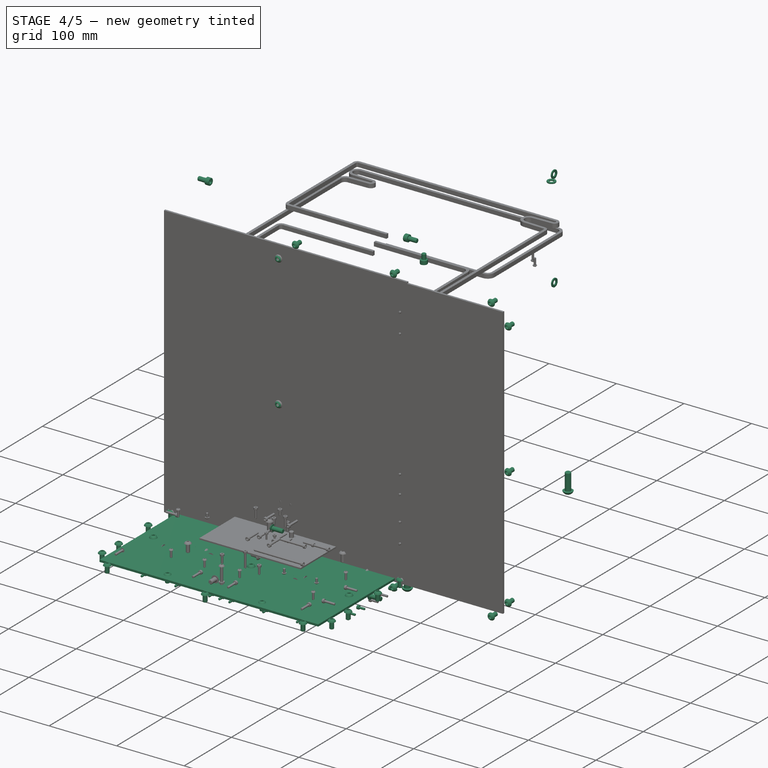
[diagram: stage 4 of 5 — iso view after this stage's code; geometry added in this stage tinted green]
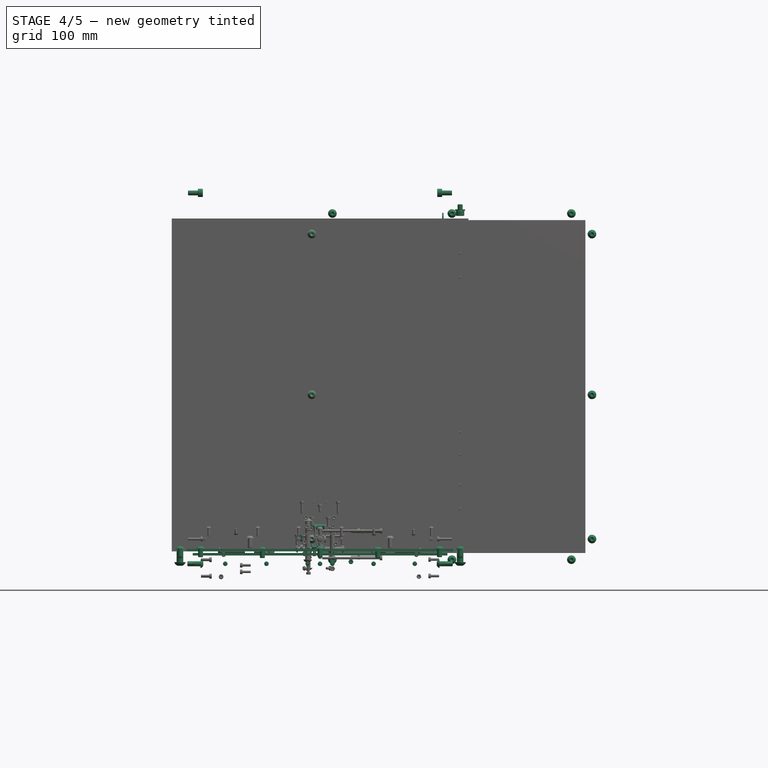
[diagram: stage 4 of 5 — front view after this stage's code; geometry added in this stage tinted green]
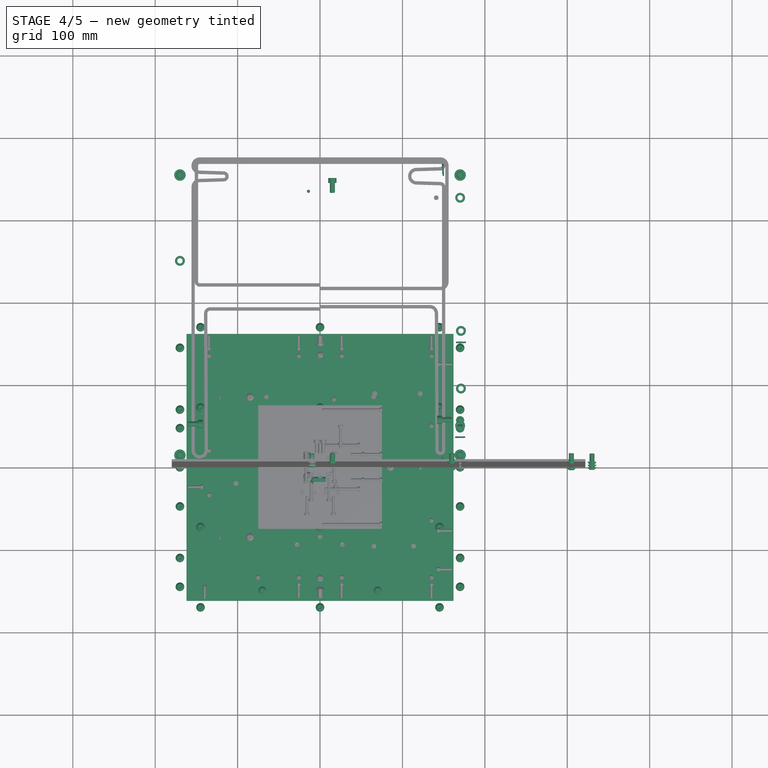
[diagram: stage 4 of 5 — top view after this stage's code; geometry added in this stage tinted green]
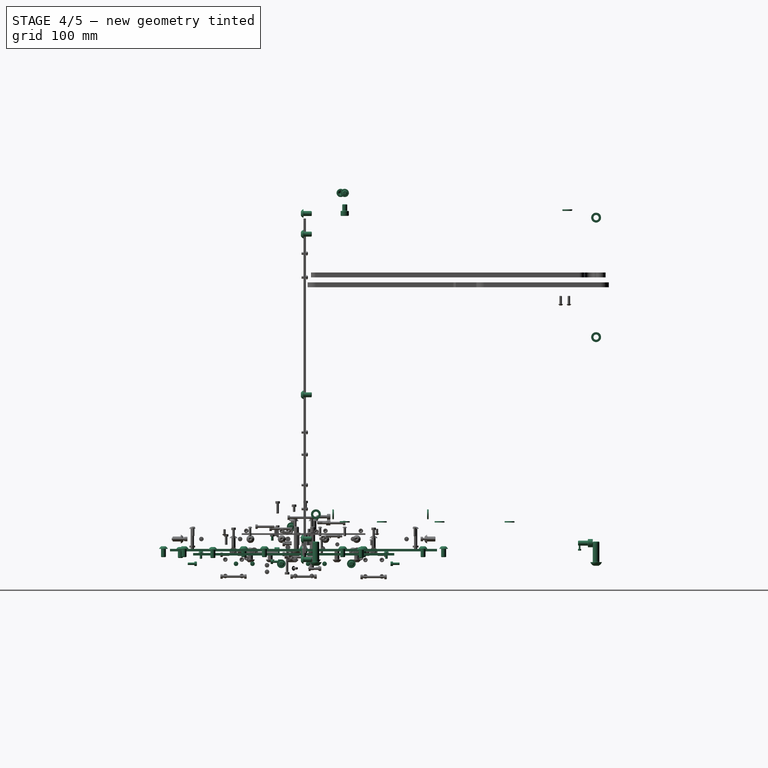
[diagram: stage 4 of 5 — right view after this stage's code; geometry added in this stage tinted green]
FEATURE [Part::Feature] Extrude002002004  label="250mm-rail001"
  Placement = pos=(-155,45,30) rot=(0,0,-1;1.5708rad)
  shape: bbox 8 x 12 x 250 mm, 16 faces (baked)
FEATURE [Part::Feature] Extrude002002005  label="250mm-rail002"
  Placement = pos=(-155,215,30) rot=(0,0,-1;1.5708rad)
  shape: bbox 8 x 12 x 250 mm, 16 faces (baked)
FEATURE [Part::Feature] Extrude002002006  label="250mm-rail003"
  Placement = pos=(155,130,30) rot=(0,0,1;1.5708rad)
  shape: bbox 8 x 12 x 250 mm, 16 faces (baked)
FEATURE [Part::Feature] Extrude002002007  label="250mm-rail004"
  Placement = pos=(125,200,340) rot=(0.57735,-0.57735,-0.57735;2.0944rad)
  shape: bbox 250 x 12 x 8 mm, 16 faces (baked)
FEATURE [Part::Feature] Extrude002002008  label="250mm-rail005"
  Placement = pos=(170,45,340) rot=(0,0.707107,0.707107;3.14159rad)
  shape: bbox 12 x 250 x 8 mm, 16 faces (baked)
FEATURE [Part::Feature] Extrude002002009  label="250mm-rail006"
  Placement = pos=(-170,45,340) rot=(0,0.707107,0.707107;3.14159rad)
  shape: bbox 12 x 250 x 8 mm, 16 faces (baked)
FEATURE [Part::Feature] Part__Feature002001  label="MGN!12H-block001"
  Placement = pos=(-155,45,125) rot=(0,0,-1;1.5708rad)
  shape: bbox 10 x 27 x 45.4 mm, 58 faces (baked)
FEATURE [Part::Feature] Part__Feature002002  label="MGN!12H-block002"
  Placement = pos=(155,130,125) rot=(0,0,1;1.5708rad)
  shape: bbox 10 x 27 x 45.4 mm, 58 faces (baked)
FEATURE [Part::Feature] Part__Feature002003  label="MGN!12H-block003"
  Placement = pos=(-155,215,125) rot=(0,0,-1;1.5708rad)
  shape: bbox 10 x 27 x 45.4 mm, 58 faces (baked)
FEATURE [Part::Feature] Part__Feature002004  label="MGN!12H-block004"
  Placement = pos=(-2.3e-14,200,340) rot=(0.57735,-0.57735,-0.57735;2.0944rad)
  shape: bbox 45.4 x 27 x 10 mm, 58 faces (baked)
FEATURE [Part::Feature] Part__Feature002005  label="MGN!12H-block005"
  Placement = pos=(-170,200,340) rot=(1,0,0;1.5708rad)
  shape: bbox 27 x 45.4 x 10 mm, 58 faces (baked)
FEATURE [Part::Feature] Part__Feature002006  label="MGN!12H-block006"
  Placement = pos=(170,200,340) rot=(1,0,0;1.5708rad)
  shape: bbox 27 x 45.4 x 10 mm, 58 faces (baked)
FEATURE [App::Part] Part001  label="linear-rail"
  ExportMode = 1
  Group = -> [Extrude002002004,Extrude002002005,Extrude002002006,Extrude002002007,Extrude002002008,Extrude002002009,Part__Feature002001,Part__Feature002002,Part__Feature002003,Part__Feature002004,Part__Feature002005,Part__Feature002006]
  Origin = -> Origin001
  _ExportChildren = -> [Extrude002002004,Extrude002002005,Extrude002002006,Extrude002002007,Extrude002002008,Extrude002002009,Part__Feature002001,Part__Feature002002,Part__Feature002003,Part__Feature002004,Part__Feature002005,Part__Feature002006]
  _GroupVersion = 1
FEATURE [Part::Feature] Cut002002002002006  label="filament-spoll"
  Placement = pos=(0,250,135) rot=(-1,0,0;1.5708rad)
  shape: bbox 200 x 80 x 200 mm, 8 faces (baked)
FEATURE [Part::Feature] Fusion006002011004053036004001028003005014005  label="TPFE-tube-guide001"
  Placement = pos=(142,313,300) rot=(0,0,-1;1.5708rad)
  shape: bbox 26.55 x 26.55 x 7 mm, 51 faces (baked)
FEATURE [Part::Feature] Cut002008023012009006003002007001  label="camera-mount-base001"
  shape: bbox 18 x 18 x 6 mm, 23 faces (baked)
FEATURE [Part::Feature] Cut003002001  label="Cut008004003004014002002005003004003002003021025"
  shape: bbox 33.45 x 33.45 x 25 mm, 58 faces (baked)
FEATURE [Part::Feature] Chamfer004001001  label="Chamfer047"
  shape: bbox 38.18 x 38.18 x 25 mm, 33 faces (baked)
FEATURE [Part::Feature] Part__Mirroring001002  label="sensor-mount001 (Mirror #1)001"
  shape: bbox 20 x 39 x 17 mm, 59 faces (baked)
FEATURE [Part::Feature] Part__Mirroring003003003008  label="wire-clamp002 (Mirror #2)001"
  shape: bbox 3.25 x 12.25 x 5.5 mm, 20 faces (baked)
FEATURE [Part::Box] Box  label="panel-309x244mm"
  AttacherType = Attacher::AttachEngine3D
  Height = 3
  Length = 309
  Placement = pos=(-154.5,-134,-5) rot=(0,0,1;0rad)
  Width = 244
FEATURE [Part::Feature] Common001003002002001  label="din-309mm"
  Placement = pos=(0,11,15) rot=(1,0,0;3.14159rad)
  shape: bbox 305 x 35 x 7.5 mm, 68 faces (baked)
FEATURE [Part::Feature] Cut008004003004014002002005003004001  label="din-stopper003"
  Placement = pos=(-155,-49.5,5) rot=(-1,0,0;1.5708rad)
  shape: bbox 16 x 45 x 20 mm, 43 faces (baked)
FEATURE [Part::Feature] Cut008004003004014002002005003004002  label="din-stopper004"
  Placement = pos=(155,-4.5,5) rot=(0,0.707107,-0.707107;3.14159rad)
  shape: bbox 16 x 45 x 20 mm, 43 faces (baked)
FEATURE [Part::Feature] Cut008004003004014002002005003004003001  label="back-panel-support001"
  Placement = pos=(-2e-15,110.5,-15) rot=(0,0.707107,-0.707107;3.14159rad)
  shape: bbox 10 x 16 x 17 mm, 21 faces (baked)
FEATURE [Part::Feature] Cut008004003004014002002005003004003002003  label="gasket-support-119mm001"
  Placement = pos=(65,110.5,-15) rot=(0,0.707107,-0.707107;3.14159rad)
  shape: bbox 119 x 11 x 16.5 mm, 26 faces (baked)
FEATURE [Part::Feature] Cut008004003004014002002005003004003002004  label="gasket-support-119mm002"
  Placement = pos=(-65,110.5,-15) rot=(0,0.707107,-0.707107;3.14159rad)
  shape: bbox 119 x 11 x 16.5 mm, 26 faces (baked)
FEATURE [Part::Feature] Cut008004003004014002002005003004003002005  label="gasket-support-119mm003"
  Placement = pos=(-65,-134.5,-15) rot=(-1,0,0;1.5708rad)
  shape: bbox 119 x 11 x 16.5 mm, 26 faces (baked)
FEATURE [Part::Feature] Cut008004003004014002002005003004003002006  label="back-panel-support002"
  Placement = pos=(2.8e-14,-134.5,-15) rot=(-1,0,0;1.5708rad)
  shape: bbox 10 x 16 x 17 mm, 21 faces (baked)
FEATURE [Part::Feature] Cut008004003004014002002005003004003002007  label="gasket-support-119mm004"
  Placement = pos=(65,-134.5,-15) rot=(-1,0,0;1.5708rad)
  shape: bbox 119 x 11 x 16.5 mm, 26 faces (baked)
FEATURE [Part::Feature] Cut008004003004014002002005003004003002002001  label="gasket-support-40mm001"
  Placement = pos=(-155,15.5,-15) rot=(0.57735,-0.57735,0.57735;4.18879rad)
  shape: bbox 11 x 39 x 16.5 mm, 23 faces (baked)
FEATURE [Part::Feature] Cut008004003004014002002005003004003002003002  label="din-stopper005"
  Placement = pos=(-155,35.5,5) rot=(-1,0,0;1.5708rad)
  shape: bbox 16 x 45 x 20 mm, 43 faces (baked)
FEATURE [Part::Feature] Cut008004003004014002002005003004003002003003  label="din-stopper006"
  Placement = pos=(155,80.5,5) rot=(0,0.707107,-0.707107;3.14159rad)
  shape: bbox 16 x 45 x 20 mm, 43 faces (baked)
FEATURE [Part::Feature] Common001003002002002  label="din-309mm001"
  Placement = pos=(0,96,15) rot=(1,0,0;3.14159rad)
  shape: bbox 305 x 35 x 7.5 mm, 68 faces (baked)
FEATURE [Part::Feature] Cut008004003004014002002005003004003002003005  label="gasket-support-40mm002"
  Placement = pos=(155,15.5,-15) rot=(0.57735,0.57735,-0.57735;4.18879rad)
  shape: bbox 11 x 39 x 16.5 mm, 23 faces (baked)
FEATURE [Part::FeaturePython] Screw047  label="M6x16-Screw"  # Fasteners workbench fastener (typed FeaturePython)
  Placement = pos=(-145,58,-15) rot=(0,1,0;1.5708rad)
  baseObject = -> Cut008004003004014002002005003004003002003002 [Edge16]
  diameter = 4
  invert = false
  length = 13
  lengthCustom = 16
  matchOuter = true
  offset = 0
  thread = false
  type = 39
FEATURE [Part::FeaturePython] Screw048  label="M6x16-Screw013"  # Fasteners workbench fastener (typed FeaturePython)
  Placement = pos=(-145,-27,-15) rot=(0,1,0;1.5708rad)
  baseObject = -> Cut008004003004014002002005003004001 [Edge16]
  diameter = 4
  invert = false
  length = 13
  lengthCustom = 16
  matchOuter = true
  offset = 0
  thread = false
  type = 39
FEATURE [Part::FeaturePython] Screw049  label="M6x16-Screw014"  # Fasteners workbench fastener (typed FeaturePython)
  Placement = pos=(145,-27,-15) rot=(0,-1,0;1.5708rad)
  baseObject = -> Cut008004003004014002002005003004002 [Edge16]
  diameter = 4
  invert = false
  length = 13
  lengthCustom = 16
  matchOuter = true
  offset = 0
  thread = false
  type = 39
FEATURE [Part::FeaturePython] Screw050  label="M6x16-Screw015"  # Fasteners workbench fastener (typed FeaturePython)
  Placement = pos=(145,58,-15) rot=(0,-1,0;1.5708rad)
  baseObject = -> Cut008004003004014002002005003004003002003003 [Edge16]
  diameter = 4
  invert = false
  length = 13
  lengthCustom = 16
  matchOuter = true
  offset = 0
  thread = false
  type = 39
FEATURE [Part::Feature] Cut008004003004014002002005003004003002003001001  label="gasket-support-45mm001"
  Placement = pos=(155,-77,-15) rot=(0.57735,0.57735,-0.57735;4.18879rad)
  shape: bbox 11 x 44 x 16.5 mm, 23 faces (baked)
FEATURE [Part::Feature] Cut008004003004014002002005003004003002003001002  label="gasket-support-45mm002"
  Placement = pos=(-155,-67,-15) rot=(0.57735,-0.57735,0.57735;4.18879rad)
  shape: bbox 11 x 44 x 16.5 mm, 23 faces (baked)
FEATURE [Part::FeaturePython] Screw051  label="M3x8-Screw077"  # Fasteners workbench fastener (typed FeaturePython)
  Placement = pos=(-153,25.5,-15) rot=(0,1,0;1.5708rad)
  baseObject = -> Cut008004003004014002002005003004003002002001 [Edge53]
  diameter = 4
  invert = false
  length = 10
  lengthCustom = 8
  matchOuter = true
  offset = 0
  thread = false
  type = 33
FEATURE [Part::FeaturePython] Screw052  label="M3x8-Screw076"  # Fasteners workbench fastener (typed FeaturePython)
  Placement = pos=(-153,5.5,-15) rot=(0,1,0;1.5708rad)
  baseObject = -> Cut008004003004014002002005003004003002002001 [Edge51]
  diameter = 4
  invert = false
  length = 10
  lengthCustom = 8
  matchOuter = true
  offset = 0
  thread = false
  type = 33
FEATURE [Part::FeaturePython] Screw053  label="M3x8-Screw079"  # Fasteners workbench fastener (typed FeaturePython)
  Placement = pos=(-153,-82,-15) rot=(0,1,0;1.5708rad)
  baseObject = -> Cut008004003004014002002005003004003002003001002 [Edge51]
  diameter = 4
  invert = false
  length = 10
  lengthCustom = 8
  matchOuter = true
  offset = 0
  thread = false
  type = 33
FEATURE [Part::FeaturePython] Screw054  label="M3x8-Screw078"  # Fasteners workbench fastener (typed FeaturePython)
  Placement = pos=(-153,-62,-15) rot=(0,1,0;1.5708rad)
  baseObject = -> Cut008004003004014002002005003004003002003001002 [Edge53]
  diameter = 4
  invert = false
  length = 10
  lengthCustom = 8
  matchOuter = true
  offset = 0
  thread = false
  type = 33
FEATURE [Part::FeaturePython] Screw055  label="M3x8-Screw081"  # Fasteners workbench fastener (typed FeaturePython)
  Placement = pos=(153,25.5,-15) rot=(0,-1,0;1.5708rad)
  baseObject = -> Cut008004003004014002002005003004003002003005 [Edge51]
  diameter = 4
  invert = false
  length = 10
  lengthCustom = 8
  matchOuter = true
  offset = 0
  thread = false
  type = 33
FEATURE [Part::FeaturePython] Screw056  label="M3x8-Screw080"  # Fasteners workbench fastener (typed FeaturePython)
  Placement = pos=(153,5.5,-15) rot=(0,-1,0;1.5708rad)
  baseObject = -> Cut008004003004014002002005003004003002003005 [Edge53]
  diameter = 4
  invert = false
  length = 10
  lengthCustom = 8
  matchOuter = true
  offset = 0
  thread = false
  type = 33
FEATURE [Part::FeaturePython] Screw057  label="M3x8-Screw083"  # Fasteners workbench fastener (typed FeaturePython)
  Placement = pos=(153,-62,-15) rot=(0,-1,0;1.5708rad)
  baseObject = -> Cut008004003004014002002005003004003002003001001 [Edge51]
  diameter = 4
  invert = false
  length = 10
  lengthCustom = 8
  matchOuter = true
  offset = 0
  thread = false
  type = 33
FEATURE [Part::FeaturePython] Screw058  label="M3x8-Screw082"  # Fasteners workbench fastener (typed FeaturePython)
  Placement = pos=(153,-82,-15) rot=(0,-1,0;1.5708rad)
  baseObject = -> Cut008004003004014002002005003004003002003001001 [Edge53]
  diameter = 4
  invert = false
  length = 10
  lengthCustom = 8
  matchOuter = true
  offset = 0
  thread = false
  type = 33
FEATURE [Part::FeaturePython] Screw059  label="M3x8-Screw086"  # Fasteners workbench fastener (typed FeaturePython)
  Placement = pos=(-115,108.5,-15) rot=(1,0,0;1.5708rad)
  baseObject = -> Cut008004003004014002002005003004003002004 [Edge53]
  diameter = 4
  invert = false
  length = 10
  lengthCustom = 8
  matchOuter = true
  offset = 0
  thread = false
  type = 33
FEATURE [Part::FeaturePython] Screw060  label="M3x8-Screw084"  # Fasteners workbench fastener (typed FeaturePython)
  Placement = pos=(-65,108.5,-15) rot=(1,0,0;1.5708rad)
  baseObject = -> Cut008004003004014002002005003004003002004 [Edge55]
  diameter = 4
  invert = false
  length = 10
  lengthCustom = 8
  matchOuter = true
  offset = 0
  thread = false
  type = 33
FEATURE [Part::FeaturePython] Screw061  label="M3x8-Screw085"  # Fasteners workbench fastener (typed FeaturePython)
  Placement = pos=(-15,108.5,-15) rot=(1,0,0;1.5708rad)
  baseObject = -> Cut008004003004014002002005003004003002004 [Edge57]
  diameter = 4
  invert = false
  length = 10
  lengthCustom = 8
  matchOuter = true
  offset = 0
  thread = false
  type = 33
FEATURE [Part::FeaturePython] Screw062  label="M3x8-Screw088"  # Fasteners workbench fastener (typed FeaturePython)
  Placement = pos=(-2e-15,108.5,-15) rot=(1,0,0;1.5708rad)
  baseObject = -> Cut008004003004014002002005003004003001 [Edge49]
  diameter = 4
  invert = false
  length = 10
  lengthCustom = 8
  matchOuter = true
  offset = 0
  thread = false
  type = 33
FEATURE [Part::FeaturePython] Screw063  label="M3x8-Screw091"  # Fasteners workbench fastener (typed FeaturePython)
  Placement = pos=(15,108.5,-15) rot=(1,0,0;1.5708rad)
  baseObject = -> Cut008004003004014002002005003004003002003 [Edge53]
  diameter = 4
  invert = false
  length = 10
  lengthCustom = 8
  matchOuter = true
  offset = 0
  thread = false
  type = 33
FEATURE [Part::FeaturePython] Screw064  label="M3x8-Screw089"  # Fasteners workbench fastener (typed FeaturePython)
  Placement = pos=(65,108.5,-15) rot=(1,0,0;1.5708rad)
  baseObject = -> Cut008004003004014002002005003004003002003 [Edge55]
  diameter = 4
  invert = false
  length = 10
  lengthCustom = 8
  matchOuter = true
  offset = 0
  thread = false
  type = 33
FEATURE [Part::FeaturePython] Screw018  label="M3x8-Screw090"  # Fasteners workbench fastener (typed FeaturePython)
  Placement = pos=(115,108.5,-15) rot=(1,0,0;1.5708rad)
  baseObject = -> Cut008004003004014002002005003004003002003 [Edge57]
  diameter = 4
  invert = false
  length = 10
  lengthCustom = 8
  matchOuter = true
  offset = 0
  thread = false
  type = 33
FEATURE [Part::FeaturePython] Screw019  label="M3x8-Screw094"  # Fasteners workbench fastener (typed FeaturePython)
  Placement = pos=(-115,-132.5,-15) rot=(-1,0,0;1.5708rad)
  baseObject = -> Cut008004003004014002002005003004003002005 [Edge57]
  diameter = 4
  invert = false
  length = 10
  lengthCustom = 8
  matchOuter = true
  offset = 0
  thread = false
  type = 33
FEATURE [Part::FeaturePython] Screw020  label="M3x8-Screw093"  # Fasteners workbench fastener (typed FeaturePython)
  Placement = pos=(-65,-132.5,-15) rot=(-1,0,0;1.5708rad)
  baseObject = -> Cut008004003004014002002005003004003002005 [Edge55]
  diameter = 4
  invert = false
  length = 10
  lengthCustom = 8
  matchOuter = true
  offset = 0
  thread = false
  type = 33
FEATURE [Part::FeaturePython] Screw021  label="M3x8-Screw092"  # Fasteners workbench fastener (typed FeaturePython)
  Placement = pos=(-15,-132.5,-15) rot=(-1,0,0;1.5708rad)
  baseObject = -> Cut008004003004014002002005003004003002005 [Edge53]
  diameter = 4
  invert = false
  length = 10
  lengthCustom = 8
  matchOuter = true
  offset = 0
  thread = false
  type = 33
FEATURE [Part::FeaturePython] Screw022  label="M3x8-Screw096"  # Fasteners workbench fastener (typed FeaturePython)
  Placement = pos=(2.8e-14,-132.5,-15) rot=(-1,0,0;1.5708rad)
  baseObject = -> Cut008004003004014002002005003004003002006 [Edge49]
  diameter = 4
  invert = false
  length = 10
  lengthCustom = 8
  matchOuter = true
  offset = 0
  thread = false
  type = 33
FEATURE [Part::FeaturePython] Screw023  label="M3x8-Screw099"  # Fasteners workbench fastener (typed FeaturePython)
  Placement = pos=(15,-132.5,-15) rot=(-1,0,0;1.5708rad)
  baseObject = -> Cut008004003004014002002005003004003002007 [Edge57]
  diameter = 4
  invert = false
  length = 10
  lengthCustom = 8
  matchOuter = true
  offset = 0
  thread = false
  type = 33
FEATURE [Part::FeaturePython] Screw065  label="M3x8-Screw098"  # Fasteners workbench fastener (typed FeaturePython)
  Placement = pos=(65,-132.5,-15) rot=(-1,0,0;1.5708rad)
  baseObject = -> Cut008004003004014002002005003004003002007 [Edge55]
  diameter = 4
  invert = false
  length = 10
  lengthCustom = 8
  matchOuter = true
  offset = 0
  thread = false
  type = 33
FEATURE [Part::FeaturePython] Screw066  label="M3x8-Screw097"  # Fasteners workbench fastener (typed FeaturePython)
  Placement = pos=(115,-132.5,-15) rot=(-1,0,0;1.5708rad)
  baseObject = -> Cut008004003004014002002005003004003002007 [Edge53]
  diameter = 4
  invert = false
  length = 10
  lengthCustom = 8
  matchOuter = true
  offset = 0
  thread = false
  type = 33
FEATURE [Part::FeaturePython] Screw026  label="M3x8-Screw087"  # Fasteners workbench fastener (typed FeaturePython)
  Placement = pos=(-2e-15,100.5,-1) rot=(0,0,1;0rad)
  baseObject = -> Cut008004003004014002002005003004003001 [Edge26]
  diameter = 1
  invert = true
  length = 9
  lengthCustom = 8
  matchOuter = true
  offset = 4
  thread = false
  type = 39
FEATURE [Part::FeaturePython] Screw027  label="M3x8-Screw095"  # Fasteners workbench fastener (typed FeaturePython)
  Placement = pos=(2.8e-14,-124.5,-1) rot=(0,0,1;0rad)
  baseObject = -> Cut008004003004014002002005003004003002006 [Edge26]
  diameter = 1
  invert = true
  length = 9
  lengthCustom = 8
  matchOuter = true
  offset = 4
  thread = false
  type = 39
FEATURE [Part::FeaturePython] Washer022  label="M3-Washer124"  # Fasteners workbench fastener (typed FeaturePython)
  Placement = pos=(-2e-15,100.5,-2) rot=(0,0,1;0rad)
  baseObject = -> Cut008004003004014002002005003004003001 [Edge26]
  diameter = 4
  invert = true
  matchOuter = true
  offset = 3
  type = 5
FEATURE [Part::FeaturePython] Washer023  label="M3-Washer125"  # Fasteners workbench fastener (typed FeaturePython)
  Placement = pos=(2.8e-14,-124.5,-2) rot=(0,0,1;0rad)
  baseObject = -> Cut008004003004014002002005003004003002006 [Edge26]
  diameter = 4
  invert = true
  matchOuter = true
  offset = 3
  type = 5
FEATURE [Part::Feature] Cut008004003004014002002005003004003002003001003001001  label="back-btm-pannel-inner-clip001"
  Placement = pos=(-155,60,5) rot=(-1,0,0;1.5708rad)
  shape: bbox 35 x 20 x 7 mm, 27 faces (baked)
FEATURE [Part::Feature] Cut008004003004014002002005003004003002003001003001002  label="back-btm-pannel-inner-clip002"
  Placement = pos=(-155,-120,5) rot=(-1,0,0;1.5708rad)
  shape: bbox 35 x 20 x 7 mm, 27 faces (baked)
FEATURE [Part::Feature] Cut008004003004014002002005003004003002003001003001003  label="back-btm-pannel-inner-clip003"
  Placement = pos=(-60,-134.5,5) rot=(0.57735,0.57735,-0.57735;4.18879rad)
  shape: bbox 20 x 35 x 7 mm, 27 faces (baked)
FEATURE [Part::Feature] Cut008004003004014002002005003004003002003001003001004  label="back-btm-pannel-inner-clip004"
  Placement = pos=(80,-134.5,5) rot=(0.57735,0.57735,-0.57735;4.18879rad)
  shape: bbox 20 x 35 x 7 mm, 27 faces (baked)
FEATURE [Part::Feature] Cut008004003004014002002005003004003002003001003001005  label="back-btm-pannel-inner-clip005"
  Placement = pos=(155,-100,5) rot=(0,0.707107,-0.707107;3.14159rad)
  shape: bbox 35 x 20 x 7 mm, 27 faces (baked)
FEATURE [Part::Feature] Cut008004003004014002002005003004003002003001003001006  label="back-btm-pannel-inner-clip006"
  Placement = pos=(155,80,5) rot=(0,0.707107,-0.707107;3.14159rad)
  shape: bbox 35 x 20 x 7 mm, 27 faces (baked)
FEATURE [Part::FeaturePython] Screw067  label="M6x10-Screw"  # Fasteners workbench fastener (typed FeaturePython)
  Placement = pos=(-170,70,2) rot=(0,0,1;0rad)
  baseObject = -> Cut008004003004014002002005003004003002003001003001001 [Edge24]
  diameter = 4
  invert = true
  length = 0
  lengthCustom = 10
  matchOuter = true
  offset = 0
  thread = false
  type = 39
FEATURE [Part::FeaturePython] Screw068  label="M6x10-Screw060"  # Fasteners workbench fastener (typed FeaturePython)
  Placement = pos=(-170,-110,2) rot=(0,0,1;0rad)
  baseObject = -> Cut008004003004014002002005003004003002003001003001002 [Edge24]
  diameter = 4
  invert = true
  length = 0
  lengthCustom = 10
  matchOuter = true
  offset = 0
  thread = false
  type = 39
FEATURE [Part::FeaturePython] Screw069  label="M6x10-Screw061"  # Fasteners workbench fastener (typed FeaturePython)
  Placement = pos=(-70,-149.5,2) rot=(0,0,1;0rad)
  baseObject = -> Cut008004003004014002002005003004003002003001003001003 [Edge24]
  diameter = 4
  invert = true
  length = 0
  lengthCustom = 10
  matchOuter = true
  offset = 0
  thread = false
  type = 39
FEATURE [Part::FeaturePython] Screw070  label="M6x10-Screw062"  # Fasteners workbench fastener (typed FeaturePython)
  Placement = pos=(70,-149.5,2) rot=(0,0,1;0rad)
  baseObject = -> Cut008004003004014002002005003004003002003001003001004 [Edge24]
  diameter = 4
  invert = true
  length = 0
  lengthCustom = 10
  matchOuter = true
  offset = 0
  thread = false
  type = 39
FEATURE [Part::FeaturePython] Screw071  label="M6x10-Screw064"  # Fasteners workbench fastener (typed FeaturePython)
  Placement = pos=(170,70,2) rot=(0,0,1;0rad)
  baseObject = -> Cut008004003004014002002005003004003002003001003001006 [Edge24]
  diameter = 4
  invert = true
  length = 0
  lengthCustom = 10
  matchOuter = true
  offset = 0
  thread = false
  type = 39
FEATURE [Part::FeaturePython] Screw072  label="M6x10-Screw063"  # Fasteners workbench fastener (typed FeaturePython)
  Placement = pos=(170,-110,2) rot=(0,0,1;0rad)
  baseObject = -> Cut008004003004014002002005003004003002003001003001005 [Edge24]
  diameter = 4
  invert = true
  length = 0
  lengthCustom = 10
  matchOuter = true
  offset = 0
  thread = false
  type = 39
FEATURE [App::Part] Part084  label="rear-bottom-panel"
  ExportMode = 1
  Group = -> [Common001003002002001,Box,Cut008004003004014002002005003004001,Cut008004003004014002002005003004002,Cut008004003004014002002005003004003001,Cut008004003004014002002005003004003002003,Cut008004003004014002002005003004003002004,Cut008004003004014002002005003004003002005,Cut008004003004014002002005003004003002006,Cut008004003004014002002005003004003002007,+49 more]
  Origin = -> Origin086
  Placement = pos=(4.16e-14,340,141) rot=(0,0.707107,-0.707107;3.14159rad)
  _ExportChildren = -> [Common001003002002001,Box,Cut008004003004014002002005003004001,Cut008004003004014002002005003004002,Cut008004003004014002002005003004003001,Cut008004003004014002002005003004003002003,Cut008004003004014002002005003004003002004,Cut008004003004014002002005003004003002005,Cut008004003004014002002005003004003002006,Cut008004003004014002002005003004003002007,+49 more]
  _GroupVersion = 1
FEATURE [Part::Box] Box015  label="panel-324x129x3mm001"
  AttacherType = Attacher::AttachEngine3D
  Height = 3
  Length = 324
  Placement = pos=(-162,-64.5,0) rot=(0,0,1;0rad)
  Width = 129
FEATURE [Part::Feature] Cut008004003004014002002005003004003002003001003001007  label="side-panel-clip021"
  Placement = pos=(-15,57.5,6) rot=(0.57735,-0.57735,0.57735;4.18879rad)
  shape: bbox 30 x 33 x 7 mm, 29 faces (baked)
FEATURE [Part::Feature] Cut008004003004014002002005003004003002003001003001008  label="side-corner-panel-clip013"
  Placement = pos=(-155,-57.5,1.3e-14) rot=(-1,0,0;1.5708rad)
  shape: bbox 48 x 48 x 7 mm, 37 faces (baked)
FEATURE [Part::Feature] Cut008004003004014002002005003004003002003001003001009  label="side-corner-panel-clip014"
  Placement = pos=(155,-57.5,1.3e-14) rot=(0.57735,0.57735,-0.57735;4.18879rad)
  shape: bbox 48 x 48 x 7 mm, 37 faces (baked)
FEATURE [Part::Feature] Cut008004003004014002002005003004003002003001003001010  label="side-corner-panel-clip015"
  Placement = pos=(155,57.5,1.1e-14) rot=(0,0.707107,-0.707107;3.14159rad)
  shape: bbox 48 x 48 x 7 mm, 37 faces (baked)
FEATURE [Part::Feature] Cut008004003004014002002005003004003002003001003001011  label="side-corner-panel-clip016"
  Placement = pos=(-155,57.5,1.1e-14) rot=(0.57735,-0.57735,0.57735;4.18879rad)
  shape: bbox 48 x 48 x 7 mm, 37 faces (baked)
FEATURE [Part::Feature] Cut008004003004014002002005003004003002003001003001012  label="side-panel-clip022"
  Placement = pos=(15,-57.5,6) rot=(0.57735,0.57735,-0.57735;4.18879rad)
  shape: bbox 30 x 33 x 7 mm, 29 faces (baked)
FEATURE [Part::FeaturePython] Screw073  label="M6x10-Screw066"  # Fasteners workbench fastener (typed FeaturePython)
  Placement = pos=(-170,-47.5,3) rot=(0,0,1;0rad)
  baseObject = -> Cut008004003004014002002005003004003002003001003001008 [Edge84]
  diameter = 4
  invert = true
  length = 0
  lengthCustom = 10
  matchOuter = true
  offset = 0
  thread = false
  type = 39
FEATURE [Part::FeaturePython] Screw074  label="M6x10-Screw065"  # Fasteners workbench fastener (typed FeaturePython)
  Placement = pos=(-145,-72.5,3) rot=(0,0,1;0rad)
  baseObject = -> Cut008004003004014002002005003004003002003001003001008 [Edge85]
  diameter = 4
  invert = true
  length = 0
  lengthCustom = 10
  matchOuter = true
  offset = 0
  thread = false
  type = 39
FEATURE [Part::FeaturePython] Screw075  label="M6x10-Screw067"  # Fasteners workbench fastener (typed FeaturePython)
  Placement = pos=(-7.1e-15,-72.5,3) rot=(0,0,1;0rad)
  baseObject = -> Cut008004003004014002002005003004003002003001003001012 [Edge42]
  diameter = 4
  invert = true
  length = 0
  lengthCustom = 10
  matchOuter = true
  offset = 0
  thread = false
  type = 39
FEATURE [Part::FeaturePython] Screw076  label="M6x10-Screw069"  # Fasteners workbench fastener (typed FeaturePython)
  Placement = pos=(145,-72.5,3) rot=(0,0,1;0rad)
  baseObject = -> Cut008004003004014002002005003004003002003001003001009 [Edge84]
  diameter = 4
  invert = true
  length = 0
  lengthCustom = 10
  matchOuter = true
  offset = 0
  thread = false
  type = 39
FEATURE [Part::FeaturePython] Screw077  label="M6x10-Screw068"  # Fasteners workbench fastener (typed FeaturePython)
  Placement = pos=(170,-47.5,3) rot=(0,0,1;0rad)
  baseObject = -> Cut008004003004014002002005003004003002003001003001009 [Edge85]
  diameter = 4
  invert = true
  length = 0
  lengthCustom = 10
  matchOuter = true
  offset = 0
  thread = false
  type = 39
FEATURE [Part::FeaturePython] Screw078  label="M6x10-Screw071"  # Fasteners workbench fastener (typed FeaturePython)
  Placement = pos=(170,47.5,3) rot=(0,0,1;0rad)
  baseObject = -> Cut008004003004014002002005003004003002003001003001010 [Edge84]
  diameter = 4
  invert = true
  length = 0
  lengthCustom = 10
  matchOuter = true
  offset = 0
  thread = false
  type = 39
FEATURE [Part::FeaturePython] Screw079  label="M6x10-Screw070"  # Fasteners workbench fastener (typed FeaturePython)
  Placement = pos=(145,72.5,3) rot=(0,0,1;0rad)
  baseObject = -> Cut008004003004014002002005003004003002003001003001010 [Edge85]
  diameter = 4
  invert = true
  length = 0
  lengthCustom = 10
  matchOuter = true
  offset = 0
  thread = false
  type = 39
FEATURE [Part::FeaturePython] Screw080  label="M6x10-Screw072"  # Fasteners workbench fastener (typed FeaturePython)
  Placement = pos=(-3.6e-15,72.5,3) rot=(0,0,1;0rad)
  baseObject = -> Cut008004003004014002002005003004003002003001003001007 [Edge42]
  diameter = 4
  invert = true
  length = 0
  lengthCustom = 10
  matchOuter = true
  offset = 0
  thread = false
  type = 39
FEATURE [Part::FeaturePython] Screw081  label="M6x10-Screw074"  # Fasteners workbench fastener (typed FeaturePython)
  Placement = pos=(-170,47.5,3) rot=(0,0,1;0rad)
  baseObject = -> Cut008004003004014002002005003004003002003001003001011 [Edge85]
  diameter = 4
  invert = true
  length = 0
  lengthCustom = 10
  matchOuter = true
  offset = 0
  thread = false
  type = 39
FEATURE [Part::FeaturePython] Screw082  label="M6x10-Screw073"  # Fasteners workbench fastener (typed FeaturePython)
  Placement = pos=(-145,72.5,3) rot=(0,0,1;0rad)
  baseObject = -> Cut008004003004014002002005003004003002003001003001011 [Edge84]
  diameter = 4
  invert = true
  length = 0
  lengthCustom = 10
  matchOuter = true
  offset = 0
  thread = false
  type = 39
FEATURE [Part::Box] Box016  label="panel-324x234x3mm"
  AttacherType = Attacher::AttachEngine3D
  Height = 3
  Length = 324
  Placement = pos=(-162,-162,0) rot=(0,0,1;0rad)
  Width = 324
FEATURE [Part::Feature] Cut008004003004014002002005003004003002003001003001039  label="top-corner-clip005"
  Placement = pos=(-155,155,1.03e-13) rot=(0.57735,-0.57735,0.57735;4.18879rad)
  shape: bbox 50 x 50 x 7 mm, 37 faces (baked)
FEATURE [Part::Feature] Cut008004003004014002002005003004003002003001003001040  label="side-panel-clip023"
  Placement = pos=(-155,-15,6) rot=(-1,0,0;1.5708rad)
  shape: bbox 33 x 30 x 7 mm, 29 faces (baked)
FEATURE [Part::Feature] Cut008004003004014002002005003004003002003001003001041  label="top-corner-clip006"
  Placement = pos=(155,155,1.03e-13) rot=(0,0.707107,-0.707107;3.14159rad)
  shape: bbox 50 x 50 x 7 mm, 37 faces (baked)
FEATURE [Part::Feature] Cut008004003004014002002005003004003002003001003001042  label="top-corner-clip007"
  Placement = pos=(155,-155,3.4e-14) rot=(0.57735,0.57735,-0.57735;4.18879rad)
  shape: bbox 50 x 50 x 7 mm, 37 faces (baked)
FEATURE [Part::Feature] Cut008004003004014002002005003004003002003001003001043  label="top-corner-clip008"
  Placement = pos=(-155,-155,3.4e-14) rot=(-1,0,0;1.5708rad)
  shape: bbox 50 x 50 x 7 mm, 37 faces (baked)
FEATURE [Part::Feature] Cut008004003004014002002005003004003002003001003001044  label="side-panel-clip024"
  Placement = pos=(-15,155,6) rot=(0.57735,-0.57735,0.57735;4.18879rad)
  shape: bbox 30 x 33 x 7 mm, 29 faces (baked)
FEATURE [Part::Feature] Cut008004003004014002002005003004003002003001003001045  label="side-panel-clip025"
  Placement = pos=(155,15,6) rot=(0,0.707107,-0.707107;3.14159rad)
  shape: bbox 33 x 30 x 7 mm, 29 faces (baked)
FEATURE [Part::Feature] Cut008004003004014002002005003004003002003001003001046  label="side-panel-clip026"
  Placement = pos=(15,-155,6) rot=(0.57735,0.57735,-0.57735;4.18879rad)
  shape: bbox 30 x 33 x 7 mm, 29 faces (baked)
FEATURE [Part::FeaturePython] Screw244  label="M6x10-Screw076"  # Fasteners workbench fastener (typed FeaturePython)
  Placement = pos=(-145,170,3) rot=(0,0,1;0rad)
  baseObject = -> Cut008004003004014002002005003004003002003001003001039 [Edge87]
  diameter = 4
  invert = true
  length = 0
  lengthCustom = 10
  matchOuter = true
  offset = 0
  thread = false
  type = 39
FEATURE [Part::FeaturePython] Screw245  label="M6x10-Screw075"  # Fasteners workbench fastener (typed FeaturePython)
  Placement = pos=(-170,145,3) rot=(0,0,1;0rad)
  baseObject = -> Cut008004003004014002002005003004003002003001003001039 [Edge73]
  diameter = 4
  invert = true
  length = 0
  lengthCustom = 10
  matchOuter = true
  offset = 0
  thread = false
  type = 39
FEATURE [Part::FeaturePython] Screw246  label="M6x10-Screw077"  # Fasteners workbench fastener (typed FeaturePython)
  Placement = pos=(-170,1.8e-15,3) rot=(0,0,1;0rad)
  baseObject = -> Cut008004003004014002002005003004003002003001003001040 [Edge42]
  diameter = 4
  invert = true
  length = 0
  lengthCustom = 10
  matchOuter = true
  offset = 0
  thread = false
  type = 39
FEATURE [Part::FeaturePython] Screw247  label="M6x10-Screw079"  # Fasteners workbench fastener (typed FeaturePython)
  Placement = pos=(-170,-145,3) rot=(0,0,1;0rad)
  baseObject = -> Cut008004003004014002002005003004003002003001003001043 [Edge87]
  diameter = 4
  invert = true
  length = 0
  lengthCustom = 10
  matchOuter = true
  offset = 0
  thread = false
  type = 39
FEATURE [Part::FeaturePython] Screw248  label="M6x10-Screw078"  # Fasteners workbench fastener (typed FeaturePython)
  Placement = pos=(-145,-170,3) rot=(0,0,1;0rad)
  baseObject = -> Cut008004003004014002002005003004003002003001003001043 [Edge73]
  diameter = 4
  invert = true
  length = 0
  lengthCustom = 10
  matchOuter = true
  offset = 0
  thread = false
  type = 39
FEATURE [Part::FeaturePython] Screw249  label="M6x10-Screw080"  # Fasteners workbench fastener (typed FeaturePython)
  Placement = pos=(-3.6e-15,-170,3) rot=(0,0,1;0rad)
  baseObject = -> Cut008004003004014002002005003004003002003001003001046 [Edge42]
  diameter = 4
  invert = true
  length = 0
  lengthCustom = 10
  matchOuter = true
  offset = 0
  thread = false
  type = 39
FEATURE [Part::FeaturePython] Screw250  label="M6x10-Screw082"  # Fasteners workbench fastener (typed FeaturePython)
  Placement = pos=(170,-145,3) rot=(0,0,1;0rad)
  baseObject = -> Cut008004003004014002002005003004003002003001003001042 [Edge73]
  diameter = 4
  invert = true
  length = 0
  lengthCustom = 10
  matchOuter = true
  offset = 0
  thread = false
  type = 39
FEATURE [Part::FeaturePython] Screw251  label="M6x10-Screw081"  # Fasteners workbench fastener (typed FeaturePython)
  Placement = pos=(145,-170,3) rot=(0,0,1;0rad)
  baseObject = -> Cut008004003004014002002005003004003002003001003001042 [Edge87]
  diameter = 4
  invert = true
  length = 0
  lengthCustom = 10
  matchOuter = true
  offset = 0
  thread = false
  type = 39
FEATURE [Part::FeaturePython] Screw252  label="M6x10-Screw083"  # Fasteners workbench fastener (typed FeaturePython)
  Placement = pos=(170,8.9e-15,3) rot=(0,0,1;0rad)
  baseObject = -> Cut008004003004014002002005003004003002003001003001045 [Edge42]
  diameter = 4
  invert = true
  length = 0
  lengthCustom = 10
  matchOuter = true
  offset = 0
  thread = false
  type = 39
FEATURE [Part::FeaturePython] Screw253  label="M6x10-Screw085"  # Fasteners workbench fastener (typed FeaturePython)
  Placement = pos=(145,170,3) rot=(0,0,1;0rad)
  baseObject = -> Cut008004003004014002002005003004003002003001003001041 [Edge73]
  diameter = 4
  invert = true
  length = 0
  lengthCustom = 10
  matchOuter = true
  offset = 0
  thread = false
  type = 39
FEATURE [Part::FeaturePython] Screw254  label="M6x10-Screw084"  # Fasteners workbench fastener (typed FeaturePython)
  Placement = pos=(170,145,3) rot=(0,0,1;0rad)
  baseObject = -> Cut008004003004014002002005003004003002003001003001041 [Edge87]
  diameter = 4
  invert = true
  length = 0
  lengthCustom = 10
  matchOuter = true
  offset = 0
  thread = false
  type = 39
FEATURE [Part::FeaturePython] Screw255  label="M6x10-Screw086"  # Fasteners workbench fastener (typed FeaturePython)
  Placement = pos=(3.6e-15,170,3) rot=(0,0,1;0rad)
  baseObject = -> Cut008004003004014002002005003004003002003001003001044 [Edge42]
  diameter = 4
  invert = true
  length = 0
  lengthCustom = 10
  matchOuter = true
  offset = 0
  thread = false
  type = 39
FEATURE [App::Part] Part102  label="top-panel"
  ExportMode = 1
  Group = -> [Box016,Cut008004003004014002002005003004003002003001003001039,Cut008004003004014002002005003004003002003001003001040,Cut008004003004014002002005003004003002003001003001041,Cut008004003004014002002005003004003002003001003001042,Cut008004003004014002002005003004003002003001003001043,Cut008004003004014002002005003004003002003001003001044,Cut008004003004014002002005003004003002003001003001045,+13 more]
  Origin = -> Origin104
  Placement = pos=(0,184.5,450) rot=(0,0,1;0rad)
  _ExportChildren = -> [Box016,Cut008004003004014002002005003004003002003001003001039,Cut008004003004014002002005003004003002003001003001040,Cut008004003004014002002005003004003002003001003001041,Cut008004003004014002002005003004003002003001003001042,Cut008004003004014002002005003004003002003001003001043,Cut008004003004014002002005003004003002003001003001044,Cut008004003004014002002005003004003002003001003001045,+13 more]
  _GroupVersion = 1
FEATURE [Part::Feature] Cut008004003004014002002005003004003002003001003001047  label="side-panel-clip005"
  Placement = pos=(175,-3,5) rot=(0,-1,0;1.5708rad)
  shape: bbox 30 x 7 x 33 mm, 29 faces (baked)
FEATURE [Part::Feature] Cut008004003004014002002005003004003002003001003001048  label="side-corner-panel-clip017"
  Placement = pos=(5,3,5) rot=(0,0,1;0rad)
  shape: bbox 48 x 7 x 48 mm, 37 faces (baked)
FEATURE [Part::Feature] Cut008004003004014002002005003004003002003001003001049  label="side-corner-panel-clip018"
  Placement = pos=(5,3,395) rot=(0,1,0;1.5708rad)
  shape: bbox 48 x 7 x 48 mm, 37 faces (baked)
FEATURE [Part::Feature] Cut008004003004014002002005003004003002003001003001050  label="side-corner-panel-clip019"
  Placement = pos=(315,3,395) rot=(0,1,0;3.14159rad)
  shape: bbox 48 x 7 x 48 mm, 37 faces (baked)
FEATURE [Part::Feature] Cut008004003004014002002005003004003002003001003001051  label="side-corner-panel-clip020"
  Placement = pos=(315,3,5) rot=(0,-1,0;1.5708rad)
  shape: bbox 48 x 7 x 48 mm, 37 faces (baked)
FEATURE [Part::Feature] Cut008004003004014002002005003004003002003001003001052  label="side-panel-clip006"
  Placement = pos=(145,-3,395) rot=(0,1,0;1.5708rad)
  shape: bbox 30 x 7 x 33 mm, 29 faces (baked)
FEATURE [Part::Feature] Cut008004003004014002002005003004003002003001003001053  label="side-panel-clip007"
  Placement = pos=(5,-3,175) rot=(0,0,1;0rad)
  shape: bbox 33 x 7 x 30 mm, 29 faces (baked)
FEATURE [Part::Feature] Cut008004003004014002002005003004003002003001003001054  label="side-panel-clip008"
  Placement = pos=(315,-3,205) rot=(0,1,0;3.14159rad)
  shape: bbox 33 x 7 x 30 mm, 29 faces (baked)
FEATURE [Part::FeaturePython] Screw256  label="M6x10-Screw087"  # Fasteners workbench fastener (typed FeaturePython)
  Placement = pos=(-10,3.6e-15,385) rot=(1,0,0;1.5708rad)
  baseObject = -> Cut008004003004014002002005003004003002003001003001049 [Edge85]
  diameter = 4
  invert = true
  length = 0
  lengthCustom = 10
  matchOuter = true
  offset = 0
  thread = false
  type = 39
FEATURE [Part::FeaturePython] Screw257  label="M6x10-Screw088"  # Fasteners workbench fastener (typed FeaturePython)
  Placement = pos=(-10,3.6e-15,190) rot=(1,0,0;1.5708rad)
  baseObject = -> Cut008004003004014002002005003004003002003001003001053 [Edge42]
  diameter = 4
  invert = true
  length = 0
  lengthCustom = 10
  matchOuter = true
  offset = 0
  thread = false
  type = 39
FEATURE [Part::FeaturePython] Screw258  label="M6x10-Screw090"  # Fasteners workbench fastener (typed FeaturePython)
  Placement = pos=(-10,1.3e-15,15) rot=(1,0,0;1.5708rad)
  baseObject = -> Cut008004003004014002002005003004003002003001003001048 [Edge84]
  diameter = 4
  invert = true
  length = 0
  lengthCustom = 10
  matchOuter = true
  offset = 0
  thread = false
  type = 39
FEATURE [Part::FeaturePython] Screw259  label="M6x10-Screw089"  # Fasteners workbench fastener (typed FeaturePython)
  Placement = pos=(15,3.6e-15,-10) rot=(1,0,0;1.5708rad)
  baseObject = -> Cut008004003004014002002005003004003002003001003001048 [Edge85]
  diameter = 4
  invert = true
  length = 0
  lengthCustom = 10
  matchOuter = true
  offset = 0
  thread = false
  type = 39
FEATURE [Part::FeaturePython] Screw261  label="M6x10-Screw092"  # Fasteners workbench fastener (typed FeaturePython)
  Placement = pos=(305,1.3e-15,-10) rot=(1,0,0;1.5708rad)
  baseObject = -> Cut008004003004014002002005003004003002003001003001051 [Edge84]
  diameter = 4
  invert = true
  length = 0
  lengthCustom = 10
  matchOuter = true
  offset = 0
  thread = false
  type = 39
FEATURE [Part::FeaturePython] Screw262  label="M6x10-Screw091"  # Fasteners workbench fastener (typed FeaturePython)
  Placement = pos=(330,3.6e-15,15) rot=(1,0,0;1.5708rad)
  baseObject = -> Cut008004003004014002002005003004003002003001003001051 [Edge85]
  diameter = 4
  invert = true
  length = 0
  lengthCustom = 10
  matchOuter = true
  offset = 0
  thread = false
  type = 39
FEATURE [Part::FeaturePython] Screw263  label="M6x10-Screw093"  # Fasteners workbench fastener (typed FeaturePython)
  Placement = pos=(330,3.6e-15,190) rot=(1,0,0;1.5708rad)
  baseObject = -> Cut008004003004014002002005003004003002003001003001054 [Edge42]
  diameter = 4
  invert = true
  length = 0
  lengthCustom = 10
  matchOuter = true
  offset = 0
  thread = false
  type = 39
FEATURE [Part::FeaturePython] Screw264  label="M6x10-Screw095"  # Fasteners workbench fastener (typed FeaturePython)
  Placement = pos=(330,1.3e-15,385) rot=(1,0,0;1.5708rad)
  baseObject = -> Cut008004003004014002002005003004003002003001003001050 [Edge84]
  diameter = 4
  invert = true
  length = 0
  lengthCustom = 10
  matchOuter = true
  offset = 0
  thread = false
  type = 39
FEATURE [Part::FeaturePython] Screw265  label="M6x10-Screw094"  # Fasteners workbench fastener (typed FeaturePython)
  Placement = pos=(305,3.6e-15,410) rot=(1,0,0;1.5708rad)
  baseObject = -> Cut008004003004014002002005003004003002003001003001050 [Edge85]
  diameter = 4
  invert = true
  length = 0
  lengthCustom = 10
  matchOuter = true
  offset = 0
  thread = false
  type = 39
FEATURE [Part::FeaturePython] Screw266  label="M6x10-Screw096"  # Fasteners workbench fastener (typed FeaturePython)
  Placement = pos=(160,3.6e-15,410) rot=(1,0,0;1.5708rad)
  baseObject = -> Cut008004003004014002002005003004003002003001003001052 [Edge42]
  diameter = 4
  invert = true
  length = 0
  lengthCustom = 10
  matchOuter = true
  offset = 0
  thread = false
  type = 39
FEATURE [Part::Feature] Cut008004003004014002002005003004003002003001003001055  label="side-panel-clip027"
  Placement = pos=(175,-3,5) rot=(0,-1,0;1.5708rad)
  shape: bbox 30 x 7 x 33 mm, 29 faces (baked)
FEATURE [Part::FeaturePython] Screw268  label="M6x10-Screw100"  # Fasteners workbench fastener (typed FeaturePython)
  Placement = pos=(160,3.6e-15,-10) rot=(1,0,0;1.5708rad)
  baseObject = -> Cut008004003004014002002005003004003002003001003001055 [Edge42]
  diameter = 4
  invert = true
  length = 0
  lengthCustom = 10
  matchOuter = true
  offset = 0
  thread = false
  type = 39
FEATURE [Part::Feature] Cut008004003004014002002005003004003002003001003001056  label="side-panel-clip028"
  Placement = pos=(315,-3,205) rot=(0,1,0;3.14159rad)
  shape: bbox 33 x 7 x 30 mm, 29 faces (baked)
FEATURE [Part::FeaturePython] Screw267  label="M6x10-Screw099"  # Fasteners workbench fastener (typed FeaturePython)
  Placement = pos=(330,3.6e-15,190) rot=(1,0,0;1.5708rad)
  baseObject = -> Cut008004003004014002002005003004003002003001003001056 [Edge42]
  diameter = 4
  invert = true
  length = 0
  lengthCustom = 10
  matchOuter = true
  offset = 0
  thread = false
  type = 39
FEATURE [Part::Feature] Cut008004003004014002002005003004003002003001003001057  label="side-corner-panel-clip021"
  Placement = pos=(5,3,5) rot=(0,0,1;0rad)
  shape: bbox 48 x 7 x 48 mm, 37 faces (baked)
FEATURE [Part::FeaturePython] Screw273  label="M6x10-Screw105"  # Fasteners workbench fastener (typed FeaturePython)
  Placement = pos=(-10,1.3e-15,15) rot=(1,0,0;1.5708rad)
  baseObject = -> Cut008004003004014002002005003004003002003001003001057 [Edge84]
  diameter = 4
  invert = true
  length = 0
  lengthCustom = 10
  matchOuter = true
  offset = 0
  thread = false
  type = 39
FEATURE [Part::Box] Box018  label="panel-324x404x3mm003"
  AttacherType = Attacher::AttachEngine3D
  Height = 404
  Length = 324
  Placement = pos=(-2,0,-2) rot=(0,0,1;0rad)
  Width = 3
FEATURE [Part::Feature] Cut008004003004014002002005003004003002003001003001058  label="side-panel-clip029"
  Placement = pos=(5,-3,175) rot=(0,0,1;0rad)
  shape: bbox 33 x 7 x 30 mm, 29 faces (baked)
FEATURE [Part::FeaturePython] Screw269  label="M6x10-Screw101"  # Fasteners workbench fastener (typed FeaturePython)
  Placement = pos=(-10,3.6e-15,190) rot=(1,0,0;1.5708rad)
  baseObject = -> Cut008004003004014002002005003004003002003001003001058 [Edge42]
  diameter = 4
  invert = true
  length = 0
  lengthCustom = 10
  matchOuter = true
  offset = 0
  thread = false
  type = 39
FEATURE [Part::Feature] Cut008004003004014002002005003004003002003001003001059  label="side-corner-panel-clip022"
  Placement = pos=(315,3,5) rot=(0,-1,0;1.5708rad)
  shape: bbox 48 x 7 x 48 mm, 37 faces (baked)
FEATURE [Part::FeaturePython] Screw270  label="M6x10-Screw102"  # Fasteners workbench fastener (typed FeaturePython)
  Placement = pos=(330,3.6e-15,15) rot=(1,0,0;1.5708rad)
  baseObject = -> Cut008004003004014002002005003004003002003001003001059 [Edge85]
  diameter = 4
  invert = true
  length = 0
  lengthCustom = 10
  matchOuter = true
  offset = 0
  thread = false
  type = 39
FEATURE [Part::FeaturePython] Screw275  label="M6x10-Screw107"  # Fasteners workbench fastener (typed FeaturePython)
  Placement = pos=(305,1.3e-15,-10) rot=(1,0,0;1.5708rad)
  baseObject = -> Cut008004003004014002002005003004003002003001003001059 [Edge84]
  diameter = 4
  invert = true
  length = 0
  lengthCustom = 10
  matchOuter = true
  offset = 0
  thread = false
  type = 39
FEATURE [Part::FeaturePython] Screw277  label="M6x10-Screw109"  # Fasteners workbench fastener (typed FeaturePython)
  Placement = pos=(15,3.6e-15,-10) rot=(1,0,0;1.5708rad)
  baseObject = -> Cut008004003004014002002005003004003002003001003001057 [Edge85]
  diameter = 4
  invert = true
  length = 0
  lengthCustom = 10
  matchOuter = true
  offset = 0
  thread = false
  type = 39
FEATURE [Part::Feature] Cut008004003004014002002005003004003002003001003001060  label="side-corner-panel-clip023"
  Placement = pos=(5,3,395) rot=(0,1,0;1.5708rad)
  shape: bbox 48 x 7 x 48 mm, 37 faces (baked)
FEATURE [Part::FeaturePython] Screw271  label="M6x10-Screw103"  # Fasteners workbench fastener (typed FeaturePython)
  Placement = pos=(-10,3.6e-15,385) rot=(1,0,0;1.5708rad)
  baseObject = -> Cut008004003004014002002005003004003002003001003001060 [Edge85]
  diameter = 4
  invert = true
  length = 0
  lengthCustom = 10
  matchOuter = true
  offset = 0
  thread = false
  type = 39
FEATURE [Part::Feature] Cut008004003004014002002005003004003002003001003001061  label="side-panel-clip030"
  Placement = pos=(145,-3,395) rot=(0,1,0;1.5708rad)
  shape: bbox 30 x 7 x 33 mm, 29 faces (baked)
FEATURE [Part::FeaturePython] Screw276  label="M6x10-Screw108"  # Fasteners workbench fastener (typed FeaturePython)
  Placement = pos=(160,3.6e-15,410) rot=(1,0,0;1.5708rad)
  baseObject = -> Cut008004003004014002002005003004003002003001003001061 [Edge42]
  diameter = 4
  invert = true
  length = 0
  lengthCustom = 10
  matchOuter = true
  offset = 0
  thread = false
  type = 39
FEATURE [Part::Feature] Cut008004003004014002002005003004003002003001003001062  label="side-corner-panel-clip024"
  Placement = pos=(315,3,395) rot=(0,1,0;3.14159rad)
  shape: bbox 48 x 7 x 48 mm, 37 faces (baked)
FEATURE [Part::FeaturePython] Screw272  label="M6x10-Screw104"  # Fasteners workbench fastener (typed FeaturePython)
  Placement = pos=(305,3.6e-15,410) rot=(1,0,0;1.5708rad)
  baseObject = -> Cut008004003004014002002005003004003002003001003001062 [Edge85]
  diameter = 4
  invert = true
  length = 0
  lengthCustom = 10
  matchOuter = true
  offset = 0
  thread = false
  type = 39
FEATURE [Part::FeaturePython] Screw274  label="M6x10-Screw106"  # Fasteners workbench fastener (typed FeaturePython)
  Placement = pos=(330,1.3e-15,385) rot=(1,0,0;1.5708rad)
  baseObject = -> Cut008004003004014002002005003004003002003001003001062 [Edge84]
  diameter = 4
  invert = true
  length = 0
  lengthCustom = 10
  matchOuter = true
  offset = 0
  thread = false
  type = 39
FEATURE [Part::FeaturePython] Screw284  label="M6x15-Screw"  # Fasteners workbench fastener (typed FeaturePython)
  Placement = pos=(-8,-15,30) rot=(0,-1,0;1.5708rad)
  diameter = 4
  invert = true
  length = 13
  lengthCustom = 15
  matchOuter = true
  offset = 0
  thread = false
  type = 39
FEATURE [Part::Feature] Cut008004003004014002002005003004003002003001003001063  label="rod-mount-end004"
  Placement = pos=(1.7e-14,340,0) rot=(0,0,1;3.14159rad)
  shape: bbox 54 x 20 x 20 mm, 62 faces (baked)
FEATURE [Part::Feature] Fusion018002  label="slider005"
  Placement = pos=(-14,2e-15,10) rot=(-1,0,0;1.5708rad)
  shape: bbox 16 x 20 x 25 mm, 76 faces (baked)
FEATURE [Part::Feature] Cut010011008009003016003  label="hingle-base003"
  Placement = pos=(-28,0,0) rot=(0,0,1;0rad)
  shape: bbox 16 x 40 x 13 mm, 28 faces (baked)
FEATURE [Part::FeaturePython] Screw285  label="M6x12-Screw093"  # Fasteners workbench fastener (typed FeaturePython)
  Placement = pos=(15,345,10) rot=(-1,0,0;1.5708rad)
  baseObject = -> Cut008004003004014002002005003004003002003001003001063 [Edge135]
  diameter = 7
  invert = true
  length = 14
  lengthCustom = 12
  matchOuter = true
  offset = 0
  thread = false
  type = 33
FEATURE [Part::FeaturePython] Screw286  label="M2x10-Screw"  # Fasteners workbench fastener (typed FeaturePython)
  Placement = pos=(-14,335,3) rot=(-1,0,0;3.14159rad)
  baseObject = -> Cut008004003004014002002005003004003002003001003001063 [Edge60]
  diameter = 2
  invert = true
  length = 10
  lengthCustom = 10
  matchOuter = true
  offset = 0
  thread = false
  type = 33
FEATURE [Part::Feature] Part__Mirroring001009  label="Chamfer016016009 (Mirror #1)003"
  shape: bbox 67 x 24 x 25 mm, 62 faces (baked)
FEATURE [Part::FeaturePython] Washer006  label="M3-Washer130"  # Fasteners workbench fastener (typed FeaturePython)
  Placement = pos=(15,-31,-12.5) rot=(1,0,0;1.5708rad)
  baseObject = -> Part__Mirroring001009 [Edge124]
  diameter = 4
  invert = false
  matchOuter = true
  offset = -3
  type = 5
FEATURE [Part::FeaturePython] Washer007  label="M3-Washer129"  # Fasteners workbench fastener (typed FeaturePython)
  Placement = pos=(37.5,-31,-12.5) rot=(-1,0,0;1.5708rad)
  baseObject = -> Part__Mirroring001009 [Edge123]
  diameter = 4
  invert = true
  matchOuter = true
  offset = 3
  type = 5
FEATURE [Part::FeaturePython] Nut010  label="M3-Nut"  # Fasteners workbench fastener (typed FeaturePython)
  Placement = pos=(37.5,-30.45,-12.5) rot=(-1,0,0;1.5708rad)
  baseObject = -> Washer007 [Edge1]
  diameter = 4
  invert = false
  matchOuter = true
  offset = 0
  thread = false
  type = 7
FEATURE [Part::FeaturePython] Screw287  label="M3x10-Screw"  # Fasteners workbench fastener (typed FeaturePython)
  Placement = pos=(37.5,-37,-12.5) rot=(1,0,0;1.5708rad)
  baseObject = -> Part__Mirroring001009 [Edge141]
  diameter = 4
  invert = false
  length = 3
  lengthCustom = 10
  matchOuter = true
  offset = 0
  thread = false
  type = 33
FEATURE [Part::FeaturePython] Screw288  label="M3x6-Screw073"  # Fasteners workbench fastener (typed FeaturePython)
  Placement = pos=(15,-31,-12.5) rot=(-1,0,0;1.5708rad)
  baseObject = -> Washer006 [Edge5]
  diameter = 1
  invert = true
  length = 0
  lengthCustom = 6
  matchOuter = true
  offset = 0
  thread = false
  type = 39
FEATURE [Part::Feature] Cut010011008009003016002  label="tube-8x365mm002"
  shape: bbox 8 x 365 x 8 mm, 4 faces (baked)
FEATURE [Part::Feature] Cut008004003004014002002005003004003002003001003001064  label="rod-mount-end005"
  Placement = pos=(1.7e-14,340,0) rot=(0,0,1;3.14159rad)
  shape: bbox 54 x 20 x 20 mm, 62 faces (baked)
FEATURE [Part::Cylinder] Cylinder016023005  label="magnet-6x3mm006"
  Angle = 360
  AttacherType = Attacher::AttachEngine3D
  Height = 3
  Placement = pos=(-21,-19,15) rot=(0,-1,0;1.5708rad)
  Radius = 3
FEATURE [Part::FeaturePython] Screw289  label="M6x12-Screw094"  # Fasteners workbench fastener (typed FeaturePython)
  Placement = pos=(15,345,10) rot=(-1,0,0;1.5708rad)
  baseObject = -> Cut008004003004014002002005003004003002003001003001064 [Edge135]
  diameter = 7
  invert = true
  length = 14
  lengthCustom = 12
  matchOuter = true
  offset = 0
  thread = false
  type = 33
FEATURE [Part::Feature] Cut008004003004014002002005003004003002003001003001065  label="tube-8x365mm003"
  shape: bbox 8 x 365 x 8 mm, 4 faces (baked)
FEATURE [Part::Feature] Cut008004003004014002002005003004003002003001003001066  label="hingle-base004"
  Placement = pos=(-28,0,0) rot=(0,0,1;0rad)
  shape: bbox 16 x 40 x 13 mm, 28 faces (baked)
FEATURE [Part::FeaturePython] Screw290  label="M6x15-Screw040"  # Fasteners workbench fastener (typed FeaturePython)
  Placement = pos=(-8,-15,30) rot=(0,-1,0;1.5708rad)
  diameter = 4
  invert = true
  length = 13
  lengthCustom = 15
  matchOuter = true
  offset = 0
  thread = false
  type = 39
FEATURE [Part::FeaturePython] Screw292  label="M2x10-Screw001"  # Fasteners workbench fastener (typed FeaturePython)
  Placement = pos=(-14,335,3) rot=(-1,0,0;3.14159rad)
  baseObject = -> Cut008004003004014002002005003004003002003001003001064 [Edge60]
  diameter = 2
  invert = true
  length = 10
  lengthCustom = 10
  matchOuter = true
  offset = 0
  thread = false
  type = 33
FEATURE [Part::Feature] Part__Mirroring003003003054  label="Chamfer016016009 (Mirror #1)004"
  shape: bbox 67 x 24 x 25 mm, 62 faces (baked)
FEATURE [Part::FeaturePython] Washer088  label="M3-Washer132"  # Fasteners workbench fastener (typed FeaturePython)
  Placement = pos=(15,-31,-12.5) rot=(1,0,0;1.5708rad)
  baseObject = -> Part__Mirroring003003003054 [Edge124]
  diameter = 4
  invert = false
  matchOuter = true
  offset = -3
  type = 5
FEATURE [Part::FeaturePython] Screw291  label="M3x6-Screw074"  # Fasteners workbench fastener (typed FeaturePython)
  Placement = pos=(15,-31,-12.5) rot=(-1,0,0;1.5708rad)
  baseObject = -> Washer088 [Edge5]
  diameter = 1
  invert = true
  length = 0
  lengthCustom = 6
  matchOuter = true
  offset = 0
  thread = false
  type = 39
FEATURE [Part::FeaturePython] Washer089  label="M3-Washer131"  # Fasteners workbench fastener (typed FeaturePython)
  Placement = pos=(37.5,-31,-12.5) rot=(-1,0,0;1.5708rad)
  baseObject = -> Part__Mirroring003003003054 [Edge123]
  diameter = 4
  invert = true
  matchOuter = true
  offset = 3
  type = 5
FEATURE [Part::FeaturePython] Nut011  label="M3-Nut018"  # Fasteners workbench fastener (typed FeaturePython)
  Placement = pos=(37.5,-30.45,-12.5) rot=(-1,0,0;1.5708rad)
  baseObject = -> Washer089 [Edge1]
  diameter = 4
  invert = false
  matchOuter = true
  offset = 0
  thread = false
  type = 7
FEATURE [Part::FeaturePython] Screw293  label="M3x10-Screw101"  # Fasteners workbench fastener (typed FeaturePython)
  Placement = pos=(37.5,-37,-12.5) rot=(1,0,0;1.5708rad)
  baseObject = -> Part__Mirroring003003003054 [Edge141]
  diameter = 4
  invert = false
  length = 3
  lengthCustom = 10
  matchOuter = true
  offset = 0
  thread = false
  type = 33
FEATURE [Part::FeaturePython] Washer138  label="M6-Washer196"  # Fasteners workbench fastener (typed FeaturePython)
  Placement = pos=(170,50,415) rot=(-1,0,0;3.14159rad)
  baseObject = -> Part__Feature112001098 [Edge1]
  diameter = 2
  invert = true
  matchOuter = true
  offset = 0
  type = 4
FEATURE [Part::FeaturePython] Washer139  label="M6-Washer149"  # Fasteners workbench fastener (typed FeaturePython)
  Placement = pos=(150,15,45) rot=(0,-1,0;1.5708rad)
  baseObject = -> Part__Feature112001042 [Edge7]
  diameter = 2
  invert = true
  matchOuter = true
  offset = 0
  type = 4
FEATURE [Part::FeaturePython] Washer121  label="M6-Washer192"  # Fasteners workbench fastener (typed FeaturePython)
  Placement = pos=(-150,45,435) rot=(0,1,0;1.5708rad)
  baseObject = -> Part__Feature112001071 [Edge7]
  diameter = 2
  invert = true
  matchOuter = true
  offset = 0
  type = 4
FEATURE [Part::FeaturePython] Screw372  label="M6x12-Screw145"  # Fasteners workbench fastener (typed FeaturePython)
  Placement = pos=(-148.2,45,435) rot=(0,1,0;1.5708rad)
  baseObject = -> Washer121 [Edge1]
  diameter = 7
  invert = false
  length = 2
  lengthCustom = 12
  matchOuter = true
  offset = 0
  thread = false
  type = 33
FEATURE [Part::FeaturePython] Washer107  label="M6-Washer178"  # Fasteners workbench fastener (typed FeaturePython)
  Placement = pos=(150,50,435) rot=(0,-1,0;1.5708rad)
  baseObject = -> Part__Feature112001074 [Edge1]
  diameter = 2
  invert = true
  matchOuter = true
  offset = 0
  type = 4
FEATURE [Part::FeaturePython] Screw373  label="M6x12-Screw146"  # Fasteners workbench fastener (typed FeaturePython)
  Placement = pos=(148.2,50,435) rot=(0,-1,0;1.5708rad)
  baseObject = -> Washer107 [Edge1]
  diameter = 7
  invert = false
  length = 2
  lengthCustom = 12
  matchOuter = true
  offset = 0
  thread = false
  type = 33
FEATURE [Part::FeaturePython] Washer140  label="M6-Washer163"  # Fasteners workbench fastener (typed FeaturePython)
  Placement = pos=(150,355,405) rot=(0,-1,0;1.5708rad)
  baseObject = -> Part__Feature112001075 [Edge7]
  diameter = 2
  invert = true
  matchOuter = true
  offset = 0
  type = 4
FEATURE [Part::Feature] Part__Feature112001078  label="L-corner-bracket011"
  Placement = pos=(170,30,30) rot=(0,0.707107,0.707107;3.14159rad)
  shape: bbox 20 x 30 x 30 mm, 10 faces (baked)
FEATURE [Part::FeaturePython] Washer136  label="M6-Washer154"  # Fasteners workbench fastener (typed FeaturePython)
  Placement = pos=(170,50,35) rot=(0,0,1;0rad)
  baseObject = -> Part__Feature112001078 [Edge1]
  diameter = 2
  invert = true
  matchOuter = true
  offset = 0
  type = 4
FEATURE [Part::FeaturePython] Washer137  label="M6-Washer179"  # Fasteners workbench fastener (typed FeaturePython)
  Placement = pos=(170,35,45) rot=(-1,0,0;1.5708rad)
  baseObject = -> Part__Feature112001078 [Edge7]
  diameter = 2
  invert = true
  matchOuter = true
  offset = 0
  type = 4
FEATURE [Part::FeaturePython] Washer135  label="M6-Washer173"  # Fasteners workbench fastener (typed FeaturePython)
  Placement = pos=(171,95,35) rot=(0,0,1;0rad)
  baseObject = -> Part__Feature112001080 [Edge4]
  diameter = 2
  invert = true
  matchOuter = true
  offset = 0
  type = 4
FEATURE [Part::Feature] Part__Feature112001084  label="L-corner-bracket018"
  Placement = pos=(171,145,30) rot=(0,0.707107,0.707107;3.14159rad)
  shape: bbox 20 x 30 x 30 mm, 10 faces (baked)
FEATURE [Part::FeaturePython] Washer133  label="M6-Washer143"  # Fasteners workbench fastener (typed FeaturePython)
  Placement = pos=(171,165,35) rot=(0,0,1;0rad)
  baseObject = -> Part__Feature112001084 [Edge4]
  diameter = 2
  invert = true
  matchOuter = true
  offset = 0
  type = 4
FEATURE [Part::FeaturePython] Washer134  label="M6-Washer189"  # Fasteners workbench fastener (typed FeaturePython)
  Placement = pos=(171,150,45) rot=(-1,0,0;1.5708rad)
  baseObject = -> Part__Feature112001084 [Edge7]
  diameter = 2
  invert = true
  matchOuter = true
  offset = 0
  type = 4
FEATURE [Part::FeaturePython] Washer141  label="M6-Washer182"  # Fasteners workbench fastener (typed FeaturePython)
  Placement = pos=(-170,250,35) rot=(0,0,1;0rad)
  baseObject = -> Part__Feature112001085 [Edge1]
  diameter = 2
  invert = true
  matchOuter = true
  offset = 0
  type = 4
FEATURE [Part::FeaturePython] Washer142  label="M6-Washer195"  # Fasteners workbench fastener (typed FeaturePython)
  Placement = pos=(170,320,415) rot=(-1,0,0;3.14159rad)
  baseObject = -> Part__Feature112001097 [Edge1]
  diameter = 2
  invert = true
  matchOuter = true
  offset = 0
  type = 4
FEATURE [Part::FeaturePython] Washer143  label="M6-Washer191"  # Fasteners workbench fastener (typed FeaturePython)
  Placement = pos=(150.5,355,260) rot=(0,-1,0;1.5708rad)
  baseObject = -> Part__Feature112001022 [Edge155]
  diameter = 2
  invert = false
  matchOuter = true
  offset = 0
  type = 4
FEATURE [Part::FeaturePython] Screw374  label="M6x8-Screw013"  # Fasteners workbench fastener (typed FeaturePython)
  Placement = pos=(170,50,413.2) rot=(-1,0,0;3.14159rad)
  baseObject = -> Washer138 [Edge1]
  diameter = 7
  invert = false
  length = 0
  lengthCustom = 8
  matchOuter = true
  offset = 0
  thread = false
  type = 33
FEATURE [App::Part] Part048  label="frame-Bracket"
  ExportMode = 1
  Group = -> [Part049,Washer106,Screw356,Screw357,Part__Feature112001040,Washer101,Screw321,Screw329,Washer113,Part__Feature112001041,Washer111,Screw325,Screw331,Washer128,Part__Feature112001042,Washer139,Screw323,Screw351,Washer129,Part__Feature008,Washer108,Screw319,Washer009,Screw340,Part__Feature112001083,Washer008,Washer097,Screw353,Screw361,Part__Feature112001082,Washer099,Screw326,Screw348,Washer136,+108 more]
  Origin = -> Origin050
  _ExportChildren = -> [Part049,Washer106,Screw356,Screw357,Part__Feature112001040,Washer101,Screw321,Screw329,Washer113,Part__Feature112001041,Washer111,Screw325,Screw331,Washer128,Part__Feature112001042,Washer139,Screw323,Screw351,Washer129,Part__Feature008,Washer108,Screw319,Washer009,Screw340,Part__Feature112001083,Washer008,Washer097,Screw353,Screw361,Part__Feature112001082,Washer099,Screw326,Screw348,Washer136,+108 more]
  _GroupVersion = 1
FEATURE [Part::FeaturePython] Screw375  label="M6x10-Screw097"  # Fasteners workbench fastener (typed FeaturePython)
  Placement = pos=(15,1.3e-15,410) rot=(1,0,0;1.5708rad)
  baseObject = -> Cut008004003004014002002005003004003002003001003001049 [Edge84]
  diameter = 4
  invert = true
  length = 0
  lengthCustom = 10
  matchOuter = true
  offset = 0
  thread = false
  type = 39
FEATURE [Part::FeaturePython] Screw376  label="M6x10-Screw110"  # Fasteners workbench fastener (typed FeaturePython)
  Placement = pos=(15,1.3e-15,410) rot=(1,0,0;1.5708rad)
  baseObject = -> Cut008004003004014002002005003004003002003001003001060 [Edge84]
  diameter = 4
  invert = true
  length = 0
  lengthCustom = 10
  matchOuter = true
  offset = 0
  thread = false
  type = 39
FEATURE [App::Part] Part104  label="left-panel"
  ExportMode = 1
  Group = -> [Box018,Cut008004003004014002002005003004003002003001003001055,Cut008004003004014002002005003004003002003001003001057,Cut008004003004014002002005003004003002003001003001060,Cut008004003004014002002005003004003002003001003001062,Cut008004003004014002002005003004003002003001003001059,Cut008004003004014002002005003004003002003001003001061,Cut008004003004014002002005003004003002003001003001058,+13 more]
  Origin = -> Origin106
  Placement = pos=(-188,345,25) rot=(0,0,1;4.71239rad)
  _ExportChildren = -> [Box018,Cut008004003004014002002005003004003002003001003001055,Cut008004003004014002002005003004003002003001003001057,Cut008004003004014002002005003004003002003001003001060,Cut008004003004014002002005003004003002003001003001062,Cut008004003004014002002005003004003002003001003001059,Cut008004003004014002002005003004003002003001003001061,Cut008004003004014002002005003004003002003001003001058,+13 more]
  _GroupVersion = 1
FEATURE [Part::Feature] Cut008004003004014002002007  label="foot004"
  Placement = pos=(170,355,-30) rot=(0,0,1;0rad)
  shape: bbox 40.3 x 40.3 x 38.3 mm, 68 faces (baked)
FEATURE [Part::Feature] Cut008004003004014002002008  label="rubber-pad002"
  Placement = pos=(170,15,-32) rot=(0,0,1;1.5708rad)
  shape: bbox 23 x 23 x 12 mm, 26 faces (baked)
FEATURE [Part::Feature] Cut002002001  label="rubber-pad001"
  Placement = pos=(-170,15,-32) rot=(0,0,1;0rad)
  shape: bbox 23 x 23 x 12 mm, 26 faces (baked)
FEATURE [Part::FeaturePython] Screw378  label="M8x25-Screw006"  # Fasteners workbench fastener (typed FeaturePython)
  Placement = pos=(170,355,-13) rot=(-1,0,0;3.14159rad)
  baseObject = -> Cut008004003004014002002007 [Edge127]
  diameter = 5
  invert = true
  length = 4
  lengthCustom = 25
  matchOuter = true
  offset = 0
  thread = false
  type = 39
FEATURE [Part::Feature] Cut008004003004014002002004  label="foot001"
  Placement = pos=(170,15,-30) rot=(0,0,-1;1.5708rad)
  shape: bbox 40.3 x 40.3 x 38.3 mm, 68 faces (baked)
FEATURE [Part::FeaturePython] Screw377  label="M8x25-Screw005"  # Fasteners workbench fastener (typed FeaturePython)
  Placement = pos=(170,15,-13) rot=(-1,0,0;3.14159rad)
  baseObject = -> Cut008004003004014002002004 [Edge127]
  diameter = 5
  invert = true
  length = 4
  lengthCustom = 25
  matchOuter = true
  offset = 0
  thread = false
  type = 39
FEATURE [Part::Feature] Cut008004003004014002002009  label="rubber-pad003"
  Placement = pos=(170,355,-32) rot=(0,0,1;3.14159rad)
  shape: bbox 23 x 23 x 12 mm, 26 faces (baked)
FEATURE [Part::Feature] Cut008004003004014002002006  label="foot003"
  Placement = pos=(-170,355,-30) rot=(0,0,1;1.5708rad)
  shape: bbox 40.3 x 40.3 x 38.3 mm, 68 faces (baked)
FEATURE [Part::FeaturePython] Screw380  label="M8x25-Screw004"  # Fasteners workbench fastener (typed FeaturePython)
  Placement = pos=(-170,355,-13) rot=(-1,0,0;3.14159rad)
  baseObject = -> Cut008004003004014002002006 [Edge127]
  diameter = 5
  invert = true
  length = 4
  lengthCustom = 25
  matchOuter = true
  offset = 0
  thread = false
  type = 39
FEATURE [Part::Feature] Cut008004003004014002002010  label="rubber-pad004"
  Placement = pos=(-170,355,-32) rot=(0,0,1;3.14159rad)
  shape: bbox 23 x 23 x 12 mm, 26 faces (baked)
FEATURE [Part::Feature] Cut008004003004014002002005  label="foot002"
  Placement = pos=(-170,15,-30) rot=(0,0,1;3.14159rad)
  shape: bbox 40.3 x 40.3 x 38.3 mm, 68 faces (baked)
FEATURE [Part::FeaturePython] Screw379  label="M8x25-Screw"  # Fasteners workbench fastener (typed FeaturePython)
  Placement = pos=(-170,15,-13) rot=(-1,0,0;3.14159rad)
  baseObject = -> Cut008004003004014002002005 [Edge127]
  diameter = 5
  invert = true
  length = 4
  lengthCustom = 25
  matchOuter = true
  offset = 0
  thread = false
  type = 39
FEATURE [Part::Feature] Fusion001001001007  label="switch001"
  Placement = pos=(0,0,6) rot=(0,0,1;0rad)
  shape: bbox 13 x 12.18 x 6 mm, 43 faces (baked)
FEATURE [Part::Feature] Fusion001001001011002001  label="wire-clamp001"
  shape: bbox 3.25 x 12.25 x 5.5 mm, 20 faces (baked)
FEATURE [App::Part] Part069  label="Y-endstop"
  ExportMode = 1
  Group = -> [Fusion001001001007,Cut002008023012009006003002006002006002004004001,Fusion001001001011002001,Screw382,Screw381]
  Origin = -> Origin071
  Placement = pos=(-170,296,345.5) rot=(0,0,1;0rad)
  _ExportChildren = -> [Fusion001001001007,Cut002008023012009006003002006002006002004004001,Fusion001001001011002001,Screw382,Screw381]
  _GroupVersion = 1
FEATURE [Part::Feature] Fusion001001001011002003  label="switch002"
  Placement = pos=(-8,2e-15,5) rot=(0,0,-1;1.5708rad)
  shape: bbox 12.18 x 13 x 6 mm, 43 faces (baked)
FEATURE [Part::Feature] Part__Feature112001103  label="magnet_20x6x2 v003"
  shape: bbox 20.1 x 3.736 x 6 mm, 6 faces (baked)
FEATURE [Part::Feature] Cut008004003004014002002005003004003002003001003001067
  shape: bbox 35 x 59.1 x 30 mm, 60 faces (baked)
FEATURE [Part::Feature] Chamfer004013007011015006009007035
  shape: bbox 36.01 x 28.11 x 18.46 mm, 152 faces (baked)
FEATURE [Part::Feature] Chamfer004013007011015006009007036
  shape: bbox 36 x 28.1 x 8.302 mm, 88 faces (baked)
FEATURE [Part::FeaturePython] Screw385  label="M3x12-Screw042"  # Fasteners workbench fastener (typed FeaturePython)
  Placement = pos=(-7,9,10) rot=(0,-1,0;1.5708rad)
  baseObject = -> Cut008004003004014002002005003004003002003001003001067 [Edge81]
  diameter = 4
  invert = false
  length = 4
  lengthCustom = 12
  matchOuter = true
  offset = 0
  thread = false
  type = 33
FEATURE [Part::Feature] Part__Feature112001104  label="magnet_10x6x2 v003"
  shape: bbox 10.14 x 2.864 x 6 mm, 6 faces (baked)
FEATURE [Part::Feature] Part__Feature112001105  label="fs_lever002"
  shape: bbox 24.12 x 9.285 x 8.809 mm, 52 faces (baked)
FEATURE [Part::Feature] Fusion006002011004053036004001028003005014021
  shape: bbox 36.02 x 10.86 x 8.121 mm, 301 faces (baked)
FEATURE [Part::FeaturePython] Screw387  label="M3x12-Screw041"  # Fasteners workbench fastener (typed FeaturePython)
  Placement = pos=(-7,-9,5) rot=(0,-1,0;1.5708rad)
  baseObject = -> Cut008004003004014002002005003004003002003001003001067 [Edge78]
  diameter = 4
  invert = false
  length = 4
  lengthCustom = 12
  matchOuter = true
  offset = 0
  thread = false
  type = 33
FEATURE [Part::FeaturePython] Washer144  label="M6-Washer231"  # Fasteners workbench fastener (typed FeaturePython)
  Placement = pos=(-15,-37,4e-15) rot=(-1,0,0;1.5708rad)
  baseObject = -> Cut008004003004014002002005003004003002003001003001067 [Edge16]
  diameter = 7
  invert = true
  matchOuter = true
  offset = 0
  type = 5
FEATURE [Part::FeaturePython] Screw384  label="M6x12-Screw166"  # Fasteners workbench fastener (typed FeaturePython)
  Placement = pos=(-15,-35.2,3.6e-15) rot=(-1,0,0;1.5708rad)
  baseObject = -> Washer144 [Edge1]
  diameter = 7
  invert = false
  length = 14
  lengthCustom = 12
  matchOuter = true
  offset = 0
  thread = false
  type = 33
FEATURE [Part::Feature] Part__Feature112001106  label="steel_ball v003"
  shape: bbox 7 x 7 x 7 mm, 1 faces (baked)
FEATURE [Part::FeaturePython] Screw388  label="M3x12-Screw043"  # Fasteners workbench fastener (typed FeaturePython)
  Placement = pos=(16,8.995,20.5) rot=(0,0,1;0rad)
  baseObject = -> Chamfer004013007011015006009007036 [Edge135]
  diameter = 4
  invert = true
  length = 4
  lengthCustom = 12
  matchOuter = true
  offset = 0
  thread = false
  type = 33
FEATURE [Part::Feature] Cut008004003004014002002005003004003002003021022001002001001
  shape: bbox 28 x 59.1 x 4.5 mm, 36 faces (baked)
FEATURE [Part::FeaturePython] Screw383  label="M3x5-Screw"  # Fasteners workbench fastener (typed FeaturePython)
  Placement = pos=(-7,2,18) rot=(0,0,1;0rad)
  baseObject = -> Cut008004003004014002002005003004003002003021022001002001001 [Edge2]
  diameter = 4
  invert = false
  length = 0
  lengthCustom = 5
  matchOuter = true
  offset = 0
  thread = false
  type = 33
FEATURE [Part::FeaturePython] Screw386  label="M3x5-Screw001"  # Fasteners workbench fastener (typed FeaturePython)
  Placement = pos=(-22,-38,18) rot=(0,0,1;0rad)
  baseObject = -> Cut008004003004014002002005003004003002003021022001002001001 [Edge6]
  diameter = 4
  invert = false
  length = 0
  lengthCustom = 5
  matchOuter = true
  offset = 0
  thread = false
  type = 33
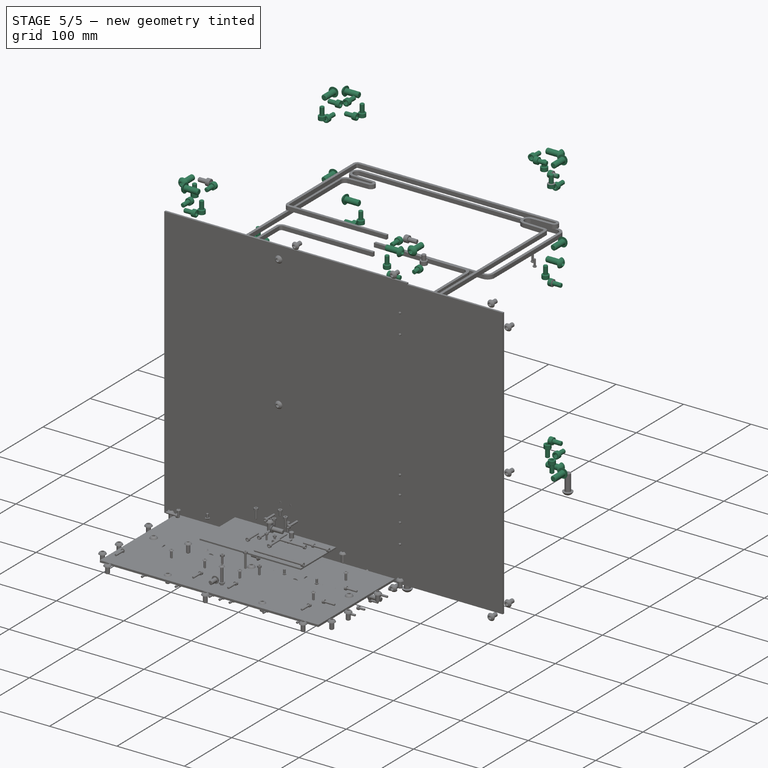
[diagram: stage 5 of 5 — iso view after this stage's code; geometry added in this stage tinted green]
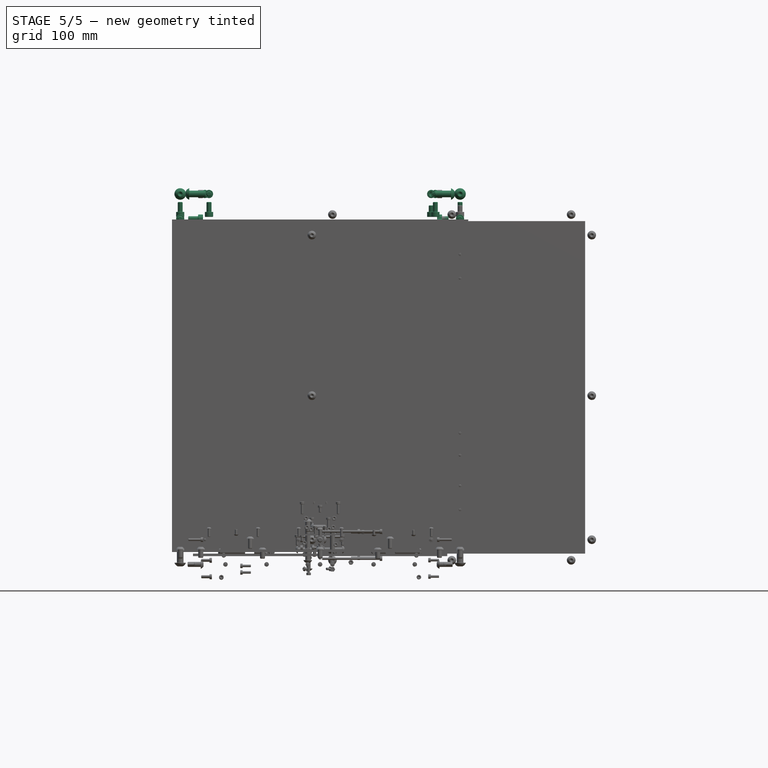
[diagram: stage 5 of 5 — front view after this stage's code; geometry added in this stage tinted green]
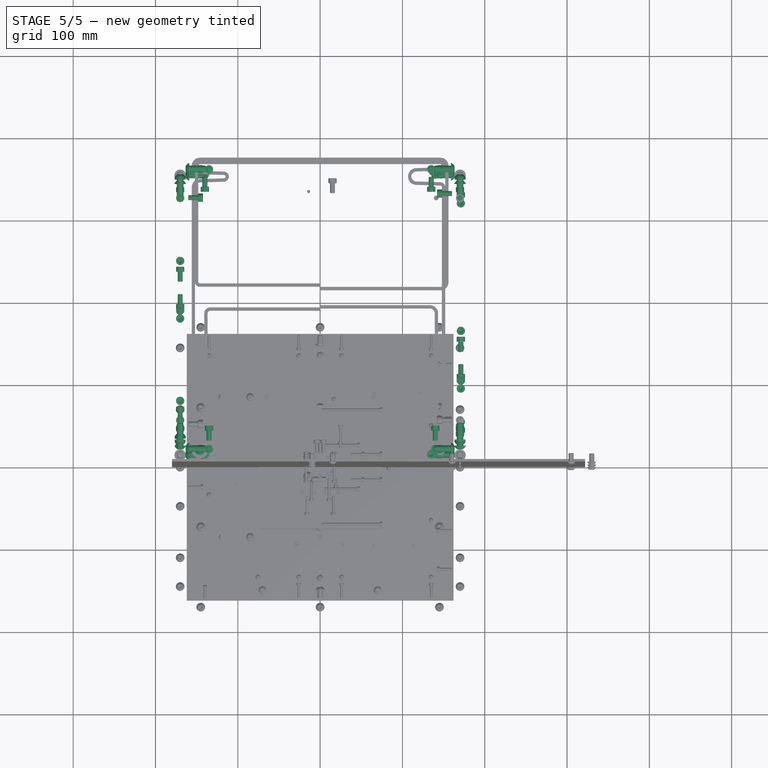
[diagram: stage 5 of 5 — top view after this stage's code; geometry added in this stage tinted green]
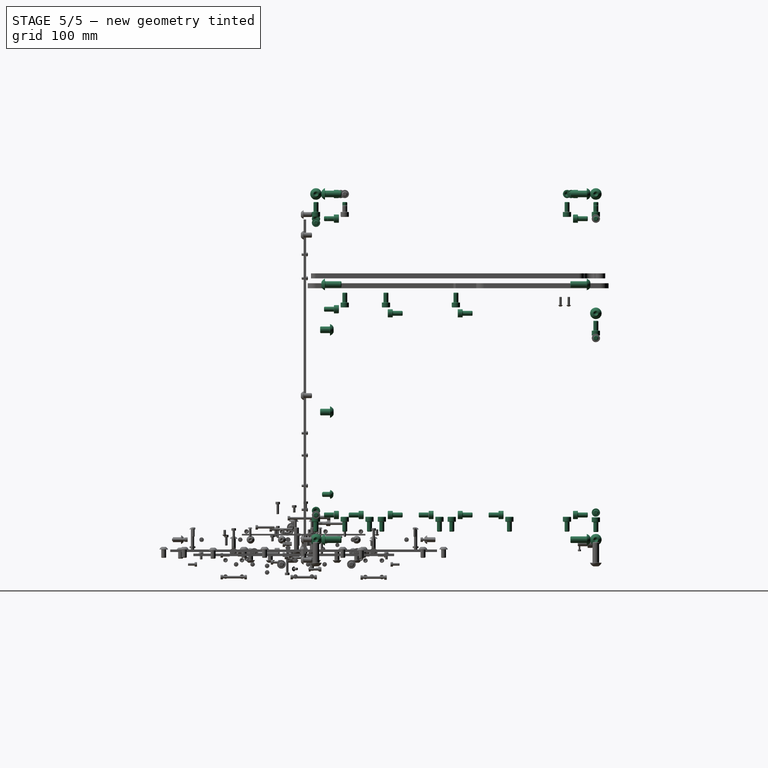
[diagram: stage 5 of 5 — right view after this stage's code; geometry added in this stage tinted green]
FEATURE [App::Part] Part085  label="rear-top-panel"
  ExportMode = 1
  Group = -> [Box015,Cut008004003004014002002005003004003002003001003001007,Cut008004003004014002002005003004003002003001003001008,Cut008004003004014002002005003004003002003001003001009,Cut008004003004014002002005003004003002003001003001010,Cut008004003004014002002005003004003002003001003001011,Cut008004003004014002002005003004003002003001003001012,Screw074,Screw073,Screw075,Screw077,Screw076,Screw079,Screw078,+3 more]
  Origin = -> Origin087
  Placement = pos=(1e-16,370,362.5) rot=(0,-0.707107,-0.707107;3.14159rad)
  _ExportChildren = -> [Box015,Cut008004003004014002002005003004003002003001003001007,Cut008004003004014002002005003004003002003001003001008,Cut008004003004014002002005003004003002003001003001009,Cut008004003004014002002005003004003002003001003001010,Cut008004003004014002002005003004003002003001003001011,Cut008004003004014002002005003004003002003001003001012,Screw074,Screw073,Screw075,Screw077,Screw076,Screw079,Screw078,+3 more]
  _GroupVersion = 1
FEATURE [Part::Feature] Cut002001001  label="belt-clamp-nut004"
  Placement = pos=(0,-2,0) rot=(0,0,1;0rad)
  shape: bbox 9 x 5 x 20 mm, 11 faces (baked)
FEATURE [Part::Feature] Fusion006002011004053036004001028003005014013  label="belt-holder004"
  Placement = pos=(0,-1,0) rot=(0,0,1;0rad)
  shape: bbox 12 x 7 x 20 mm, 88 faces (baked)
FEATURE [Part::Feature] Chamfer004013007011015006009007025  label="belt-connector-rf004"
  shape: bbox 28 x 9 x 20 mm, 47 faces (baked)
FEATURE [Part::FeaturePython] Washer049  label="M3-Washer126"  # Fasteners workbench fastener (typed FeaturePython)
  Placement = pos=(12.5,40.5,18.5) rot=(-1,0,0;1.5708rad)
  baseObject = -> Chamfer004013007011015006009007025 [Edge96]
  diameter = 4
  invert = true
  matchOuter = true
  offset = 0
  type = 5
FEATURE [Part::FeaturePython] Washer050  label="M3-Washer127"  # Fasteners workbench fastener (typed FeaturePython)
  Placement = pos=(-7.5,40.5,18.5) rot=(-1,0,0;1.5708rad)
  baseObject = -> Chamfer004013007011015006009007025 [Edge15]
  diameter = 4
  invert = true
  matchOuter = true
  offset = 0
  type = 5
FEATURE [Part::FeaturePython] Screw175  label="M3x14-Screw"  # Fasteners workbench fastener (typed FeaturePython)
  Placement = pos=(12.5,41.05,18.5) rot=(-1,0,0;1.5708rad)
  baseObject = -> Washer049 [Edge1]
  diameter = 4
  invert = false
  length = 5
  lengthCustom = 14
  matchOuter = true
  offset = 0
  thread = false
  type = 33
FEATURE [Part::FeaturePython] Screw176  label="M3x14-Screw044"  # Fasteners workbench fastener (typed FeaturePython)
  Placement = pos=(-7.5,41.05,18.5) rot=(-1,0,0;1.5708rad)
  baseObject = -> Washer050 [Edge1]
  diameter = 4
  invert = false
  length = 5
  lengthCustom = 14
  matchOuter = true
  offset = 0
  thread = false
  type = 33
FEATURE [Part::FeaturePython] Washer051  label="M3-Washer128"  # Fasteners workbench fastener (typed FeaturePython)
  Placement = pos=(2.5,33.5,18.5) rot=(1,0,0;1.5708rad)
  baseObject = -> Chamfer004013007011015006009007025 [Edge132]
  diameter = 4
  invert = false
  matchOuter = true
  offset = 0
  type = 5
FEATURE [Part::FeaturePython] Screw177  label="M3x14-Screw045"  # Fasteners workbench fastener (typed FeaturePython)
  Placement = pos=(2.5,32.95,18.5) rot=(1,0,0;1.5708rad)
  baseObject = -> Washer051 [Edge1]
  diameter = 1
  invert = false
  length = 4
  lengthCustom = 14
  matchOuter = true
  offset = 0
  thread = false
  type = 39
FEATURE [Part::FeaturePython] Screw260  label="M6x10-Screw098"  # Fasteners workbench fastener (typed FeaturePython)
  Placement = pos=(160,3.6e-15,-10) rot=(1,0,0;1.5708rad)
  baseObject = -> Cut008004003004014002002005003004003002003001003001047 [Edge42]
  diameter = 4
  invert = true
  length = 0
  lengthCustom = 10
  matchOuter = true
  offset = 0
  thread = false
  type = 39
FEATURE [Part::Feature] Fusion006002011004053036004001028003005014020  label="slider006"
  Placement = pos=(-14,2e-15,10) rot=(-1,0,0;1.5708rad)
  shape: bbox 16 x 20 x 25 mm, 76 faces (baked)
FEATURE [Part::Feature] Extrude002002002008  label="2020-290mm"
  Placement = pos=(-145,200,330) rot=(0,1,0;1.5708rad)
  shape: bbox 290 x 20 x 20 mm, 63 faces (baked)
FEATURE [Part::Feature] Extrude001  label="3030-310mm001-tap"
  Placement = pos=(-155,15,15) rot=(0,1,0;1.5708rad)
  shape: bbox 310 x 30 x 30 mm, 95 faces (baked)
FEATURE [Part::FeaturePython] Screw316  label="M8x20-Screw067"  # Fasteners workbench fastener (typed FeaturePython)
  Placement = pos=(-159,15,15) rot=(0,-1,0;1.5708rad)
  baseObject = -> Extrude001 [Edge278]
  diameter = 5
  invert = true
  length = 15
  lengthCustom = 20
  matchOuter = false
  offset = 4
  thread = false
  type = 39
FEATURE [Part::FeaturePython] Screw317  label="M8x20-Screw068"  # Fasteners workbench fastener (typed FeaturePython)
  Placement = pos=(159,15,15) rot=(0,1,0;1.5708rad)
  baseObject = -> Extrude001 [Edge279]
  diameter = 5
  invert = false
  length = 3
  lengthCustom = 20
  matchOuter = false
  offset = 4
  thread = false
  type = 39
FEATURE [Part::Feature] Extrude002  label="3030-310mm002-tap"
  Placement = pos=(-155,355,15) rot=(0,1,0;1.5708rad)
  shape: bbox 310 x 30 x 30 mm, 95 faces (baked)
FEATURE [Part::FeaturePython] Screw298  label="M8x20-Screw051"  # Fasteners workbench fastener (typed FeaturePython)
  Placement = pos=(-159,355,15) rot=(0,-1,0;1.5708rad)
  baseObject = -> Extrude002 [Edge278]
  diameter = 5
  invert = true
  length = 3
  lengthCustom = 20
  matchOuter = false
  offset = 4
  thread = false
  type = 39
FEATURE [Part::FeaturePython] Screw310  label="M8x20-Screw062"  # Fasteners workbench fastener (typed FeaturePython)
  Placement = pos=(159,355,15) rot=(0,1,0;1.5708rad)
  baseObject = -> Extrude002 [Edge279]
  diameter = 5
  invert = false
  length = 3
  lengthCustom = 20
  matchOuter = false
  offset = 4
  thread = false
  type = 39
FEATURE [Part::Feature] Extrude005  label="3030-310mm003-tap"
  Placement = pos=(170,30,435) rot=(0.57735,-0.57735,-0.57735;4.18879rad)
  shape: bbox 30 x 310 x 30 mm, 95 faces (baked)
FEATURE [Part::FeaturePython] Screw305  label="M8x20-Screw057"  # Fasteners workbench fastener (typed FeaturePython)
  Placement = pos=(170,26,435) rot=(1,0,0;1.5708rad)
  baseObject = -> Extrude005 [Edge278]
  diameter = 5
  invert = true
  length = 3
  lengthCustom = 20
  matchOuter = false
  offset = 4
  thread = false
  type = 39
FEATURE [Part::FeaturePython] Screw311  label="M8x20-Screw"  # Fasteners workbench fastener (typed FeaturePython)
  Placement = pos=(170,344,435) rot=(-1,0,0;1.5708rad)
  baseObject = -> Extrude005 [Edge279]
  diameter = 5
  invert = false
  length = 3
  lengthCustom = 20
  matchOuter = false
  offset = 4
  thread = false
  type = 39
FEATURE [Part::Feature] Extrude006  label="3030-310mm004-tap"
  Placement = pos=(-170,30,435) rot=(0.57735,-0.57735,-0.57735;4.18879rad)
  shape: bbox 30 x 310 x 30 mm, 95 faces (baked)
FEATURE [Part::FeaturePython] Screw304  label="M8x20-Screw056"  # Fasteners workbench fastener (typed FeaturePython)
  Placement = pos=(-170,344,435) rot=(-1,0,0;1.5708rad)
  baseObject = -> Extrude006 [Edge279]
  diameter = 5
  invert = false
  length = 3
  lengthCustom = 20
  matchOuter = false
  offset = 4
  thread = false
  type = 39
FEATURE [Part::FeaturePython] Screw313  label="M8x20-Screw064"  # Fasteners workbench fastener (typed FeaturePython)
  Placement = pos=(-170,26,435) rot=(1,0,0;1.5708rad)
  baseObject = -> Extrude006 [Edge278]
  diameter = 5
  invert = true
  length = 15
  lengthCustom = 20
  matchOuter = false
  offset = 4
  thread = false
  type = 39
FEATURE [Part::Feature] Extrude007  label="3030-310mm005-tap"
  Placement = pos=(-155,355,435) rot=(0,1,0;1.5708rad)
  shape: bbox 310 x 30 x 30 mm, 95 faces (baked)
FEATURE [Part::FeaturePython] Screw300  label="M8x20-Screw052"  # Fasteners workbench fastener (typed FeaturePython)
  Placement = pos=(-159,355,435) rot=(0,-1,0;1.5708rad)
  baseObject = -> Extrude007 [Edge278]
  diameter = 5
  invert = true
  length = 3
  lengthCustom = 20
  matchOuter = false
  offset = 4
  thread = false
  type = 39
FEATURE [Part::FeaturePython] Screw303  label="M8x20-Screw055"  # Fasteners workbench fastener (typed FeaturePython)
  Placement = pos=(159,355,435) rot=(0,1,0;1.5708rad)
  baseObject = -> Extrude007 [Edge279]
  diameter = 5
  invert = false
  length = 3
  lengthCustom = 20
  matchOuter = false
  offset = 4
  thread = false
  type = 39
FEATURE [Part::Feature] Extrude008  label="3030-310mm006-tap"
  Placement = pos=(-155,15,435) rot=(0,1,0;1.5708rad)
  shape: bbox 310 x 30 x 30 mm, 95 faces (baked)
FEATURE [Part::FeaturePython] Screw301  label="M8x20-Screw053"  # Fasteners workbench fastener (typed FeaturePython)
  Placement = pos=(-159,15,435) rot=(0,-1,0;1.5708rad)
  baseObject = -> Extrude008 [Edge278]
  diameter = 5
  invert = true
  length = 15
  lengthCustom = 20
  matchOuter = false
  offset = 4
  thread = false
  type = 39
FEATURE [Part::FeaturePython] Screw315  label="M8x20-Screw066"  # Fasteners workbench fastener (typed FeaturePython)
  Placement = pos=(159,15,435) rot=(0,1,0;1.5708rad)
  baseObject = -> Extrude008 [Edge279]
  diameter = 5
  invert = false
  length = 3
  lengthCustom = 20
  matchOuter = false
  offset = 4
  thread = false
  type = 39
FEATURE [Part::Feature] Extrude010  label="3030-310mm007-tap"
  Placement = pos=(-155,355,290) rot=(0,1,0;1.5708rad)
  shape: bbox 310 x 30 x 30 mm, 95 faces (baked)
FEATURE [Part::FeaturePython] Screw294  label="M8x20-Screw049"  # Fasteners workbench fastener (typed FeaturePython)
  Placement = pos=(159,355,290) rot=(0,1,0;1.5708rad)
  baseObject = -> Extrude010 [Edge279]
  diameter = 5
  invert = false
  length = 3
  lengthCustom = 20
  matchOuter = false
  offset = 4
  thread = false
  type = 39
FEATURE [Part::FeaturePython] Screw306  label="M8x20-Screw058"  # Fasteners workbench fastener (typed FeaturePython)
  Placement = pos=(-159,355,290) rot=(0,-1,0;1.5708rad)
  baseObject = -> Extrude010 [Edge278]
  diameter = 5
  invert = true
  length = 3
  lengthCustom = 20
  matchOuter = false
  offset = 4
  thread = false
  type = 39
FEATURE [Part::Feature] Extrude002002002002  label="3030-280mm001-tap"
  Placement = pos=(-170,215,30) rot=(0,0,1;0rad)
  shape: bbox 30 x 30 x 280 mm, 95 faces (baked)
FEATURE [Part::Feature] Extrude002002002003  label="3030-280mm002-tap"
  Placement = pos=(170,130,30) rot=(0,0,1;0rad)
  shape: bbox 30 x 30 x 280 mm, 95 faces (baked)
FEATURE [Part::Feature] Cut002  label="3030-450mm-front001-drill"
  shape: bbox 30 x 30 x 450 mm, 167 faces (baked)
FEATURE [Part::Feature] Cut008004003004014003  label="3030-450mm-front002-drill"
  Placement = pos=(340,0,0) rot=(0,0,1;0rad)
  shape: bbox 30 x 30 x 450 mm, 167 faces (baked)
FEATURE [Part::Feature] Cut008004003004014002002001  label="3030-450mm-back001-drill"
  Placement = pos=(-170,355,0) rot=(0,0,1;0rad)
  shape: bbox 30 x 30 x 450 mm, 181 faces (baked)
FEATURE [Part::Feature] Cut008004003004014002002002  label="3030-450mm-back002-drill"
  Placement = pos=(170,355,0) rot=(0,0,1;0rad)
  shape: bbox 30 x 30 x 450 mm, 181 faces (baked)
FEATURE [Part::Feature] Cut008004003004014002002003  label="3030-280mm003-tap"
  Placement = pos=(-170,45,30) rot=(0,0,1;0rad)
  shape: bbox 30 x 30 x 280 mm, 137 faces (baked)
FEATURE [Part::FeaturePython] Screw296  label="M8x12-Screw"  # Fasteners workbench fastener (typed FeaturePython)
  Placement = pos=(-170,32,270) rot=(-1,0,0;1.5708rad)
  baseObject = -> Cut008004003004014002002003 [Edge222]
  diameter = 5
  invert = false
  length = 0
  lengthCustom = 12
  matchOuter = false
  offset = -7
  thread = false
  type = 39
FEATURE [Part::FeaturePython] Screw297  label="M6x10-Screw111"  # Fasteners workbench fastener (typed FeaturePython)
  Placement = pos=(-171.336,32.6146,70) rot=(-0.981627,0.190809,0;1.5708rad)
  baseObject = -> Cut008004003004014002002003 [Edge214]
  diameter = 4
  invert = true
  length = 0
  lengthCustom = 10
  matchOuter = false
  offset = -7
  thread = false
  type = 39
FEATURE [Part::FeaturePython] Screw299  label="M8x12-Screw001"  # Fasteners workbench fastener (typed FeaturePython)
  Placement = pos=(-170,32,170) rot=(-1,0,0;1.5708rad)
  baseObject = -> Cut008004003004014002002003 [Edge219]
  diameter = 5
  invert = false
  length = 0
  lengthCustom = 12
  matchOuter = false
  offset = -7
  thread = false
  type = 39
FEATURE [Part::Feature] Cut008004003004014002002011  label="3030-310mm008-tap-drill"
  Placement = pos=(-170,30,0) rot=(0,0,1;0rad)
  shape: bbox 30 x 310 x 30 mm, 109 faces (baked)
FEATURE [Part::FeaturePython] Screw295  label="M8x20-Screw050"  # Fasteners workbench fastener (typed FeaturePython)
  Placement = pos=(-170,26,15) rot=(1,0,0;1.5708rad)
  baseObject = -> Cut008004003004014002002011 [Edge100]
  diameter = 5
  invert = true
  length = 15
  lengthCustom = 20
  matchOuter = false
  offset = 4
  thread = false
  type = 39
FEATURE [Part::FeaturePython] Screw302  label="M8x20-Screw054"  # Fasteners workbench fastener (typed FeaturePython)
  Placement = pos=(-170,344,15) rot=(-1,0,0;1.5708rad)
  baseObject = -> Cut008004003004014002002011 [Edge190]
  diameter = 5
  invert = false
  length = 3
  lengthCustom = 20
  matchOuter = false
  offset = 4
  thread = false
  type = 39
FEATURE [Part::Feature] Cut008004003004014002002012  label="3030-310mm009-tap-drill"
  Placement = pos=(-170,30,310) rot=(0,0,1;0rad)
  shape: bbox 30 x 310 x 30 mm, 109 faces (baked)
FEATURE [Part::FeaturePython] Screw307  label="M8x20-Screw059"  # Fasteners workbench fastener (typed FeaturePython)
  Placement = pos=(-170,344,325) rot=(-1,0,0;1.5708rad)
  baseObject = -> Cut008004003004014002002012 [Edge190]
  diameter = 5
  invert = false
  length = 3
  lengthCustom = 20
  matchOuter = false
  offset = 4
  thread = false
  type = 39
FEATURE [Part::FeaturePython] Screw318  label="M8x20-Screw069"  # Fasteners workbench fastener (typed FeaturePython)
  Placement = pos=(-170,26,325) rot=(1,0,0;1.5708rad)
  baseObject = -> Cut008004003004014002002012 [Edge100]
  diameter = 5
  invert = true
  length = 15
  lengthCustom = 20
  matchOuter = false
  offset = 4
  thread = false
  type = 39
FEATURE [Part::Feature] Cut008004003004014002002013  label="3030-310mm010-tap-drill"
  Placement = pos=(170,30,0) rot=(0,0,1;0rad)
  shape: bbox 30 x 310 x 30 mm, 109 faces (baked)
FEATURE [Part::FeaturePython] Screw309  label="M8x20-Screw061"  # Fasteners workbench fastener (typed FeaturePython)
  Placement = pos=(170,26,15) rot=(1,0,0;1.5708rad)
  baseObject = -> Cut008004003004014002002013 [Edge100]
  diameter = 5
  invert = true
  length = 3
  lengthCustom = 20
  matchOuter = false
  offset = 4
  thread = false
  type = 39
FEATURE [Part::FeaturePython] Screw314  label="M8x20-Screw065"  # Fasteners workbench fastener (typed FeaturePython)
  Placement = pos=(170,344,15) rot=(-1,0,0;1.5708rad)
  baseObject = -> Cut008004003004014002002013 [Edge190]
  diameter = 5
  invert = false
  length = 3
  lengthCustom = 20
  matchOuter = false
  offset = 4
  thread = false
  type = 39
FEATURE [Part::Feature] Cut008004003004014002002014  label="3030-310mm011-tap-drill"
  Placement = pos=(170,30,310) rot=(0,0,1;0rad)
  shape: bbox 30 x 310 x 30 mm, 109 faces (baked)
FEATURE [Part::FeaturePython] Screw308  label="M8x20-Screw060"  # Fasteners workbench fastener (typed FeaturePython)
  Placement = pos=(170,344,325) rot=(-1,0,0;1.5708rad)
  baseObject = -> Cut008004003004014002002014 [Edge190]
  diameter = 5
  invert = false
  length = 3
  lengthCustom = 20
  matchOuter = false
  offset = 4
  thread = false
  type = 39
FEATURE [Part::FeaturePython] Screw312  label="M8x20-Screw063"  # Fasteners workbench fastener (typed FeaturePython)
  Placement = pos=(170,26,325) rot=(1,0,0;1.5708rad)
  baseObject = -> Cut008004003004014002002014 [Edge100]
  diameter = 5
  invert = true
  length = 3
  lengthCustom = 20
  matchOuter = false
  offset = 4
  thread = false
  type = 39
FEATURE [App::Part] Part054  label="frame-extrusion"
  ExportMode = 1
  Group = -> [Screw305,Extrude005,Screw311,Screw300,Extrude007,Screw303,Screw312,Cut008004003004014002002014,Screw308,Screw306,Extrude010,Screw294,Screw309,Cut008004003004014002002013,Screw314,Screw298,Extrude002,Screw310,Screw313,Extrude006,Screw304,Screw318,Cut008004003004014002002012,Screw307,Screw295,Cut008004003004014002002011,Screw302,Screw315,Extrude008,Screw301,Screw317,Extrude001,Screw316,Screw297,+9 more]
  Origin = -> Origin056
  _ExportChildren = -> [Screw305,Extrude005,Screw311,Screw300,Extrude007,Screw303,Screw312,Cut008004003004014002002014,Screw308,Screw306,Extrude010,Screw294,Screw309,Cut008004003004014002002013,Screw314,Screw298,Extrude002,Screw310,Screw313,Extrude006,Screw304,Screw318,Cut008004003004014002002012,Screw307,Screw295,Cut008004003004014002002011,Screw302,Screw315,Extrude008,Screw301,Screw317,Extrude001,Screw316,Screw297,+9 more]
  _GroupVersion = 1
FEATURE [Part::Feature] Part__Feature112001097  label="L-corner-bracket026"
  Placement = pos=(170,340,420) rot=(0,0.707107,-0.707107;3.14159rad)
  shape: bbox 20 x 30 x 30 mm, 10 faces (baked)
FEATURE [Part::Feature] Part__Feature112001098  label="L-corner-bracket027"
  Placement = pos=(170,30,420) rot=(-1,0,0;1.5708rad)
  shape: bbox 20 x 30 x 30 mm, 10 faces (baked)
FEATURE [Part::FeaturePython] Washer110  label="M6-Washer183"  # Fasteners workbench fastener (typed FeaturePython)
  Placement = pos=(170,335,405) rot=(1,0,0;1.5708rad)
  baseObject = -> Part__Feature112001097 [Edge7]
  diameter = 2
  invert = true
  matchOuter = true
  offset = 0
  type = 4
FEATURE [Part::Feature] Part__Feature112001099  label="L-corner-bracket022"
  Placement = pos=(155,340,435) rot=(0.707107,0,-0.707107;3.14159rad)
  shape: bbox 30 x 30 x 20 mm, 10 faces (baked)
FEATURE [Part::Feature] Part__Feature112001100  label="L-corner-bracket025"
  Placement = pos=(-170,30,420) rot=(-1,0,0;1.5708rad)
  shape: bbox 20 x 30 x 30 mm, 10 faces (baked)
FEATURE [Part::FeaturePython] Washer098  label="M6-Washer160"  # Fasteners workbench fastener (typed FeaturePython)
  Placement = pos=(-170,35,405) rot=(-1,0,0;1.5708rad)
  baseObject = -> Part__Feature112001100 [Edge7]
  diameter = 2
  invert = true
  matchOuter = true
  offset = 0
  type = 4
FEATURE [Part::FeaturePython] Screw335  label="M6x12-Screw108"  # Fasteners workbench fastener (typed FeaturePython)
  Placement = pos=(-170,36.8,405) rot=(-1,0,0;1.5708rad)
  baseObject = -> Washer098 [Edge1]
  diameter = 7
  invert = false
  length = 2
  lengthCustom = 12
  matchOuter = true
  offset = 0
  thread = false
  type = 33
FEATURE [Part::Feature] Part__Feature112001101  label="L-corner-bracket024"
  Placement = pos=(-170,340,420) rot=(0,0.707107,-0.707107;3.14159rad)
  shape: bbox 20 x 30 x 30 mm, 10 faces (baked)
FEATURE [Part::FeaturePython] Washer104  label="M6-Washer166"  # Fasteners workbench fastener (typed FeaturePython)
  Placement = pos=(-170,335,405) rot=(1,0,0;1.5708rad)
  baseObject = -> Part__Feature112001101 [Edge7]
  diameter = 2
  invert = true
  matchOuter = true
  offset = 0
  type = 4
FEATURE [Part::FeaturePython] Screw337  label="M6x12-Screw110"  # Fasteners workbench fastener (typed FeaturePython)
  Placement = pos=(-170,333.2,405) rot=(1,0,0;1.5708rad)
  baseObject = -> Washer104 [Edge1]
  diameter = 7
  invert = false
  length = 2
  lengthCustom = 12
  matchOuter = true
  offset = 0
  thread = false
  type = 33
FEATURE [Part::FeaturePython] Screw355  label="M6x12-Screw128"  # Fasteners workbench fastener (typed FeaturePython)
  Placement = pos=(170,333.2,405) rot=(1,0,0;1.5708rad)
  baseObject = -> Washer110 [Edge1]
  diameter = 7
  invert = false
  length = 2
  lengthCustom = 12
  matchOuter = true
  offset = 0
  thread = false
  type = 33
FEATURE [Part::FeaturePython] Washer120  label="M6-Washer161"  # Fasteners workbench fastener (typed FeaturePython)
  Placement = pos=(-170,320,415) rot=(-1,0,0;3.14159rad)
  baseObject = -> Part__Feature112001101 [Edge4]
  diameter = 2
  invert = true
  matchOuter = true
  offset = 0
  type = 4
FEATURE [Part::FeaturePython] Screw332  label="M6x12-Screw107"  # Fasteners workbench fastener (typed FeaturePython)
  Placement = pos=(-170,320,413.2) rot=(-1,0,0;3.14159rad)
  baseObject = -> Washer120 [Edge1]
  diameter = 7
  invert = false
  length = 2
  lengthCustom = 12
  matchOuter = true
  offset = 0
  thread = false
  type = 33
FEATURE [Part::FeaturePython] Washer123  label="M6-Washer164"  # Fasteners workbench fastener (typed FeaturePython)
  Placement = pos=(-170,50,415) rot=(-1,0,0;3.14159rad)
  baseObject = -> Part__Feature112001100 [Edge1]
  diameter = 2
  invert = true
  matchOuter = true
  offset = 0
  type = 4
FEATURE [Part::FeaturePython] Screw336  label="M6x12-Screw109"  # Fasteners workbench fastener (typed FeaturePython)
  Placement = pos=(-170,50,413.2) rot=(-1,0,0;3.14159rad)
  baseObject = -> Washer123 [Edge1]
  diameter = 7
  invert = false
  length = 2
  lengthCustom = 12
  matchOuter = true
  offset = 0
  thread = false
  type = 33
FEATURE [Part::Feature] Part__Feature112001102  label="L-corner-bracket023"
  Placement = pos=(-155,355,420) rot=(0.57735,-0.57735,0.57735;4.18879rad)
  shape: bbox 30 x 20 x 30 mm, 10 faces (baked)
FEATURE [Part::FeaturePython] Washer091  label="M6-Washer147"  # Fasteners workbench fastener (typed FeaturePython)
  Placement = pos=(-150,355,405) rot=(0,1,0;1.5708rad)
  baseObject = -> Part__Feature112001102 [Edge7]
  diameter = 2
  invert = true
  matchOuter = true
  offset = 0
  type = 4
FEATURE [Part::FeaturePython] Screw330  label="M6x12-Screw105"  # Fasteners workbench fastener (typed FeaturePython)
  Placement = pos=(-148.2,355,405) rot=(0,1,0;1.5708rad)
  baseObject = -> Washer091 [Edge1]
  diameter = 7
  invert = false
  length = 2
  lengthCustom = 12
  matchOuter = true
  offset = 0
  thread = false
  type = 33
FEATURE [Part::FeaturePython] Washer117  label="M6-Washer176"  # Fasteners workbench fastener (typed FeaturePython)
  Placement = pos=(-135,355,415) rot=(-1,0,0;3.14159rad)
  baseObject = -> Part__Feature112001102 [Edge1]
  diameter = 2
  invert = true
  matchOuter = true
  offset = 0
  type = 4
FEATURE [Part::FeaturePython] Screw347  label="M6x12-Screw120"  # Fasteners workbench fastener (typed FeaturePython)
  Placement = pos=(-135,355,413.2) rot=(-1,0,0;3.14159rad)
  baseObject = -> Washer117 [Edge1]
  diameter = 7
  invert = false
  length = 2
  lengthCustom = 12
  matchOuter = true
  offset = 0
  thread = false
  type = 33
FEATURE [Part::FeaturePython] Washer130  label="M6-Washer156"  # Fasteners workbench fastener (typed FeaturePython)
  Placement = pos=(170,35,405) rot=(-1,0,0;1.5708rad)
  baseObject = -> Part__Feature112001098 [Edge7]
  diameter = 2
  invert = true
  matchOuter = true
  offset = 0
  type = 4
FEATURE [Part::FeaturePython] Screw328  label="M6x8-Screw"  # Fasteners workbench fastener (typed FeaturePython)
  Placement = pos=(170,36.8,405) rot=(-1,0,0;1.5708rad)
  baseObject = -> Washer130 [Edge1]
  diameter = 7
  invert = false
  length = 0
  lengthCustom = 8
  matchOuter = true
  offset = 0
  thread = false
  type = 33
FEATURE [Part::Feature] Part__Feature112001040  label="L-corner-bracket002"
  Placement = pos=(-155,15,420) rot=(0.57735,-0.57735,0.57735;4.18879rad)
  shape: bbox 30 x 20 x 30 mm, 10 faces (baked)
FEATURE [Part::FeaturePython] Washer101  label="M6-Washer170"  # Fasteners workbench fastener (typed FeaturePython)
  Placement = pos=(-150,15,405) rot=(0,1,0;1.5708rad)
  baseObject = -> Part__Feature112001040 [Edge7]
  diameter = 2
  invert = true
  matchOuter = true
  offset = 0
  type = 4
FEATURE [Part::FeaturePython] Washer106  label="M6-Washer177"  # Fasteners workbench fastener (typed FeaturePython)
  Placement = pos=(-135,15,415) rot=(-1,0,0;3.14159rad)
  baseObject = -> Part__Feature112001040 [Edge1]
  diameter = 2
  invert = true
  matchOuter = true
  offset = 0
  type = 4
FEATURE [Part::FeaturePython] Screw356  label="M6x12-Screw129"  # Fasteners workbench fastener (typed FeaturePython)
  Placement = pos=(-135,15,413.2) rot=(-1,0,0;3.14159rad)
  baseObject = -> Washer106 [Edge1]
  diameter = 7
  invert = false
  length = 2
  lengthCustom = 12
  matchOuter = true
  offset = 0
  thread = false
  type = 33
FEATURE [Part::FeaturePython] Screw357  label="M6x12-Screw130"  # Fasteners workbench fastener (typed FeaturePython)
  Placement = pos=(-148.2,15,405) rot=(0,1,0;1.5708rad)
  baseObject = -> Washer101 [Edge1]
  diameter = 7
  invert = false
  length = 2
  lengthCustom = 12
  matchOuter = true
  offset = 0
  thread = false
  type = 33
FEATURE [Part::Feature] Part__Feature112001041  label="L-corner-bracket003"
  Placement = pos=(155,15,420) rot=(0.707107,-0.707107,0;3.14159rad)
  shape: bbox 30 x 20 x 30 mm, 10 faces (baked)
FEATURE [Part::FeaturePython] Washer111  label="M6-Washer157"  # Fasteners workbench fastener (typed FeaturePython)
  Placement = pos=(140,15,415) rot=(-1,0,0;3.14159rad)
  baseObject = -> Part__Feature112001041 [Edge7]
  diameter = 2
  invert = true
  matchOuter = true
  offset = 0
  type = 4
FEATURE [Part::FeaturePython] Screw329  label="M6x12-Screw104"  # Fasteners workbench fastener (typed FeaturePython)
  Placement = pos=(140,15,413.2) rot=(-1,0,0;3.14159rad)
  baseObject = -> Washer111 [Edge1]
  diameter = 7
  invert = false
  length = 2
  lengthCustom = 12
  matchOuter = true
  offset = 0
  thread = false
  type = 33
FEATURE [Part::FeaturePython] Washer113  label="M6-Washer144"  # Fasteners workbench fastener (typed FeaturePython)
  Placement = pos=(150,15,400) rot=(0,-1,0;1.5708rad)
  baseObject = -> Part__Feature112001041 [Edge1]
  diameter = 2
  invert = true
  matchOuter = true
  offset = 0
  type = 4
FEATURE [Part::FeaturePython] Screw321  label="M6x12-Screw097"  # Fasteners workbench fastener (typed FeaturePython)
  Placement = pos=(148.2,15,400) rot=(0,-1,0;1.5708rad)
  baseObject = -> Washer113 [Edge1]
  diameter = 7
  invert = false
  length = 2
  lengthCustom = 12
  matchOuter = true
  offset = 0
  thread = false
  type = 33
FEATURE [Part::Feature] Part__Feature112001042  label="L-corner-bracket004"
  Placement = pos=(155,15,30) rot=(0.57735,-0.57735,-0.57735;2.0944rad)
  shape: bbox 30 x 20 x 30 mm, 10 faces (baked)
FEATURE [Part::FeaturePython] Washer128  label="M6-Washer159"  # Fasteners workbench fastener (typed FeaturePython)
  Placement = pos=(135,15,35) rot=(0,0,1;0rad)
  baseObject = -> Part__Feature112001042 [Edge1]
  diameter = 2
  invert = true
  matchOuter = true
  offset = 0
  type = 4
FEATURE [Part::FeaturePython] Screw331  label="M6x12-Screw106"  # Fasteners workbench fastener (typed FeaturePython)
  Placement = pos=(135,15,36.8) rot=(0,0,1;0rad)
  baseObject = -> Washer128 [Edge1]
  diameter = 7
  invert = false
  length = 2
  lengthCustom = 12
  matchOuter = true
  offset = 0
  thread = false
  type = 33
FEATURE [Part::FeaturePython] Screw325  label="M6x12-Screw101"  # Fasteners workbench fastener (typed FeaturePython)
  Placement = pos=(148.2,15,45) rot=(0,-1,0;1.5708rad)
  baseObject = -> Washer139 [Edge1]
  diameter = 7
  invert = false
  length = 2
  lengthCustom = 12
  matchOuter = true
  offset = 0
  thread = false
  type = 33
FEATURE [Part::Feature] Part__Feature112001054  label="HCJ_Joint001"
  Placement = pos=(-159,355,290) rot=(0.57735,0.57735,-0.57735;2.0944rad)
  shape: bbox 7.5 x 15 x 24 mm, 29 faces (baked)
FEATURE [Part::Feature] Part__Feature112001055  label="HCJ_Joint002"
  Placement = pos=(160,355,290) rot=(0.57735,-0.57735,-0.57735;4.18879rad)
  shape: bbox 7.5 x 15 x 24 mm, 29 faces (baked)
FEATURE [Part::Feature] Part__Feature112001056  label="HCJ_Joint003"
  Placement = pos=(-159,355,435) rot=(0.57735,0.57735,-0.57735;2.0944rad)
  shape: bbox 7.5 x 15 x 24 mm, 29 faces (baked)
FEATURE [Part::Feature] Part__Feature112001057  label="HCJ_Joint004"
  Placement = pos=(160,355,435) rot=(0.57735,-0.57735,-0.57735;4.18879rad)
  shape: bbox 7.5 x 15 x 24 mm, 29 faces (baked)
FEATURE [Part::Feature] Part__Feature112001058  label="HCJ_Joint005"
  Placement = pos=(-159,355,15) rot=(0.57735,0.57735,-0.57735;2.0944rad)
  shape: bbox 7.5 x 15 x 24 mm, 29 faces (baked)
FEATURE [Part::Feature] Part__Feature112001059  label="HCJ_Joint006"
  Placement = pos=(160,355,15) rot=(0.57735,-0.57735,-0.57735;4.18879rad)
  shape: bbox 7.5 x 15 x 24 mm, 29 faces (baked)
FEATURE [Part::Feature] Part__Feature112001060  label="HCJ_Joint007"
  Placement = pos=(170,344,15) rot=(0.707107,0,-0.707107;3.14159rad)
  shape: bbox 15 x 7.5 x 24 mm, 29 faces (baked)
FEATURE [Part::Feature] Part__Feature112001061  label="HCJ_Joint008"
  Placement = pos=(170,26,15) rot=(0,1,0;1.5708rad)
  shape: bbox 15 x 7.5 x 24 mm, 29 faces (baked)
FEATURE [Part::Feature] Part__Feature112001062  label="HCJ_Joint009"
  Placement = pos=(159,15,15) rot=(0.57735,-0.57735,-0.57735;4.18879rad)
  shape: bbox 7.5 x 15 x 24 mm, 29 faces (baked)
FEATURE [Part::Feature] Part__Feature112001063  label="HCJ_Joint010"
  Placement = pos=(-159,15,15) rot=(0.57735,0.57735,-0.57735;2.0944rad)
  shape: bbox 7.5 x 15 x 24 mm, 29 faces (baked)
FEATURE [Part::Feature] Part__Feature112001064  label="HCJ_Joint011"
  Placement = pos=(-170,26,15) rot=(0,1,0;1.5708rad)
  shape: bbox 15 x 7.5 x 24 mm, 29 faces (baked)
FEATURE [Part::Feature] Part__Feature112001065  label="HCJ_Joint012"
  Placement = pos=(-170,344,435) rot=(0.707107,0,-0.707107;3.14159rad)
  shape: bbox 15 x 7.5 x 24 mm, 29 faces (baked)
FEATURE [Part::Feature] Part__Feature112001066  label="HCJ_Joint013"
  Placement = pos=(170,344,435) rot=(0.707107,0,-0.707107;3.14159rad)
  shape: bbox 15 x 7.5 x 24 mm, 29 faces (baked)
FEATURE [Part::Feature] Part__Feature112001067  label="HCJ_Joint014"
  Placement = pos=(170,26,435) rot=(0,1,0;1.5708rad)
  shape: bbox 15 x 7.5 x 24 mm, 29 faces (baked)
FEATURE [Part::Feature] Part__Feature112001068  label="HCJ_Joint015"
  Placement = pos=(159,15,435) rot=(0.57735,-0.57735,-0.57735;4.18879rad)
  shape: bbox 7.5 x 15 x 24 mm, 29 faces (baked)
FEATURE [Part::Feature] Part__Feature112001069  label="HCJ_Joint016"
  Placement = pos=(-159,15,435) rot=(0.57735,0.57735,-0.57735;2.0944rad)
  shape: bbox 7.5 x 15 x 24 mm, 29 faces (baked)
FEATURE [Part::Feature] Part__Feature112001070  label="HCJ_Joint017"
  Placement = pos=(-170,26,435) rot=(0,1,0;1.5708rad)
  shape: bbox 15 x 7.5 x 24 mm, 29 faces (baked)
FEATURE [Part::Feature] Part__Feature112001071  label="L-corner-bracket005"
  Placement = pos=(-155,30,435) rot=(0,1,0;1.5708rad)
  shape: bbox 30 x 30 x 20 mm, 10 faces (baked)
FEATURE [Part::FeaturePython] Washer118  label="M6-Washer188"  # Fasteners workbench fastener (typed FeaturePython)
  Placement = pos=(-135,35,435) rot=(-1,0,0;1.5708rad)
  baseObject = -> Part__Feature112001071 [Edge4]
  diameter = 2
  invert = true
  matchOuter = true
  offset = 0
  type = 4
FEATURE [Part::FeaturePython] Screw371  label="M6x12-Screw144"  # Fasteners workbench fastener (typed FeaturePython)
  Placement = pos=(-135,36.8,435) rot=(-1,0,0;1.5708rad)
  baseObject = -> Washer118 [Edge1]
  diameter = 7
  invert = false
  length = 2
  lengthCustom = 12
  matchOuter = true
  offset = 0
  thread = false
  type = 33
FEATURE [Part::Feature] Part__Feature112001072  label="L-corner-bracket006"
  Placement = pos=(-155,340,435) rot=(0.57735,0.57735,-0.57735;2.0944rad)
  shape: bbox 30 x 30 x 20 mm, 10 faces (baked)
FEATURE [Part::FeaturePython] Washer102  label="M6-Washer171"  # Fasteners workbench fastener (typed FeaturePython)
  Placement = pos=(-140,335,435) rot=(1,0,0;1.5708rad)
  baseObject = -> Part__Feature112001072 [Edge7]
  diameter = 2
  invert = true
  matchOuter = true
  offset = 0
  type = 4
FEATURE [Part::FeaturePython] Washer103  label="M6-Washer172"  # Fasteners workbench fastener (typed FeaturePython)
  Placement = pos=(-150,320,435) rot=(0,1,0;1.5708rad)
  baseObject = -> Part__Feature112001072 [Edge4]
  diameter = 2
  invert = true
  matchOuter = true
  offset = 0
  type = 4
FEATURE [Part::FeaturePython] Screw343  label="M6x12-Screw116"  # Fasteners workbench fastener (typed FeaturePython)
  Placement = pos=(-148.2,320,435) rot=(0,1,0;1.5708rad)
  baseObject = -> Washer103 [Edge1]
  diameter = 7
  invert = false
  length = 2
  lengthCustom = 12
  matchOuter = true
  offset = 0
  thread = false
  type = 33
FEATURE [Part::FeaturePython] Screw363  label="M6x12-Screw136"  # Fasteners workbench fastener (typed FeaturePython)
  Placement = pos=(-140,333.2,435) rot=(1,0,0;1.5708rad)
  baseObject = -> Washer102 [Edge1]
  diameter = 7
  invert = false
  length = 2
  lengthCustom = 12
  matchOuter = true
  offset = 0
  thread = false
  type = 33
FEATURE [Part::Feature] Part__Feature112001073  label="L-corner-bracket007"
  Placement = pos=(155,340,435) rot=(0.707107,0,-0.707107;3.14159rad)
  shape: bbox 30 x 30 x 20 mm, 10 faces (baked)
FEATURE [Part::FeaturePython] Washer112  label="M6-Washer184"  # Fasteners workbench fastener (typed FeaturePython)
  Placement = pos=(135,335,435) rot=(1,0,0;1.5708rad)
  baseObject = -> Part__Feature112001073 [Edge1]
  diameter = 2
  invert = true
  matchOuter = true
  offset = 0
  type = 4
FEATURE [Part::FeaturePython] Screw352  label="M6x12-Screw125"  # Fasteners workbench fastener (typed FeaturePython)
  Placement = pos=(135,333.2,435) rot=(1,0,0;1.5708rad)
  baseObject = -> Washer112 [Edge1]
  diameter = 7
  invert = false
  length = 2
  lengthCustom = 12
  matchOuter = true
  offset = 0
  thread = false
  type = 33
FEATURE [Part::FeaturePython] Washer119  label="M6-Washer190"  # Fasteners workbench fastener (typed FeaturePython)
  Placement = pos=(150,325,435) rot=(0,-1,0;1.5708rad)
  baseObject = -> Part__Feature112001073 [Edge7]
  diameter = 2
  invert = true
  matchOuter = true
  offset = 0
  type = 4
FEATURE [Part::FeaturePython] Screw367  label="M6x12-Screw140"  # Fasteners workbench fastener (typed FeaturePython)
  Placement = pos=(148.2,325,435) rot=(0,-1,0;1.5708rad)
  baseObject = -> Washer119 [Edge1]
  diameter = 7
  invert = false
  length = 2
  lengthCustom = 12
  matchOuter = true
  offset = 0
  thread = false
  type = 33
FEATURE [Part::Feature] Part__Feature112001074  label="L-corner-bracket008"
  Placement = pos=(155,30,435) rot=(0.57735,-0.57735,-0.57735;4.18879rad)
  shape: bbox 30 x 30 x 20 mm, 10 faces (baked)
FEATURE [Part::FeaturePython] Washer105  label="M6-Washer145"  # Fasteners workbench fastener (typed FeaturePython)
  Placement = pos=(140,35,435) rot=(-1,0,0;1.5708rad)
  baseObject = -> Part__Feature112001074 [Edge7]
  diameter = 2
  invert = true
  matchOuter = true
  offset = 0
  type = 4
FEATURE [Part::FeaturePython] Screw322  label="M6x12-Screw098"  # Fasteners workbench fastener (typed FeaturePython)
  Placement = pos=(140,36.8,435) rot=(-1,0,0;1.5708rad)
  baseObject = -> Washer105 [Edge1]
  diameter = 7
  invert = false
  length = 2
  lengthCustom = 12
  matchOuter = true
  offset = 0
  thread = false
  type = 33
FEATURE [Part::Feature] Part__Feature112001020  label="Block-corner-bracket001"
  Placement = pos=(-155,355,30) rot=(0,0,-1;1.5708rad)
  shape: bbox 31 x 20 x 31 mm, 71 faces (baked)
FEATURE [Part::FeaturePython] Washer092  label="M6-Washer150"  # Fasteners workbench fastener (typed FeaturePython)
  Placement = pos=(-150.8,355,48) rot=(0,1,0;1.5708rad)
  baseObject = -> Part__Feature112001020 [Edge153]
  diameter = 2
  invert = false
  matchOuter = true
  offset = 0
  type = 4
FEATURE [Part::FeaturePython] Screw360  label="M6x12-Screw133"  # Fasteners workbench fastener (typed FeaturePython)
  Placement = pos=(-149,355,48) rot=(0,1,0;1.5708rad)
  baseObject = -> Washer092 [Edge1]
  diameter = 7
  invert = false
  length = 2
  lengthCustom = 12
  matchOuter = true
  offset = 0
  thread = false
  type = 33
FEATURE [Part::FeaturePython] Washer125  label="M6-Washer181"  # Fasteners workbench fastener (typed FeaturePython)
  Placement = pos=(-140,355,34.5) rot=(0,0,1;0rad)
  baseObject = -> Part__Feature112001020 [Edge155]
  diameter = 2
  invert = false
  matchOuter = true
  offset = 0
  type = 4
FEATURE [Part::FeaturePython] Screw349  label="M6x12-Screw122"  # Fasteners workbench fastener (typed FeaturePython)
  Placement = pos=(-140,355,36.3) rot=(0,0,1;0rad)
  baseObject = -> Washer125 [Edge1]
  diameter = 7
  invert = false
  length = 2
  lengthCustom = 12
  matchOuter = true
  offset = 0
  thread = false
  type = 33
FEATURE [Part::Feature] Part__Feature112001021  label="Block-corner-bracket002"
  Placement = pos=(155,355,30) rot=(0,0,1;1.5708rad)
  shape: bbox 31 x 20 x 31 mm, 71 faces (baked)
FEATURE [Part::FeaturePython] Washer124  label="M6-Washer185"  # Fasteners workbench fastener (typed FeaturePython)
  Placement = pos=(150.8,355,48) rot=(0,-1,0;1.5708rad)
  baseObject = -> Part__Feature112001021 [Edge154]
  diameter = 2
  invert = false
  matchOuter = true
  offset = 0
  type = 4
FEATURE [Part::FeaturePython] Screw354  label="M6x12-Screw127"  # Fasteners workbench fastener (typed FeaturePython)
  Placement = pos=(149,355,48) rot=(0,-1,0;1.5708rad)
  baseObject = -> Washer124 [Edge1]
  diameter = 7
  invert = false
  length = 2
  lengthCustom = 12
  matchOuter = true
  offset = 0
  thread = false
  type = 33
FEATURE [Part::FeaturePython] Washer132  label="M6-Washer194"  # Fasteners workbench fastener (typed FeaturePython)
  Placement = pos=(140,355,34.5) rot=(0,0,1;0rad)
  baseObject = -> Part__Feature112001021 [Edge157]
  diameter = 2
  invert = false
  matchOuter = true
  offset = 0
  type = 4
FEATURE [Part::FeaturePython] Screw365  label="M6x12-Screw138"  # Fasteners workbench fastener (typed FeaturePython)
  Placement = pos=(140,355,36.3) rot=(0,0,1;0rad)
  baseObject = -> Washer132 [Edge1]
  diameter = 7
  invert = false
  length = 2
  lengthCustom = 12
  matchOuter = true
  offset = 0
  thread = false
  type = 33
FEATURE [Part::Feature] Part__Feature112001075  label="L-corner-bracket009"
  Placement = pos=(155,355,420) rot=(0.57735,0.57735,-0.57735;4.18879rad)
  shape: bbox 30 x 20 x 30 mm, 10 faces (baked)
FEATURE [Part::FeaturePython] Washer127  label="M6-Washer162"  # Fasteners workbench fastener (typed FeaturePython)
  Placement = pos=(135,355,415) rot=(-1,0,0;3.14159rad)
  baseObject = -> Part__Feature112001075 [Edge1]
  diameter = 2
  invert = true
  matchOuter = true
  offset = 0
  type = 4
FEATURE [Part::FeaturePython] Screw333  label="M6x8-Screw011"  # Fasteners workbench fastener (typed FeaturePython)
  Placement = pos=(135,355,413.2) rot=(-1,0,0;3.14159rad)
  baseObject = -> Washer127 [Edge1]
  diameter = 7
  invert = false
  length = 0
  lengthCustom = 8
  matchOuter = true
  offset = 0
  thread = false
  type = 33
FEATURE [Part::FeaturePython] Screw334  label="M6x8-Screw012"  # Fasteners workbench fastener (typed FeaturePython)
  Placement = pos=(148.2,355,405) rot=(0,-1,0;1.5708rad)
  baseObject = -> Washer140 [Edge1]
  diameter = 7
  invert = false
  length = 0
  lengthCustom = 8
  matchOuter = true
  offset = 0
  thread = false
  type = 33
FEATURE [Part::FeaturePython] Screw326  label="M6x12-Screw102"  # Fasteners workbench fastener (typed FeaturePython)
  Placement = pos=(170,50,36.8) rot=(0,0,1;0rad)
  baseObject = -> Washer136 [Edge1]
  diameter = 7
  invert = false
  length = 2
  lengthCustom = 12
  matchOuter = true
  offset = 0
  thread = false
  type = 33
FEATURE [Part::FeaturePython] Screw348  label="M6x12-Screw121"  # Fasteners workbench fastener (typed FeaturePython)
  Placement = pos=(170,36.8,45) rot=(-1,0,0;1.5708rad)
  baseObject = -> Washer137 [Edge1]
  diameter = 7
  invert = false
  length = 2
  lengthCustom = 12
  matchOuter = true
  offset = 0
  thread = false
  type = 33
FEATURE [Part::Feature] Part__Feature112001079  label="L-corner-bracket012"
  Placement = pos=(-170,200,30) rot=(1,0,0;1.5708rad)
  shape: bbox 20 x 30 x 30 mm, 10 faces (baked)
FEATURE [Part::FeaturePython] Washer114  label="M6-Washer175"  # Fasteners workbench fastener (typed FeaturePython)
  Placement = pos=(-170,195,45) rot=(1,0,0;1.5708rad)
  baseObject = -> Part__Feature112001079 [Edge7]
  diameter = 2
  invert = true
  matchOuter = true
  offset = 0
  type = 4
FEATURE [Part::FeaturePython] Screw346  label="M6x12-Screw119"  # Fasteners workbench fastener (typed FeaturePython)
  Placement = pos=(-170,193.2,45) rot=(1,0,0;1.5708rad)
  baseObject = -> Washer114 [Edge1]
  diameter = 7
  invert = false
  length = 2
  lengthCustom = 12
  matchOuter = true
  offset = 0
  thread = false
  type = 33
FEATURE [Part::FeaturePython] Washer116  label="M6-Washer187"  # Fasteners workbench fastener (typed FeaturePython)
  Placement = pos=(-170,180,35) rot=(0,0,1;0rad)
  baseObject = -> Part__Feature112001079 [Edge4]
  diameter = 2
  invert = true
  matchOuter = true
  offset = 0
  type = 4
FEATURE [Part::FeaturePython] Screw362  label="M6x12-Screw135"  # Fasteners workbench fastener (typed FeaturePython)
  Placement = pos=(-170,180,36.8) rot=(0,0,1;0rad)
  baseObject = -> Washer116 [Edge1]
  diameter = 7
  invert = false
  length = 2
  lengthCustom = 12
  matchOuter = true
  offset = 0
  thread = false
  type = 33
FEATURE [Part::Feature] Part__Feature112001080  label="L-corner-bracket013"
  Placement = pos=(171,115,30) rot=(1,0,0;1.5708rad)
  shape: bbox 20 x 30 x 30 mm, 10 faces (baked)
FEATURE [Part::FeaturePython] Washer095  label="M6-Washer153"  # Fasteners workbench fastener (typed FeaturePython)
  Placement = pos=(171,110,45) rot=(1,0,0;1.5708rad)
  baseObject = -> Part__Feature112001080 [Edge7]
  diameter = 2
  invert = true
  matchOuter = true
  offset = 0
  type = 4
FEATURE [Part::FeaturePython] Screw327  label="M6x12-Screw103"  # Fasteners workbench fastener (typed FeaturePython)
  Placement = pos=(171,108.2,45) rot=(1,0,0;1.5708rad)
  baseObject = -> Washer095 [Edge1]
  diameter = 7
  invert = false
  length = 2
  lengthCustom = 12
  matchOuter = true
  offset = 0
  thread = false
  type = 33
FEATURE [Part::FeaturePython] Screw342  label="M6x12-Screw115"  # Fasteners workbench fastener (typed FeaturePython)
  Placement = pos=(171,95,36.8) rot=(0,0,1;0rad)
  baseObject = -> Washer135 [Edge1]
  diameter = 7
  invert = false
  length = 2
  lengthCustom = 12
  matchOuter = true
  offset = 0
  thread = false
  type = 33
FEATURE [Part::Feature] Part__Feature112001081  label="L-corner-bracket014"
  Placement = pos=(-170,200,310) rot=(1,0,0;3.14159rad)
  shape: bbox 20 x 30 x 30 mm, 10 faces (baked)
FEATURE [Part::FeaturePython] Washer090  label="M6-Washer142"  # Fasteners workbench fastener (typed FeaturePython)
  Placement = pos=(-170,195,290) rot=(1,0,0;1.5708rad)
  baseObject = -> Part__Feature112001081 [Edge4]
  diameter = 2
  invert = true
  matchOuter = true
  offset = 0
  type = 4
FEATURE [Part::FeaturePython] Washer094  label="M6-Washer152"  # Fasteners workbench fastener (typed FeaturePython)
  Placement = pos=(-170,185,305) rot=(-1,0,0;3.14159rad)
  baseObject = -> Part__Feature112001081 [Edge7]
  diameter = 2
  invert = true
  matchOuter = true
  offset = 0
  type = 4
FEATURE [Part::FeaturePython] Screw366  label="M6x12-Screw139"  # Fasteners workbench fastener (typed FeaturePython)
  Placement = pos=(-170,193.2,290) rot=(1,0,0;1.5708rad)
  baseObject = -> Washer090 [Edge1]
  diameter = 7
  invert = false
  length = 2
  lengthCustom = 12
  matchOuter = true
  offset = 0
  thread = false
  type = 33
FEATURE [Part::FeaturePython] Screw370  label="M6x12-Screw143"  # Fasteners workbench fastener (typed FeaturePython)
  Placement = pos=(-170,185,303.2) rot=(-1,0,0;3.14159rad)
  baseObject = -> Washer094 [Edge1]
  diameter = 7
  invert = false
  length = 2
  lengthCustom = 12
  matchOuter = true
  offset = 0
  thread = false
  type = 33
FEATURE [Part::Feature] Part__Feature112001082  label="L-corner-bracket016"
  Placement = pos=(171,115,310) rot=(1,0,0;3.14159rad)
  shape: bbox 20 x 30 x 30 mm, 10 faces (baked)
FEATURE [Part::FeaturePython] Washer097  label="M6-Washer158"  # Fasteners workbench fastener (typed FeaturePython)
  Placement = pos=(171,110,290) rot=(1,0,0;1.5708rad)
  baseObject = -> Part__Feature112001082 [Edge1]
  diameter = 2
  invert = true
  matchOuter = true
  offset = 0
  type = 4
FEATURE [Part::FeaturePython] Washer099  label="M6-Washer168"  # Fasteners workbench fastener (typed FeaturePython)
  Placement = pos=(171,100,305) rot=(-1,0,0;3.14159rad)
  baseObject = -> Part__Feature112001082 [Edge7]
  diameter = 2
  invert = true
  matchOuter = true
  offset = 0
  type = 4
FEATURE [Part::FeaturePython] Screw353  label="M6x12-Screw126"  # Fasteners workbench fastener (typed FeaturePython)
  Placement = pos=(171,108.2,290) rot=(1,0,0;1.5708rad)
  baseObject = -> Washer097 [Edge1]
  diameter = 7
  invert = false
  length = 2
  lengthCustom = 12
  matchOuter = true
  offset = 0
  thread = false
  type = 33
FEATURE [Part::FeaturePython] Screw361  label="M6x12-Screw134"  # Fasteners workbench fastener (typed FeaturePython)
  Placement = pos=(171,100,303.2) rot=(-1,0,0;3.14159rad)
  baseObject = -> Washer099 [Edge1]
  diameter = 7
  invert = false
  length = 2
  lengthCustom = 12
  matchOuter = true
  offset = 0
  thread = false
  type = 33
FEATURE [Part::Feature] Part__Feature112001083  label="L-corner-bracket015"
  Placement = pos=(171,30,310) rot=(-1,0,0;1.5708rad)
  shape: bbox 20 x 30 x 30 mm, 10 faces (baked)
FEATURE [Part::FeaturePython] Washer009  label="M6-Washer165"  # Fasteners workbench fastener (typed FeaturePython)
  Placement = pos=(171,35,295) rot=(-1,0,0;1.5708rad)
  baseObject = -> Part__Feature112001083 [Edge7]
  diameter = 2
  invert = true
  matchOuter = true
  offset = 0
  type = 4
FEATURE [Part::FeaturePython] Screw340  label="M6x12-Screw113"  # Fasteners workbench fastener (typed FeaturePython)
  Placement = pos=(171,36.8,295) rot=(-1,0,0;1.5708rad)
  baseObject = -> Washer009 [Edge1]
  diameter = 7
  invert = false
  length = 2
  lengthCustom = 12
  matchOuter = true
  offset = 0
  thread = false
  type = 33
FEATURE [Part::FeaturePython] Washer008  label="M6-Washer"  # Fasteners workbench fastener (typed FeaturePython)
  Placement = pos=(171,50,305) rot=(-1,0,0;3.14159rad)
  baseObject = -> Part__Feature112001083 [Edge1]
  diameter = 2
  invert = true
  matchOuter = true
  offset = 0
  type = 4
FEATURE [Part::FeaturePython] Screw319  label="M6x12-Screw095"  # Fasteners workbench fastener (typed FeaturePython)
  Placement = pos=(171,50,303.2) rot=(-1,0,0;3.14159rad)
  baseObject = -> Washer008 [Edge1]
  diameter = 7
  invert = false
  length = 2
  lengthCustom = 12
  matchOuter = true
  offset = 0
  thread = false
  type = 33
FEATURE [Part::FeaturePython] Screw320  label="M6x12-Screw096"  # Fasteners workbench fastener (typed FeaturePython)
  Placement = pos=(171,165,36.8) rot=(0,0,1;0rad)
  baseObject = -> Washer133 [Edge1]
  diameter = 7
  invert = false
  length = 2
  lengthCustom = 12
  matchOuter = true
  offset = 0
  thread = false
  type = 33
FEATURE [Part::FeaturePython] Screw358  label="M6x12-Screw131"  # Fasteners workbench fastener (typed FeaturePython)
  Placement = pos=(171,151.8,45) rot=(-1,0,0;1.5708rad)
  baseObject = -> Washer134 [Edge1]
  diameter = 7
  invert = false
  length = 2
  lengthCustom = 12
  matchOuter = true
  offset = 0
  thread = false
  type = 33
FEATURE [Part::Feature] Part__Feature112001085  label="L-corner-bracket017"
  Placement = pos=(-170,230,30) rot=(0,0.707107,0.707107;3.14159rad)
  shape: bbox 20 x 30 x 30 mm, 10 faces (baked)
FEATURE [Part::FeaturePython] Washer131  label="M6-Washer174"  # Fasteners workbench fastener (typed FeaturePython)
  Placement = pos=(-170,235,45) rot=(-1,0,0;1.5708rad)
  baseObject = -> Part__Feature112001085 [Edge7]
  diameter = 2
  invert = true
  matchOuter = true
  offset = 0
  type = 4
FEATURE [Part::FeaturePython] Screw345  label="M6x12-Screw118"  # Fasteners workbench fastener (typed FeaturePython)
  Placement = pos=(-170,236.8,45) rot=(-1,0,0;1.5708rad)
  baseObject = -> Washer131 [Edge1]
  diameter = 7
  invert = false
  length = 2
  lengthCustom = 12
  matchOuter = true
  offset = 0
  thread = false
  type = 33
FEATURE [Part::FeaturePython] Screw350  label="M6x12-Screw123"  # Fasteners workbench fastener (typed FeaturePython)
  Placement = pos=(-170,250,36.8) rot=(0,0,1;0rad)
  baseObject = -> Washer141 [Edge1]
  diameter = 7
  invert = false
  length = 2
  lengthCustom = 12
  matchOuter = true
  offset = 0
  thread = false
  type = 33
FEATURE [Part::Feature] Part__Feature112001086  label="L-corner-bracket020"
  Placement = pos=(-170,60,30) rot=(0,0.707107,0.707107;3.14159rad)
  shape: bbox 20 x 30 x 30 mm, 10 faces (baked)
FEATURE [Part::FeaturePython] Washer093  label="M6-Washer151"  # Fasteners workbench fastener (typed FeaturePython)
  Placement = pos=(-170,80,35) rot=(0,0,1;0rad)
  baseObject = -> Part__Feature112001086 [Edge1]
  diameter = 2
  invert = true
  matchOuter = true
  offset = 0
  type = 4
FEATURE [Part::FeaturePython] Washer100  label="M6-Washer169"  # Fasteners workbench fastener (typed FeaturePython)
  Placement = pos=(-170,65,45) rot=(-1,0,0;1.5708rad)
  baseObject = -> Part__Feature112001086 [Edge7]
  diameter = 2
  invert = true
  matchOuter = true
  offset = 0
  type = 4
FEATURE [Part::FeaturePython] Screw339  label="M6x12-Screw112"  # Fasteners workbench fastener (typed FeaturePython)
  Placement = pos=(-170,80,36.8) rot=(0,0,1;0rad)
  baseObject = -> Washer093 [Edge1]
  diameter = 7
  invert = false
  length = 2
  lengthCustom = 12
  matchOuter = true
  offset = 0
  thread = false
  type = 33
FEATURE [Part::FeaturePython] Screw344  label="M6x12-Screw117"  # Fasteners workbench fastener (typed FeaturePython)
  Placement = pos=(-170,66.8,45) rot=(-1,0,0;1.5708rad)
  baseObject = -> Washer100 [Edge1]
  diameter = 7
  invert = false
  length = 2
  lengthCustom = 12
  matchOuter = true
  offset = 0
  thread = false
  type = 33
FEATURE [Part::Feature] Part__Feature112001087  label="HCJ_Joint018"
  Placement = pos=(-170,344,15) rot=(0.707107,0,-0.707107;3.14159rad)
  shape: bbox 15 x 7.5 x 24 mm, 29 faces (baked)
FEATURE [Part::Feature] Part__Feature112001089  label="HCJ_Joint019"
  Placement = pos=(-170,214.5,27) rot=(0.57735,-0.57735,-0.57735;2.0944rad)
  shape: bbox 15 x 24 x 7.5 mm, 29 faces (baked)
FEATURE [Part::Feature] Part__Feature112001090  label="HCJ_Joint020"
  Placement = pos=(-170,214.5,315) rot=(0.57735,0.57735,-0.57735;4.18879rad)
  shape: bbox 15 x 24 x 7.5 mm, 29 faces (baked)
FEATURE [Part::Feature] Part__Feature112001091  label="HCJ_Joint021"
  Placement = pos=(170,130.5,315) rot=(0.57735,0.57735,-0.57735;4.18879rad)
  shape: bbox 15 x 24 x 7.5 mm, 29 faces (baked)
FEATURE [Part::Feature] Part__Feature112001092  label="HCJ_Joint022"
  Placement = pos=(170,130.5,27) rot=(0.57735,-0.57735,-0.57735;2.0944rad)
  shape: bbox 15 x 24 x 7.5 mm, 29 faces (baked)
FEATURE [App::Part] Part049  label="HCJ-joint"
  ExportMode = 1
  Group = -> [Part__Feature112001054,Part__Feature112001055,Part__Feature112001056,Part__Feature112001057,Part__Feature112001058,Part__Feature112001059,Part__Feature112001060,Part__Feature112001061,Part__Feature112001062,Part__Feature112001063,Part__Feature112001064,Part__Feature112001065,Part__Feature112001066,Part__Feature112001067,Part__Feature112001068,Part__Feature112001069,Part__Feature112001070,+5 more]
  Origin = -> Origin051
  _ExportChildren = -> [Part__Feature112001054,Part__Feature112001055,Part__Feature112001056,Part__Feature112001057,Part__Feature112001058,Part__Feature112001059,Part__Feature112001060,Part__Feature112001061,Part__Feature112001062,Part__Feature112001063,Part__Feature112001064,Part__Feature112001065,Part__Feature112001066,Part__Feature112001067,Part__Feature112001068,Part__Feature112001069,Part__Feature112001070,+5 more]
  _GroupVersion = 1
FEATURE [Part::Feature] Part__Feature112001088  label="L-corner-bracket021"
  Placement = pos=(171,340,30) rot=(1,0,0;1.5708rad)
  shape: bbox 20 x 30 x 30 mm, 10 faces (baked)
FEATURE [Part::FeaturePython] Washer115  label="M6-Washer186"  # Fasteners workbench fastener (typed FeaturePython)
  Placement = pos=(171,335,45) rot=(1,0,0;1.5708rad)
  baseObject = -> Part__Feature112001088 [Edge7]
  diameter = 2
  invert = true
  matchOuter = true
  offset = 0
  type = 4
FEATURE [Part::FeaturePython] Screw364  label="M6x12-Screw137"  # Fasteners workbench fastener (typed FeaturePython)
  Placement = pos=(171,333.2,45) rot=(1,0,0;1.5708rad)
  baseObject = -> Washer115 [Edge1]
  diameter = 7
  invert = false
  length = 2
  lengthCustom = 12
  matchOuter = true
  offset = 0
  thread = false
  type = 33
FEATURE [Part::FeaturePython] Washer126  label="M6-Washer193"  # Fasteners workbench fastener (typed FeaturePython)
  Placement = pos=(171,320,35) rot=(0,0,1;0rad)
  baseObject = -> Part__Feature112001088 [Edge1]
  diameter = 2
  invert = true
  matchOuter = true
  offset = 0
  type = 4
FEATURE [Part::FeaturePython] Screw369  label="M6x12-Screw142"  # Fasteners workbench fastener (typed FeaturePython)
  Placement = pos=(171,320,36.8) rot=(0,0,1;0rad)
  baseObject = -> Washer126 [Edge1]
  diameter = 7
  invert = false
  length = 2
  lengthCustom = 12
  matchOuter = true
  offset = 0
  thread = false
  type = 33
FEATURE [Part::FeaturePython] Screw368  label="M6x12-Screw141"  # Fasteners workbench fastener (typed FeaturePython)
  Placement = pos=(170,320,413.2) rot=(-1,0,0;3.14159rad)
  baseObject = -> Washer142 [Edge1]
  diameter = 7
  invert = false
  length = 2
  lengthCustom = 12
  matchOuter = true
  offset = 0
  thread = false
  type = 33
FEATURE [Part::Feature] Part__Feature112001023  label="Block-corner-bracket004"
  Placement = pos=(-155,355,275) rot=(0.57735,-0.57735,0.57735;4.18879rad)
  shape: bbox 31 x 20 x 31 mm, 71 faces (baked)
FEATURE [Part::FeaturePython] Washer096  label="M6-Washer155"  # Fasteners workbench fastener (typed FeaturePython)
  Placement = pos=(-137,355,270.8) rot=(-1,0,0;3.14159rad)
  baseObject = -> Part__Feature112001023 [Edge153]
  diameter = 2
  invert = false
  matchOuter = true
  offset = 0
  type = 4
FEATURE [Part::FeaturePython] Screw341  label="M6x12-Screw114"  # Fasteners workbench fastener (typed FeaturePython)
  Placement = pos=(-137,355,269) rot=(-1,0,0;3.14159rad)
  baseObject = -> Washer096 [Edge1]
  diameter = 7
  invert = false
  length = 2
  lengthCustom = 12
  matchOuter = true
  offset = 0
  thread = false
  type = 33
FEATURE [Part::FeaturePython] Washer109  label="M6-Washer148"  # Fasteners workbench fastener (typed FeaturePython)
  Placement = pos=(-150.5,355,260) rot=(0,1,0;1.5708rad)
  baseObject = -> Part__Feature112001023 [Edge155]
  diameter = 2
  invert = false
  matchOuter = true
  offset = 0
  type = 4
FEATURE [Part::FeaturePython] Screw324  label="M6x12-Screw100"  # Fasteners workbench fastener (typed FeaturePython)
  Placement = pos=(-148.7,355,260) rot=(0,1,0;1.5708rad)
  baseObject = -> Washer109 [Edge1]
  diameter = 7
  invert = false
  length = 2
  lengthCustom = 12
  matchOuter = true
  offset = 0
  thread = false
  type = 33
FEATURE [Part::Feature] Part__Feature112001022  label="Block-corner-bracket003"
  Placement = pos=(155,355,275) rot=(0.57735,0.57735,-0.57735;4.18879rad)
  shape: bbox 31 x 20 x 31 mm, 71 faces (baked)
FEATURE [Part::FeaturePython] Washer122  label="M6-Washer167"  # Fasteners workbench fastener (typed FeaturePython)
  Placement = pos=(137,355,270.8) rot=(-1,0,0;3.14159rad)
  baseObject = -> Part__Feature112001022 [Edge154]
  diameter = 2
  invert = false
  matchOuter = true
  offset = 0
  type = 4
FEATURE [Part::FeaturePython] Screw338  label="M6x12-Screw111"  # Fasteners workbench fastener (typed FeaturePython)
  Placement = pos=(137,355,269) rot=(-1,0,0;3.14159rad)
  baseObject = -> Washer122 [Edge1]
  diameter = 7
  invert = false
  length = 2
  lengthCustom = 12
  matchOuter = true
  offset = 0
  thread = false
  type = 33
FEATURE [Part::FeaturePython] Screw359  label="M6x12-Screw132"  # Fasteners workbench fastener (typed FeaturePython)
  Placement = pos=(148.7,355,260) rot=(0,-1,0;1.5708rad)
  baseObject = -> Washer143 [Edge1]
  diameter = 7
  invert = false
  length = 2
  lengthCustom = 12
  matchOuter = true
  offset = 0
  thread = false
  type = 33
FEATURE [Part::Feature] Part__Feature008  label="L-corner-bracket001"
  Placement = pos=(-155,15,30) rot=(0,0,-1;1.5708rad)
  shape: bbox 30 x 20 x 30 mm, 10 faces (baked)
FEATURE [Part::FeaturePython] Washer108  label="M6-Washer180"  # Fasteners workbench fastener (typed FeaturePython)
  Placement = pos=(-150,15,50) rot=(0,1,0;1.5708rad)
  baseObject = -> Part__Feature008 [Edge4]
  diameter = 2
  invert = true
  matchOuter = true
  offset = 0
  type = 4
FEATURE [Part::FeaturePython] Screw351  label="M6x12-Screw124"  # Fasteners workbench fastener (typed FeaturePython)
  Placement = pos=(-148.2,15,50) rot=(0,1,0;1.5708rad)
  baseObject = -> Washer108 [Edge1]
  diameter = 7
  invert = false
  length = 2
  lengthCustom = 12
  matchOuter = true
  offset = 0
  thread = false
  type = 33
FEATURE [Part::FeaturePython] Washer129  label="M6-Washer146"  # Fasteners workbench fastener (typed FeaturePython)
  Placement = pos=(-140,15,35) rot=(0,0,1;0rad)
  baseObject = -> Part__Feature008 [Edge7]
  diameter = 2
  invert = true
  matchOuter = true
  offset = 0
  type = 4
FEATURE [Part::FeaturePython] Screw323  label="M6x12-Screw099"  # Fasteners workbench fastener (typed FeaturePython)
  Placement = pos=(-140,15,36.8) rot=(0,0,1;0rad)
  baseObject = -> Washer129 [Edge1]
  diameter = 7
  invert = false
  length = 2
  lengthCustom = 12
  matchOuter = true
  offset = 0
  thread = false
  type = 33
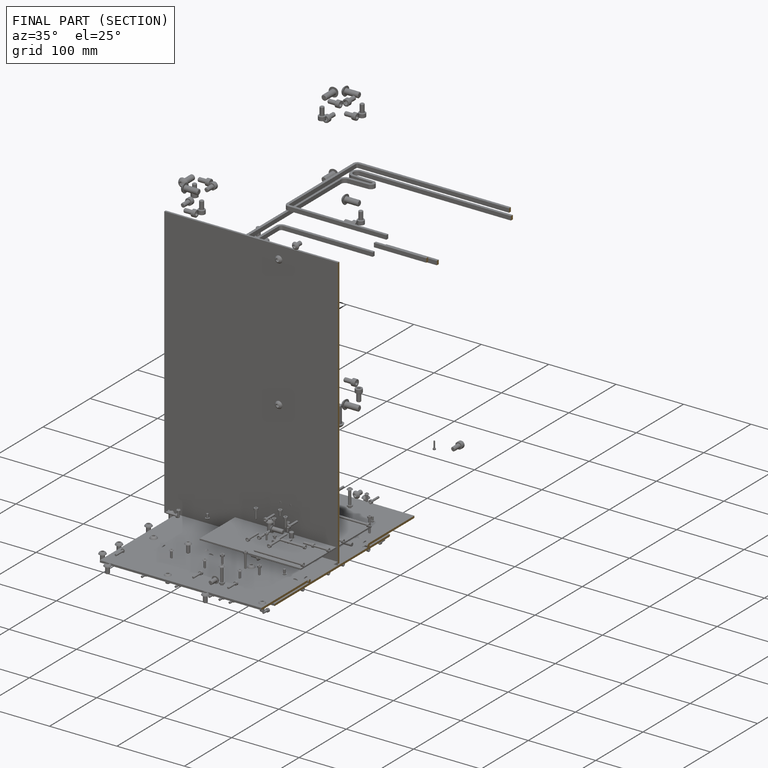
[diagram: finished part — half-section view (interior)]
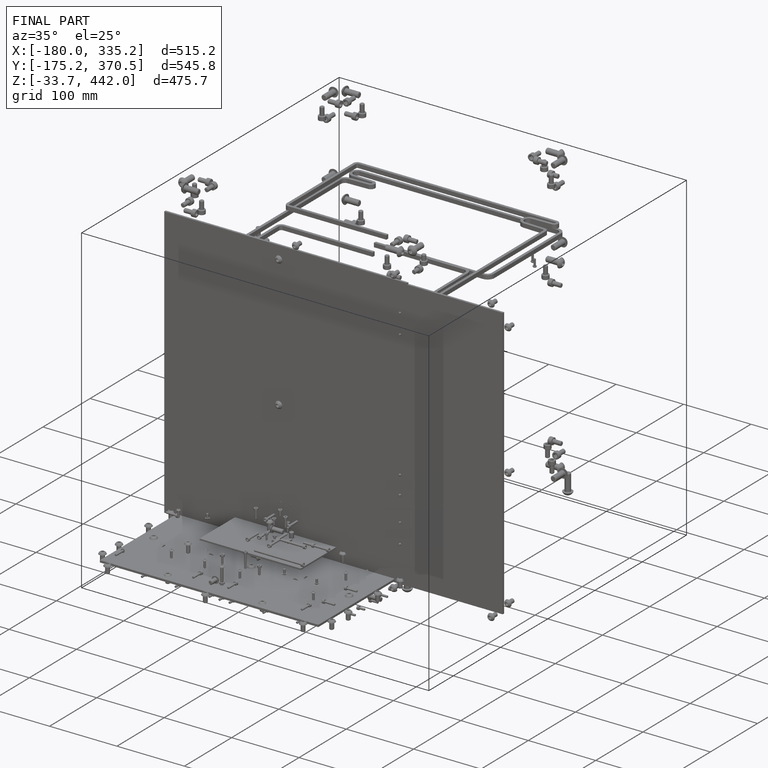
[diagram: finished part — iso view with bounding-box wireframe]
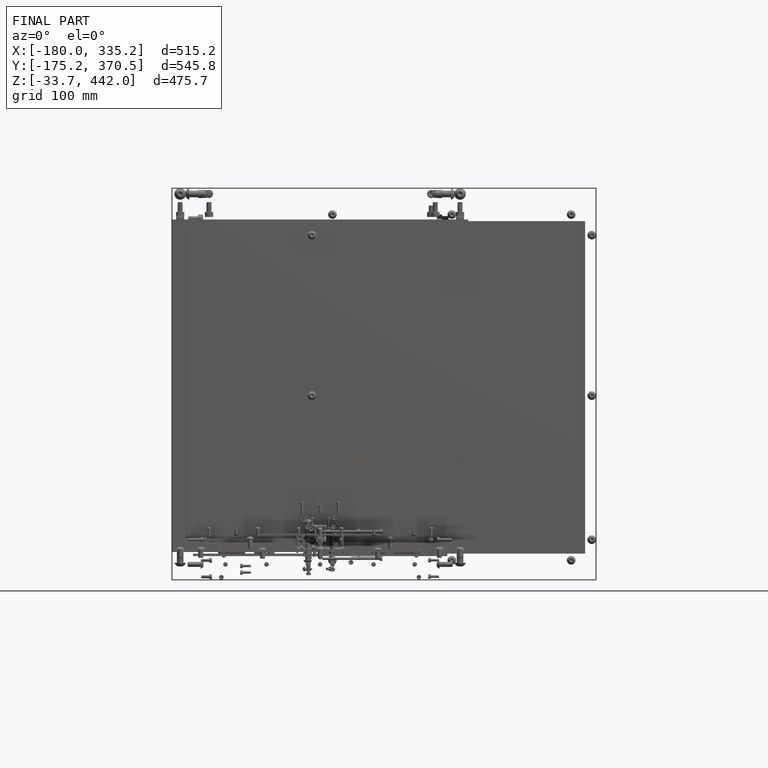
[diagram: finished part — front view with bounding-box wireframe]
